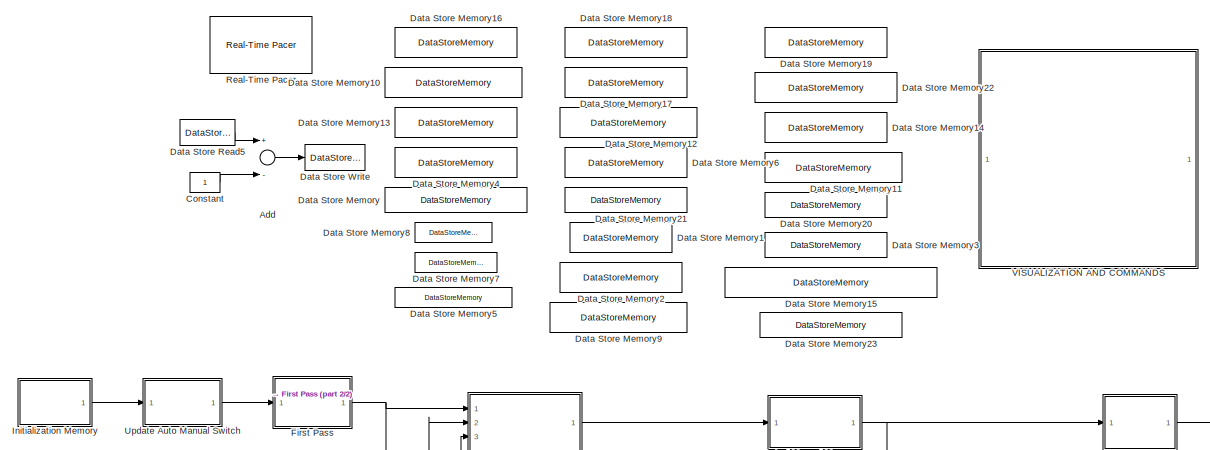
[diagram: root canvas - part 1/2, full width, top band]
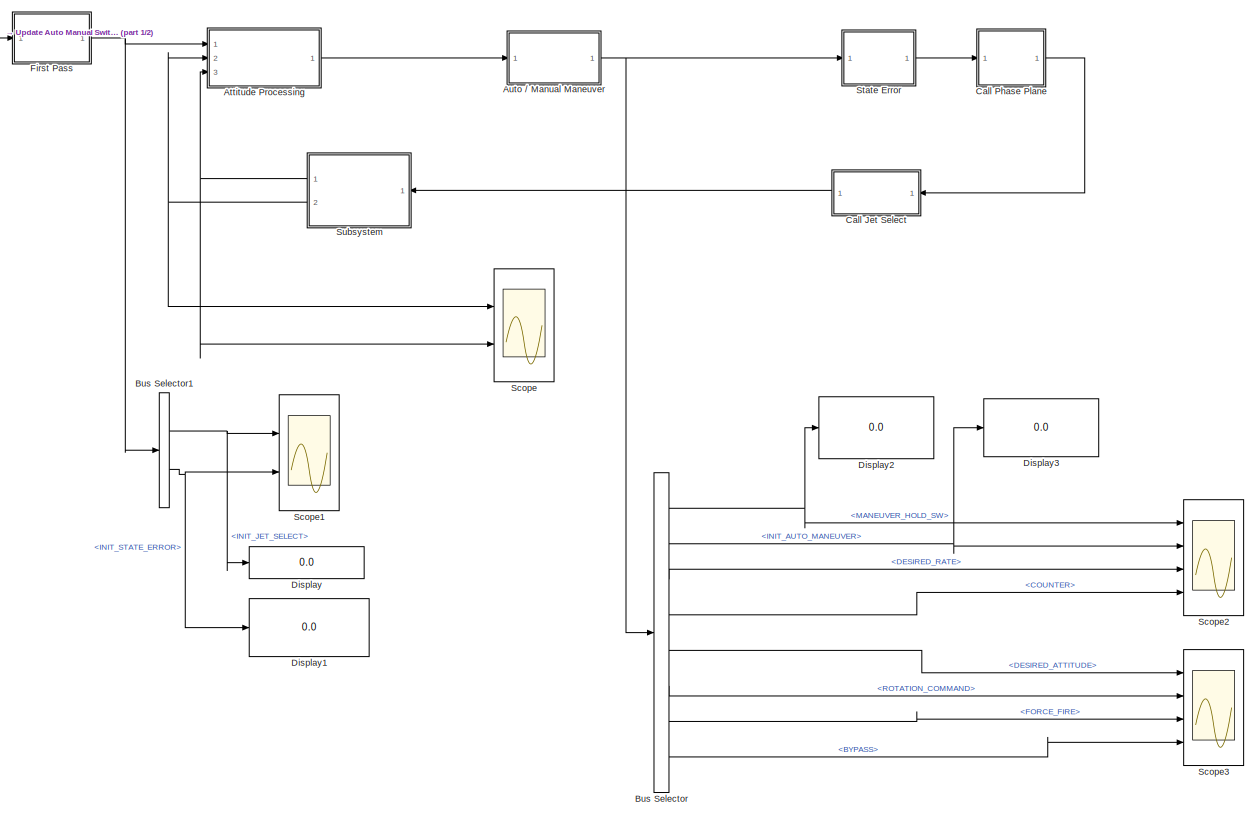
[diagram: root canvas - part 2/2, full width, middle band]
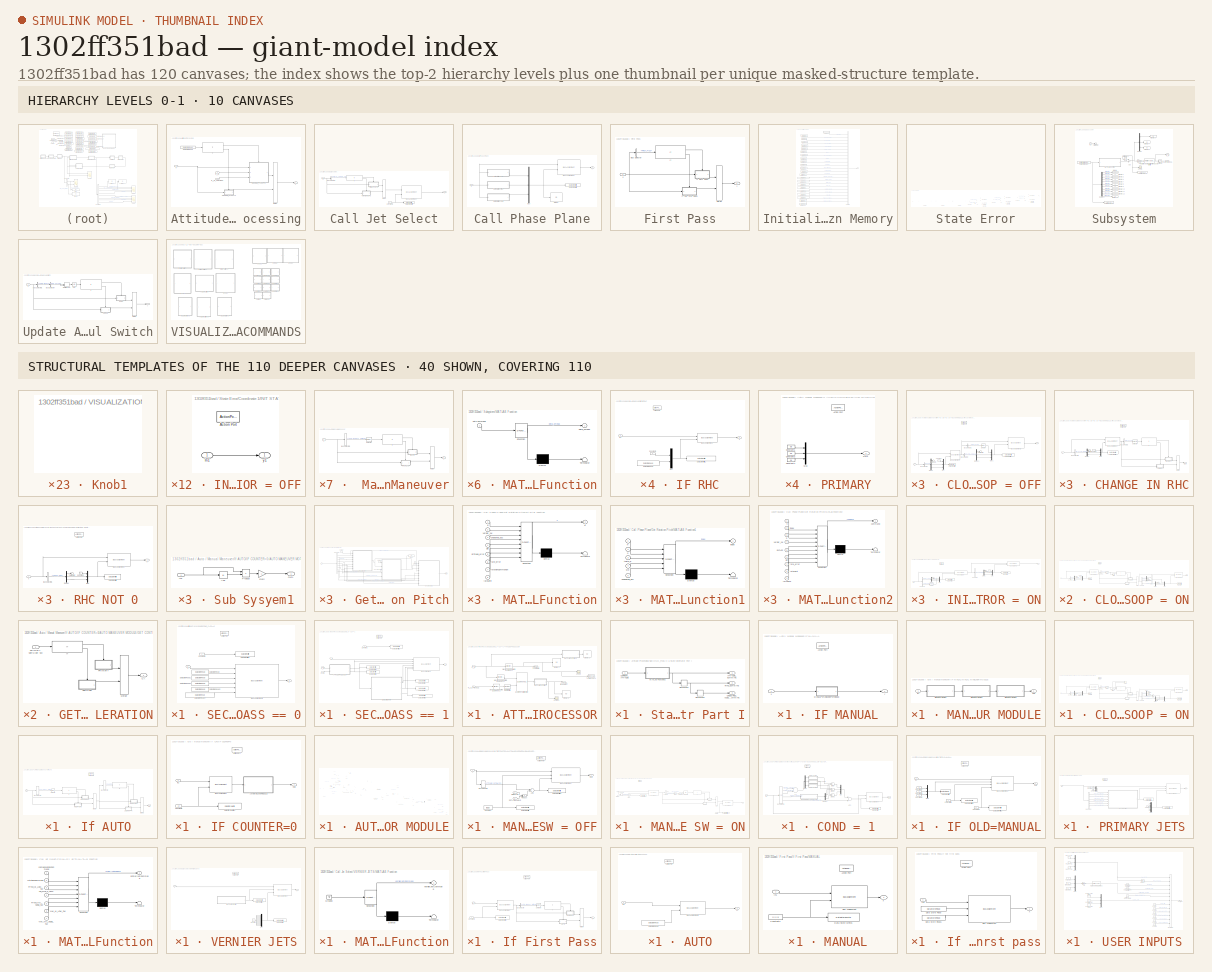
[diagram: thumbnail index - top-2 hierarchy levels (10 canvases) + 40 structural-template representatives of the remaining 110 canvases]
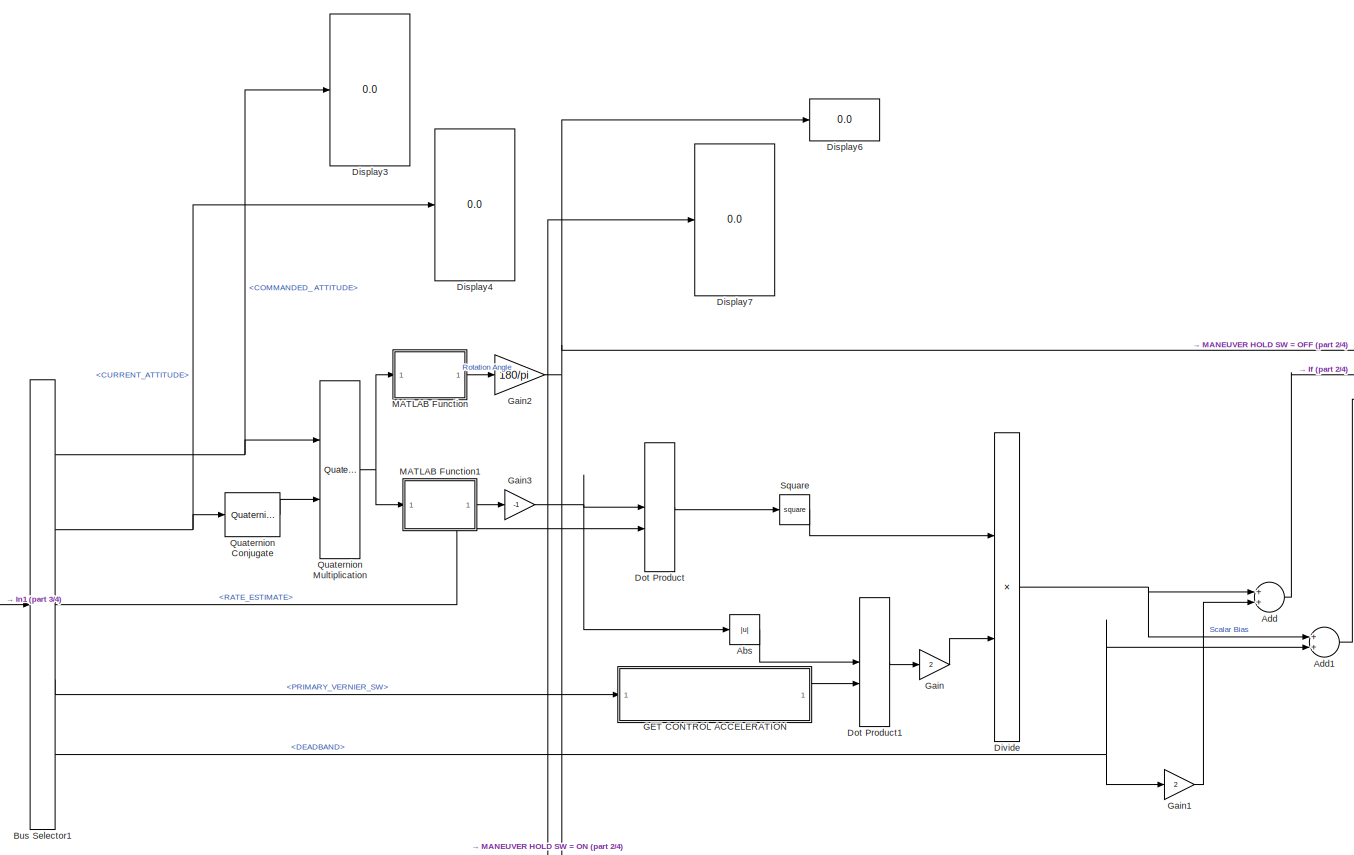
[diagram: Auto / Manual Maneuver/If AUTO/IF COUNTER=0/AUTO MANEUVER MODULE - part 1/4, top left region]
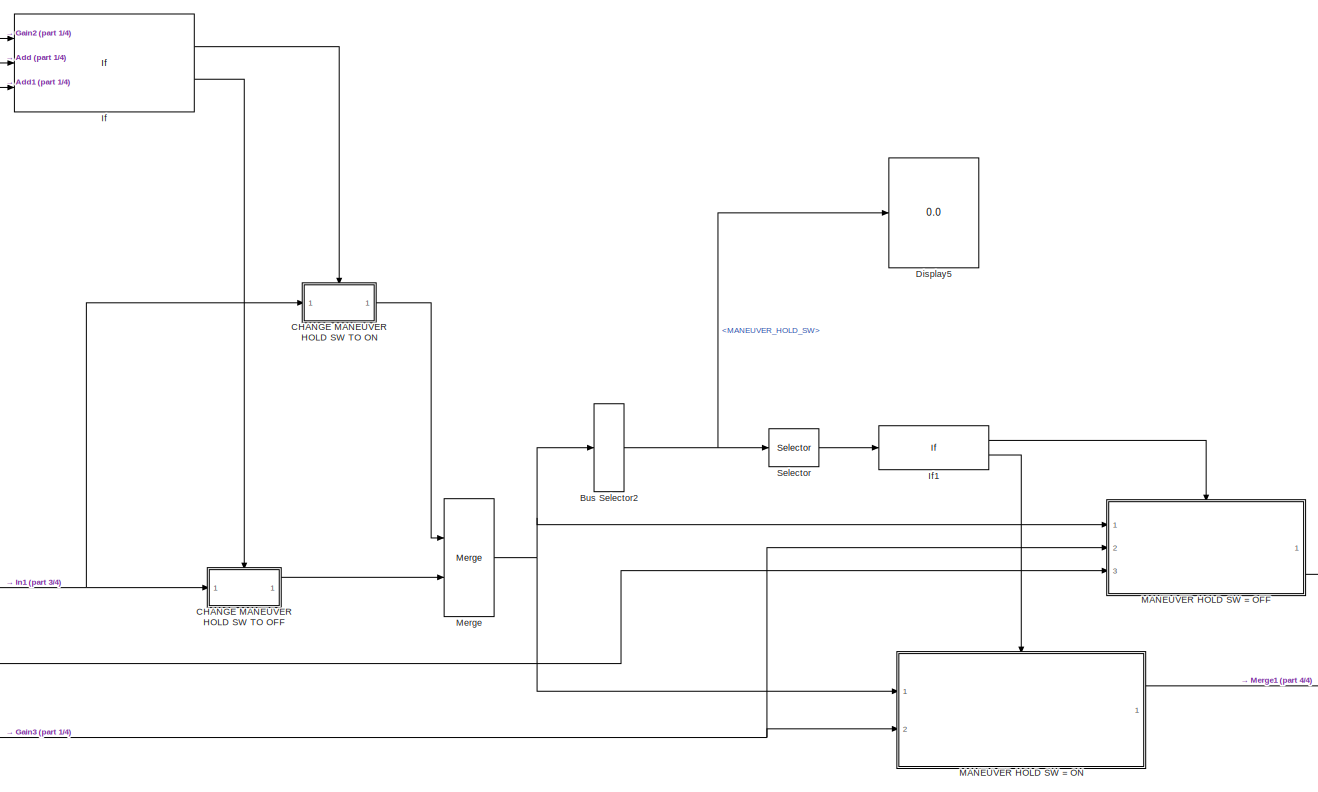
[diagram: Auto / Manual Maneuver/If AUTO/IF COUNTER=0/AUTO MANEUVER MODULE - part 2/4, central region]
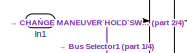
[diagram: Auto / Manual Maneuver/If AUTO/IF COUNTER=0/AUTO MANEUVER MODULE - part 3/4, middle left region]
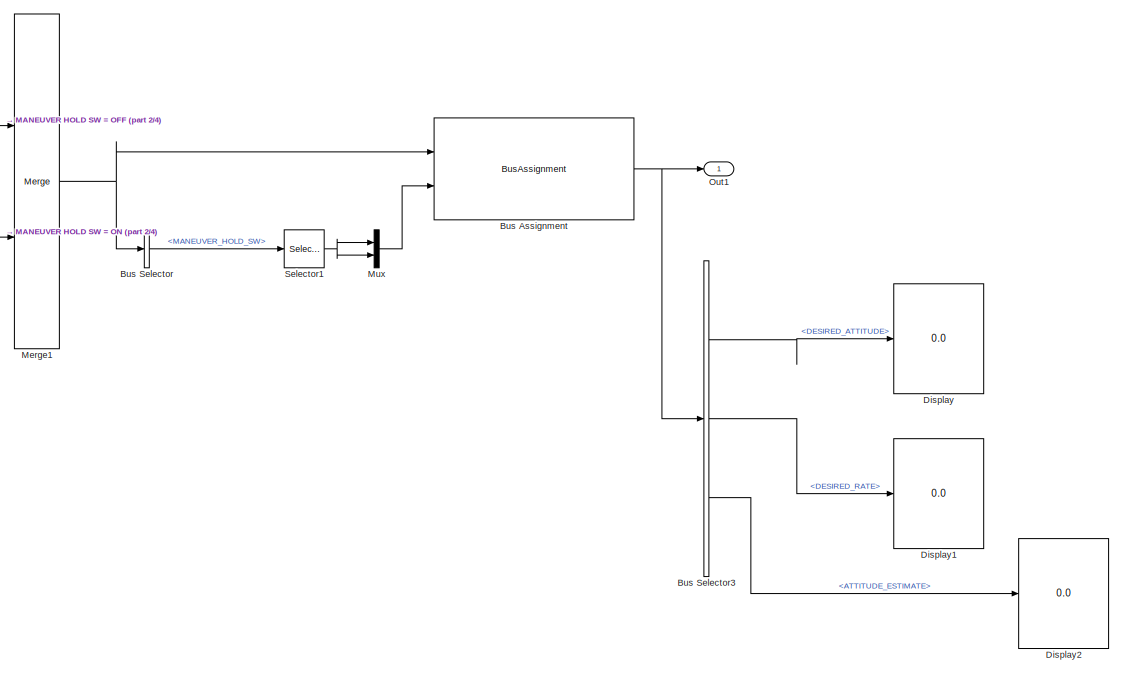
[diagram: Auto / Manual Maneuver/If AUTO/IF COUNTER=0/AUTO MANEUVER MODULE - part 4/4, bottom right region]
MODEL slx_1302ff351bad
KIND model
CONFIG AbsTol = auto
CONFIG EnableMultiTasking = off
CONFIG FixedStep = 0.08
CONFIG MaxStep = auto
CONFIG MinStep = auto
CONFIG RelTol = 1e-3
CONFIG SampleTimeConstraint = Unconstrained
CONFIG Solver = FixedStepAuto
CONFIG SolverName = FixedStepAuto
CONFIG StartTime = 0.0
CONFIG StopTime = 300
BLOCK [Sum] Add
  InputSameDT = off
  Inputs = +-
  OutDataTypeStr = Inherit: Inherit via internal rule
  Ports = [2, 1]
  SaturateOnIntegerOverflow = off
BLOCK [SubSystem] Attitude Processing
  Ports = [3, 1]
  Priority = 2
  RequestExecContextInheritance = off
  Variant = off
BLOCK [DataStoreRead] Attitude Processing/Data Store Read
  DataStoreName = SECOND_PASS
  Ports = [0, 1]
BLOCK [If] Attitude Processing/If
  IfExpression = u1 == 1
  Ports = [1, 2]
BLOCK [Merge] Attitude Processing/Merge
  Ports = [2, 1]
BLOCK [Inport] Attitude Processing/R_I_B
  IconDisplay = Port number
  Port = 3
BLOCK [Inport] Attitude Processing/R_I_B_PREVIOUS
  IconDisplay = Port number
  Port = 2
BLOCK [SubSystem] Attitude Processing/SECOND_PASS == 0
  Ports = [1, 1, 0, 0, 0, 0, 0, 1]
  RequestExecContextInheritance = off
  TreatAsAtomicUnit = on
  Variant = off
BLOCK [ActionPort] Attitude Processing/SECOND_PASS == 0/Action Port
  ActionType = else
BLOCK [BusAssignment] Attitude Processing/SECOND_PASS == 0/Bus Assignment1
  AssignedSignals = ATTITUDE_INCREMENT,CURRENT_ATTITUDE,ATTITUDE_ESTIMATE,RATE_ESTIMATE,UNDESIRED_ACCELERATION_ESTIMATE
  Ports = [6, 1]
BLOCK [Constant] Attitude Processing/SECOND_PASS == 0/Constant2
BLOCK [DataStoreRead] Attitude Processing/SECOND_PASS == 0/Data Store Read
  DataStoreName = ATTITUDE_INCREMENT
  Ports = [0, 1]
BLOCK [DataStoreRead] Attitude Processing/SECOND_PASS == 0/Data Store Read1
  DataStoreName = CURRENT_ATTITUDE
  Ports = [0, 1]
BLOCK [DataStoreRead] Attitude Processing/SECOND_PASS == 0/Data Store Read2
  DataStoreName = RATE_ESTIMATE
  Ports = [0, 1]
BLOCK [DataStoreRead] Attitude Processing/SECOND_PASS == 0/Data Store Read3
  DataStoreName = ATTITUDE_ESTIMATE
  Ports = [0, 1]
BLOCK [DataStoreRead] Attitude Processing/SECOND_PASS == 0/Data Store Read4
  DataStoreName = UNDESIRED_ACCELERATION_ESTIMATE
  Ports = [0, 1]
BLOCK [DataStoreWrite] Attitude Processing/SECOND_PASS == 0/Data Store Write1
  DataStoreName = SECOND_PASS
  Ports = [1]
BLOCK [Inport] Attitude Processing/SECOND_PASS == 0/x
  IconDisplay = Port number
BLOCK [Outport] Attitude Processing/SECOND_PASS == 0/y
  IconDisplay = Port number
BLOCK [SubSystem] Attitude Processing/SECOND_PASS == 1
  Ports = [3, 1, 0, 0, 0, 0, 0, 1]
  RequestExecContextInheritance = off
  TreatAsAtomicUnit = on
  Variant = off
BLOCK [SubSystem] Attitude Processing/SECOND_PASS == 1/ATTITUDE PROCESSOR
  Ports = [2, 2]
  RequestExecContextInheritance = off
  Variant = off
BLOCK [Outport] Attitude Processing/SECOND_PASS == 1/ATTITUDE PROCESSOR/ATTITUDE INCREMENT
  IconDisplay = Port number
  Port = 2
BLOCK [Outport] Attitude Processing/SECOND_PASS == 1/ATTITUDE PROCESSOR/CURRENT ATTITUDE
  IconDisplay = Port number
BLOCK [Reference] Attitude Processing/SECOND_PASS == 1/ATTITUDE PROCESSOR/Direction Cosine Matrix to Quaternions  REF=sharedtransform/Direction Cosine Matrix 
to Quaternions
  Ports = [1, 1]
  SourceBlock = sharedtransform/Direction Cosine Matrix \nto Quaternions
  SourceProductBaseCode = AE
  SourceProductName = Aerospace Blockset
  SourceType = DCM2Quaternion
BLOCK [Reference] Attitude Processing/SECOND_PASS == 1/ATTITUDE PROCESSOR/Direction Cosine Matrix to Quaternions1  REF=sharedtransform/Direction Cosine Matrix 
to Quaternions
  Ports = [1, 1]
  SourceBlock = sharedtransform/Direction Cosine Matrix \nto Quaternions
  SourceProductBaseCode = AE
  SourceProductName = Aerospace Blockset
  SourceType = DCM2Quaternion
BLOCK [Reference] Attitude Processing/SECOND_PASS == 1/ATTITUDE PROCESSOR/Direction Cosine Matrix to Quaternions2  REF=sharedtransform/Direction Cosine Matrix 
to Quaternions
  Ports = [1, 1]
  SourceBlock = sharedtransform/Direction Cosine Matrix \nto Quaternions
  SourceProductBaseCode = AE
  SourceProductName = Aerospace Blockset
  SourceType = DCM2Quaternion
BLOCK [Display] Attitude Processing/SECOND_PASS == 1/ATTITUDE PROCESSOR/Display1
  Decimation = 1
  Ports = [1]
BLOCK [Display] Attitude Processing/SECOND_PASS == 1/ATTITUDE PROCESSOR/Display2
  Decimation = 1
  Ports = [1]
BLOCK [Display] Attitude Processing/SECOND_PASS == 1/ATTITUDE PROCESSOR/Display3
  Decimation = 1
  Ports = [1]
BLOCK [SubSystem] Attitude Processing/SECOND_PASS == 1/ATTITUDE PROCESSOR/MATLAB Function2
  ErrorFcn = Stateflow.Translate.translate
  PermitHierarchicalResolution = ExplicitOnly
  Ports = [1, 1]
  RequestExecContextInheritance = off
  SFBlockType = MATLAB Function
  TreatAsAtomicUnit = on
  Variant = off
BLOCK [Demux] Attitude Processing/SECOND_PASS == 1/ATTITUDE PROCESSOR/MATLAB Function2/ Demux 
  Outputs = 1
  Ports = [1, 1]
BLOCK [S-Function] Attitude Processing/SECOND_PASS == 1/ATTITUDE PROCESSOR/MATLAB Function2/ SFunction 
  EnableBusSupport = on
  FunctionName = sf_sfun
  PortCounts = [1 2]
  Ports = [1, 2]
  SFcnIsStateOwnerBlock = off
  SFunctionDeploymentMode = off
  Tag = Stateflow S-Function spaceShuttleOriginal 7
BLOCK [Terminator] Attitude Processing/SECOND_PASS == 1/ATTITUDE PROCESSOR/MATLAB Function2/ Terminator 
BLOCK [Inport] Attitude Processing/SECOND_PASS == 1/ATTITUDE PROCESSOR/MATLAB Function2/u
  IconDisplay = Port number
BLOCK [Outport] Attitude Processing/SECOND_PASS == 1/ATTITUDE PROCESSOR/MATLAB Function2/x
  IconDisplay = Port number
BLOCK [SubSystem] Attitude Processing/SECOND_PASS == 1/ATTITUDE PROCESSOR/MATLAB Function3
  ErrorFcn = Stateflow.Translate.translate
  PermitHierarchicalResolution = ExplicitOnly
  Ports = [1, 1]
  RequestExecContextInheritance = off
  SFBlockType = MATLAB Function
  TreatAsAtomicUnit = on
  Variant = off
BLOCK [Demux] Attitude Processing/SECOND_PASS == 1/ATTITUDE PROCESSOR/MATLAB Function3/ Demux 
  Outputs = 1
  Ports = [1, 1]
BLOCK [S-Function] Attitude Processing/SECOND_PASS == 1/ATTITUDE PROCESSOR/MATLAB Function3/ SFunction 
  EnableBusSupport = on
  FunctionName = sf_sfun
  PortCounts = [1 2]
  Ports = [1, 2]
  SFcnIsStateOwnerBlock = off
  SFunctionDeploymentMode = off
  Tag = Stateflow S-Function spaceShuttleOriginal 8
BLOCK [Terminator] Attitude Processing/SECOND_PASS == 1/ATTITUDE PROCESSOR/MATLAB Function3/ Terminator 
BLOCK [Inport] Attitude Processing/SECOND_PASS == 1/ATTITUDE PROCESSOR/MATLAB Function3/u
  IconDisplay = Port number
BLOCK [Outport] Attitude Processing/SECOND_PASS == 1/ATTITUDE PROCESSOR/MATLAB Function3/x
  IconDisplay = Port number
BLOCK [Reference] Attitude Processing/SECOND_PASS == 1/ATTITUDE PROCESSOR/Quaternion Conjugate  REF=aerolibutil/Quaternion
Conjugate
  Ports = [1, 1]
  SourceBlock = aerolibutil/Quaternion\nConjugate
  SourceProductBaseCode = AE
  SourceProductName = Aerospace Blockset
  SourceType = Quaternion Conjugate
BLOCK [Reference] Attitude Processing/SECOND_PASS == 1/ATTITUDE PROCESSOR/Quaternion Multiplication  REF=aerolibutil/Quaternion
Multiplication
  Ports = [2, 1]
  SourceBlock = aerolibutil/Quaternion\nMultiplication
  SourceProductBaseCode = AE
  SourceProductName = Aerospace Blockset
  SourceType = Quaternion Multiplication
BLOCK [Inport] Attitude Processing/SECOND_PASS == 1/ATTITUDE PROCESSOR/R_I_B
  IconDisplay = Port number
BLOCK [Inport] Attitude Processing/SECOND_PASS == 1/ATTITUDE PROCESSOR/R_I_B_PREVIOUS
  IconDisplay = Port number
  Port = 2
BLOCK [Scope] Attitude Processing/SECOND_PASS == 1/ATTITUDE PROCESSOR/Scope
  NumInputPorts = 1
  Ports = [1]
  ScopeSpecificationString = Simulink.scopes.TimeScopeBlockCfg('CurrentConfiguration', extmgr.ConfigurationSet(extmgr.Configuration('Core','General UI',true),extmgr.Configuration('Core','Source UI',true),extmgr.Configuration('Sources','WiredSimulink',true,'DataLoggingVariableName','ScopeData1'),extmgr.Configuration('Visuals','Time Domain',true,'SerializedDisplays',{struct('MinYLimReal','-0.12545','MaxYLimReal','1.12399','YLab...<+1587ch>
BLOCK [Scope] Attitude Processing/SECOND_PASS == 1/ATTITUDE PROCESSOR/Scope1
  NumInputPorts = 1
  Ports = [1]
  ScopeSpecificationString = Simulink.scopes.TimeScopeBlockCfg('CurrentConfiguration', extmgr.ConfigurationSet(extmgr.Configuration('Core','General UI',true),extmgr.Configuration('Core','Source UI',true),extmgr.Configuration('Sources','WiredSimulink',true,'DataLoggingVariableName','ScopeData3'),extmgr.Configuration('Visuals','Time Domain',true,'SerializedDisplays',{struct('MinYLimReal','-0.00203','MaxYLimReal','0.00203','YLab...<+1473ch>
BLOCK [ToWorkspace] Attitude Processing/SECOND_PASS == 1/ATTITUDE PROCESSOR/To Workspace
  FixptAsFi = on
  MaxDataPoints = inf
  Ports = [1]
  SampleTime = -1
  Save2DSignal = 3-D array (concatenate along third dimension)
  SaveFormat = Timeseries
  VariableName = test1
BLOCK [ActionPort] Attitude Processing/SECOND_PASS == 1/Action Port
  ActionType = then
BLOCK [BusAssignment] Attitude Processing/SECOND_PASS == 1/Bus Assignment
  AssignedSignals = ATTITUDE_INCREMENT,CURRENT_ATTITUDE,ATTITUDE_ESTIMATE,RATE_ESTIMATE,UNDESIRED_ACCELERATION_ESTIMATE
  Ports = [6, 1]
BLOCK [Constant] Attitude Processing/SECOND_PASS == 1/Constant2
  Value = 0
BLOCK [DataStoreWrite] Attitude Processing/SECOND_PASS == 1/Data Store Write1
  DataStoreName = SECOND_PASS
  Ports = [1]
BLOCK [DataStoreWrite] Attitude Processing/SECOND_PASS == 1/Data Store Write2
  DataStoreName = CURRENT_ATTITUDE
  Ports = [1]
BLOCK [DataStoreWrite] Attitude Processing/SECOND_PASS == 1/Data Store Write3
  DataStoreName = ATTITUDE_INCREMENT
  Ports = [1]
BLOCK [DataStoreWrite] Attitude Processing/SECOND_PASS == 1/Data Store Write4
  DataStoreName = ATTITUDE_ESTIMATE
  Ports = [1]
BLOCK [DataStoreWrite] Attitude Processing/SECOND_PASS == 1/Data Store Write5
  DataStoreName = RATE_ESTIMATE
  Ports = [1]
BLOCK [DataStoreWrite] Attitude Processing/SECOND_PASS == 1/Data Store Write6
  DataStoreName = UNDESIRED_ACCELERATION_ESTIMATE
  Ports = [1]
BLOCK [Inport] Attitude Processing/SECOND_PASS == 1/R_I_B
  IconDisplay = Port number
  Port = 2
BLOCK [Inport] Attitude Processing/SECOND_PASS == 1/R_I_B1
  IconDisplay = Port number
  Port = 3
BLOCK [SubSystem] Attitude Processing/SECOND_PASS == 1/State Estimator Part I
  Ports = [1, 3]
  RequestExecContextInheritance = off
  Variant = off
BLOCK [Outport] Attitude Processing/SECOND_PASS == 1/State Estimator Part I/ATTITUDE_ESTIMATE
  IconDisplay = Port number
BLOCK [Inport] Attitude Processing/SECOND_PASS == 1/State Estimator Part I/CURRENT_ATTITUDE
  IconDisplay = Port number
BLOCK [Derivative] Attitude Processing/SECOND_PASS == 1/State Estimator Part I/Derivative1
BLOCK [Derivative] Attitude Processing/SECOND_PASS == 1/State Estimator Part I/Derivative2
BLOCK [SubSystem] Attitude Processing/SECOND_PASS == 1/State Estimator Part I/MATLAB Function2
  ErrorFcn = Stateflow.Translate.translate
  PermitHierarchicalResolution = ExplicitOnly
  Ports = [1, 1]
  RequestExecContextInheritance = off
  SFBlockType = MATLAB Function
  TreatAsAtomicUnit = on
  Variant = off
BLOCK [Demux] Attitude Processing/SECOND_PASS == 1/State Estimator Part I/MATLAB Function2/ Demux 
  Outputs = 1
  Ports = [1, 1]
BLOCK [S-Function] Attitude Processing/SECOND_PASS == 1/State Estimator Part I/MATLAB Function2/ SFunction 
  EnableBusSupport = on
  FunctionName = sf_sfun
  PortCounts = [1 2]
  Ports = [1, 2]
  SFcnIsStateOwnerBlock = off
  SFunctionDeploymentMode = off
  Tag = Stateflow S-Function spaceShuttleOriginal 17
BLOCK [Terminator] Attitude Processing/SECOND_PASS == 1/State Estimator Part I/MATLAB Function2/ Terminator 
BLOCK [Inport] Attitude Processing/SECOND_PASS == 1/State Estimator Part I/MATLAB Function2/u
  IconDisplay = Port number
BLOCK [Outport] Attitude Processing/SECOND_PASS == 1/State Estimator Part I/MATLAB Function2/x
  IconDisplay = Port number
BLOCK [Outport] Attitude Processing/SECOND_PASS == 1/State Estimator Part I/RATE_ESTIMATE
  IconDisplay = Port number
  Port = 2
BLOCK [Outport] Attitude Processing/SECOND_PASS == 1/State Estimator Part I/UNDESIRED_ACCELERATION_ESTIMATE
  IconDisplay = Port number
  Port = 3
BLOCK [Inport] Attitude Processing/SECOND_PASS == 1/x
  IconDisplay = Port number
BLOCK [Outport] Attitude Processing/SECOND_PASS == 1/y
  IconDisplay = Port number
BLOCK [Inport] Attitude Processing/x
  IconDisplay = Port number
BLOCK [Outport] Attitude Processing/y
  IconDisplay = Port number
BLOCK [SubSystem] Auto // Manual Maneuver
  Ports = [1, 1]
  Priority = 2
  RequestExecContextInheritance = off
  Variant = off
BLOCK [BusSelector] Auto // Manual Maneuver/Bus Selector1
  OutputAsBus = off
  OutputSignals = AUTO_MANUAL_SWITCH
  Ports = [1, 1]
BLOCK [SubSystem] Auto // Manual Maneuver/IF MANUAL
  Ports = [1, 1, 0, 0, 0, 0, 0, 1]
  RequestExecContextInheritance = off
  TreatAsAtomicUnit = on
  Variant = off
BLOCK [ActionPort] Auto // Manual Maneuver/IF MANUAL/Action Port
  ActionType = else
BLOCK [SubSystem] Auto // Manual Maneuver/IF MANUAL/MANUAL MANEUVER MODULE
  Ports = [1, 1]
  RequestExecContextInheritance = off
  Variant = off
BLOCK [SubSystem] Auto // Manual Maneuver/IF MANUAL/MANUAL MANEUVER MODULE/Affect Coordinate 1
  Ports = [1, 1]
  RequestExecContextInheritance = off
  Variant = off
BLOCK [BusSelector] Auto // Manual Maneuver/IF MANUAL/MANUAL MANEUVER MODULE/Affect Coordinate 1/Bus Selector
  OutputAsBus = off
  OutputSignals = USER_INPUTS.CLOSED_LOOP
  Ports = [1, 1]
BLOCK [SubSystem] Auto // Manual Maneuver/IF MANUAL/MANUAL MANEUVER MODULE/Affect Coordinate 1/CLOSED LOOP = OFF
  Ports = [1, 1, 0, 0, 0, 0, 0, 1]
  RequestExecContextInheritance = off
  TreatAsAtomicUnit = on
  Variant = off
BLOCK [ActionPort] Auto // Manual Maneuver/IF MANUAL/MANUAL MANEUVER MODULE/Affect Coordinate 1/CLOSED LOOP = OFF/Action Port
  ActionType = else
BLOCK [BusAssignment] Auto // Manual Maneuver/IF MANUAL/MANUAL MANEUVER MODULE/Affect Coordinate 1/CLOSED LOOP = OFF/Bus Assignment
  AssignedSignals = BYPASS
  Ports = [2, 1]
BLOCK [BusAssignment] Auto // Manual Maneuver/IF MANUAL/MANUAL MANEUVER MODULE/Affect Coordinate 1/CLOSED LOOP = OFF/Bus Assignment1
  AssignedSignals = ROTATION_COMMAND
  Ports = [2, 1]
BLOCK [BusSelector] Auto // Manual Maneuver/IF MANUAL/MANUAL MANEUVER MODULE/Affect Coordinate 1/CLOSED LOOP = OFF/Bus Selector
  OutputAsBus = off
  OutputSignals = BYPASS
  Ports = [1, 1]
BLOCK [BusSelector] Auto // Manual Maneuver/IF MANUAL/MANUAL MANEUVER MODULE/Affect Coordinate 1/CLOSED LOOP = OFF/Bus Selector1
  OutputAsBus = off
  OutputSignals = USER_INPUTS.RHC_STATE
  Ports = [1, 1]
BLOCK [BusSelector] Auto // Manual Maneuver/IF MANUAL/MANUAL MANEUVER MODULE/Affect Coordinate 1/CLOSED LOOP = OFF/Bus Selector2
  OutputAsBus = off
  OutputSignals = ROTATION_COMMAND
  Ports = [1, 1]
BLOCK [Constant] Auto // Manual Maneuver/IF MANUAL/MANUAL MANEUVER MODULE/Affect Coordinate 1/CLOSED LOOP = OFF/Constant
BLOCK [DataStoreWrite] Auto // Manual Maneuver/IF MANUAL/MANUAL MANEUVER MODULE/Affect Coordinate 1/CLOSED LOOP = OFF/Data Store Write
  DataStoreName = BYPASS
  Ports = [1]
BLOCK [DataStoreWrite] Auto // Manual Maneuver/IF MANUAL/MANUAL MANEUVER MODULE/Affect Coordinate 1/CLOSED LOOP = OFF/Data Store Write1
  DataStoreName = ROTATION_COMMAND
  Ports = [1]
BLOCK [Demux] Auto // Manual Maneuver/IF MANUAL/MANUAL MANEUVER MODULE/Affect Coordinate 1/CLOSED LOOP = OFF/Demux
  DisplayOption = bar
  Outputs = 3
  Ports = [1, 3]
BLOCK [Demux] Auto // Manual Maneuver/IF MANUAL/MANUAL MANEUVER MODULE/Affect Coordinate 1/CLOSED LOOP = OFF/Demux1
  DisplayOption = bar
  Outputs = 3
  Ports = [1, 3]
BLOCK [Mux] Auto // Manual Maneuver/IF MANUAL/MANUAL MANEUVER MODULE/Affect Coordinate 1/CLOSED LOOP = OFF/Mux
  DisplayOption = bar
  Inputs = 3
  Ports = [3, 1]
BLOCK [Mux] Auto // Manual Maneuver/IF MANUAL/MANUAL MANEUVER MODULE/Affect Coordinate 1/CLOSED LOOP = OFF/Mux1
  DisplayOption = bar
  Inputs = 3
  Ports = [3, 1]
BLOCK [Selector] Auto // Manual Maneuver/IF MANUAL/MANUAL MANEUVER MODULE/Affect Coordinate 1/CLOSED LOOP = OFF/Selector
  IndexOptions = Index vector (dialog)
  Indices = [1]
  InputPortWidth = 3
  OutputSizes = 1
  Ports = [1, 1]
BLOCK [Terminator] Auto // Manual Maneuver/IF MANUAL/MANUAL MANEUVER MODULE/Affect Coordinate 1/CLOSED LOOP = OFF/Terminator
BLOCK [Terminator] Auto // Manual Maneuver/IF MANUAL/MANUAL MANEUVER MODULE/Affect Coordinate 1/CLOSED LOOP = OFF/Terminator1
BLOCK [Inport] Auto // Manual Maneuver/IF MANUAL/MANUAL MANEUVER MODULE/Affect Coordinate 1/CLOSED LOOP = OFF/x
  IconDisplay = Port number
BLOCK [Outport] Auto // Manual Maneuver/IF MANUAL/MANUAL MANEUVER MODULE/Affect Coordinate 1/CLOSED LOOP = OFF/y
  IconDisplay = Port number
BLOCK [SubSystem] Auto // Manual Maneuver/IF MANUAL/MANUAL MANEUVER MODULE/Affect Coordinate 1/CLOSED LOOP = ON
  Ports = [1, 1, 0, 0, 0, 0, 0, 1]
  RequestExecContextInheritance = off
  TreatAsAtomicUnit = on
  Variant = off
BLOCK [ActionPort] Auto // Manual Maneuver/IF MANUAL/MANUAL MANEUVER MODULE/Affect Coordinate 1/CLOSED LOOP = ON/Action Port
  ActionType = then
BLOCK [BusAssignment] Auto // Manual Maneuver/IF MANUAL/MANUAL MANEUVER MODULE/Affect Coordinate 1/CLOSED LOOP = ON/Bus Assignment
  AssignedSignals = BYPASS
  Ports = [2, 1]
BLOCK [BusAssignment] Auto // Manual Maneuver/IF MANUAL/MANUAL MANEUVER MODULE/Affect Coordinate 1/CLOSED LOOP = ON/Bus Assignment2
  AssignedSignals = FORCE_FIRE
  Ports = [2, 1]
BLOCK [BusSelector] Auto // Manual Maneuver/IF MANUAL/MANUAL MANEUVER MODULE/Affect Coordinate 1/CLOSED LOOP = ON/Bus Selector1
  OutputAsBus = off
  OutputSignals = BYPASS
  Ports = [1, 1]
BLOCK [BusSelector] Auto // Manual Maneuver/IF MANUAL/MANUAL MANEUVER MODULE/Affect Coordinate 1/CLOSED LOOP = ON/Bus Selector2
  OutputAsBus = off
  OutputSignals = USER_INPUTS.RHC_STATE
  Ports = [1, 1]
BLOCK [BusSelector] Auto // Manual Maneuver/IF MANUAL/MANUAL MANEUVER MODULE/Affect Coordinate 1/CLOSED LOOP = ON/Bus Selector3
  OutputAsBus = off
  OutputSignals = USER_INPUTS.RHC_STATE,USER_INPUTS.MANEUVER_RATE,DESIRED_RATE
  Ports = [1, 3]
BLOCK [SubSystem] Auto // Manual Maneuver/IF MANUAL/MANUAL MANEUVER MODULE/Affect Coordinate 1/CLOSED LOOP = ON/CHANGE IN RHC
  Ports = [1, 1, 0, 0, 0, 0, 0, 1]
  RequestExecContextInheritance = off
  TreatAsAtomicUnit = on
  Variant = off
BLOCK [ActionPort] Auto // Manual Maneuver/IF MANUAL/MANUAL MANEUVER MODULE/Affect Coordinate 1/CLOSED LOOP = ON/CHANGE IN RHC/Action Port
  ActionType = then
BLOCK [BusAssignment] Auto // Manual Maneuver/IF MANUAL/MANUAL MANEUVER MODULE/Affect Coordinate 1/CLOSED LOOP = ON/CHANGE IN RHC/Bus Assignment
  AssignedSignals = BYPASS
  Ports = [2, 1]
BLOCK [BusSelector] Auto // Manual Maneuver/IF MANUAL/MANUAL MANEUVER MODULE/Affect Coordinate 1/CLOSED LOOP = ON/CHANGE IN RHC/Bus Selector1
  OutputAsBus = off
  OutputSignals = INIT_STATE_ERROR
  Ports = [1, 1]
BLOCK [BusSelector] Auto // Manual Maneuver/IF MANUAL/MANUAL MANEUVER MODULE/Affect Coordinate 1/CLOSED LOOP = ON/CHANGE IN RHC/Bus Selector2
  OutputAsBus = off
  OutputSignals = USER_INPUTS.RHC_STATE
  Ports = [1, 1]
BLOCK [Constant] Auto // Manual Maneuver/IF MANUAL/MANUAL MANEUVER MODULE/Affect Coordinate 1/CLOSED LOOP = ON/CHANGE IN RHC/Constant
BLOCK [DataStoreWrite] Auto // Manual Maneuver/IF MANUAL/MANUAL MANEUVER MODULE/Affect Coordinate 1/CLOSED LOOP = ON/CHANGE IN RHC/Data Store Write
  DataStoreName = INIT_STATE_ERROR
  Ports = [1]
BLOCK [Demux] Auto // Manual Maneuver/IF MANUAL/MANUAL MANEUVER MODULE/Affect Coordinate 1/CLOSED LOOP = ON/CHANGE IN RHC/Demux
  DisplayOption = bar
  Outputs = 3
  Ports = [1, 3]
BLOCK [If] Auto // Manual Maneuver/IF MANUAL/MANUAL MANEUVER MODULE/Affect Coordinate 1/CLOSED LOOP = ON/CHANGE IN RHC/If
  IfExpression = u1 ~= 0
  Ports = [1, 2]
BLOCK [Merge] Auto // Manual Maneuver/IF MANUAL/MANUAL MANEUVER MODULE/Affect Coordinate 1/CLOSED LOOP = ON/CHANGE IN RHC/Merge
  Ports = [2, 1]
BLOCK [Mux] Auto // Manual Maneuver/IF MANUAL/MANUAL MANEUVER MODULE/Affect Coordinate 1/CLOSED LOOP = ON/CHANGE IN RHC/Mux
  DisplayOption = bar
  Inputs = 3
  Ports = [3, 1]
BLOCK [Outport] Auto // Manual Maneuver/IF MANUAL/MANUAL MANEUVER MODULE/Affect Coordinate 1/CLOSED LOOP = ON/CHANGE IN RHC/Out1
  IconDisplay = Port number
BLOCK [SubSystem] Auto // Manual Maneuver/IF MANUAL/MANUAL MANEUVER MODULE/Affect Coordinate 1/CLOSED LOOP = ON/CHANGE IN RHC/RHC 0
  Ports = [1, 1, 0, 0, 0, 0, 0, 1]
  RequestExecContextInheritance = off
  TreatAsAtomicUnit = on
  Variant = off
BLOCK [ActionPort] Auto // Manual Maneuver/IF MANUAL/MANUAL MANEUVER MODULE/Affect Coordinate 1/CLOSED LOOP = ON/CHANGE IN RHC/RHC 0/Action Port
  ActionType = else
BLOCK [Inport] Auto // Manual Maneuver/IF MANUAL/MANUAL MANEUVER MODULE/Affect Coordinate 1/CLOSED LOOP = ON/CHANGE IN RHC/RHC 0/x
  IconDisplay = Port number
BLOCK [Outport] Auto // Manual Maneuver/IF MANUAL/MANUAL MANEUVER MODULE/Affect Coordinate 1/CLOSED LOOP = ON/CHANGE IN RHC/RHC 0/y
  IconDisplay = Port number
BLOCK [SubSystem] Auto // Manual Maneuver/IF MANUAL/MANUAL MANEUVER MODULE/Affect Coordinate 1/CLOSED LOOP = ON/CHANGE IN RHC/RHC NOT 0
  Ports = [1, 1, 0, 0, 0, 0, 0, 1]
  RequestExecContextInheritance = off
  TreatAsAtomicUnit = on
  Variant = off
BLOCK [ActionPort] Auto // Manual Maneuver/IF MANUAL/MANUAL MANEUVER MODULE/Affect Coordinate 1/CLOSED LOOP = ON/CHANGE IN RHC/RHC NOT 0/Action Port
  ActionType = then
BLOCK [BusAssignment] Auto // Manual Maneuver/IF MANUAL/MANUAL MANEUVER MODULE/Affect Coordinate 1/CLOSED LOOP = ON/CHANGE IN RHC/RHC NOT 0/Bus Assignment
  AssignedSignals = FORCE_FIRE
  Ports = [2, 1]
BLOCK [BusSelector] Auto // Manual Maneuver/IF MANUAL/MANUAL MANEUVER MODULE/Affect Coordinate 1/CLOSED LOOP = ON/CHANGE IN RHC/RHC NOT 0/Bus Selector1
  OutputAsBus = off
  OutputSignals = FORCE_FIRE
  Ports = [1, 1]
BLOCK [Constant] Auto // Manual Maneuver/IF MANUAL/MANUAL MANEUVER MODULE/Affect Coordinate 1/CLOSED LOOP = ON/CHANGE IN RHC/RHC NOT 0/Constant
BLOCK [DataStoreWrite] Auto // Manual Maneuver/IF MANUAL/MANUAL MANEUVER MODULE/Affect Coordinate 1/CLOSED LOOP = ON/CHANGE IN RHC/RHC NOT 0/Data Store Write
  DataStoreName = FORCE_FIRE
  Ports = [1]
BLOCK [Demux] Auto // Manual Maneuver/IF MANUAL/MANUAL MANEUVER MODULE/Affect Coordinate 1/CLOSED LOOP = ON/CHANGE IN RHC/RHC NOT 0/Demux
  DisplayOption = bar
  Outputs = 3
  Ports = [1, 3]
BLOCK [Mux] Auto // Manual Maneuver/IF MANUAL/MANUAL MANEUVER MODULE/Affect Coordinate 1/CLOSED LOOP = ON/CHANGE IN RHC/RHC NOT 0/Mux
  DisplayOption = bar
  Inputs = 3
  Ports = [3, 1]
BLOCK [Terminator] Auto // Manual Maneuver/IF MANUAL/MANUAL MANEUVER MODULE/Affect Coordinate 1/CLOSED LOOP = ON/CHANGE IN RHC/RHC NOT 0/Terminator
BLOCK [Inport] Auto // Manual Maneuver/IF MANUAL/MANUAL MANEUVER MODULE/Affect Coordinate 1/CLOSED LOOP = ON/CHANGE IN RHC/RHC NOT 0/x
  IconDisplay = Port number
BLOCK [Outport] Auto // Manual Maneuver/IF MANUAL/MANUAL MANEUVER MODULE/Affect Coordinate 1/CLOSED LOOP = ON/CHANGE IN RHC/RHC NOT 0/y
  IconDisplay = Port number
BLOCK [Selector] Auto // Manual Maneuver/IF MANUAL/MANUAL MANEUVER MODULE/Affect Coordinate 1/CLOSED LOOP = ON/CHANGE IN RHC/Selector
  IndexOptions = Index vector (dialog)
  Indices = [1]
  InputPortWidth = 3
  OutputSizes = 1
  Ports = [1, 1]
BLOCK [Terminator] Auto // Manual Maneuver/IF MANUAL/MANUAL MANEUVER MODULE/Affect Coordinate 1/CLOSED LOOP = ON/CHANGE IN RHC/Terminator
BLOCK [Inport] Auto // Manual Maneuver/IF MANUAL/MANUAL MANEUVER MODULE/Affect Coordinate 1/CLOSED LOOP = ON/CHANGE IN RHC/x
  IconDisplay = Port number
BLOCK [Constant] Auto // Manual Maneuver/IF MANUAL/MANUAL MANEUVER MODULE/Affect Coordinate 1/CLOSED LOOP = ON/Constant
  Value = 0
BLOCK [DataStoreWrite] Auto // Manual Maneuver/IF MANUAL/MANUAL MANEUVER MODULE/Affect Coordinate 1/CLOSED LOOP = ON/Data Store Write
  DataStoreName = BYPASS
  Ports = [1]
BLOCK [DataStoreWrite] Auto // Manual Maneuver/IF MANUAL/MANUAL MANEUVER MODULE/Affect Coordinate 1/CLOSED LOOP = ON/Data Store Write1
  DataStoreName = FORCE_FIRE
  Ports = [1]
BLOCK [Demux] Auto // Manual Maneuver/IF MANUAL/MANUAL MANEUVER MODULE/Affect Coordinate 1/CLOSED LOOP = ON/Demux
  DisplayOption = bar
  Outputs = 3
  Ports = [1, 3]
BLOCK [Demux] Auto // Manual Maneuver/IF MANUAL/MANUAL MANEUVER MODULE/Affect Coordinate 1/CLOSED LOOP = ON/Demux1
  DisplayOption = bar
  Outputs = 3
  Ports = [1, 3]
BLOCK [Demux] Auto // Manual Maneuver/IF MANUAL/MANUAL MANEUVER MODULE/Affect Coordinate 1/CLOSED LOOP = ON/Demux2
  DisplayOption = bar
  Outputs = 3
  Ports = [1, 3]
BLOCK [If] Auto // Manual Maneuver/IF MANUAL/MANUAL MANEUVER MODULE/Affect Coordinate 1/CLOSED LOOP = ON/If
  IfExpression = u1 ~= u2
  NumInputs = 2
  Ports = [2, 2]
BLOCK [Merge] Auto // Manual Maneuver/IF MANUAL/MANUAL MANEUVER MODULE/Affect Coordinate 1/CLOSED LOOP = ON/Merge
  Ports = [2, 1]
BLOCK [Mux] Auto // Manual Maneuver/IF MANUAL/MANUAL MANEUVER MODULE/Affect Coordinate 1/CLOSED LOOP = ON/Mux
  DisplayOption = bar
  Inputs = 3
  Ports = [3, 1]
BLOCK [Mux] Auto // Manual Maneuver/IF MANUAL/MANUAL MANEUVER MODULE/Affect Coordinate 1/CLOSED LOOP = ON/Mux1
  DisplayOption = bar
  Inputs = 3
  Ports = [3, 1]
BLOCK [Outport] Auto // Manual Maneuver/IF MANUAL/MANUAL MANEUVER MODULE/Affect Coordinate 1/CLOSED LOOP = ON/Out2
  IconDisplay = Port number
BLOCK [Product] Auto // Manual Maneuver/IF MANUAL/MANUAL MANEUVER MODULE/Affect Coordinate 1/CLOSED LOOP = ON/Product
  InputSameDT = off
  OutDataTypeStr = Inherit: Inherit via internal rule
  Ports = [2, 1]
  RndMeth = Floor
  SaturateOnIntegerOverflow = off
BLOCK [SubSystem] Auto // Manual Maneuver/IF MANUAL/MANUAL MANEUVER MODULE/Affect Coordinate 1/CLOSED LOOP = ON/SAME RHC
  Ports = [1, 1, 0, 0, 0, 0, 0, 1]
  RequestExecContextInheritance = off
  TreatAsAtomicUnit = on
  Variant = off
BLOCK [ActionPort] Auto // Manual Maneuver/IF MANUAL/MANUAL MANEUVER MODULE/Affect Coordinate 1/CLOSED LOOP = ON/SAME RHC/Action Port
  ActionType = else
BLOCK [Inport] Auto // Manual Maneuver/IF MANUAL/MANUAL MANEUVER MODULE/Affect Coordinate 1/CLOSED LOOP = ON/SAME RHC/x
  IconDisplay = Port number
BLOCK [Outport] Auto // Manual Maneuver/IF MANUAL/MANUAL MANEUVER MODULE/Affect Coordinate 1/CLOSED LOOP = ON/SAME RHC/y
  IconDisplay = Port number
BLOCK [Selector] Auto // Manual Maneuver/IF MANUAL/MANUAL MANEUVER MODULE/Affect Coordinate 1/CLOSED LOOP = ON/Selector
  IndexOptions = Index vector (dialog)
  Indices = [1]
  InputPortWidth = 3
  OutputSizes = 1
  Ports = [1, 1]
BLOCK [Terminator] Auto // Manual Maneuver/IF MANUAL/MANUAL MANEUVER MODULE/Affect Coordinate 1/CLOSED LOOP = ON/Terminator
BLOCK [Terminator] Auto // Manual Maneuver/IF MANUAL/MANUAL MANEUVER MODULE/Affect Coordinate 1/CLOSED LOOP = ON/Terminator1
BLOCK [Terminator] Auto // Manual Maneuver/IF MANUAL/MANUAL MANEUVER MODULE/Affect Coordinate 1/CLOSED LOOP = ON/Terminator2
BLOCK [Terminator] Auto // Manual Maneuver/IF MANUAL/MANUAL MANEUVER MODULE/Affect Coordinate 1/CLOSED LOOP = ON/Terminator3
BLOCK [UnitDelay] Auto // Manual Maneuver/IF MANUAL/MANUAL MANEUVER MODULE/Affect Coordinate 1/CLOSED LOOP = ON/Unit Delay
  InputProcessing = Elements as channels (sample based)
  SampleTime = -1
BLOCK [Inport] Auto // Manual Maneuver/IF MANUAL/MANUAL MANEUVER MODULE/Affect Coordinate 1/CLOSED LOOP = ON/x
  IconDisplay = Port number
BLOCK [If] Auto // Manual Maneuver/IF MANUAL/MANUAL MANEUVER MODULE/Affect Coordinate 1/If
  IfExpression = u1 == 1
  Ports = [1, 2]
BLOCK [Inport] Auto // Manual Maneuver/IF MANUAL/MANUAL MANEUVER MODULE/Affect Coordinate 1/In1
  IconDisplay = Port number
BLOCK [Merge] Auto // Manual Maneuver/IF MANUAL/MANUAL MANEUVER MODULE/Affect Coordinate 1/Merge
  Ports = [2, 1]
BLOCK [Outport] Auto // Manual Maneuver/IF MANUAL/MANUAL MANEUVER MODULE/Affect Coordinate 1/Out1
  IconDisplay = Port number
BLOCK [Selector] Auto // Manual Maneuver/IF MANUAL/MANUAL MANEUVER MODULE/Affect Coordinate 1/Selector
  IndexOptions = Index vector (dialog)
  Indices = [1]
  InputPortWidth = 3
  OutputSizes = 1
  Ports = [1, 1]
BLOCK [SubSystem] Auto // Manual Maneuver/IF MANUAL/MANUAL MANEUVER MODULE/Affect Coordinate 2
  Ports = [1, 1]
  RequestExecContextInheritance = off
  Variant = off
BLOCK [BusSelector] Auto // Manual Maneuver/IF MANUAL/MANUAL MANEUVER MODULE/Affect Coordinate 2/Bus Selector
  OutputAsBus = off
  OutputSignals = USER_INPUTS.CLOSED_LOOP
  Ports = [1, 1]
BLOCK [SubSystem] Auto // Manual Maneuver/IF MANUAL/MANUAL MANEUVER MODULE/Affect Coordinate 2/CLOSED LOOP = OFF
  Ports = [1, 1, 0, 0, 0, 0, 0, 1]
  RequestExecContextInheritance = off
  TreatAsAtomicUnit = on
  Variant = off
BLOCK [ActionPort] Auto // Manual Maneuver/IF MANUAL/MANUAL MANEUVER MODULE/Affect Coordinate 2/CLOSED LOOP = OFF/Action Port
  ActionType = else
BLOCK [BusAssignment] Auto // Manual Maneuver/IF MANUAL/MANUAL MANEUVER MODULE/Affect Coordinate 2/CLOSED LOOP = OFF/Bus Assignment
  AssignedSignals = BYPASS
  Ports = [2, 1]
BLOCK [BusAssignment] Auto // Manual Maneuver/IF MANUAL/MANUAL MANEUVER MODULE/Affect Coordinate 2/CLOSED LOOP = OFF/Bus Assignment1
  AssignedSignals = ROTATION_COMMAND
  Ports = [2, 1]
BLOCK [BusSelector] Auto // Manual Maneuver/IF MANUAL/MANUAL MANEUVER MODULE/Affect Coordinate 2/CLOSED LOOP = OFF/Bus Selector
  OutputAsBus = off
  OutputSignals = BYPASS
  Ports = [1, 1]
BLOCK [BusSelector] Auto // Manual Maneuver/IF MANUAL/MANUAL MANEUVER MODULE/Affect Coordinate 2/CLOSED LOOP = OFF/Bus Selector1
  OutputAsBus = off
  OutputSignals = USER_INPUTS.RHC_STATE
  Ports = [1, 1]
BLOCK [BusSelector] Auto // Manual Maneuver/IF MANUAL/MANUAL MANEUVER MODULE/Affect Coordinate 2/CLOSED LOOP = OFF/Bus Selector2
  OutputAsBus = off
  OutputSignals = ROTATION_COMMAND
  Ports = [1, 1]
BLOCK [Constant] Auto // Manual Maneuver/IF MANUAL/MANUAL MANEUVER MODULE/Affect Coordinate 2/CLOSED LOOP = OFF/Constant
BLOCK [DataStoreWrite] Auto // Manual Maneuver/IF MANUAL/MANUAL MANEUVER MODULE/Affect Coordinate 2/CLOSED LOOP = OFF/Data Store Write
  DataStoreName = BYPASS
  Ports = [1]
BLOCK [DataStoreWrite] Auto // Manual Maneuver/IF MANUAL/MANUAL MANEUVER MODULE/Affect Coordinate 2/CLOSED LOOP = OFF/Data Store Write1
  DataStoreName = ROTATION_COMMAND
  Ports = [1]
BLOCK [Demux] Auto // Manual Maneuver/IF MANUAL/MANUAL MANEUVER MODULE/Affect Coordinate 2/CLOSED LOOP = OFF/Demux
  DisplayOption = bar
  Outputs = 3
  Ports = [1, 3]
BLOCK [Demux] Auto // Manual Maneuver/IF MANUAL/MANUAL MANEUVER MODULE/Affect Coordinate 2/CLOSED LOOP = OFF/Demux1
  DisplayOption = bar
  Outputs = 3
  Ports = [1, 3]
BLOCK [Mux] Auto // Manual Maneuver/IF MANUAL/MANUAL MANEUVER MODULE/Affect Coordinate 2/CLOSED LOOP = OFF/Mux
  DisplayOption = bar
  Inputs = 3
  Ports = [3, 1]
BLOCK [Mux] Auto // Manual Maneuver/IF MANUAL/MANUAL MANEUVER MODULE/Affect Coordinate 2/CLOSED LOOP = OFF/Mux1
  DisplayOption = bar
  Inputs = 3
  Ports = [3, 1]
BLOCK [Selector] Auto // Manual Maneuver/IF MANUAL/MANUAL MANEUVER MODULE/Affect Coordinate 2/CLOSED LOOP = OFF/Selector
  IndexOptions = Index vector (dialog)
  Indices = [2]
  InputPortWidth = 3
  OutputSizes = 1
  Ports = [1, 1]
BLOCK [Terminator] Auto // Manual Maneuver/IF MANUAL/MANUAL MANEUVER MODULE/Affect Coordinate 2/CLOSED LOOP = OFF/Terminator
BLOCK [Terminator] Auto // Manual Maneuver/IF MANUAL/MANUAL MANEUVER MODULE/Affect Coordinate 2/CLOSED LOOP = OFF/Terminator1
BLOCK [Inport] Auto // Manual Maneuver/IF MANUAL/MANUAL MANEUVER MODULE/Affect Coordinate 2/CLOSED LOOP = OFF/x
  IconDisplay = Port number
BLOCK [Outport] Auto // Manual Maneuver/IF MANUAL/MANUAL MANEUVER MODULE/Affect Coordinate 2/CLOSED LOOP = OFF/y
  IconDisplay = Port number
BLOCK [SubSystem] Auto // Manual Maneuver/IF MANUAL/MANUAL MANEUVER MODULE/Affect Coordinate 2/CLOSED LOOP = ON
  Ports = [1, 1, 0, 0, 0, 0, 0, 1]
  RequestExecContextInheritance = off
  TreatAsAtomicUnit = on
  Variant = off
BLOCK [ActionPort] Auto // Manual Maneuver/IF MANUAL/MANUAL MANEUVER MODULE/Affect Coordinate 2/CLOSED LOOP = ON/Action Port
  ActionType = then
BLOCK [BusAssignment] Auto // Manual Maneuver/IF MANUAL/MANUAL MANEUVER MODULE/Affect Coordinate 2/CLOSED LOOP = ON/Bus Assignment
  AssignedSignals = BYPASS
  Ports = [2, 1]
BLOCK [BusAssignment] Auto // Manual Maneuver/IF MANUAL/MANUAL MANEUVER MODULE/Affect Coordinate 2/CLOSED LOOP = ON/Bus Assignment2
  AssignedSignals = FORCE_FIRE
  Ports = [2, 1]
BLOCK [BusSelector] Auto // Manual Maneuver/IF MANUAL/MANUAL MANEUVER MODULE/Affect Coordinate 2/CLOSED LOOP = ON/Bus Selector1
  OutputAsBus = off
  OutputSignals = BYPASS
  Ports = [1, 1]
BLOCK [BusSelector] Auto // Manual Maneuver/IF MANUAL/MANUAL MANEUVER MODULE/Affect Coordinate 2/CLOSED LOOP = ON/Bus Selector2
  OutputAsBus = off
  OutputSignals = USER_INPUTS.RHC_STATE
  Ports = [1, 1]
BLOCK [BusSelector] Auto // Manual Maneuver/IF MANUAL/MANUAL MANEUVER MODULE/Affect Coordinate 2/CLOSED LOOP = ON/Bus Selector3
  OutputAsBus = off
  OutputSignals = USER_INPUTS.RHC_STATE,USER_INPUTS.MANEUVER_RATE,DESIRED_RATE
  Ports = [1, 3]
BLOCK [SubSystem] Auto // Manual Maneuver/IF MANUAL/MANUAL MANEUVER MODULE/Affect Coordinate 2/CLOSED LOOP = ON/CHANGE IN RHC
  Ports = [1, 1, 0, 0, 0, 0, 0, 1]
  RequestExecContextInheritance = off
  TreatAsAtomicUnit = on
  Variant = off
BLOCK [ActionPort] Auto // Manual Maneuver/IF MANUAL/MANUAL MANEUVER MODULE/Affect Coordinate 2/CLOSED LOOP = ON/CHANGE IN RHC/Action Port
  ActionType = then
BLOCK [BusAssignment] Auto // Manual Maneuver/IF MANUAL/MANUAL MANEUVER MODULE/Affect Coordinate 2/CLOSED LOOP = ON/CHANGE IN RHC/Bus Assignment
  AssignedSignals = BYPASS
  Ports = [2, 1]
BLOCK [BusSelector] Auto // Manual Maneuver/IF MANUAL/MANUAL MANEUVER MODULE/Affect Coordinate 2/CLOSED LOOP = ON/CHANGE IN RHC/Bus Selector1
  OutputAsBus = off
  OutputSignals = INIT_STATE_ERROR
  Ports = [1, 1]
BLOCK [BusSelector] Auto // Manual Maneuver/IF MANUAL/MANUAL MANEUVER MODULE/Affect Coordinate 2/CLOSED LOOP = ON/CHANGE IN RHC/Bus Selector2
  OutputAsBus = off
  OutputSignals = USER_INPUTS.RHC_STATE
  Ports = [1, 1]
BLOCK [Constant] Auto // Manual Maneuver/IF MANUAL/MANUAL MANEUVER MODULE/Affect Coordinate 2/CLOSED LOOP = ON/CHANGE IN RHC/Constant
BLOCK [DataStoreWrite] Auto // Manual Maneuver/IF MANUAL/MANUAL MANEUVER MODULE/Affect Coordinate 2/CLOSED LOOP = ON/CHANGE IN RHC/Data Store Write
  DataStoreName = INIT_STATE_ERROR
  Ports = [1]
BLOCK [Demux] Auto // Manual Maneuver/IF MANUAL/MANUAL MANEUVER MODULE/Affect Coordinate 2/CLOSED LOOP = ON/CHANGE IN RHC/Demux
  DisplayOption = bar
  Outputs = 3
  Ports = [1, 3]
BLOCK [If] Auto // Manual Maneuver/IF MANUAL/MANUAL MANEUVER MODULE/Affect Coordinate 2/CLOSED LOOP = ON/CHANGE IN RHC/If
  IfExpression = u1 ~= 0
  Ports = [1, 2]
BLOCK [Merge] Auto // Manual Maneuver/IF MANUAL/MANUAL MANEUVER MODULE/Affect Coordinate 2/CLOSED LOOP = ON/CHANGE IN RHC/Merge
  Ports = [2, 1]
BLOCK [Mux] Auto // Manual Maneuver/IF MANUAL/MANUAL MANEUVER MODULE/Affect Coordinate 2/CLOSED LOOP = ON/CHANGE IN RHC/Mux
  DisplayOption = bar
  Inputs = 3
  Ports = [3, 1]
BLOCK [Outport] Auto // Manual Maneuver/IF MANUAL/MANUAL MANEUVER MODULE/Affect Coordinate 2/CLOSED LOOP = ON/CHANGE IN RHC/Out1
  IconDisplay = Port number
BLOCK [SubSystem] Auto // Manual Maneuver/IF MANUAL/MANUAL MANEUVER MODULE/Affect Coordinate 2/CLOSED LOOP = ON/CHANGE IN RHC/RHC 0
  Ports = [1, 1, 0, 0, 0, 0, 0, 1]
  RequestExecContextInheritance = off
  TreatAsAtomicUnit = on
  Variant = off
BLOCK [ActionPort] Auto // Manual Maneuver/IF MANUAL/MANUAL MANEUVER MODULE/Affect Coordinate 2/CLOSED LOOP = ON/CHANGE IN RHC/RHC 0/Action Port
  ActionType = else
BLOCK [Inport] Auto // Manual Maneuver/IF MANUAL/MANUAL MANEUVER MODULE/Affect Coordinate 2/CLOSED LOOP = ON/CHANGE IN RHC/RHC 0/x
  IconDisplay = Port number
BLOCK [Outport] Auto // Manual Maneuver/IF MANUAL/MANUAL MANEUVER MODULE/Affect Coordinate 2/CLOSED LOOP = ON/CHANGE IN RHC/RHC 0/y
  IconDisplay = Port number
BLOCK [SubSystem] Auto // Manual Maneuver/IF MANUAL/MANUAL MANEUVER MODULE/Affect Coordinate 2/CLOSED LOOP = ON/CHANGE IN RHC/RHC NOT 0
  Ports = [1, 1, 0, 0, 0, 0, 0, 1]
  RequestExecContextInheritance = off
  TreatAsAtomicUnit = on
  Variant = off
BLOCK [ActionPort] Auto // Manual Maneuver/IF MANUAL/MANUAL MANEUVER MODULE/Affect Coordinate 2/CLOSED LOOP = ON/CHANGE IN RHC/RHC NOT 0/Action Port
  ActionType = then
BLOCK [BusAssignment] Auto // Manual Maneuver/IF MANUAL/MANUAL MANEUVER MODULE/Affect Coordinate 2/CLOSED LOOP = ON/CHANGE IN RHC/RHC NOT 0/Bus Assignment
  AssignedSignals = FORCE_FIRE
  Ports = [2, 1]
BLOCK [BusSelector] Auto // Manual Maneuver/IF MANUAL/MANUAL MANEUVER MODULE/Affect Coordinate 2/CLOSED LOOP = ON/CHANGE IN RHC/RHC NOT 0/Bus Selector1
  OutputAsBus = off
  OutputSignals = FORCE_FIRE
  Ports = [1, 1]
BLOCK [Constant] Auto // Manual Maneuver/IF MANUAL/MANUAL MANEUVER MODULE/Affect Coordinate 2/CLOSED LOOP = ON/CHANGE IN RHC/RHC NOT 0/Constant
BLOCK [DataStoreWrite] Auto // Manual Maneuver/IF MANUAL/MANUAL MANEUVER MODULE/Affect Coordinate 2/CLOSED LOOP = ON/CHANGE IN RHC/RHC NOT 0/Data Store Write
  DataStoreName = FORCE_FIRE
  Ports = [1]
BLOCK [Demux] Auto // Manual Maneuver/IF MANUAL/MANUAL MANEUVER MODULE/Affect Coordinate 2/CLOSED LOOP = ON/CHANGE IN RHC/RHC NOT 0/Demux
  DisplayOption = bar
  Outputs = 3
  Ports = [1, 3]
BLOCK [Mux] Auto // Manual Maneuver/IF MANUAL/MANUAL MANEUVER MODULE/Affect Coordinate 2/CLOSED LOOP = ON/CHANGE IN RHC/RHC NOT 0/Mux
  DisplayOption = bar
  Inputs = 3
  Ports = [3, 1]
BLOCK [Terminator] Auto // Manual Maneuver/IF MANUAL/MANUAL MANEUVER MODULE/Affect Coordinate 2/CLOSED LOOP = ON/CHANGE IN RHC/RHC NOT 0/Terminator
BLOCK [Inport] Auto // Manual Maneuver/IF MANUAL/MANUAL MANEUVER MODULE/Affect Coordinate 2/CLOSED LOOP = ON/CHANGE IN RHC/RHC NOT 0/x
  IconDisplay = Port number
BLOCK [Outport] Auto // Manual Maneuver/IF MANUAL/MANUAL MANEUVER MODULE/Affect Coordinate 2/CLOSED LOOP = ON/CHANGE IN RHC/RHC NOT 0/y
  IconDisplay = Port number
BLOCK [Selector] Auto // Manual Maneuver/IF MANUAL/MANUAL MANEUVER MODULE/Affect Coordinate 2/CLOSED LOOP = ON/CHANGE IN RHC/Selector
  IndexOptions = Index vector (dialog)
  Indices = [2]
  InputPortWidth = 3
  OutputSizes = 1
  Ports = [1, 1]
BLOCK [Terminator] Auto // Manual Maneuver/IF MANUAL/MANUAL MANEUVER MODULE/Affect Coordinate 2/CLOSED LOOP = ON/CHANGE IN RHC/Terminator
BLOCK [Inport] Auto // Manual Maneuver/IF MANUAL/MANUAL MANEUVER MODULE/Affect Coordinate 2/CLOSED LOOP = ON/CHANGE IN RHC/x
  IconDisplay = Port number
BLOCK [Constant] Auto // Manual Maneuver/IF MANUAL/MANUAL MANEUVER MODULE/Affect Coordinate 2/CLOSED LOOP = ON/Constant
  Value = 0
BLOCK [DataStoreWrite] Auto // Manual Maneuver/IF MANUAL/MANUAL MANEUVER MODULE/Affect Coordinate 2/CLOSED LOOP = ON/Data Store Write
  DataStoreName = BYPASS
  Ports = [1]
BLOCK [DataStoreWrite] Auto // Manual Maneuver/IF MANUAL/MANUAL MANEUVER MODULE/Affect Coordinate 2/CLOSED LOOP = ON/Data Store Write1
  DataStoreName = FORCE_FIRE
  Ports = [1]
BLOCK [Demux] Auto // Manual Maneuver/IF MANUAL/MANUAL MANEUVER MODULE/Affect Coordinate 2/CLOSED LOOP = ON/Demux
  DisplayOption = bar
  Outputs = 3
  Ports = [1, 3]
BLOCK [Demux] Auto // Manual Maneuver/IF MANUAL/MANUAL MANEUVER MODULE/Affect Coordinate 2/CLOSED LOOP = ON/Demux1
  DisplayOption = bar
  Outputs = 3
  Ports = [1, 3]
BLOCK [Demux] Auto // Manual Maneuver/IF MANUAL/MANUAL MANEUVER MODULE/Affect Coordinate 2/CLOSED LOOP = ON/Demux2
  DisplayOption = bar
  Outputs = 3
  Ports = [1, 3]
BLOCK [If] Auto // Manual Maneuver/IF MANUAL/MANUAL MANEUVER MODULE/Affect Coordinate 2/CLOSED LOOP = ON/If
  IfExpression = u1 ~= u2
  NumInputs = 2
  Ports = [2, 2]
BLOCK [Merge] Auto // Manual Maneuver/IF MANUAL/MANUAL MANEUVER MODULE/Affect Coordinate 2/CLOSED LOOP = ON/Merge
  Ports = [2, 1]
BLOCK [Mux] Auto // Manual Maneuver/IF MANUAL/MANUAL MANEUVER MODULE/Affect Coordinate 2/CLOSED LOOP = ON/Mux
  DisplayOption = bar
  Inputs = 3
  Ports = [3, 1]
BLOCK [Mux] Auto // Manual Maneuver/IF MANUAL/MANUAL MANEUVER MODULE/Affect Coordinate 2/CLOSED LOOP = ON/Mux1
  DisplayOption = bar
  Inputs = 3
  Ports = [3, 1]
BLOCK [Outport] Auto // Manual Maneuver/IF MANUAL/MANUAL MANEUVER MODULE/Affect Coordinate 2/CLOSED LOOP = ON/Out1
  IconDisplay = Port number
BLOCK [Product] Auto // Manual Maneuver/IF MANUAL/MANUAL MANEUVER MODULE/Affect Coordinate 2/CLOSED LOOP = ON/Product
  InputSameDT = off
  OutDataTypeStr = Inherit: Inherit via internal rule
  Ports = [2, 1]
  RndMeth = Floor
  SaturateOnIntegerOverflow = off
BLOCK [SubSystem] Auto // Manual Maneuver/IF MANUAL/MANUAL MANEUVER MODULE/Affect Coordinate 2/CLOSED LOOP = ON/SAME RHC
  Ports = [1, 1, 0, 0, 0, 0, 0, 1]
  RequestExecContextInheritance = off
  TreatAsAtomicUnit = on
  Variant = off
BLOCK [ActionPort] Auto // Manual Maneuver/IF MANUAL/MANUAL MANEUVER MODULE/Affect Coordinate 2/CLOSED LOOP = ON/SAME RHC/Action Port
  ActionType = else
BLOCK [Inport] Auto // Manual Maneuver/IF MANUAL/MANUAL MANEUVER MODULE/Affect Coordinate 2/CLOSED LOOP = ON/SAME RHC/x
  IconDisplay = Port number
BLOCK [Outport] Auto // Manual Maneuver/IF MANUAL/MANUAL MANEUVER MODULE/Affect Coordinate 2/CLOSED LOOP = ON/SAME RHC/y
  IconDisplay = Port number
BLOCK [Selector] Auto // Manual Maneuver/IF MANUAL/MANUAL MANEUVER MODULE/Affect Coordinate 2/CLOSED LOOP = ON/Selector
  IndexOptions = Index vector (dialog)
  Indices = [2]
  InputPortWidth = 3
  OutputSizes = 1
  Ports = [1, 1]
BLOCK [Terminator] Auto // Manual Maneuver/IF MANUAL/MANUAL MANEUVER MODULE/Affect Coordinate 2/CLOSED LOOP = ON/Terminator
BLOCK [Terminator] Auto // Manual Maneuver/IF MANUAL/MANUAL MANEUVER MODULE/Affect Coordinate 2/CLOSED LOOP = ON/Terminator1
BLOCK [Terminator] Auto // Manual Maneuver/IF MANUAL/MANUAL MANEUVER MODULE/Affect Coordinate 2/CLOSED LOOP = ON/Terminator2
BLOCK [Terminator] Auto // Manual Maneuver/IF MANUAL/MANUAL MANEUVER MODULE/Affect Coordinate 2/CLOSED LOOP = ON/Terminator3
BLOCK [UnitDelay] Auto // Manual Maneuver/IF MANUAL/MANUAL MANEUVER MODULE/Affect Coordinate 2/CLOSED LOOP = ON/Unit Delay
  InputProcessing = Elements as channels (sample based)
  SampleTime = -1
BLOCK [Inport] Auto // Manual Maneuver/IF MANUAL/MANUAL MANEUVER MODULE/Affect Coordinate 2/CLOSED LOOP = ON/x
  IconDisplay = Port number
BLOCK [If] Auto // Manual Maneuver/IF MANUAL/MANUAL MANEUVER MODULE/Affect Coordinate 2/If
  IfExpression = u1 == 1
  Ports = [1, 2]
BLOCK [Inport] Auto // Manual Maneuver/IF MANUAL/MANUAL MANEUVER MODULE/Affect Coordinate 2/In1
  IconDisplay = Port number
BLOCK [Merge] Auto // Manual Maneuver/IF MANUAL/MANUAL MANEUVER MODULE/Affect Coordinate 2/Merge
  Ports = [2, 1]
BLOCK [Outport] Auto // Manual Maneuver/IF MANUAL/MANUAL MANEUVER MODULE/Affect Coordinate 2/Out1
  IconDisplay = Port number
BLOCK [Selector] Auto // Manual Maneuver/IF MANUAL/MANUAL MANEUVER MODULE/Affect Coordinate 2/Selector
  IndexOptions = Index vector (dialog)
  Indices = [2]
  InputPortWidth = 3
  OutputSizes = 1
  Ports = [1, 1]
BLOCK [SubSystem] Auto // Manual Maneuver/IF MANUAL/MANUAL MANEUVER MODULE/Affect Coordinate 3
  Ports = [1, 1]
  RequestExecContextInheritance = off
  Variant = off
BLOCK [BusSelector] Auto // Manual Maneuver/IF MANUAL/MANUAL MANEUVER MODULE/Affect Coordinate 3/Bus Selector
  OutputAsBus = off
  OutputSignals = USER_INPUTS.CLOSED_LOOP
  Ports = [1, 1]
BLOCK [SubSystem] Auto // Manual Maneuver/IF MANUAL/MANUAL MANEUVER MODULE/Affect Coordinate 3/CLOSED LOOP = OFF
  Ports = [1, 1, 0, 0, 0, 0, 0, 1]
  RequestExecContextInheritance = off
  TreatAsAtomicUnit = on
  Variant = off
BLOCK [ActionPort] Auto // Manual Maneuver/IF MANUAL/MANUAL MANEUVER MODULE/Affect Coordinate 3/CLOSED LOOP = OFF/Action Port
  ActionType = else
BLOCK [BusAssignment] Auto // Manual Maneuver/IF MANUAL/MANUAL MANEUVER MODULE/Affect Coordinate 3/CLOSED LOOP = OFF/Bus Assignment
  AssignedSignals = BYPASS
  Ports = [2, 1]
BLOCK [BusAssignment] Auto // Manual Maneuver/IF MANUAL/MANUAL MANEUVER MODULE/Affect Coordinate 3/CLOSED LOOP = OFF/Bus Assignment1
  AssignedSignals = ROTATION_COMMAND
  Ports = [2, 1]
BLOCK [BusSelector] Auto // Manual Maneuver/IF MANUAL/MANUAL MANEUVER MODULE/Affect Coordinate 3/CLOSED LOOP = OFF/Bus Selector
  OutputAsBus = off
  OutputSignals = BYPASS
  Ports = [1, 1]
BLOCK [BusSelector] Auto // Manual Maneuver/IF MANUAL/MANUAL MANEUVER MODULE/Affect Coordinate 3/CLOSED LOOP = OFF/Bus Selector1
  OutputAsBus = off
  OutputSignals = USER_INPUTS.RHC_STATE
  Ports = [1, 1]
BLOCK [BusSelector] Auto // Manual Maneuver/IF MANUAL/MANUAL MANEUVER MODULE/Affect Coordinate 3/CLOSED LOOP = OFF/Bus Selector2
  OutputAsBus = off
  OutputSignals = ROTATION_COMMAND
  Ports = [1, 1]
BLOCK [Constant] Auto // Manual Maneuver/IF MANUAL/MANUAL MANEUVER MODULE/Affect Coordinate 3/CLOSED LOOP = OFF/Constant
BLOCK [DataStoreWrite] Auto // Manual Maneuver/IF MANUAL/MANUAL MANEUVER MODULE/Affect Coordinate 3/CLOSED LOOP = OFF/Data Store Write
  DataStoreName = BYPASS
  Ports = [1]
BLOCK [DataStoreWrite] Auto // Manual Maneuver/IF MANUAL/MANUAL MANEUVER MODULE/Affect Coordinate 3/CLOSED LOOP = OFF/Data Store Write1
  DataStoreName = ROTATION_COMMAND
  Ports = [1]
BLOCK [Demux] Auto // Manual Maneuver/IF MANUAL/MANUAL MANEUVER MODULE/Affect Coordinate 3/CLOSED LOOP = OFF/Demux
  DisplayOption = bar
  Outputs = 3
  Ports = [1, 3]
BLOCK [Demux] Auto // Manual Maneuver/IF MANUAL/MANUAL MANEUVER MODULE/Affect Coordinate 3/CLOSED LOOP = OFF/Demux1
  DisplayOption = bar
  Outputs = 3
  Ports = [1, 3]
BLOCK [Mux] Auto // Manual Maneuver/IF MANUAL/MANUAL MANEUVER MODULE/Affect Coordinate 3/CLOSED LOOP = OFF/Mux
  DisplayOption = bar
  Inputs = 3
  Ports = [3, 1]
BLOCK [Mux] Auto // Manual Maneuver/IF MANUAL/MANUAL MANEUVER MODULE/Affect Coordinate 3/CLOSED LOOP = OFF/Mux1
  DisplayOption = bar
  Inputs = 3
  Ports = [3, 1]
BLOCK [Selector] Auto // Manual Maneuver/IF MANUAL/MANUAL MANEUVER MODULE/Affect Coordinate 3/CLOSED LOOP = OFF/Selector
  IndexOptions = Index vector (dialog)
  Indices = [3]
  InputPortWidth = 3
  OutputSizes = 1
  Ports = [1, 1]
BLOCK [Terminator] Auto // Manual Maneuver/IF MANUAL/MANUAL MANEUVER MODULE/Affect Coordinate 3/CLOSED LOOP = OFF/Terminator
BLOCK [Terminator] Auto // Manual Maneuver/IF MANUAL/MANUAL MANEUVER MODULE/Affect Coordinate 3/CLOSED LOOP = OFF/Terminator1
BLOCK [Inport] Auto // Manual Maneuver/IF MANUAL/MANUAL MANEUVER MODULE/Affect Coordinate 3/CLOSED LOOP = OFF/x
  IconDisplay = Port number
BLOCK [Outport] Auto // Manual Maneuver/IF MANUAL/MANUAL MANEUVER MODULE/Affect Coordinate 3/CLOSED LOOP = OFF/y
  IconDisplay = Port number
BLOCK [SubSystem] Auto // Manual Maneuver/IF MANUAL/MANUAL MANEUVER MODULE/Affect Coordinate 3/CLOSED LOOP = ON
  Ports = [1, 1, 0, 0, 0, 0, 0, 1]
  RequestExecContextInheritance = off
  TreatAsAtomicUnit = on
  Variant = off
BLOCK [ActionPort] Auto // Manual Maneuver/IF MANUAL/MANUAL MANEUVER MODULE/Affect Coordinate 3/CLOSED LOOP = ON/Action Port
  ActionType = then
BLOCK [BusAssignment] Auto // Manual Maneuver/IF MANUAL/MANUAL MANEUVER MODULE/Affect Coordinate 3/CLOSED LOOP = ON/Bus Assignment
  AssignedSignals = BYPASS
  Ports = [2, 1]
BLOCK [BusAssignment] Auto // Manual Maneuver/IF MANUAL/MANUAL MANEUVER MODULE/Affect Coordinate 3/CLOSED LOOP = ON/Bus Assignment2
  AssignedSignals = FORCE_FIRE
  Ports = [2, 1]
BLOCK [BusSelector] Auto // Manual Maneuver/IF MANUAL/MANUAL MANEUVER MODULE/Affect Coordinate 3/CLOSED LOOP = ON/Bus Selector1
  OutputAsBus = off
  OutputSignals = BYPASS
  Ports = [1, 1]
BLOCK [BusSelector] Auto // Manual Maneuver/IF MANUAL/MANUAL MANEUVER MODULE/Affect Coordinate 3/CLOSED LOOP = ON/Bus Selector2
  OutputAsBus = off
  OutputSignals = USER_INPUTS.RHC_STATE
  Ports = [1, 1]
BLOCK [BusSelector] Auto // Manual Maneuver/IF MANUAL/MANUAL MANEUVER MODULE/Affect Coordinate 3/CLOSED LOOP = ON/Bus Selector3
  OutputAsBus = off
  OutputSignals = USER_INPUTS.RHC_STATE,USER_INPUTS.MANEUVER_RATE,DESIRED_RATE
  Ports = [1, 3]
BLOCK [SubSystem] Auto // Manual Maneuver/IF MANUAL/MANUAL MANEUVER MODULE/Affect Coordinate 3/CLOSED LOOP = ON/CHANGE IN RHC
  Ports = [1, 1, 0, 0, 0, 0, 0, 1]
  RequestExecContextInheritance = off
  TreatAsAtomicUnit = on
  Variant = off
BLOCK [ActionPort] Auto // Manual Maneuver/IF MANUAL/MANUAL MANEUVER MODULE/Affect Coordinate 3/CLOSED LOOP = ON/CHANGE IN RHC/Action Port
  ActionType = then
BLOCK [BusAssignment] Auto // Manual Maneuver/IF MANUAL/MANUAL MANEUVER MODULE/Affect Coordinate 3/CLOSED LOOP = ON/CHANGE IN RHC/Bus Assignment
  AssignedSignals = BYPASS
  Ports = [2, 1]
BLOCK [BusSelector] Auto // Manual Maneuver/IF MANUAL/MANUAL MANEUVER MODULE/Affect Coordinate 3/CLOSED LOOP = ON/CHANGE IN RHC/Bus Selector1
  OutputAsBus = off
  OutputSignals = INIT_STATE_ERROR
  Ports = [1, 1]
BLOCK [BusSelector] Auto // Manual Maneuver/IF MANUAL/MANUAL MANEUVER MODULE/Affect Coordinate 3/CLOSED LOOP = ON/CHANGE IN RHC/Bus Selector2
  OutputAsBus = off
  OutputSignals = USER_INPUTS.RHC_STATE
  Ports = [1, 1]
BLOCK [Constant] Auto // Manual Maneuver/IF MANUAL/MANUAL MANEUVER MODULE/Affect Coordinate 3/CLOSED LOOP = ON/CHANGE IN RHC/Constant
BLOCK [DataStoreWrite] Auto // Manual Maneuver/IF MANUAL/MANUAL MANEUVER MODULE/Affect Coordinate 3/CLOSED LOOP = ON/CHANGE IN RHC/Data Store Write
  DataStoreName = INIT_STATE_ERROR
  Ports = [1]
BLOCK [Demux] Auto // Manual Maneuver/IF MANUAL/MANUAL MANEUVER MODULE/Affect Coordinate 3/CLOSED LOOP = ON/CHANGE IN RHC/Demux
  DisplayOption = bar
  Outputs = 3
  Ports = [1, 3]
BLOCK [If] Auto // Manual Maneuver/IF MANUAL/MANUAL MANEUVER MODULE/Affect Coordinate 3/CLOSED LOOP = ON/CHANGE IN RHC/If
  IfExpression = u1 ~= 0
  Ports = [1, 2]
BLOCK [Merge] Auto // Manual Maneuver/IF MANUAL/MANUAL MANEUVER MODULE/Affect Coordinate 3/CLOSED LOOP = ON/CHANGE IN RHC/Merge
  Ports = [2, 1]
BLOCK [Mux] Auto // Manual Maneuver/IF MANUAL/MANUAL MANEUVER MODULE/Affect Coordinate 3/CLOSED LOOP = ON/CHANGE IN RHC/Mux
  DisplayOption = bar
  Inputs = 3
  Ports = [3, 1]
BLOCK [Outport] Auto // Manual Maneuver/IF MANUAL/MANUAL MANEUVER MODULE/Affect Coordinate 3/CLOSED LOOP = ON/CHANGE IN RHC/Out1
  IconDisplay = Port number
BLOCK [SubSystem] Auto // Manual Maneuver/IF MANUAL/MANUAL MANEUVER MODULE/Affect Coordinate 3/CLOSED LOOP = ON/CHANGE IN RHC/RHC 0
  Ports = [1, 1, 0, 0, 0, 0, 0, 1]
  RequestExecContextInheritance = off
  TreatAsAtomicUnit = on
  Variant = off
BLOCK [ActionPort] Auto // Manual Maneuver/IF MANUAL/MANUAL MANEUVER MODULE/Affect Coordinate 3/CLOSED LOOP = ON/CHANGE IN RHC/RHC 0/Action Port
  ActionType = else
BLOCK [Inport] Auto // Manual Maneuver/IF MANUAL/MANUAL MANEUVER MODULE/Affect Coordinate 3/CLOSED LOOP = ON/CHANGE IN RHC/RHC 0/x
  IconDisplay = Port number
BLOCK [Outport] Auto // Manual Maneuver/IF MANUAL/MANUAL MANEUVER MODULE/Affect Coordinate 3/CLOSED LOOP = ON/CHANGE IN RHC/RHC 0/y
  IconDisplay = Port number
BLOCK [SubSystem] Auto // Manual Maneuver/IF MANUAL/MANUAL MANEUVER MODULE/Affect Coordinate 3/CLOSED LOOP = ON/CHANGE IN RHC/RHC NOT 0
  Ports = [1, 1, 0, 0, 0, 0, 0, 1]
  RequestExecContextInheritance = off
  TreatAsAtomicUnit = on
  Variant = off
BLOCK [ActionPort] Auto // Manual Maneuver/IF MANUAL/MANUAL MANEUVER MODULE/Affect Coordinate 3/CLOSED LOOP = ON/CHANGE IN RHC/RHC NOT 0/Action Port
  ActionType = then
BLOCK [BusAssignment] Auto // Manual Maneuver/IF MANUAL/MANUAL MANEUVER MODULE/Affect Coordinate 3/CLOSED LOOP = ON/CHANGE IN RHC/RHC NOT 0/Bus Assignment
  AssignedSignals = FORCE_FIRE
  Ports = [2, 1]
BLOCK [BusSelector] Auto // Manual Maneuver/IF MANUAL/MANUAL MANEUVER MODULE/Affect Coordinate 3/CLOSED LOOP = ON/CHANGE IN RHC/RHC NOT 0/Bus Selector1
  OutputAsBus = off
  OutputSignals = FORCE_FIRE
  Ports = [1, 1]
BLOCK [Constant] Auto // Manual Maneuver/IF MANUAL/MANUAL MANEUVER MODULE/Affect Coordinate 3/CLOSED LOOP = ON/CHANGE IN RHC/RHC NOT 0/Constant
BLOCK [DataStoreWrite] Auto // Manual Maneuver/IF MANUAL/MANUAL MANEUVER MODULE/Affect Coordinate 3/CLOSED LOOP = ON/CHANGE IN RHC/RHC NOT 0/Data Store Write
  DataStoreName = FORCE_FIRE
  Ports = [1]
BLOCK [Demux] Auto // Manual Maneuver/IF MANUAL/MANUAL MANEUVER MODULE/Affect Coordinate 3/CLOSED LOOP = ON/CHANGE IN RHC/RHC NOT 0/Demux
  DisplayOption = bar
  Outputs = 3
  Ports = [1, 3]
BLOCK [Mux] Auto // Manual Maneuver/IF MANUAL/MANUAL MANEUVER MODULE/Affect Coordinate 3/CLOSED LOOP = ON/CHANGE IN RHC/RHC NOT 0/Mux
  DisplayOption = bar
  Inputs = 3
  Ports = [3, 1]
BLOCK [Terminator] Auto // Manual Maneuver/IF MANUAL/MANUAL MANEUVER MODULE/Affect Coordinate 3/CLOSED LOOP = ON/CHANGE IN RHC/RHC NOT 0/Terminator
BLOCK [Inport] Auto // Manual Maneuver/IF MANUAL/MANUAL MANEUVER MODULE/Affect Coordinate 3/CLOSED LOOP = ON/CHANGE IN RHC/RHC NOT 0/x
  IconDisplay = Port number
BLOCK [Outport] Auto // Manual Maneuver/IF MANUAL/MANUAL MANEUVER MODULE/Affect Coordinate 3/CLOSED LOOP = ON/CHANGE IN RHC/RHC NOT 0/y
  IconDisplay = Port number
BLOCK [Selector] Auto // Manual Maneuver/IF MANUAL/MANUAL MANEUVER MODULE/Affect Coordinate 3/CLOSED LOOP = ON/CHANGE IN RHC/Selector
  IndexOptions = Index vector (dialog)
  Indices = [3]
  InputPortWidth = 3
  OutputSizes = 1
  Ports = [1, 1]
BLOCK [Terminator] Auto // Manual Maneuver/IF MANUAL/MANUAL MANEUVER MODULE/Affect Coordinate 3/CLOSED LOOP = ON/CHANGE IN RHC/Terminator
BLOCK [Inport] Auto // Manual Maneuver/IF MANUAL/MANUAL MANEUVER MODULE/Affect Coordinate 3/CLOSED LOOP = ON/CHANGE IN RHC/x
  IconDisplay = Port number
BLOCK [Constant] Auto // Manual Maneuver/IF MANUAL/MANUAL MANEUVER MODULE/Affect Coordinate 3/CLOSED LOOP = ON/Constant
  Value = 0
BLOCK [DataStoreWrite] Auto // Manual Maneuver/IF MANUAL/MANUAL MANEUVER MODULE/Affect Coordinate 3/CLOSED LOOP = ON/Data Store Write
  DataStoreName = BYPASS
  Ports = [1]
BLOCK [DataStoreWrite] Auto // Manual Maneuver/IF MANUAL/MANUAL MANEUVER MODULE/Affect Coordinate 3/CLOSED LOOP = ON/Data Store Write1
  DataStoreName = FORCE_FIRE
  Ports = [1]
BLOCK [Demux] Auto // Manual Maneuver/IF MANUAL/MANUAL MANEUVER MODULE/Affect Coordinate 3/CLOSED LOOP = ON/Demux
  DisplayOption = bar
  Outputs = 3
  Ports = [1, 3]
BLOCK [Demux] Auto // Manual Maneuver/IF MANUAL/MANUAL MANEUVER MODULE/Affect Coordinate 3/CLOSED LOOP = ON/Demux1
  DisplayOption = bar
  Outputs = 3
  Ports = [1, 3]
BLOCK [Demux] Auto // Manual Maneuver/IF MANUAL/MANUAL MANEUVER MODULE/Affect Coordinate 3/CLOSED LOOP = ON/Demux2
  DisplayOption = bar
  Outputs = 3
  Ports = [1, 3]
BLOCK [If] Auto // Manual Maneuver/IF MANUAL/MANUAL MANEUVER MODULE/Affect Coordinate 3/CLOSED LOOP = ON/If
  IfExpression = u1 ~= u2
  NumInputs = 2
  Ports = [2, 2]
BLOCK [Merge] Auto // Manual Maneuver/IF MANUAL/MANUAL MANEUVER MODULE/Affect Coordinate 3/CLOSED LOOP = ON/Merge
  Ports = [2, 1]
BLOCK [Mux] Auto // Manual Maneuver/IF MANUAL/MANUAL MANEUVER MODULE/Affect Coordinate 3/CLOSED LOOP = ON/Mux
  DisplayOption = bar
  Inputs = 3
  Ports = [3, 1]
BLOCK [Mux] Auto // Manual Maneuver/IF MANUAL/MANUAL MANEUVER MODULE/Affect Coordinate 3/CLOSED LOOP = ON/Mux1
  DisplayOption = bar
  Inputs = 3
  Ports = [3, 1]
BLOCK [Outport] Auto // Manual Maneuver/IF MANUAL/MANUAL MANEUVER MODULE/Affect Coordinate 3/CLOSED LOOP = ON/Out1
  IconDisplay = Port number
BLOCK [Product] Auto // Manual Maneuver/IF MANUAL/MANUAL MANEUVER MODULE/Affect Coordinate 3/CLOSED LOOP = ON/Product
  InputSameDT = off
  OutDataTypeStr = Inherit: Inherit via internal rule
  Ports = [2, 1]
  RndMeth = Floor
  SaturateOnIntegerOverflow = off
BLOCK [SubSystem] Auto // Manual Maneuver/IF MANUAL/MANUAL MANEUVER MODULE/Affect Coordinate 3/CLOSED LOOP = ON/SAME RHC
  Ports = [1, 1, 0, 0, 0, 0, 0, 1]
  RequestExecContextInheritance = off
  TreatAsAtomicUnit = on
  Variant = off
BLOCK [ActionPort] Auto // Manual Maneuver/IF MANUAL/MANUAL MANEUVER MODULE/Affect Coordinate 3/CLOSED LOOP = ON/SAME RHC/Action Port
  ActionType = else
BLOCK [Inport] Auto // Manual Maneuver/IF MANUAL/MANUAL MANEUVER MODULE/Affect Coordinate 3/CLOSED LOOP = ON/SAME RHC/x
  IconDisplay = Port number
BLOCK [Outport] Auto // Manual Maneuver/IF MANUAL/MANUAL MANEUVER MODULE/Affect Coordinate 3/CLOSED LOOP = ON/SAME RHC/y
  IconDisplay = Port number
BLOCK [Scope] Auto // Manual Maneuver/IF MANUAL/MANUAL MANEUVER MODULE/Affect Coordinate 3/CLOSED LOOP = ON/Scope2
  NumInputPorts = 2
  Ports = [2]
  ScopeSpecificationString = Simulink.scopes.TimeScopeBlockCfg('CurrentConfiguration', extmgr.ConfigurationSet(extmgr.Configuration('Core','General UI',true),extmgr.Configuration('Core','Source UI',true),extmgr.Configuration('Sources','WiredSimulink',true,'DataLoggingVariableName','ScopeData1'),extmgr.Configuration('Visuals','Time Domain',true,'SerializedDisplays',{struct('MinYLimReal','-1.25','MaxYLimReal','1.25','YLabelReal...<+1417ch>
BLOCK [Selector] Auto // Manual Maneuver/IF MANUAL/MANUAL MANEUVER MODULE/Affect Coordinate 3/CLOSED LOOP = ON/Selector
  IndexOptions = Index vector (dialog)
  Indices = [3]
  InputPortWidth = 3
  OutputSizes = 1
  Ports = [1, 1]
BLOCK [Terminator] Auto // Manual Maneuver/IF MANUAL/MANUAL MANEUVER MODULE/Affect Coordinate 3/CLOSED LOOP = ON/Terminator
BLOCK [Terminator] Auto // Manual Maneuver/IF MANUAL/MANUAL MANEUVER MODULE/Affect Coordinate 3/CLOSED LOOP = ON/Terminator1
BLOCK [Terminator] Auto // Manual Maneuver/IF MANUAL/MANUAL MANEUVER MODULE/Affect Coordinate 3/CLOSED LOOP = ON/Terminator2
BLOCK [Terminator] Auto // Manual Maneuver/IF MANUAL/MANUAL MANEUVER MODULE/Affect Coordinate 3/CLOSED LOOP = ON/Terminator3
BLOCK [UnitDelay] Auto // Manual Maneuver/IF MANUAL/MANUAL MANEUVER MODULE/Affect Coordinate 3/CLOSED LOOP = ON/Unit Delay
  InputProcessing = Elements as channels (sample based)
  SampleTime = -1
BLOCK [Inport] Auto // Manual Maneuver/IF MANUAL/MANUAL MANEUVER MODULE/Affect Coordinate 3/CLOSED LOOP = ON/x
  IconDisplay = Port number
BLOCK [If] Auto // Manual Maneuver/IF MANUAL/MANUAL MANEUVER MODULE/Affect Coordinate 3/If
  IfExpression = u1 == 1
  Ports = [1, 2]
BLOCK [Inport] Auto // Manual Maneuver/IF MANUAL/MANUAL MANEUVER MODULE/Affect Coordinate 3/In1
  IconDisplay = Port number
BLOCK [Merge] Auto // Manual Maneuver/IF MANUAL/MANUAL MANEUVER MODULE/Affect Coordinate 3/Merge
  Ports = [2, 1]
BLOCK [Outport] Auto // Manual Maneuver/IF MANUAL/MANUAL MANEUVER MODULE/Affect Coordinate 3/Out1
  IconDisplay = Port number
BLOCK [Selector] Auto // Manual Maneuver/IF MANUAL/MANUAL MANEUVER MODULE/Affect Coordinate 3/Selector
  IndexOptions = Index vector (dialog)
  Indices = [3]
  InputPortWidth = 3
  OutputSizes = 1
  Ports = [1, 1]
BLOCK [Inport] Auto // Manual Maneuver/IF MANUAL/MANUAL MANEUVER MODULE/In1
  IconDisplay = Port number
BLOCK [Outport] Auto // Manual Maneuver/IF MANUAL/MANUAL MANEUVER MODULE/Out1
  IconDisplay = Port number
BLOCK [Inport] Auto // Manual Maneuver/IF MANUAL/x
  IconDisplay = Port number
BLOCK [Outport] Auto // Manual Maneuver/IF MANUAL/y
  IconDisplay = Port number
BLOCK [If] Auto // Manual Maneuver/If
  IfExpression = u1 == 1
  Ports = [1, 2]
BLOCK [SubSystem] Auto // Manual Maneuver/If AUTO
  Ports = [1, 1, 0, 0, 0, 0, 0, 1]
  RequestExecContextInheritance = off
  TreatAsAtomicUnit = on
  Variant = off
BLOCK [ActionPort] Auto // Manual Maneuver/If AUTO/Action Port
  ActionType = then
BLOCK [BusSelector] Auto // Manual Maneuver/If AUTO/Bus Selector1
  OutputAsBus = off
  OutputSignals = AUTO_MANUAL_SWITCH
  Ports = [1, 1]
BLOCK [BusSelector] Auto // Manual Maneuver/If AUTO/Bus Selector2
  OutputAsBus = off
  OutputSignals = COUNTER
  Ports = [1, 1]
BLOCK [SubSystem] Auto // Manual Maneuver/If AUTO/COUNTER ~=0
  Ports = [1, 1, 0, 0, 0, 0, 0, 1]
  RequestExecContextInheritance = off
  TreatAsAtomicUnit = on
  Variant = off
BLOCK [ActionPort] Auto // Manual Maneuver/If AUTO/COUNTER ~=0/Action Port
  ActionType = else
BLOCK [Inport] Auto // Manual Maneuver/If AUTO/COUNTER ~=0/In1
  IconDisplay = Port number
BLOCK [Outport] Auto // Manual Maneuver/If AUTO/COUNTER ~=0/Out1
  IconDisplay = Port number
BLOCK [SubSystem] Auto // Manual Maneuver/If AUTO/IF COUNTER=0
  Ports = [1, 1, 0, 0, 0, 0, 0, 1]
  RequestExecContextInheritance = off
  TreatAsAtomicUnit = on
  Variant = off
BLOCK [SubSystem] Auto // Manual Maneuver/If AUTO/IF COUNTER=0/AUTO MANEUVER MODULE
  Ports = [1, 1]
  RequestExecContextInheritance = off
  Variant = off
BLOCK [Abs] Auto // Manual Maneuver/If AUTO/IF COUNTER=0/AUTO MANEUVER MODULE/Abs
  SaturateOnIntegerOverflow = off
BLOCK [Sum] Auto // Manual Maneuver/If AUTO/IF COUNTER=0/AUTO MANEUVER MODULE/Add
  InputSameDT = off
  OutDataTypeStr = Inherit: Inherit via internal rule
  Ports = [2, 1]
  SaturateOnIntegerOverflow = off
BLOCK [Sum] Auto // Manual Maneuver/If AUTO/IF COUNTER=0/AUTO MANEUVER MODULE/Add1
  InputSameDT = off
  OutDataTypeStr = Inherit: Inherit via internal rule
  Ports = [2, 1]
  SaturateOnIntegerOverflow = off
BLOCK [BusAssignment] Auto // Manual Maneuver/If AUTO/IF COUNTER=0/AUTO MANEUVER MODULE/Bus Assignment
  AssignedSignals = MANEUVER_HOLD_SW
  Ports = [2, 1]
BLOCK [BusSelector] Auto // Manual Maneuver/If AUTO/IF COUNTER=0/AUTO MANEUVER MODULE/Bus Selector
  OutputAsBus = off
  OutputSignals = MANEUVER_HOLD_SW
  Ports = [1, 1]
BLOCK [BusSelector] Auto // Manual Maneuver/If AUTO/IF COUNTER=0/AUTO MANEUVER MODULE/Bus Selector1
  OutputAsBus = off
  OutputSignals = USER_INPUTS.COMMANDED_ ATTITUDE,CURRENT_ATTITUDE,RATE_ESTIMATE,USER_INPUTS.PRIMARY_VERNIER_SW,USER_INPUTS.DEADBAND
  Ports = [1, 5]
BLOCK [BusSelector] Auto // Manual Maneuver/If AUTO/IF COUNTER=0/AUTO MANEUVER MODULE/Bus Selector2
  OutputAsBus = off
  OutputSignals = MANEUVER_HOLD_SW
  Ports = [1, 1]
BLOCK [BusSelector] Auto // Manual Maneuver/If AUTO/IF COUNTER=0/AUTO MANEUVER MODULE/Bus Selector3
  OutputAsBus = off
  OutputSignals = DESIRED_ATTITUDE,DESIRED_RATE,ATTITUDE_ESTIMATE
  Ports = [1, 3]
BLOCK [SubSystem] Auto // Manual Maneuver/If AUTO/IF COUNTER=0/AUTO MANEUVER MODULE/CHANGE MANEUVER HOLD SW TO OFF
  Ports = [1, 1, 0, 0, 0, 0, 0, 1]
  RequestExecContextInheritance = off
  TreatAsAtomicUnit = on
  Variant = off
BLOCK [ActionPort] Auto // Manual Maneuver/If AUTO/IF COUNTER=0/AUTO MANEUVER MODULE/CHANGE MANEUVER HOLD SW TO OFF/Action Port
  ActionType = elseif
BLOCK [BusAssignment] Auto // Manual Maneuver/If AUTO/IF COUNTER=0/AUTO MANEUVER MODULE/CHANGE MANEUVER HOLD SW TO OFF/Bus Assignment
  AssignedSignals = MANEUVER_HOLD_SW
  Ports = [2, 1]
BLOCK [Constant] Auto // Manual Maneuver/If AUTO/IF COUNTER=0/AUTO MANEUVER MODULE/CHANGE MANEUVER HOLD SW TO OFF/Constant
  Value = 0
BLOCK [DataStoreRead] Auto // Manual Maneuver/If AUTO/IF COUNTER=0/AUTO MANEUVER MODULE/CHANGE MANEUVER HOLD SW TO OFF/Data Store Read
  DataStoreElements = MANEUVER_HOLD_SW(1)
  DataStoreName = MANEUVER_HOLD_SW
  Ports = [0, 1]
BLOCK [DataStoreWrite] Auto // Manual Maneuver/If AUTO/IF COUNTER=0/AUTO MANEUVER MODULE/CHANGE MANEUVER HOLD SW TO OFF/Data Store Write
  DataStoreName = MANEUVER_HOLD_SW
  Ports = [1]
BLOCK [Mux] Auto // Manual Maneuver/If AUTO/IF COUNTER=0/AUTO MANEUVER MODULE/CHANGE MANEUVER HOLD SW TO OFF/Mux
  DisplayOption = bar
  Inputs = 2
  Ports = [2, 1]
BLOCK [Outport] Auto // Manual Maneuver/If AUTO/IF COUNTER=0/AUTO MANEUVER MODULE/CHANGE MANEUVER HOLD SW TO OFF/Out1
  IconDisplay = Port number
BLOCK [Inport] Auto // Manual Maneuver/If AUTO/IF COUNTER=0/AUTO MANEUVER MODULE/CHANGE MANEUVER HOLD SW TO OFF/x
  IconDisplay = Port number
BLOCK [SubSystem] Auto // Manual Maneuver/If AUTO/IF COUNTER=0/AUTO MANEUVER MODULE/CHANGE MANEUVER HOLD SW TO ON
  Ports = [1, 1, 0, 0, 0, 0, 0, 1]
  RequestExecContextInheritance = off
  TreatAsAtomicUnit = on
  Variant = off
BLOCK [ActionPort] Auto // Manual Maneuver/If AUTO/IF COUNTER=0/AUTO MANEUVER MODULE/CHANGE MANEUVER HOLD SW TO ON/Action Port
  ActionType = then
BLOCK [BusAssignment] Auto // Manual Maneuver/If AUTO/IF COUNTER=0/AUTO MANEUVER MODULE/CHANGE MANEUVER HOLD SW TO ON/Bus Assignment
  AssignedSignals = MANEUVER_HOLD_SW
  Ports = [2, 1]
BLOCK [Constant] Auto // Manual Maneuver/If AUTO/IF COUNTER=0/AUTO MANEUVER MODULE/CHANGE MANEUVER HOLD SW TO ON/Constant
BLOCK [DataStoreRead] Auto // Manual Maneuver/If AUTO/IF COUNTER=0/AUTO MANEUVER MODULE/CHANGE MANEUVER HOLD SW TO ON/Data Store Read
  DataStoreElements = MANEUVER_HOLD_SW(1)
  DataStoreName = MANEUVER_HOLD_SW
  Ports = [0, 1]
BLOCK [DataStoreWrite] Auto // Manual Maneuver/If AUTO/IF COUNTER=0/AUTO MANEUVER MODULE/CHANGE MANEUVER HOLD SW TO ON/Data Store Write
  DataStoreName = MANEUVER_HOLD_SW
  Ports = [1]
BLOCK [Mux] Auto // Manual Maneuver/If AUTO/IF COUNTER=0/AUTO MANEUVER MODULE/CHANGE MANEUVER HOLD SW TO ON/Mux
  DisplayOption = bar
  Inputs = 2
  Ports = [2, 1]
BLOCK [Outport] Auto // Manual Maneuver/If AUTO/IF COUNTER=0/AUTO MANEUVER MODULE/CHANGE MANEUVER HOLD SW TO ON/Out1
  IconDisplay = Port number
BLOCK [Inport] Auto // Manual Maneuver/If AUTO/IF COUNTER=0/AUTO MANEUVER MODULE/CHANGE MANEUVER HOLD SW TO ON/x
  IconDisplay = Port number
BLOCK [Display] Auto // Manual Maneuver/If AUTO/IF COUNTER=0/AUTO MANEUVER MODULE/Display
  Decimation = 1
  Ports = [1]
BLOCK [Display] Auto // Manual Maneuver/If AUTO/IF COUNTER=0/AUTO MANEUVER MODULE/Display1
  Decimation = 1
  Ports = [1]
BLOCK [Display] Auto // Manual Maneuver/If AUTO/IF COUNTER=0/AUTO MANEUVER MODULE/Display2
  Decimation = 1
  Ports = [1]
BLOCK [Display] Auto // Manual Maneuver/If AUTO/IF COUNTER=0/AUTO MANEUVER MODULE/Display3
  Decimation = 1
  Ports = [1]
BLOCK [Display] Auto // Manual Maneuver/If AUTO/IF COUNTER=0/AUTO MANEUVER MODULE/Display4
  Decimation = 1
  Ports = [1]
BLOCK [Display] Auto // Manual Maneuver/If AUTO/IF COUNTER=0/AUTO MANEUVER MODULE/Display5
  Decimation = 1
  Ports = [1]
BLOCK [Display] Auto // Manual Maneuver/If AUTO/IF COUNTER=0/AUTO MANEUVER MODULE/Display6
  Decimation = 1
  Ports = [1]
BLOCK [Display] Auto // Manual Maneuver/If AUTO/IF COUNTER=0/AUTO MANEUVER MODULE/Display7
  Decimation = 1
  Ports = [1]
BLOCK [Product] Auto // Manual Maneuver/If AUTO/IF COUNTER=0/AUTO MANEUVER MODULE/Divide
  InputSameDT = off
  Inputs = */
  OutDataTypeStr = Inherit: Inherit via internal rule
  Ports = [2, 1]
  RndMeth = Floor
  SaturateOnIntegerOverflow = off
BLOCK [DotProduct] Auto // Manual Maneuver/If AUTO/IF COUNTER=0/AUTO MANEUVER MODULE/Dot Product
  OutDataTypeStr = Inherit: Inherit via internal rule
BLOCK [DotProduct] Auto // Manual Maneuver/If AUTO/IF COUNTER=0/AUTO MANEUVER MODULE/Dot Product1
  OutDataTypeStr = Inherit: Inherit via internal rule
BLOCK [SubSystem] Auto // Manual Maneuver/If AUTO/IF COUNTER=0/AUTO MANEUVER MODULE/GET CONTROL ACCELERATION
  Ports = [1, 1]
  RequestExecContextInheritance = off
  Variant = off
BLOCK [Outport] Auto // Manual Maneuver/If AUTO/IF COUNTER=0/AUTO MANEUVER MODULE/GET CONTROL ACCELERATION/CA
  IconDisplay = Port number
BLOCK [If] Auto // Manual Maneuver/If AUTO/IF COUNTER=0/AUTO MANEUVER MODULE/GET CONTROL ACCELERATION/If
  IfExpression = u1 == 1
  Ports = [1, 2]
BLOCK [Merge] Auto // Manual Maneuver/If AUTO/IF COUNTER=0/AUTO MANEUVER MODULE/GET CONTROL ACCELERATION/Merge
  Ports = [2, 1]
BLOCK [SubSystem] Auto // Manual Maneuver/If AUTO/IF COUNTER=0/AUTO MANEUVER MODULE/GET CONTROL ACCELERATION/PRIMARY
  Ports = [0, 1, 0, 0, 0, 0, 0, 1]
  RequestExecContextInheritance = off
  TreatAsAtomicUnit = on
  Variant = off
BLOCK [Inport] Auto // Manual Maneuver/If AUTO/IF COUNTER=0/AUTO MANEUVER MODULE/GET CONTROL ACCELERATION/PRIMARY VERNIER SW
  IconDisplay = Port number
BLOCK [ActionPort] Auto // Manual Maneuver/If AUTO/IF COUNTER=0/AUTO MANEUVER MODULE/GET CONTROL ACCELERATION/PRIMARY/Action Port
  ActionType = then
BLOCK [Constant] Auto // Manual Maneuver/If AUTO/IF COUNTER=0/AUTO MANEUVER MODULE/GET CONTROL ACCELERATION/PRIMARY/Constant1
  Value = 0.8
BLOCK [Constant] Auto // Manual Maneuver/If AUTO/IF COUNTER=0/AUTO MANEUVER MODULE/GET CONTROL ACCELERATION/PRIMARY/Constant3
  Value = 0.9
BLOCK [Constant] Auto // Manual Maneuver/If AUTO/IF COUNTER=0/AUTO MANEUVER MODULE/GET CONTROL ACCELERATION/PRIMARY/Constant4
  Value = 0.6
BLOCK [Mux] Auto // Manual Maneuver/If AUTO/IF COUNTER=0/AUTO MANEUVER MODULE/GET CONTROL ACCELERATION/PRIMARY/Mux
  DisplayOption = bar
  Inputs = 3
  Ports = [3, 1]
BLOCK [Outport] Auto // Manual Maneuver/If AUTO/IF COUNTER=0/AUTO MANEUVER MODULE/GET CONTROL ACCELERATION/PRIMARY/Out1
  IconDisplay = Port number
BLOCK [SubSystem] Auto // Manual Maneuver/If AUTO/IF COUNTER=0/AUTO MANEUVER MODULE/GET CONTROL ACCELERATION/VERNIER
  Ports = [0, 1, 0, 0, 0, 0, 0, 1]
  RequestExecContextInheritance = off
  TreatAsAtomicUnit = on
  Variant = off
BLOCK [ActionPort] Auto // Manual Maneuver/If AUTO/IF COUNTER=0/AUTO MANEUVER MODULE/GET CONTROL ACCELERATION/VERNIER/Action Port
  ActionType = else
BLOCK [Constant] Auto // Manual Maneuver/If AUTO/IF COUNTER=0/AUTO MANEUVER MODULE/GET CONTROL ACCELERATION/VERNIER/Constant1
  Value = 0.019
BLOCK [Constant] Auto // Manual Maneuver/If AUTO/IF COUNTER=0/AUTO MANEUVER MODULE/GET CONTROL ACCELERATION/VERNIER/Constant3
  Value = 0.013
BLOCK [Constant] Auto // Manual Maneuver/If AUTO/IF COUNTER=0/AUTO MANEUVER MODULE/GET CONTROL ACCELERATION/VERNIER/Constant4
  Value = 0.014
BLOCK [Mux] Auto // Manual Maneuver/If AUTO/IF COUNTER=0/AUTO MANEUVER MODULE/GET CONTROL ACCELERATION/VERNIER/Mux
  DisplayOption = bar
  Inputs = 3
  Ports = [3, 1]
BLOCK [Outport] Auto // Manual Maneuver/If AUTO/IF COUNTER=0/AUTO MANEUVER MODULE/GET CONTROL ACCELERATION/VERNIER/Out2
  IconDisplay = Port number
BLOCK [Gain] Auto // Manual Maneuver/If AUTO/IF COUNTER=0/AUTO MANEUVER MODULE/Gain
  Gain = 2
  OutDataTypeStr = Inherit: Inherit via internal rule
  ParamDataTypeStr = Inherit: Inherit via internal rule
  SaturateOnIntegerOverflow = off
BLOCK [Gain] Auto // Manual Maneuver/If AUTO/IF COUNTER=0/AUTO MANEUVER MODULE/Gain1
  Gain = 2
  OutDataTypeStr = Inherit: Inherit via internal rule
  ParamDataTypeStr = Inherit: Inherit via internal rule
  SaturateOnIntegerOverflow = off
BLOCK [Gain] Auto // Manual Maneuver/If AUTO/IF COUNTER=0/AUTO MANEUVER MODULE/Gain2
  Gain = 180/pi
  OutDataTypeStr = Inherit: Inherit via internal rule
  ParamDataTypeStr = Inherit: Inherit via internal rule
  SaturateOnIntegerOverflow = off
BLOCK [Gain] Auto // Manual Maneuver/If AUTO/IF COUNTER=0/AUTO MANEUVER MODULE/Gain3
  Gain = -1
  OutDataTypeStr = Inherit: Inherit via internal rule
  ParamDataTypeStr = Inherit: Inherit via internal rule
  SaturateOnIntegerOverflow = off
BLOCK [If] Auto // Manual Maneuver/If AUTO/IF COUNTER=0/AUTO MANEUVER MODULE/If
  ElseIfExpressions = u1 < u3
  IfExpression = u1 > u2
  NumInputs = 3
  Ports = [3, 2]
  ShowElse = off
BLOCK [If] Auto // Manual Maneuver/If AUTO/IF COUNTER=0/AUTO MANEUVER MODULE/If1
  IfExpression = u1 == 0
  Ports = [1, 2]
BLOCK [Inport] Auto // Manual Maneuver/If AUTO/IF COUNTER=0/AUTO MANEUVER MODULE/In1
  IconDisplay = Port number
BLOCK [SubSystem] Auto // Manual Maneuver/If AUTO/IF COUNTER=0/AUTO MANEUVER MODULE/MANEUVER HOLD SW = OFF
  Ports = [3, 1, 0, 0, 0, 0, 0, 1]
  RequestExecContextInheritance = off
  TreatAsAtomicUnit = on
  Variant = off
BLOCK [ActionPort] Auto // Manual Maneuver/If AUTO/IF COUNTER=0/AUTO MANEUVER MODULE/MANEUVER HOLD SW = OFF/Action Port
  ActionType = then
BLOCK [Sum] Auto // Manual Maneuver/If AUTO/IF COUNTER=0/AUTO MANEUVER MODULE/MANEUVER HOLD SW = OFF/Add
  InputSameDT = off
  OutDataTypeStr = Inherit: Inherit via internal rule
  Ports = [2, 1]
  SaturateOnIntegerOverflow = off
BLOCK [BusAssignment] Auto // Manual Maneuver/If AUTO/IF COUNTER=0/AUTO MANEUVER MODULE/MANEUVER HOLD SW = OFF/Bus Assignment
  AssignedSignals = DESIRED_RATE,DESIRED_ATTITUDE
  Ports = [3, 1]
BLOCK [BusSelector] Auto // Manual Maneuver/If AUTO/IF COUNTER=0/AUTO MANEUVER MODULE/MANEUVER HOLD SW = OFF/Bus Selector2
  OutputAsBus = off
  OutputSignals = ATTITUDE_ESTIMATE
  Ports = [1, 1]
BLOCK [Constant] Auto // Manual Maneuver/If AUTO/IF COUNTER=0/AUTO MANEUVER MODULE/MANEUVER HOLD SW = OFF/Constant
  Value = [0;0;0]
BLOCK [DataStoreWrite] Auto // Manual Maneuver/If AUTO/IF COUNTER=0/AUTO MANEUVER MODULE/MANEUVER HOLD SW = OFF/Data Store Write
  DataStoreName = DESIRED_RATE
  Ports = [1]
BLOCK [DataStoreWrite] Auto // Manual Maneuver/If AUTO/IF COUNTER=0/AUTO MANEUVER MODULE/MANEUVER HOLD SW = OFF/Data Store Write1
  DataStoreName = DESIRED_ATTITUDE
  Ports = [1]
BLOCK [Inport] Auto // Manual Maneuver/If AUTO/IF COUNTER=0/AUTO MANEUVER MODULE/MANEUVER HOLD SW = OFF/EIGEN AXIS
  IconDisplay = Port number
  Port = 2
BLOCK [Outport] Auto // Manual Maneuver/If AUTO/IF COUNTER=0/AUTO MANEUVER MODULE/MANEUVER HOLD SW = OFF/Out1
  IconDisplay = Port number
BLOCK [Product] Auto // Manual Maneuver/If AUTO/IF COUNTER=0/AUTO MANEUVER MODULE/MANEUVER HOLD SW = OFF/Product
  InputSameDT = off
  OutDataTypeStr = Inherit: Inherit via internal rule
  Ports = [2, 1]
  RndMeth = Floor
  SaturateOnIntegerOverflow = off
BLOCK [Inport] Auto // Manual Maneuver/If AUTO/IF COUNTER=0/AUTO MANEUVER MODULE/MANEUVER HOLD SW = OFF/ROTATION ANGLE
  IconDisplay = Port number
  Port = 3
BLOCK [Inport] Auto // Manual Maneuver/If AUTO/IF COUNTER=0/AUTO MANEUVER MODULE/MANEUVER HOLD SW = OFF/x
  IconDisplay = Port number
BLOCK [SubSystem] Auto // Manual Maneuver/If AUTO/IF COUNTER=0/AUTO MANEUVER MODULE/MANEUVER HOLD SW = ON
  Ports = [2, 1, 0, 0, 0, 0, 0, 1]
  RequestExecContextInheritance = off
  TreatAsAtomicUnit = on
  Variant = off
BLOCK [ActionPort] Auto // Manual Maneuver/If AUTO/IF COUNTER=0/AUTO MANEUVER MODULE/MANEUVER HOLD SW = ON/Action Port
  ActionType = else
BLOCK [BusAssignment] Auto // Manual Maneuver/If AUTO/IF COUNTER=0/AUTO MANEUVER MODULE/MANEUVER HOLD SW = ON/Bus Assignment
  AssignedSignals = DESIRED_RATE
  Ports = [2, 1]
BLOCK [BusAssignment] Auto // Manual Maneuver/If AUTO/IF COUNTER=0/AUTO MANEUVER MODULE/MANEUVER HOLD SW = ON/Bus Assignment1
  AssignedSignals = INIT_AUTO_MANEUVER
  Ports = [2, 1]
BLOCK [BusSelector] Auto // Manual Maneuver/If AUTO/IF COUNTER=0/AUTO MANEUVER MODULE/MANEUVER HOLD SW = ON/Bus Selector1
  OutputAsBus = off
  OutputSignals = INIT_AUTO_MANEUVER,MANEUVER_HOLD_SW
  Ports = [1, 2]
BLOCK [BusSelector] Auto // Manual Maneuver/If AUTO/IF COUNTER=0/AUTO MANEUVER MODULE/MANEUVER HOLD SW = ON/Bus Selector2
  OutputAsBus = off
  OutputSignals = USER_INPUTS.MANEUVER_RATE
  Ports = [1, 1]
BLOCK [SubSystem] Auto // Manual Maneuver/If AUTO/IF COUNTER=0/AUTO MANEUVER MODULE/MANEUVER HOLD SW = ON/COND = 0
  Ports = [1, 1, 0, 0, 0, 0, 0, 1]
  RequestExecContextInheritance = off
  TreatAsAtomicUnit = on
  Variant = off
BLOCK [ActionPort] Auto // Manual Maneuver/If AUTO/IF COUNTER=0/AUTO MANEUVER MODULE/MANEUVER HOLD SW = ON/COND = 0/Action Port
  ActionType = else
BLOCK [Inport] Auto // Manual Maneuver/If AUTO/IF COUNTER=0/AUTO MANEUVER MODULE/MANEUVER HOLD SW = ON/COND = 0/In1
  IconDisplay = Port number
BLOCK [Outport] Auto // Manual Maneuver/If AUTO/IF COUNTER=0/AUTO MANEUVER MODULE/MANEUVER HOLD SW = ON/COND = 0/Out1
  IconDisplay = Port number
BLOCK [SubSystem] Auto // Manual Maneuver/If AUTO/IF COUNTER=0/AUTO MANEUVER MODULE/MANEUVER HOLD SW = ON/COND = 1
  Ports = [1, 1, 0, 0, 0, 0, 0, 1]
  RequestExecContextInheritance = off
  TreatAsAtomicUnit = on
  Variant = off
BLOCK [ActionPort] Auto // Manual Maneuver/If AUTO/IF COUNTER=0/AUTO MANEUVER MODULE/MANEUVER HOLD SW = ON/COND = 1/Action Port
  ActionType = then
BLOCK [Sum] Auto // Manual Maneuver/If AUTO/IF COUNTER=0/AUTO MANEUVER MODULE/MANEUVER HOLD SW = ON/COND = 1/Add
  InputSameDT = off
  Inputs = +-
  OutDataTypeStr = Inherit: Inherit via internal rule
  Ports = [2, 1]
  SaturateOnIntegerOverflow = off
BLOCK [Sum] Auto // Manual Maneuver/If AUTO/IF COUNTER=0/AUTO MANEUVER MODULE/MANEUVER HOLD SW = ON/COND = 1/Add1
  InputSameDT = off
  OutDataTypeStr = Inherit: Inherit via internal rule
  Ports = [2, 1]
  SaturateOnIntegerOverflow = off
BLOCK [BusAssignment] Auto // Manual Maneuver/If AUTO/IF COUNTER=0/AUTO MANEUVER MODULE/MANEUVER HOLD SW = ON/COND = 1/Bus Assignment
  AssignedSignals = DESIRED_ATTITUDE
  Ports = [2, 1]
BLOCK [BusSelector] Auto // Manual Maneuver/If AUTO/IF COUNTER=0/AUTO MANEUVER MODULE/MANEUVER HOLD SW = ON/COND = 1/Bus Selector1
  OutputAsBus = off
  OutputSignals = DESIRED_ATTITUDE,RATE_ESTIMATE,USER_INPUTS.PRIMARY_VERNIER_SW,ATTITUDE_ESTIMATE
  Ports = [1, 4]
BLOCK [DataStoreWrite] Auto // Manual Maneuver/If AUTO/IF COUNTER=0/AUTO MANEUVER MODULE/MANEUVER HOLD SW = ON/COND = 1/Data Store Write
  DataStoreName = DESIRED_ATTITUDE
  Ports = [1]
BLOCK [Demux] Auto // Manual Maneuver/If AUTO/IF COUNTER=0/AUTO MANEUVER MODULE/MANEUVER HOLD SW = ON/COND = 1/Demux
  DisplayOption = bar
  Outputs = 3
  Ports = [1, 3]
BLOCK [Demux] Auto // Manual Maneuver/If AUTO/IF COUNTER=0/AUTO MANEUVER MODULE/MANEUVER HOLD SW = ON/COND = 1/Demux1
  DisplayOption = bar
  Outputs = 3
  Ports = [1, 3]
BLOCK [Product] Auto // Manual Maneuver/If AUTO/IF COUNTER=0/AUTO MANEUVER MODULE/MANEUVER HOLD SW = ON/COND = 1/Divide
  InputSameDT = off
  Inputs = */
  OutDataTypeStr = Inherit: Inherit via internal rule
  Ports = [2, 1]
  RndMeth = Floor
  SaturateOnIntegerOverflow = off
BLOCK [Product] Auto // Manual Maneuver/If AUTO/IF COUNTER=0/AUTO MANEUVER MODULE/MANEUVER HOLD SW = ON/COND = 1/Divide1
  InputSameDT = off
  Inputs = */
  OutDataTypeStr = Inherit: Inherit via internal rule
  Ports = [2, 1]
  RndMeth = Floor
  SaturateOnIntegerOverflow = off
BLOCK [Product] Auto // Manual Maneuver/If AUTO/IF COUNTER=0/AUTO MANEUVER MODULE/MANEUVER HOLD SW = ON/COND = 1/Divide2
  InputSameDT = off
  Inputs = */
  OutDataTypeStr = Inherit: Inherit via internal rule
  Ports = [2, 1]
  RndMeth = Floor
  SaturateOnIntegerOverflow = off
BLOCK [SubSystem] Auto // Manual Maneuver/If AUTO/IF COUNTER=0/AUTO MANEUVER MODULE/MANEUVER HOLD SW = ON/COND = 1/GET CONTROL ACCELERATION
  Ports = [1, 1]
  RequestExecContextInheritance = off
  Variant = off
BLOCK [Outport] Auto // Manual Maneuver/If AUTO/IF COUNTER=0/AUTO MANEUVER MODULE/MANEUVER HOLD SW = ON/COND = 1/GET CONTROL ACCELERATION/CA
  IconDisplay = Port number
BLOCK [If] Auto // Manual Maneuver/If AUTO/IF COUNTER=0/AUTO MANEUVER MODULE/MANEUVER HOLD SW = ON/COND = 1/GET CONTROL ACCELERATION/If
  IfExpression = u1 == 1
  Ports = [1, 2]
BLOCK [Merge] Auto // Manual Maneuver/If AUTO/IF COUNTER=0/AUTO MANEUVER MODULE/MANEUVER HOLD SW = ON/COND = 1/GET CONTROL ACCELERATION/Merge
  Ports = [2, 1]
BLOCK [SubSystem] Auto // Manual Maneuver/If AUTO/IF COUNTER=0/AUTO MANEUVER MODULE/MANEUVER HOLD SW = ON/COND = 1/GET CONTROL ACCELERATION/PRIMARY
  Ports = [0, 1, 0, 0, 0, 0, 0, 1]
  RequestExecContextInheritance = off
  TreatAsAtomicUnit = on
  Variant = off
BLOCK [Inport] Auto // Manual Maneuver/If AUTO/IF COUNTER=0/AUTO MANEUVER MODULE/MANEUVER HOLD SW = ON/COND = 1/GET CONTROL ACCELERATION/PRIMARY VERNIER SW
  IconDisplay = Port number
BLOCK [ActionPort] Auto // Manual Maneuver/If AUTO/IF COUNTER=0/AUTO MANEUVER MODULE/MANEUVER HOLD SW = ON/COND = 1/GET CONTROL ACCELERATION/PRIMARY/Action Port
  ActionType = then
BLOCK [Constant] Auto // Manual Maneuver/If AUTO/IF COUNTER=0/AUTO MANEUVER MODULE/MANEUVER HOLD SW = ON/COND = 1/GET CONTROL ACCELERATION/PRIMARY/Constant1
  Value = 0.8
BLOCK [Constant] Auto // Manual Maneuver/If AUTO/IF COUNTER=0/AUTO MANEUVER MODULE/MANEUVER HOLD SW = ON/COND = 1/GET CONTROL ACCELERATION/PRIMARY/Constant3
  Value = 0.9
BLOCK [Constant] Auto // Manual Maneuver/If AUTO/IF COUNTER=0/AUTO MANEUVER MODULE/MANEUVER HOLD SW = ON/COND = 1/GET CONTROL ACCELERATION/PRIMARY/Constant4
  Value = 0.6
BLOCK [Mux] Auto // Manual Maneuver/If AUTO/IF COUNTER=0/AUTO MANEUVER MODULE/MANEUVER HOLD SW = ON/COND = 1/GET CONTROL ACCELERATION/PRIMARY/Mux
  DisplayOption = bar
  Inputs = 3
  Ports = [3, 1]
BLOCK [Outport] Auto // Manual Maneuver/If AUTO/IF COUNTER=0/AUTO MANEUVER MODULE/MANEUVER HOLD SW = ON/COND = 1/GET CONTROL ACCELERATION/PRIMARY/Out1
  IconDisplay = Port number
BLOCK [SubSystem] Auto // Manual Maneuver/If AUTO/IF COUNTER=0/AUTO MANEUVER MODULE/MANEUVER HOLD SW = ON/COND = 1/GET CONTROL ACCELERATION/VERNIER
  Ports = [0, 1, 0, 0, 0, 0, 0, 1]
  RequestExecContextInheritance = off
  TreatAsAtomicUnit = on
  Variant = off
BLOCK [ActionPort] Auto // Manual Maneuver/If AUTO/IF COUNTER=0/AUTO MANEUVER MODULE/MANEUVER HOLD SW = ON/COND = 1/GET CONTROL ACCELERATION/VERNIER/Action Port
  ActionType = else
BLOCK [Constant] Auto // Manual Maneuver/If AUTO/IF COUNTER=0/AUTO MANEUVER MODULE/MANEUVER HOLD SW = ON/COND = 1/GET CONTROL ACCELERATION/VERNIER/Constant1
  Value = 0.019
BLOCK [Constant] Auto // Manual Maneuver/If AUTO/IF COUNTER=0/AUTO MANEUVER MODULE/MANEUVER HOLD SW = ON/COND = 1/GET CONTROL ACCELERATION/VERNIER/Constant3
  Value = 0.013
BLOCK [Constant] Auto // Manual Maneuver/If AUTO/IF COUNTER=0/AUTO MANEUVER MODULE/MANEUVER HOLD SW = ON/COND = 1/GET CONTROL ACCELERATION/VERNIER/Constant4
  Value = 0.014
BLOCK [Mux] Auto // Manual Maneuver/If AUTO/IF COUNTER=0/AUTO MANEUVER MODULE/MANEUVER HOLD SW = ON/COND = 1/GET CONTROL ACCELERATION/VERNIER/Mux
  DisplayOption = bar
  Inputs = 3
  Ports = [3, 1]
BLOCK [Outport] Auto // Manual Maneuver/If AUTO/IF COUNTER=0/AUTO MANEUVER MODULE/MANEUVER HOLD SW = ON/COND = 1/GET CONTROL ACCELERATION/VERNIER/Out2
  IconDisplay = Port number
BLOCK [Inport] Auto // Manual Maneuver/If AUTO/IF COUNTER=0/AUTO MANEUVER MODULE/MANEUVER HOLD SW = ON/COND = 1/In1
  IconDisplay = Port number
BLOCK [Mux] Auto // Manual Maneuver/If AUTO/IF COUNTER=0/AUTO MANEUVER MODULE/MANEUVER HOLD SW = ON/COND = 1/Mux
  DisplayOption = bar
  Inputs = 3
  Ports = [3, 1]
BLOCK [Outport] Auto // Manual Maneuver/If AUTO/IF COUNTER=0/AUTO MANEUVER MODULE/MANEUVER HOLD SW = ON/COND = 1/Out1
  IconDisplay = Port number
BLOCK [SubSystem] Auto // Manual Maneuver/If AUTO/IF COUNTER=0/AUTO MANEUVER MODULE/MANEUVER HOLD SW = ON/COND = 1/Sub Sysyem1
  Ports = [1, 1]
  RequestExecContextInheritance = off
  Variant = off
BLOCK [Abs] Auto // Manual Maneuver/If AUTO/IF COUNTER=0/AUTO MANEUVER MODULE/MANEUVER HOLD SW = ON/COND = 1/Sub Sysyem1/Abs
  SaturateOnIntegerOverflow = off
BLOCK [Gain] Auto // Manual Maneuver/If AUTO/IF COUNTER=0/AUTO MANEUVER MODULE/MANEUVER HOLD SW = ON/COND = 1/Sub Sysyem1/Gain
  Gain = -1
  OutDataTypeStr = Inherit: Inherit via internal rule
  ParamDataTypeStr = Inherit: Inherit via internal rule
  SaturateOnIntegerOverflow = off
BLOCK [Inport] Auto // Manual Maneuver/If AUTO/IF COUNTER=0/AUTO MANEUVER MODULE/MANEUVER HOLD SW = ON/COND = 1/Sub Sysyem1/In1
  IconDisplay = Port number
BLOCK [Outport] Auto // Manual Maneuver/If AUTO/IF COUNTER=0/AUTO MANEUVER MODULE/MANEUVER HOLD SW = ON/COND = 1/Sub Sysyem1/Out1
  IconDisplay = Port number
BLOCK [Product] Auto // Manual Maneuver/If AUTO/IF COUNTER=0/AUTO MANEUVER MODULE/MANEUVER HOLD SW = ON/COND = 1/Sub Sysyem1/Product
  InputSameDT = off
  OutDataTypeStr = Inherit: Inherit via internal rule
  Ports = [2, 1]
  RndMeth = Floor
  SaturateOnIntegerOverflow = off
BLOCK [SubSystem] Auto // Manual Maneuver/If AUTO/IF COUNTER=0/AUTO MANEUVER MODULE/MANEUVER HOLD SW = ON/COND = 1/Sub Sysyem2
  Ports = [1, 1]
  RequestExecContextInheritance = off
  Variant = off
BLOCK [Abs] Auto // Manual Maneuver/If AUTO/IF COUNTER=0/AUTO MANEUVER MODULE/MANEUVER HOLD SW = ON/COND = 1/Sub Sysyem2/Abs
  SaturateOnIntegerOverflow = off
BLOCK [Gain] Auto // Manual Maneuver/If AUTO/IF COUNTER=0/AUTO MANEUVER MODULE/MANEUVER HOLD SW = ON/COND = 1/Sub Sysyem2/Gain
  Gain = -1
  OutDataTypeStr = Inherit: Inherit via internal rule
  ParamDataTypeStr = Inherit: Inherit via internal rule
  SaturateOnIntegerOverflow = off
BLOCK [Inport] Auto // Manual Maneuver/If AUTO/IF COUNTER=0/AUTO MANEUVER MODULE/MANEUVER HOLD SW = ON/COND = 1/Sub Sysyem2/In1
  IconDisplay = Port number
BLOCK [Outport] Auto // Manual Maneuver/If AUTO/IF COUNTER=0/AUTO MANEUVER MODULE/MANEUVER HOLD SW = ON/COND = 1/Sub Sysyem2/Out1
  IconDisplay = Port number
BLOCK [Product] Auto // Manual Maneuver/If AUTO/IF COUNTER=0/AUTO MANEUVER MODULE/MANEUVER HOLD SW = ON/COND = 1/Sub Sysyem2/Product
  InputSameDT = off
  OutDataTypeStr = Inherit: Inherit via internal rule
  Ports = [2, 1]
  RndMeth = Floor
  SaturateOnIntegerOverflow = off
BLOCK [SubSystem] Auto // Manual Maneuver/If AUTO/IF COUNTER=0/AUTO MANEUVER MODULE/MANEUVER HOLD SW = ON/COND = 1/Sub Sysyem3
  Ports = [1, 1]
  RequestExecContextInheritance = off
  Variant = off
BLOCK [Abs] Auto // Manual Maneuver/If AUTO/IF COUNTER=0/AUTO MANEUVER MODULE/MANEUVER HOLD SW = ON/COND = 1/Sub Sysyem3/Abs
  SaturateOnIntegerOverflow = off
BLOCK [Gain] Auto // Manual Maneuver/If AUTO/IF COUNTER=0/AUTO MANEUVER MODULE/MANEUVER HOLD SW = ON/COND = 1/Sub Sysyem3/Gain
  Gain = -1
  OutDataTypeStr = Inherit: Inherit via internal rule
  ParamDataTypeStr = Inherit: Inherit via internal rule
  SaturateOnIntegerOverflow = off
BLOCK [Inport] Auto // Manual Maneuver/If AUTO/IF COUNTER=0/AUTO MANEUVER MODULE/MANEUVER HOLD SW = ON/COND = 1/Sub Sysyem3/In1
  IconDisplay = Port number
BLOCK [Outport] Auto // Manual Maneuver/If AUTO/IF COUNTER=0/AUTO MANEUVER MODULE/MANEUVER HOLD SW = ON/COND = 1/Sub Sysyem3/Out1
  IconDisplay = Port number
BLOCK [Product] Auto // Manual Maneuver/If AUTO/IF COUNTER=0/AUTO MANEUVER MODULE/MANEUVER HOLD SW = ON/COND = 1/Sub Sysyem3/Product
  InputSameDT = off
  OutDataTypeStr = Inherit: Inherit via internal rule
  Ports = [2, 1]
  RndMeth = Floor
  SaturateOnIntegerOverflow = off
BLOCK [Constant] Auto // Manual Maneuver/If AUTO/IF COUNTER=0/AUTO MANEUVER MODULE/MANEUVER HOLD SW = ON/Constant
  Value = 0
BLOCK [DataStoreWrite] Auto // Manual Maneuver/If AUTO/IF COUNTER=0/AUTO MANEUVER MODULE/MANEUVER HOLD SW = ON/Data Store Write
  DataStoreName = DESIRED_RATE
  Ports = [1]
BLOCK [DataStoreWrite] Auto // Manual Maneuver/If AUTO/IF COUNTER=0/AUTO MANEUVER MODULE/MANEUVER HOLD SW = ON/Data Store Write1
  DataStoreName = INIT_AUTO_MANEUVER
  Ports = [1]
BLOCK [Inport] Auto // Manual Maneuver/If AUTO/IF COUNTER=0/AUTO MANEUVER MODULE/MANEUVER HOLD SW = ON/EIGEN AXIS
  IconDisplay = Port number
  Port = 2
BLOCK [If] Auto // Manual Maneuver/If AUTO/IF COUNTER=0/AUTO MANEUVER MODULE/MANEUVER HOLD SW = ON/If1
  IfExpression = u1 == 1
  Ports = [1, 2]
BLOCK [Logic] Auto // Manual Maneuver/If AUTO/IF COUNTER=0/AUTO MANEUVER MODULE/MANEUVER HOLD SW = ON/Logical Operator
  AllPortsSameDT = off
  Operator = OR
  OutDataTypeStr = boolean
  Ports = [2, 1]
BLOCK [Logic] Auto // Manual Maneuver/If AUTO/IF COUNTER=0/AUTO MANEUVER MODULE/MANEUVER HOLD SW = ON/Logical Operator1
  AllPortsSameDT = off
  Operator = NOT
  OutDataTypeStr = boolean
  Ports = [1, 1]
BLOCK [Merge] Auto // Manual Maneuver/If AUTO/IF COUNTER=0/AUTO MANEUVER MODULE/MANEUVER HOLD SW = ON/Merge
  Ports = [2, 1]
BLOCK [Product] Auto // Manual Maneuver/If AUTO/IF COUNTER=0/AUTO MANEUVER MODULE/MANEUVER HOLD SW = ON/Product
  InputSameDT = off
  OutDataTypeStr = Inherit: Inherit via internal rule
  Ports = [2, 1]
  RndMeth = Floor
  SaturateOnIntegerOverflow = off
BLOCK [Selector] Auto // Manual Maneuver/If AUTO/IF COUNTER=0/AUTO MANEUVER MODULE/MANEUVER HOLD SW = ON/Selector
  IndexOptions = Index vector (dialog)
  Indices = [2]
  InputPortWidth = 2
  OutputSizes = 1
  Ports = [1, 1]
BLOCK [Inport] Auto // Manual Maneuver/If AUTO/IF COUNTER=0/AUTO MANEUVER MODULE/MANEUVER HOLD SW = ON/x
  IconDisplay = Port number
BLOCK [Outport] Auto // Manual Maneuver/If AUTO/IF COUNTER=0/AUTO MANEUVER MODULE/MANEUVER HOLD SW = ON/y
  IconDisplay = Port number
BLOCK [SubSystem] Auto // Manual Maneuver/If AUTO/IF COUNTER=0/AUTO MANEUVER MODULE/MATLAB Function
  ErrorFcn = Stateflow.Translate.translate
  PermitHierarchicalResolution = ExplicitOnly
  Ports = [1, 1]
  RequestExecContextInheritance = off
  SFBlockType = MATLAB Function
  TreatAsAtomicUnit = on
  Variant = off
BLOCK [Demux] Auto // Manual Maneuver/If AUTO/IF COUNTER=0/AUTO MANEUVER MODULE/MATLAB Function/ Demux 
  Outputs = 1
  Ports = [1, 1]
BLOCK [S-Function] Auto // Manual Maneuver/If AUTO/IF COUNTER=0/AUTO MANEUVER MODULE/MATLAB Function/ SFunction 
  EnableBusSupport = on
  FunctionName = sf_sfun
  PortCounts = [1 2]
  Ports = [1, 2]
  SFcnIsStateOwnerBlock = off
  SFunctionDeploymentMode = off
  Tag = Stateflow S-Function spaceShuttleOriginal 2
BLOCK [Terminator] Auto // Manual Maneuver/If AUTO/IF COUNTER=0/AUTO MANEUVER MODULE/MATLAB Function/ Terminator 
BLOCK [Inport] Auto // Manual Maneuver/If AUTO/IF COUNTER=0/AUTO MANEUVER MODULE/MATLAB Function/q
  IconDisplay = Port number
BLOCK [Outport] Auto // Manual Maneuver/If AUTO/IF COUNTER=0/AUTO MANEUVER MODULE/MATLAB Function/theta
  IconDisplay = Port number
BLOCK [SubSystem] Auto // Manual Maneuver/If AUTO/IF COUNTER=0/AUTO MANEUVER MODULE/MATLAB Function1
  ErrorFcn = Stateflow.Translate.translate
  PermitHierarchicalResolution = ExplicitOnly
  Ports = [1, 1]
  RequestExecContextInheritance = off
  SFBlockType = MATLAB Function
  TreatAsAtomicUnit = on
  Variant = off
BLOCK [Demux] Auto // Manual Maneuver/If AUTO/IF COUNTER=0/AUTO MANEUVER MODULE/MATLAB Function1/ Demux 
  Outputs = 1
  Ports = [1, 1]
BLOCK [S-Function] Auto // Manual Maneuver/If AUTO/IF COUNTER=0/AUTO MANEUVER MODULE/MATLAB Function1/ SFunction 
  EnableBusSupport = on
  FunctionName = sf_sfun
  PortCounts = [1 2]
  Ports = [1, 2]
  SFcnIsStateOwnerBlock = off
  SFunctionDeploymentMode = off
  Tag = Stateflow S-Function spaceShuttleOriginal 1
BLOCK [Terminator] Auto // Manual Maneuver/If AUTO/IF COUNTER=0/AUTO MANEUVER MODULE/MATLAB Function1/ Terminator 
BLOCK [Outport] Auto // Manual Maneuver/If AUTO/IF COUNTER=0/AUTO MANEUVER MODULE/MATLAB Function1/U
  IconDisplay = Port number
BLOCK [Inport] Auto // Manual Maneuver/If AUTO/IF COUNTER=0/AUTO MANEUVER MODULE/MATLAB Function1/q
  IconDisplay = Port number
BLOCK [Merge] Auto // Manual Maneuver/If AUTO/IF COUNTER=0/AUTO MANEUVER MODULE/Merge
  Ports = [2, 1]
BLOCK [Merge] Auto // Manual Maneuver/If AUTO/IF COUNTER=0/AUTO MANEUVER MODULE/Merge1
  Ports = [2, 1]
BLOCK [Mux] Auto // Manual Maneuver/If AUTO/IF COUNTER=0/AUTO MANEUVER MODULE/Mux
  DisplayOption = bar
  Inputs = 2
  Ports = [2, 1]
BLOCK [Outport] Auto // Manual Maneuver/If AUTO/IF COUNTER=0/AUTO MANEUVER MODULE/Out1
  IconDisplay = Port number
BLOCK [Reference] Auto // Manual Maneuver/If AUTO/IF COUNTER=0/AUTO MANEUVER MODULE/Quaternion Conjugate  REF=aerolibutil/Quaternion
Conjugate
  Ports = [1, 1]
  SourceBlock = aerolibutil/Quaternion\nConjugate
  SourceProductBaseCode = AE
  SourceProductName = Aerospace Blockset
  SourceType = Quaternion Conjugate
BLOCK [Reference] Auto // Manual Maneuver/If AUTO/IF COUNTER=0/AUTO MANEUVER MODULE/Quaternion Multiplication  REF=aerolibutil/Quaternion
Multiplication
  Ports = [2, 1]
  SourceBlock = aerolibutil/Quaternion\nMultiplication
  SourceProductBaseCode = AE
  SourceProductName = Aerospace Blockset
  SourceType = Quaternion Multiplication
BLOCK [Selector] Auto // Manual Maneuver/If AUTO/IF COUNTER=0/AUTO MANEUVER MODULE/Selector
  IndexOptions = Index vector (dialog)
  Indices = [1]
  InputPortWidth = 2
  OutputSizes = 1
  Ports = [1, 1]
BLOCK [Selector] Auto // Manual Maneuver/If AUTO/IF COUNTER=0/AUTO MANEUVER MODULE/Selector1
  IndexOptions = Index vector (dialog)
  Indices = [1]
  InputPortWidth = 2
  OutputSizes = 1
  Ports = [1, 1]
BLOCK [Math] Auto // Manual Maneuver/If AUTO/IF COUNTER=0/AUTO MANEUVER MODULE/Square
  Operator = square
  Ports = [1, 1]
  RndMeth = Zero
BLOCK [ActionPort] Auto // Manual Maneuver/If AUTO/IF COUNTER=0/Action Port
  ActionType = then
BLOCK [BusAssignment] Auto // Manual Maneuver/If AUTO/IF COUNTER=0/Bus Assignment
  AssignedSignals = COUNTER
  Ports = [2, 1]
BLOCK [Constant] Auto // Manual Maneuver/If AUTO/IF COUNTER=0/Constant2
  Value = 12
BLOCK [DataStoreWrite] Auto // Manual Maneuver/If AUTO/IF COUNTER=0/Data Store Write1
  DataStoreName = COUNTER
  Ports = [1]
BLOCK [Inport] Auto // Manual Maneuver/If AUTO/IF COUNTER=0/In2
  IconDisplay = Port number
BLOCK [Outport] Auto // Manual Maneuver/If AUTO/IF COUNTER=0/Out1
  IconDisplay = Port number
BLOCK [SubSystem] Auto // Manual Maneuver/If AUTO/IF OLD=AUTO
  Ports = [1, 1, 0, 0, 0, 0, 0, 1]
  RequestExecContextInheritance = off
  TreatAsAtomicUnit = on
  Variant = off
BLOCK [ActionPort] Auto // Manual Maneuver/If AUTO/IF OLD=AUTO/Action Port
  ActionType = else
BLOCK [Inport] Auto // Manual Maneuver/If AUTO/IF OLD=AUTO/In1
  IconDisplay = Port number
BLOCK [Outport] Auto // Manual Maneuver/If AUTO/IF OLD=AUTO/Out1
  IconDisplay = Port number
BLOCK [SubSystem] Auto // Manual Maneuver/If AUTO/IF OLD=MANUAL
  Ports = [1, 1, 0, 0, 0, 0, 0, 1]
  RequestExecContextInheritance = off
  TreatAsAtomicUnit = on
  Variant = off
BLOCK [ActionPort] Auto // Manual Maneuver/If AUTO/IF OLD=MANUAL/Action Port
  ActionType = then
BLOCK [BusAssignment] Auto // Manual Maneuver/If AUTO/IF OLD=MANUAL/Bus Assignment
  AssignedSignals = BYPASS,INIT_AUTO_MANEUVER,COUNTER
  Ports = [4, 1]
BLOCK [Constant] Auto // Manual Maneuver/If AUTO/IF OLD=MANUAL/Constant1
  Value = 0
BLOCK [Constant] Auto // Manual Maneuver/If AUTO/IF OLD=MANUAL/Constant2
  Value = 0
BLOCK [Constant] Auto // Manual Maneuver/If AUTO/IF OLD=MANUAL/Constant3
  Value = 0
BLOCK [Constant] Auto // Manual Maneuver/If AUTO/IF OLD=MANUAL/Constant4
  Value = 0
BLOCK [Constant] Auto // Manual Maneuver/If AUTO/IF OLD=MANUAL/Constant5
BLOCK [DataStoreWrite] Auto // Manual Maneuver/If AUTO/IF OLD=MANUAL/Data Store Write
  DataStoreName = BYPASS
  Ports = [1]
BLOCK [DataStoreWrite] Auto // Manual Maneuver/If AUTO/IF OLD=MANUAL/Data Store Write1
  DataStoreName = COUNTER
  Ports = [1]
BLOCK [DataStoreWrite] Auto // Manual Maneuver/If AUTO/IF OLD=MANUAL/Data Store Write2
  DataStoreName = INIT_AUTO_MANEUVER
  Ports = [1]
BLOCK [Inport] Auto // Manual Maneuver/If AUTO/IF OLD=MANUAL/In1
  IconDisplay = Port number
BLOCK [Mux] Auto // Manual Maneuver/If AUTO/IF OLD=MANUAL/Mux
  DisplayOption = bar
  Inputs = 3
  Ports = [3, 1]
BLOCK [Outport] Auto // Manual Maneuver/If AUTO/IF OLD=MANUAL/Out1
  IconDisplay = Port number
BLOCK [If] Auto // Manual Maneuver/If AUTO/If
  IfExpression = u1 == 0
  Ports = [1, 2]
BLOCK [If] Auto // Manual Maneuver/If AUTO/If1
  IfExpression = u1 == 0
  Ports = [1, 2]
BLOCK [Merge] Auto // Manual Maneuver/If AUTO/Merge
  Ports = [2, 1]
BLOCK [Merge] Auto // Manual Maneuver/If AUTO/Merge1
  Ports = [2, 1]
BLOCK [Outport] Auto // Manual Maneuver/If AUTO/Out1
  IconDisplay = Port number
BLOCK [Selector] Auto // Manual Maneuver/If AUTO/Selector
  IndexOptions = Index vector (dialog)
  Indices = [2]
  InputPortWidth = 2
  OutputSizes = 1
  Ports = [1, 1]
BLOCK [Inport] Auto // Manual Maneuver/If AUTO/x
  IconDisplay = Port number
BLOCK [Merge] Auto // Manual Maneuver/Merge
  Ports = [2, 1]
BLOCK [Selector] Auto // Manual Maneuver/Selector
  IndexOptions = Index vector (dialog)
  Indices = [1]
  InputPortWidth = 2
  OutputSizes = 1
  Ports = [1, 1]
BLOCK [Inport] Auto // Manual Maneuver/x
  IconDisplay = Port number
BLOCK [Outport] Auto // Manual Maneuver/y
  IconDisplay = Port number
BLOCK [BusSelector] Bus Selector
  OutputAsBus = off
  OutputSignals = MANEUVER_HOLD_SW,INIT_AUTO_MANEUVER,DESIRED_RATE,COUNTER,DESIRED_ATTITUDE,ROTATION_COMMAND,FORCE_FIRE,BYPASS
  Ports = [1, 8]
BLOCK [BusSelector] Bus Selector1
  OutputAsBus = off
  OutputSignals = INIT_JET_SELECT,INIT_STATE_ERROR
  Ports = [1, 2]
BLOCK [SubSystem] Call Jet Select
  Ports = [1, 1]
  Priority = 2
  RequestExecContextInheritance = off
  Variant = off
BLOCK [BusAssignment] Call Jet Select/Bus Assignment
  AssignedSignals = INIT_JET_SELECT
  Ports = [2, 1]
BLOCK [BusSelector] Call Jet Select/Bus Selector1
  OutputAsBus = off
  OutputSignals = USER_INPUTS.PRIMARY_VERNIER_SW
  Ports = [1, 1]
BLOCK [Constant] Call Jet Select/Constant2
  Value = 0
BLOCK [DataStoreWrite] Call Jet Select/Data Store Write
  DataStoreName = INIT_JET_SELECT
  Ports = [1]
BLOCK [If] Call Jet Select/If
  IfExpression = u1 == 1
  Ports = [1, 2]
BLOCK [Merge] Call Jet Select/Merge
  Ports = [2, 1]
BLOCK [SubSystem] Call Jet Select/PRIMARY JETS
  Ports = [1, 1, 0, 0, 0, 0, 0, 1]
  RequestExecContextInheritance = off
  TreatAsAtomicUnit = on
  Variant = off
BLOCK [ActionPort] Call Jet Select/PRIMARY JETS/Action Port
  ActionType = then
BLOCK [BusAssignment] Call Jet Select/PRIMARY JETS/Bus Assignment
  AssignedSignals = PRIMARY_JET_COMMAND,VERNIER_JET_COMMAND
  Ports = [3, 1]
BLOCK [BusSelector] Call Jet Select/PRIMARY JETS/Bus Selector
  OutputAsBus = off
  OutputSignals = ROTATION_COMMAND,USER_INPUTS.PITCH_HI_LOW_SW,USER_INPUTS.NO_PLUS_Z_JETS,USER_INPUTS.PITCH_TAIL_NOSE_SW,USER_INPUTS.YAW_HI_LOW_SW,USER_INPUTS.YAW_TAIL_NOSE_SW
  Ports = [1, 6]
BLOCK [Constant] Call Jet Select/PRIMARY JETS/Constant
  Value = 0
BLOCK [Constant] Call Jet Select/PRIMARY JETS/Constant1
  Value = 0
BLOCK [Constant] Call Jet Select/PRIMARY JETS/Constant2
  Value = 0
BLOCK [Constant] Call Jet Select/PRIMARY JETS/Constant3
  Value = 0
BLOCK [DataStoreWrite] Call Jet Select/PRIMARY JETS/Data Store Write
  DataStoreName = PRIMARY_JET_COMMAND
  Ports = [1]
BLOCK [DataStoreWrite] Call Jet Select/PRIMARY JETS/Data Store Write1
  DataStoreName = VERNIER_JET_COMMAND
  Ports = [1]
BLOCK [Inport] Call Jet Select/PRIMARY JETS/In1
  IconDisplay = Port number
BLOCK [SubSystem] Call Jet Select/PRIMARY JETS/MATLAB Function
  ErrorFcn = Stateflow.Translate.translate
  PermitHierarchicalResolution = ExplicitOnly
  Ports = [7, 1]
  RequestExecContextInheritance = off
  SFBlockType = MATLAB Function
  TreatAsAtomicUnit = on
  Variant = off
BLOCK [Demux] Call Jet Select/PRIMARY JETS/MATLAB Function/ Demux 
  Outputs = 1
  Ports = [1, 1]
BLOCK [S-Function] Call Jet Select/PRIMARY JETS/MATLAB Function/ SFunction 
  EnableBusSupport = on
  FunctionName = sf_sfun
  PortCounts = [7 2]
  Ports = [7, 2]
  SFcnIsStateOwnerBlock = off
  SFunctionDeploymentMode = off
  Tag = Stateflow S-Function spaceShuttleOriginal 15
BLOCK [Terminator] Call Jet Select/PRIMARY JETS/MATLAB Function/ Terminator 
BLOCK [Inport] Call Jet Select/PRIMARY JETS/MATLAB Function/NO_PLUS_Z_JETS
  IconDisplay = Port number
  Port = 4
BLOCK [Inport] Call Jet Select/PRIMARY JETS/MATLAB Function/PITCH_HI_LOW_SW
  IconDisplay = Port number
  Port = 3
BLOCK [Inport] Call Jet Select/PRIMARY JETS/MATLAB Function/PITCH_TAIL_NOSE_SW
  IconDisplay = Port number
  Port = 5
BLOCK [Inport] Call Jet Select/PRIMARY JETS/MATLAB Function/YAW_HI_LOW_SW
  IconDisplay = Port number
  Port = 6
BLOCK [Inport] Call Jet Select/PRIMARY JETS/MATLAB Function/YAW_TAIL_NOSE_SW
  IconDisplay = Port number
  Port = 7
BLOCK [Inport] Call Jet Select/PRIMARY JETS/MATLAB Function/compensationCommand
  IconDisplay = Port number
BLOCK [Outport] Call Jet Select/PRIMARY JETS/MATLAB Function/primaryJetCommand
  IconDisplay = Port number
BLOCK [Inport] Call Jet Select/PRIMARY JETS/MATLAB Function/rotationCommand
  IconDisplay = Port number
  Port = 2
BLOCK [Mux] Call Jet Select/PRIMARY JETS/Mux
  DisplayOption = bar
  Inputs = 3
  Ports = [3, 1]
BLOCK [Mux] Call Jet Select/PRIMARY JETS/Mux1
  DisplayOption = bar
  Inputs = 6
  Ports = [6, 1]
BLOCK [Outport] Call Jet Select/PRIMARY JETS/y
  IconDisplay = Port number
BLOCK [SubSystem] Call Jet Select/VERNIER JETS
  Ports = [1, 1, 0, 0, 0, 0, 0, 1]
  RequestExecContextInheritance = off
  TreatAsAtomicUnit = on
  Variant = off
BLOCK [ActionPort] Call Jet Select/VERNIER JETS/Action Port
  ActionType = else
BLOCK [BusAssignment] Call Jet Select/VERNIER JETS/Bus Assignment
  AssignedSignals = VERNIER_JET_COMMAND,PRIMARY_JET_COMMAND
  Ports = [3, 1]
BLOCK [Constant] Call Jet Select/VERNIER JETS/Constant
  Value = 0
BLOCK [DataStoreWrite] Call Jet Select/VERNIER JETS/Data Store Write
  DataStoreName = PRIMARY_JET_COMMAND
  Ports = [1]
BLOCK [DataStoreWrite] Call Jet Select/VERNIER JETS/Data Store Write1
  DataStoreName = VERNIER_JET_COMMAND
  Ports = [1]
BLOCK [SubSystem] Call Jet Select/VERNIER JETS/MATLAB Function
  ErrorFcn = Stateflow.Translate.translate
  PermitHierarchicalResolution = ExplicitOnly
  Ports = [0, 1]
  RequestExecContextInheritance = off
  SFBlockType = MATLAB Function
  TreatAsAtomicUnit = on
  Variant = off
BLOCK [Demux] Call Jet Select/VERNIER JETS/MATLAB Function/ Demux 
  Outputs = 1
  Ports = [1, 1]
BLOCK [Ground] Call Jet Select/VERNIER JETS/MATLAB Function/ Ground 
BLOCK [S-Function] Call Jet Select/VERNIER JETS/MATLAB Function/ SFunction 
  EnableBusSupport = on
  FunctionName = sf_sfun
  PortCounts = [1 2]
  Ports = [1, 2]
  SFcnIsStateOwnerBlock = off
  SFunctionDeploymentMode = off
  Tag = Stateflow S-Function spaceShuttleOriginal 3
BLOCK [Terminator] Call Jet Select/VERNIER JETS/MATLAB Function/ Terminator 
BLOCK [Outport] Call Jet Select/VERNIER JETS/MATLAB Function/vernierJetCommand
  IconDisplay = Port number
BLOCK [Mux] Call Jet Select/VERNIER JETS/Mux
  DisplayOption = bar
  Inputs = 11
  Ports = [11, 1]
BLOCK [Inport] Call Jet Select/VERNIER JETS/x
  IconDisplay = Port number
BLOCK [Outport] Call Jet Select/VERNIER JETS/y
  IconDisplay = Port number
BLOCK [Inport] Call Jet Select/x
  IconDisplay = Port number
BLOCK [Outport] Call Jet Select/y
  IconDisplay = Port number
BLOCK [SubSystem] Call Phase Plane
  Ports = [1, 1]
  Priority = 2
  RequestExecContextInheritance = off
  Variant = off
BLOCK [BusAssignment] Call Phase Plane/Bus Assignment
  AssignedSignals = ROTATION_COMMAND
  Ports = [2, 1]
BLOCK [DataStoreWrite] Call Phase Plane/Data Store Write
  DataStoreName = ROTATION_COMMAND
  Ports = [1]
BLOCK [Display] Call Phase Plane/Display
  Decimation = 1
  Ports = [1]
BLOCK [SubSystem] Call Phase Plane/Get Rotation Pitch
  Ports = [1, 1]
  RequestExecContextInheritance = off
  Variant = off
BLOCK [BusSelector] Call Phase Plane/Get Rotation Pitch/Bus Selector
  OutputAsBus = off
  OutputSignals = USER_INPUTS.PRIMARY_VERNIER_SW,UNDESIRED_ACCELERATION_ESTIMATE,USER_INPUTS.DEADBAND,ATTITUDE_ERROR,RATE_ERROR,ROTATION_COMMAND,USER_INPUTS.RATE_LIMIT,BYPASS,FORCE_FIRE
  Ports = [1, 9]
BLOCK [Constant] Call Phase Plane/Get Rotation Pitch/Constant
  Value = 2
BLOCK [Constant] Call Phase Plane/Get Rotation Pitch/Constant1
  Value = 2
BLOCK [Constant] Call Phase Plane/Get Rotation Pitch/Constant2
  Value = 2
BLOCK [Display] Call Phase Plane/Get Rotation Pitch/Display1
  Decimation = 1
  Ports = [1]
BLOCK [Inport] Call Phase Plane/Get Rotation Pitch/In1
  IconDisplay = Port number
BLOCK [SubSystem] Call Phase Plane/Get Rotation Pitch/MATLAB Function
  ErrorFcn = Stateflow.Translate.translate
  PermitHierarchicalResolution = ExplicitOnly
  Ports = [8, 1]
  RequestExecContextInheritance = off
  SFBlockType = MATLAB Function
  TreatAsAtomicUnit = on
  Variant = off
BLOCK [Demux] Call Phase Plane/Get Rotation Pitch/MATLAB Function/ Demux 
  Outputs = 1
  Ports = [1, 1]
BLOCK [S-Function] Call Phase Plane/Get Rotation Pitch/MATLAB Function/ SFunction 
  EnableBusSupport = on
  FunctionName = sf_sfun
  PortCounts = [8 2]
  Ports = [8, 2]
  SFcnIsStateOwnerBlock = off
  SFunctionDeploymentMode = off
  Tag = Stateflow S-Function spaceShuttleOriginal 4
BLOCK [Terminator] Call Phase Plane/Get Rotation Pitch/MATLAB Function/ Terminator 
BLOCK [Inport] Call Phase Plane/Get Rotation Pitch/MATLAB Function/DB
  IconDisplay = Port number
  Port = 4
BLOCK [Outport] Call Phase Plane/Get Rotation Pitch/MATLAB Function/S
  IconDisplay = Port number
BLOCK [Inport] Call Phase Plane/Get Rotation Pitch/MATLAB Function/attitude_error
  IconDisplay = Port number
  Port = 5
BLOCK [Inport] Call Phase Plane/Get Rotation Pitch/MATLAB Function/n
  IconDisplay = Port number
BLOCK [Inport] Call Phase Plane/Get Rotation Pitch/MATLAB Function/rateLimit
  IconDisplay = Port number
  Port = 8
BLOCK [Inport] Call Phase Plane/Get Rotation Pitch/MATLAB Function/rate_error
  IconDisplay = Port number
  Port = 6
BLOCK [Inport] Call Phase Plane/Get Rotation Pitch/MATLAB Function/rotationCommandn
  IconDisplay = Port number
  Port = 7
BLOCK [Inport] Call Phase Plane/Get Rotation Pitch/MATLAB Function/undesired_acc
  IconDisplay = Port number
  Port = 3
BLOCK [Inport] Call Phase Plane/Get Rotation Pitch/MATLAB Function/vernier_sw
  IconDisplay = Port number
  Port = 2
BLOCK [SubSystem] Call Phase Plane/Get Rotation Pitch/MATLAB Function1
  ErrorFcn = Stateflow.Translate.translate
  PermitHierarchicalResolution = ExplicitOnly
  Ports = [5, 1]
  RequestExecContextInheritance = off
  SFBlockType = MATLAB Function
  TreatAsAtomicUnit = on
  Variant = off
BLOCK [Demux] Call Phase Plane/Get Rotation Pitch/MATLAB Function1/ Demux 
  Outputs = 1
  Ports = [1, 1]
BLOCK [S-Function] Call Phase Plane/Get Rotation Pitch/MATLAB Function1/ SFunction 
  EnableBusSupport = on
  FunctionName = sf_sfun
  PortCounts = [5 2]
  Ports = [5, 2]
  SFcnIsStateOwnerBlock = off
  SFunctionDeploymentMode = off
  Tag = Stateflow S-Function spaceShuttleOriginal 6
BLOCK [Terminator] Call Phase Plane/Get Rotation Pitch/MATLAB Function1/ Terminator 
BLOCK [Inport] Call Phase Plane/Get Rotation Pitch/MATLAB Function1/S
  IconDisplay = Port number
  Port = 2
BLOCK [Outport] Call Phase Plane/Get Rotation Pitch/MATLAB Function1/index
  IconDisplay = Port number
BLOCK [Inport] Call Phase Plane/Get Rotation Pitch/MATLAB Function1/n
  IconDisplay = Port number
BLOCK [Inport] Call Phase Plane/Get Rotation Pitch/MATLAB Function1/theta_e
  IconDisplay = Port number
  Port = 3
BLOCK [Inport] Call Phase Plane/Get Rotation Pitch/MATLAB Function1/undesired_acc
  IconDisplay = Port number
  Port = 5
BLOCK [Inport] Call Phase Plane/Get Rotation Pitch/MATLAB Function1/we
  IconDisplay = Port number
  Port = 4
BLOCK [SubSystem] Call Phase Plane/Get Rotation Pitch/MATLAB Function2
  ErrorFcn = Stateflow.Translate.translate
  PermitHierarchicalResolution = ExplicitOnly
  Ports = [9, 1]
  RequestExecContextInheritance = off
  SFBlockType = MATLAB Function
  TreatAsAtomicUnit = on
  Variant = off
BLOCK [Demux] Call Phase Plane/Get Rotation Pitch/MATLAB Function2/ Demux 
  Outputs = 1
  Ports = [1, 1]
BLOCK [S-Function] Call Phase Plane/Get Rotation Pitch/MATLAB Function2/ SFunction 
  EnableBusSupport = on
  FunctionName = sf_sfun
  PortCounts = [9 2]
  Ports = [9, 2]
  SFcnIsStateOwnerBlock = off
  SFunctionDeploymentMode = off
  Tag = Stateflow S-Function spaceShuttleOriginal 11
BLOCK [Terminator] Call Phase Plane/Get Rotation Pitch/MATLAB Function2/ Terminator 
BLOCK [Inport] Call Phase Plane/Get Rotation Pitch/MATLAB Function2/BYPASS
  IconDisplay = Port number
  Port = 5
BLOCK [Inport] Call Phase Plane/Get Rotation Pitch/MATLAB Function2/RC
  IconDisplay = Port number
  Port = 6
BLOCK [Inport] Call Phase Plane/Get Rotation Pitch/MATLAB Function2/S
  IconDisplay = Port number
  Port = 3
BLOCK [Outport] Call Phase Plane/Get Rotation Pitch/MATLAB Function2/command
  IconDisplay = Port number
BLOCK [Inport] Call Phase Plane/Get Rotation Pitch/MATLAB Function2/forceFire
  IconDisplay = Port number
  Port = 9
BLOCK [Inport] Call Phase Plane/Get Rotation Pitch/MATLAB Function2/index
  IconDisplay = Port number
  Port = 2
BLOCK [Inport] Call Phase Plane/Get Rotation Pitch/MATLAB Function2/n
  IconDisplay = Port number
BLOCK [Inport] Call Phase Plane/Get Rotation Pitch/MATLAB Function2/rateLimit
  IconDisplay = Port number
  Port = 8
BLOCK [Inport] Call Phase Plane/Get Rotation Pitch/MATLAB Function2/rate_error
  IconDisplay = Port number
  Port = 7
BLOCK [Inport] Call Phase Plane/Get Rotation Pitch/MATLAB Function2/vernier_sw
  IconDisplay = Port number
  Port = 4
BLOCK [Outport] Call Phase Plane/Get Rotation Pitch/Out1
  IconDisplay = Port number
BLOCK [SubSystem] Call Phase Plane/Get Rotation Roll
  Ports = [1, 1]
  RequestExecContextInheritance = off
  Variant = off
BLOCK [BusSelector] Call Phase Plane/Get Rotation Roll/Bus Selector
  OutputAsBus = off
  OutputSignals = USER_INPUTS.PRIMARY_VERNIER_SW,UNDESIRED_ACCELERATION_ESTIMATE,USER_INPUTS.DEADBAND,ATTITUDE_ERROR,RATE_ERROR,ROTATION_COMMAND,USER_INPUTS.RATE_LIMIT,BYPASS,FORCE_FIRE
  Ports = [1, 9]
BLOCK [Constant] Call Phase Plane/Get Rotation Roll/Constant
BLOCK [Constant] Call Phase Plane/Get Rotation Roll/Constant1
BLOCK [Constant] Call Phase Plane/Get Rotation Roll/Constant2
BLOCK [Display] Call Phase Plane/Get Rotation Roll/Display1
  Decimation = 1
  Ports = [1]
BLOCK [Inport] Call Phase Plane/Get Rotation Roll/In1
  IconDisplay = Port number
BLOCK [SubSystem] Call Phase Plane/Get Rotation Roll/MATLAB Function
  ErrorFcn = Stateflow.Translate.translate
  PermitHierarchicalResolution = ExplicitOnly
  Ports = [8, 1]
  RequestExecContextInheritance = off
  SFBlockType = MATLAB Function
  TreatAsAtomicUnit = on
  Variant = off
BLOCK [Demux] Call Phase Plane/Get Rotation Roll/MATLAB Function/ Demux 
  Outputs = 1
  Ports = [1, 1]
BLOCK [S-Function] Call Phase Plane/Get Rotation Roll/MATLAB Function/ SFunction 
  EnableBusSupport = on
  FunctionName = sf_sfun
  PortCounts = [8 2]
  Ports = [8, 2]
  SFcnIsStateOwnerBlock = off
  SFunctionDeploymentMode = off
  Tag = Stateflow S-Function spaceShuttleOriginal 12
BLOCK [Terminator] Call Phase Plane/Get Rotation Roll/MATLAB Function/ Terminator 
BLOCK [Inport] Call Phase Plane/Get Rotation Roll/MATLAB Function/DB
  IconDisplay = Port number
  Port = 4
BLOCK [Outport] Call Phase Plane/Get Rotation Roll/MATLAB Function/S
  IconDisplay = Port number
BLOCK [Inport] Call Phase Plane/Get Rotation Roll/MATLAB Function/attitude_error
  IconDisplay = Port number
  Port = 5
BLOCK [Inport] Call Phase Plane/Get Rotation Roll/MATLAB Function/n
  IconDisplay = Port number
BLOCK [Inport] Call Phase Plane/Get Rotation Roll/MATLAB Function/rateLimit
  IconDisplay = Port number
  Port = 8
BLOCK [Inport] Call Phase Plane/Get Rotation Roll/MATLAB Function/rate_error
  IconDisplay = Port number
  Port = 6
BLOCK [Inport] Call Phase Plane/Get Rotation Roll/MATLAB Function/rotationCommandn
  IconDisplay = Port number
  Port = 7
BLOCK [Inport] Call Phase Plane/Get Rotation Roll/MATLAB Function/undesired_acc
  IconDisplay = Port number
  Port = 3
BLOCK [Inport] Call Phase Plane/Get Rotation Roll/MATLAB Function/vernier_sw
  IconDisplay = Port number
  Port = 2
BLOCK [SubSystem] Call Phase Plane/Get Rotation Roll/MATLAB Function1
  ErrorFcn = Stateflow.Translate.translate
  PermitHierarchicalResolution = ExplicitOnly
  Ports = [5, 1]
  RequestExecContextInheritance = off
  SFBlockType = MATLAB Function
  TreatAsAtomicUnit = on
  Variant = off
BLOCK [Demux] Call Phase Plane/Get Rotation Roll/MATLAB Function1/ Demux 
  Outputs = 1
  Ports = [1, 1]
BLOCK [S-Function] Call Phase Plane/Get Rotation Roll/MATLAB Function1/ SFunction 
  EnableBusSupport = on
  FunctionName = sf_sfun
  PortCounts = [5 2]
  Ports = [5, 2]
  SFcnIsStateOwnerBlock = off
  SFunctionDeploymentMode = off
  Tag = Stateflow S-Function spaceShuttleOriginal 13
BLOCK [Terminator] Call Phase Plane/Get Rotation Roll/MATLAB Function1/ Terminator 
BLOCK [Inport] Call Phase Plane/Get Rotation Roll/MATLAB Function1/S
  IconDisplay = Port number
  Port = 2
BLOCK [Outport] Call Phase Plane/Get Rotation Roll/MATLAB Function1/index
  IconDisplay = Port number
BLOCK [Inport] Call Phase Plane/Get Rotation Roll/MATLAB Function1/n
  IconDisplay = Port number
BLOCK [Inport] Call Phase Plane/Get Rotation Roll/MATLAB Function1/theta_e
  IconDisplay = Port number
  Port = 3
BLOCK [Inport] Call Phase Plane/Get Rotation Roll/MATLAB Function1/undesired_acc
  IconDisplay = Port number
  Port = 5
BLOCK [Inport] Call Phase Plane/Get Rotation Roll/MATLAB Function1/we
  IconDisplay = Port number
  Port = 4
BLOCK [SubSystem] Call Phase Plane/Get Rotation Roll/MATLAB Function2
  ErrorFcn = Stateflow.Translate.translate
  PermitHierarchicalResolution = ExplicitOnly
  Ports = [9, 1]
  RequestExecContextInheritance = off
  SFBlockType = MATLAB Function
  TreatAsAtomicUnit = on
  Variant = off
BLOCK [Demux] Call Phase Plane/Get Rotation Roll/MATLAB Function2/ Demux 
  Outputs = 1
  Ports = [1, 1]
BLOCK [S-Function] Call Phase Plane/Get Rotation Roll/MATLAB Function2/ SFunction 
  EnableBusSupport = on
  FunctionName = sf_sfun
  PortCounts = [9 2]
  Ports = [9, 2]
  SFcnIsStateOwnerBlock = off
  SFunctionDeploymentMode = off
  Tag = Stateflow S-Function spaceShuttleOriginal 14
BLOCK [Terminator] Call Phase Plane/Get Rotation Roll/MATLAB Function2/ Terminator 
BLOCK [Inport] Call Phase Plane/Get Rotation Roll/MATLAB Function2/BYPASS
  IconDisplay = Port number
  Port = 5
BLOCK [Inport] Call Phase Plane/Get Rotation Roll/MATLAB Function2/RC
  IconDisplay = Port number
  Port = 6
BLOCK [Inport] Call Phase Plane/Get Rotation Roll/MATLAB Function2/S
  IconDisplay = Port number
  Port = 3
BLOCK [Outport] Call Phase Plane/Get Rotation Roll/MATLAB Function2/command
  IconDisplay = Port number
BLOCK [Inport] Call Phase Plane/Get Rotation Roll/MATLAB Function2/forceFire
  IconDisplay = Port number
  Port = 9
BLOCK [Inport] Call Phase Plane/Get Rotation Roll/MATLAB Function2/index
  IconDisplay = Port number
  Port = 2
BLOCK [Inport] Call Phase Plane/Get Rotation Roll/MATLAB Function2/n
  IconDisplay = Port number
BLOCK [Inport] Call Phase Plane/Get Rotation Roll/MATLAB Function2/rateLimit
  IconDisplay = Port number
  Port = 8
BLOCK [Inport] Call Phase Plane/Get Rotation Roll/MATLAB Function2/rate_error
  IconDisplay = Port number
  Port = 7
BLOCK [Inport] Call Phase Plane/Get Rotation Roll/MATLAB Function2/vernier_sw
  IconDisplay = Port number
  Port = 4
BLOCK [Outport] Call Phase Plane/Get Rotation Roll/Out1
  IconDisplay = Port number
BLOCK [SubSystem] Call Phase Plane/Get Rotation Yaw
  Ports = [1, 1]
  RequestExecContextInheritance = off
  Variant = off
BLOCK [BusSelector] Call Phase Plane/Get Rotation Yaw/Bus Selector
  OutputAsBus = off
  OutputSignals = USER_INPUTS.PRIMARY_VERNIER_SW,UNDESIRED_ACCELERATION_ESTIMATE,USER_INPUTS.DEADBAND,ATTITUDE_ERROR,RATE_ERROR,ROTATION_COMMAND,USER_INPUTS.RATE_LIMIT,BYPASS,FORCE_FIRE
  Ports = [1, 9]
BLOCK [Constant] Call Phase Plane/Get Rotation Yaw/Constant
  Value = 3
BLOCK [Constant] Call Phase Plane/Get Rotation Yaw/Constant1
  Value = 3
BLOCK [Constant] Call Phase Plane/Get Rotation Yaw/Constant2
  Value = 3
BLOCK [Display] Call Phase Plane/Get Rotation Yaw/Display1
  Decimation = 1
  Ports = [1]
BLOCK [Inport] Call Phase Plane/Get Rotation Yaw/In1
  IconDisplay = Port number
BLOCK [SubSystem] Call Phase Plane/Get Rotation Yaw/MATLAB Function
  ErrorFcn = Stateflow.Translate.translate
  PermitHierarchicalResolution = ExplicitOnly
  Ports = [8, 1]
  RequestExecContextInheritance = off
  SFBlockType = MATLAB Function
  TreatAsAtomicUnit = on
  Variant = off
BLOCK [Demux] Call Phase Plane/Get Rotation Yaw/MATLAB Function/ Demux 
  Outputs = 1
  Ports = [1, 1]
BLOCK [S-Function] Call Phase Plane/Get Rotation Yaw/MATLAB Function/ SFunction 
  EnableBusSupport = on
  FunctionName = sf_sfun
  PortCounts = [8 2]
  Ports = [8, 2]
  SFcnIsStateOwnerBlock = off
  SFunctionDeploymentMode = off
  Tag = Stateflow S-Function spaceShuttleOriginal 5
BLOCK [Terminator] Call Phase Plane/Get Rotation Yaw/MATLAB Function/ Terminator 
BLOCK [Inport] Call Phase Plane/Get Rotation Yaw/MATLAB Function/DB
  IconDisplay = Port number
  Port = 4
BLOCK [Outport] Call Phase Plane/Get Rotation Yaw/MATLAB Function/S
  IconDisplay = Port number
BLOCK [Inport] Call Phase Plane/Get Rotation Yaw/MATLAB Function/attitude_error
  IconDisplay = Port number
  Port = 5
BLOCK [Inport] Call Phase Plane/Get Rotation Yaw/MATLAB Function/n
  IconDisplay = Port number
BLOCK [Inport] Call Phase Plane/Get Rotation Yaw/MATLAB Function/rateLimit
  IconDisplay = Port number
  Port = 8
BLOCK [Inport] Call Phase Plane/Get Rotation Yaw/MATLAB Function/rate_error
  IconDisplay = Port number
  Port = 6
BLOCK [Inport] Call Phase Plane/Get Rotation Yaw/MATLAB Function/rotationCommandn
  IconDisplay = Port number
  Port = 7
BLOCK [Inport] Call Phase Plane/Get Rotation Yaw/MATLAB Function/undesired_acc
  IconDisplay = Port number
  Port = 3
BLOCK [Inport] Call Phase Plane/Get Rotation Yaw/MATLAB Function/vernier_sw
  IconDisplay = Port number
  Port = 2
BLOCK [SubSystem] Call Phase Plane/Get Rotation Yaw/MATLAB Function1
  ErrorFcn = Stateflow.Translate.translate
  PermitHierarchicalResolution = ExplicitOnly
  Ports = [5, 1]
  RequestExecContextInheritance = off
  SFBlockType = MATLAB Function
  TreatAsAtomicUnit = on
  Variant = off
BLOCK [Demux] Call Phase Plane/Get Rotation Yaw/MATLAB Function1/ Demux 
  Outputs = 1
  Ports = [1, 1]
BLOCK [S-Function] Call Phase Plane/Get Rotation Yaw/MATLAB Function1/ SFunction 
  EnableBusSupport = on
  FunctionName = sf_sfun
  PortCounts = [5 2]
  Ports = [5, 2]
  SFcnIsStateOwnerBlock = off
  SFunctionDeploymentMode = off
  Tag = Stateflow S-Function spaceShuttleOriginal 9
BLOCK [Terminator] Call Phase Plane/Get Rotation Yaw/MATLAB Function1/ Terminator 
BLOCK [Inport] Call Phase Plane/Get Rotation Yaw/MATLAB Function1/S
  IconDisplay = Port number
  Port = 2
BLOCK [Outport] Call Phase Plane/Get Rotation Yaw/MATLAB Function1/index
  IconDisplay = Port number
BLOCK [Inport] Call Phase Plane/Get Rotation Yaw/MATLAB Function1/n
  IconDisplay = Port number
BLOCK [Inport] Call Phase Plane/Get Rotation Yaw/MATLAB Function1/theta_e
  IconDisplay = Port number
  Port = 3
BLOCK [Inport] Call Phase Plane/Get Rotation Yaw/MATLAB Function1/undesired_acc
  IconDisplay = Port number
  Port = 5
BLOCK [Inport] Call Phase Plane/Get Rotation Yaw/MATLAB Function1/we
  IconDisplay = Port number
  Port = 4
BLOCK [SubSystem] Call Phase Plane/Get Rotation Yaw/MATLAB Function2
  ErrorFcn = Stateflow.Translate.translate
  PermitHierarchicalResolution = ExplicitOnly
  Ports = [9, 1]
  RequestExecContextInheritance = off
  SFBlockType = MATLAB Function
  TreatAsAtomicUnit = on
  Variant = off
BLOCK [Demux] Call Phase Plane/Get Rotation Yaw/MATLAB Function2/ Demux 
  Outputs = 1
  Ports = [1, 1]
BLOCK [S-Function] Call Phase Plane/Get Rotation Yaw/MATLAB Function2/ SFunction 
  EnableBusSupport = on
  FunctionName = sf_sfun
  PortCounts = [9 2]
  Ports = [9, 2]
  SFcnIsStateOwnerBlock = off
  SFunctionDeploymentMode = off
  Tag = Stateflow S-Function spaceShuttleOriginal 10
BLOCK [Terminator] Call Phase Plane/Get Rotation Yaw/MATLAB Function2/ Terminator 
BLOCK [Inport] Call Phase Plane/Get Rotation Yaw/MATLAB Function2/BYPASS
  IconDisplay = Port number
  Port = 5
BLOCK [Inport] Call Phase Plane/Get Rotation Yaw/MATLAB Function2/RC
  IconDisplay = Port number
  Port = 6
BLOCK [Inport] Call Phase Plane/Get Rotation Yaw/MATLAB Function2/S
  IconDisplay = Port number
  Port = 3
BLOCK [Outport] Call Phase Plane/Get Rotation Yaw/MATLAB Function2/command
  IconDisplay = Port number
BLOCK [Inport] Call Phase Plane/Get Rotation Yaw/MATLAB Function2/forceFire
  IconDisplay = Port number
  Port = 9
BLOCK [Inport] Call Phase Plane/Get Rotation Yaw/MATLAB Function2/index
  IconDisplay = Port number
  Port = 2
BLOCK [Inport] Call Phase Plane/Get Rotation Yaw/MATLAB Function2/n
  IconDisplay = Port number
BLOCK [Inport] Call Phase Plane/Get Rotation Yaw/MATLAB Function2/rateLimit
  IconDisplay = Port number
  Port = 8
BLOCK [Inport] Call Phase Plane/Get Rotation Yaw/MATLAB Function2/rate_error
  IconDisplay = Port number
  Port = 7
BLOCK [Inport] Call Phase Plane/Get Rotation Yaw/MATLAB Function2/vernier_sw
  IconDisplay = Port number
  Port = 4
BLOCK [Outport] Call Phase Plane/Get Rotation Yaw/Out1
  IconDisplay = Port number
BLOCK [Mux] Call Phase Plane/Mux
  DisplayOption = bar
  Inputs = 3
  Ports = [3, 1]
BLOCK [Inport] Call Phase Plane/x
  IconDisplay = Port number
BLOCK [Outport] Call Phase Plane/y
  IconDisplay = Port number
BLOCK [Constant] Constant
  SampleTime = -1
BLOCK [DataStoreMemory] Data Store Memory
  DataStoreName = AUTO_MANUAL_SWITCH
  InitialValue = [0;0]
  ReadBeforeWriteMsg = warning
  ShowAdditionalParam = off
  WriteAfterReadMsg = warning
  WriteAfterWriteMsg = warning
BLOCK [DataStoreMemory] Data Store Memory1
  DataStoreName = INIT_JET_SELECT
  ReadBeforeWriteMsg = warning
  ShowAdditionalParam = off
  WriteAfterReadMsg = warning
  WriteAfterWriteMsg = warning
BLOCK [DataStoreMemory] Data Store Memory10
  DataStoreName = ATTITUDE_ERROR
  Dimensions = 3
  InitialValue = [0;0;0]
  ReadBeforeWriteMsg = warning
  ShowAdditionalParam = off
  WriteAfterReadMsg = warning
  WriteAfterWriteMsg = warning
BLOCK [DataStoreMemory] Data Store Memory11
  DataStoreName = RATE_ERROR
  Dimensions = 3
  InitialValue = [0;0;0]
  ReadBeforeWriteMsg = warning
  ShowAdditionalParam = off
  WriteAfterReadMsg = warning
  WriteAfterWriteMsg = warning
BLOCK [DataStoreMemory] Data Store Memory12
  DataStoreName = DELTA_OMEGA_RCS
  Dimensions = 3
  InitialValue = [0;0;0]
  ReadBeforeWriteMsg = warning
  ShowAdditionalParam = off
  WriteAfterReadMsg = warning
  WriteAfterWriteMsg = warning
BLOCK [DataStoreMemory] Data Store Memory13
  DataStoreName = ATTITUDE_ESTIMATE
  Dimensions = 3
  InitialValue = [0;0;0]
  ReadBeforeWriteMsg = warning
  ShowAdditionalParam = off
  WriteAfterReadMsg = warning
  WriteAfterWriteMsg = warning
BLOCK [DataStoreMemory] Data Store Memory14
  DataStoreName = RATE_ESTIMATE
  Dimensions = 3
  InitialValue = [0;0;0]
  ReadBeforeWriteMsg = warning
  ShowAdditionalParam = off
  WriteAfterReadMsg = warning
  WriteAfterWriteMsg = warning
BLOCK [DataStoreMemory] Data Store Memory15
  DataStoreName = UNDESIRED_ACCELERATION_ESTIMATE
  Dimensions = 3
  InitialValue = [0;0;0]
  ReadBeforeWriteMsg = warning
  ShowAdditionalParam = off
  WriteAfterReadMsg = warning
  WriteAfterWriteMsg = warning
BLOCK [DataStoreMemory] Data Store Memory16
  DataStoreName = ACCUMULATION_EST
  Dimensions = 3
  InitialValue = [0;0;0]
  ReadBeforeWriteMsg = warning
  ShowAdditionalParam = off
  WriteAfterReadMsg = warning
  WriteAfterWriteMsg = warning
BLOCK [DataStoreMemory] Data Store Memory17
  DataStoreName = DESIRED_ATTITUDE
  Dimensions = 3
  InitialValue = [0;0;0]
  ReadBeforeWriteMsg = warning
  ShowAdditionalParam = off
  WriteAfterReadMsg = warning
  WriteAfterWriteMsg = warning
BLOCK [DataStoreMemory] Data Store Memory18
  DataStoreName = DESIRED_RATE
  Dimensions = 3
  InitialValue = [0;0;0]
  ReadBeforeWriteMsg = warning
  ShowAdditionalParam = off
  WriteAfterReadMsg = warning
  WriteAfterWriteMsg = warning
BLOCK [DataStoreMemory] Data Store Memory19
  DataStoreName = MANEUVER_HOLD_SW
  Dimensions = 2
  InitialValue = [0;0]
  ReadBeforeWriteMsg = warning
  ShowAdditionalParam = off
  WriteAfterReadMsg = warning
  WriteAfterWriteMsg = warning
BLOCK [DataStoreMemory] Data Store Memory2
  DataStoreName = INIT_STATE_ERROR
  Dimensions = 3
  InitialValue = [0;0;0]
  ReadBeforeWriteMsg = warning
  ShowAdditionalParam = off
  WriteAfterReadMsg = warning
  WriteAfterWriteMsg = warning
BLOCK [DataStoreMemory] Data Store Memory20
  DataStoreName = ROTATION_COMMAND
  Dimensions = 3
  InitialValue = [0;0;0]
  ReadBeforeWriteMsg = warning
  ShowAdditionalParam = off
  WriteAfterReadMsg = warning
  WriteAfterWriteMsg = warning
BLOCK [DataStoreMemory] Data Store Memory21
  DataStoreName = FORCE_FIRE
  Dimensions = 3
  InitialValue = [0;0;0]
  ReadBeforeWriteMsg = warning
  ShowAdditionalParam = off
  WriteAfterReadMsg = warning
  WriteAfterWriteMsg = warning
BLOCK [DataStoreMemory] Data Store Memory22
  DataStoreName = PRIMARY_JET_COMMAND
  Dimensions = 11
  InitialValue = [0;0;0;0;0;0;0;0;0;0;0]
  ReadBeforeWriteMsg = warning
  ShowAdditionalParam = off
  WriteAfterReadMsg = warning
  WriteAfterWriteMsg = warning
BLOCK [DataStoreMemory] Data Store Memory23
  DataStoreName = VERNIER_JET_COMMAND
  Dimensions = 6
  InitialValue = [0;0;0;0;0;0]
  ReadBeforeWriteMsg = warning
  ShowAdditionalParam = off
  WriteAfterReadMsg = warning
  WriteAfterWriteMsg = warning
BLOCK [DataStoreMemory] Data Store Memory3
  DataStoreName = SECOND_PASS
  ReadBeforeWriteMsg = warning
  ShowAdditionalParam = off
  WriteAfterReadMsg = warning
  WriteAfterWriteMsg = warning
BLOCK [DataStoreMemory] Data Store Memory4
  DataStoreName = ATTITUDE_INCREMENT
  Dimensions = 3
  InitialValue = [0;0;0]
  ReadBeforeWriteMsg = warning
  ShowAdditionalParam = off
  WriteAfterReadMsg = warning
  WriteAfterWriteMsg = warning
BLOCK [DataStoreMemory] Data Store Memory5
  DataStoreName = CURRENT_ATTITUDE
  Dimensions = 4
  InitialValue = [0;0;0;0]
  ReadBeforeWriteMsg = warning
  ShowAdditionalParam = off
  WriteAfterReadMsg = warning
  WriteAfterWriteMsg = warning
BLOCK [DataStoreMemory] Data Store Memory6
  DataStoreName = FIRST_PASS
  Dimensions = 1
  InitialValue = 1
  ReadBeforeWriteMsg = warning
  ShowAdditionalParam = off
  WriteAfterReadMsg = warning
  WriteAfterWriteMsg = warning
BLOCK [DataStoreMemory] Data Store Memory7
  DataStoreName = COUNTER
  Dimensions = 1
  ReadBeforeWriteMsg = warning
  ShowAdditionalParam = off
  WriteAfterReadMsg = warning
  WriteAfterWriteMsg = warning
BLOCK [DataStoreMemory] Data Store Memory8
  DataStoreName = BYPASS
  Dimensions = 3
  InitialValue = [1;1;1]
  ReadBeforeWriteMsg = warning
  ShowAdditionalParam = off
  WriteAfterReadMsg = warning
  WriteAfterWriteMsg = warning
BLOCK [DataStoreMemory] Data Store Memory9
  DataStoreName = INIT_AUTO_MANEUVER
  Dimensions = 1
  InitialValue = [0]
  ReadBeforeWriteMsg = warning
  ShowAdditionalParam = off
  WriteAfterReadMsg = warning
  WriteAfterWriteMsg = warning
BLOCK [DataStoreRead] Data Store Read5
  DataStoreName = COUNTER
  Ports = [0, 1]
BLOCK [DataStoreWrite] Data Store Write
  DataStoreName = COUNTER
  Ports = [1]
BLOCK [Display] Display
  Decimation = 1
  Ports = [1]
BLOCK [Display] Display1
  Decimation = 1
  Ports = [1]
BLOCK [Display] Display2
  Decimation = 1
  Ports = [1]
BLOCK [Display] Display3
  Decimation = 1
  Ports = [1]
BLOCK [SubSystem] First Pass
  Ports = [1, 1]
  Priority = 2
  RequestExecContextInheritance = off
  Variant = off
BLOCK [BusSelector] First Pass/Bus Selector
  OutputAsBus = off
  OutputSignals = FIRST_PASS
  Ports = [1, 1]
BLOCK [If] First Pass/If
  IfExpression = u1 == 1
  Ports = [1, 2]
BLOCK [SubSystem] First Pass/If First Pass
  Ports = [1, 1, 0, 0, 0, 0, 0, 1]
  RequestExecContextInheritance = off
  TreatAsAtomicUnit = on
  Variant = off
BLOCK [SubSystem] First Pass/If First Pass/AUTO
  Ports = [1, 1, 0, 0, 0, 0, 0, 1]
  RequestExecContextInheritance = off
  TreatAsAtomicUnit = on
  Variant = off
BLOCK [ActionPort] First Pass/If First Pass/AUTO/Action Port
  ActionType = else
BLOCK [BusAssignment] First Pass/If First Pass/AUTO/Bus Assignment1
  AssignedSignals = INIT_STATE_ERROR
  Ports = [2, 1]
BLOCK [DataStoreRead] First Pass/If First Pass/AUTO/Data Store Read
  DataStoreName = INIT_STATE_ERROR
  Ports = [0, 1]
BLOCK [Inport] First Pass/If First Pass/AUTO/In2
  IconDisplay = Port number
BLOCK [Outport] First Pass/If First Pass/AUTO/x1
  IconDisplay = Port number
BLOCK [ActionPort] First Pass/If First Pass/Action Port
  ActionType = then
BLOCK [BusAssignment] First Pass/If First Pass/Bus Assignment
  AssignedSignals = INIT_JET_SELECT
  Ports = [2, 1]
BLOCK [BusSelector] First Pass/If First Pass/Bus Selector
  OutputAsBus = off
  OutputSignals = AUTO_MANUAL_SWITCH
  Ports = [1, 1]
BLOCK [Constant] First Pass/If First Pass/Constant2
BLOCK [DataStoreWrite] First Pass/If First Pass/Data Store Write1
  DataStoreName = INIT_JET_SELECT
  Ports = [1]
BLOCK [If] First Pass/If First Pass/If
  IfExpression = u1 == 0
  Ports = [1, 2]
BLOCK [Inport] First Pass/If First Pass/In1
  IconDisplay = Port number
BLOCK [SubSystem] First Pass/If First Pass/MANUAL
  Ports = [1, 1, 0, 0, 0, 0, 0, 1]
  RequestExecContextInheritance = off
  TreatAsAtomicUnit = on
  Variant = off
BLOCK [ActionPort] First Pass/If First Pass/MANUAL/Action Port
  ActionType = then
BLOCK [BusAssignment] First Pass/If First Pass/MANUAL/Bus Assignment
  AssignedSignals = INIT_STATE_ERROR
  Ports = [2, 1]
BLOCK [Constant] First Pass/If First Pass/MANUAL/Constant2
  Value = [1;1;1]
BLOCK [DataStoreWrite] First Pass/If First Pass/MANUAL/Data Store Write1
  DataStoreName = INIT_STATE_ERROR
  Ports = [1]
BLOCK [Inport] First Pass/If First Pass/MANUAL/In1
  IconDisplay = Port number
BLOCK [Outport] First Pass/If First Pass/MANUAL/x
  IconDisplay = Port number
BLOCK [Merge] First Pass/If First Pass/Merge
  Ports = [2, 1]
BLOCK [Selector] First Pass/If First Pass/Selector
  IndexOptions = Index vector (dialog)
  Indices = [1]
  InputPortWidth = 2
  OutputSizes = 1
  Ports = [1, 1]
BLOCK [Outport] First Pass/If First Pass/x
  IconDisplay = Port number
BLOCK [SubSystem] First Pass/If not first pass
  Ports = [1, 1, 0, 0, 0, 0, 0, 1]
  RequestExecContextInheritance = off
  TreatAsAtomicUnit = on
  Variant = off
BLOCK [ActionPort] First Pass/If not first pass/Action Port
  ActionType = else
BLOCK [BusAssignment] First Pass/If not first pass/Bus Assignment
  AssignedSignals = INIT_JET_SELECT,INIT_STATE_ERROR
  Ports = [3, 1]
BLOCK [DataStoreRead] First Pass/If not first pass/Data Store Read
  DataStoreName = INIT_JET_SELECT
  Ports = [0, 1]
BLOCK [DataStoreRead] First Pass/If not first pass/Data Store Read1
  DataStoreName = INIT_STATE_ERROR
  Ports = [0, 1]
BLOCK [Inport] First Pass/If not first pass/In1
  IconDisplay = Port number
BLOCK [Outport] First Pass/If not first pass/x
  IconDisplay = Port number
BLOCK [Merge] First Pass/Merge
  Ports = [2, 1]
BLOCK [Inport] First Pass/x
  IconDisplay = Port number
BLOCK [Outport] First Pass/y
  IconDisplay = Port number
BLOCK [SubSystem] Initialization Memory
  Ports = [0, 1]
  RequestExecContextInheritance = off
  Variant = off
BLOCK [BusCreator] Initialization Memory/Bus Creator
  DisplayOption = bar
  InheritFromInputs = on
  Inputs = 23
  Ports = [23, 1]
BLOCK [DataStoreRead] Initialization Memory/Data Store Read
  DataStoreName = AUTO_MANUAL_SWITCH
  Ports = [0, 1]
BLOCK [DataStoreRead] Initialization Memory/Data Store Read1
  DataStoreName = INIT_JET_SELECT
  Ports = [0, 1]
BLOCK [DataStoreRead] Initialization Memory/Data Store Read10
  DataStoreName = RATE_ERROR
  Ports = [0, 1]
BLOCK [DataStoreRead] Initialization Memory/Data Store Read11
  DataStoreName = DELTA_OMEGA_RCS
  Ports = [0, 1]
BLOCK [DataStoreRead] Initialization Memory/Data Store Read12
  DataStoreName = RATE_ESTIMATE
  Ports = [0, 1]
BLOCK [DataStoreRead] Initialization Memory/Data Store Read13
  DataStoreName = ATTITUDE_ESTIMATE
  Ports = [0, 1]
BLOCK [DataStoreRead] Initialization Memory/Data Store Read14
  DataStoreName = UNDESIRED_ACCELERATION_ESTIMATE
  Ports = [0, 1]
BLOCK [DataStoreRead] Initialization Memory/Data Store Read15
  DataStoreName = DESIRED_ATTITUDE
  Ports = [0, 1]
BLOCK [DataStoreRead] Initialization Memory/Data Store Read16
  DataStoreName = DESIRED_RATE
  Ports = [0, 1]
BLOCK [DataStoreRead] Initialization Memory/Data Store Read17
  DataStoreName = FIRST_PASS
  Ports = [0, 1]
BLOCK [DataStoreRead] Initialization Memory/Data Store Read18
  DataStoreName = MANEUVER_HOLD_SW
  Ports = [0, 1]
BLOCK [DataStoreRead] Initialization Memory/Data Store Read19
  DataStoreName = ROTATION_COMMAND
  Ports = [0, 1]
BLOCK [DataStoreRead] Initialization Memory/Data Store Read2
  DataStoreName = INIT_STATE_ERROR
  Ports = [0, 1]
BLOCK [DataStoreRead] Initialization Memory/Data Store Read20
  DataStoreName = FORCE_FIRE
  Ports = [0, 1]
BLOCK [DataStoreRead] Initialization Memory/Data Store Read21
  DataStoreName = VERNIER_JET_COMMAND
  Ports = [0, 1]
BLOCK [DataStoreRead] Initialization Memory/Data Store Read3
  DataStoreName = ATTITUDE_INCREMENT
  Ports = [0, 1]
BLOCK [DataStoreRead] Initialization Memory/Data Store Read4
  DataStoreName = CURRENT_ATTITUDE
  Ports = [0, 1]
BLOCK [DataStoreRead] Initialization Memory/Data Store Read5
  DataStoreName = PRIMARY_JET_COMMAND
  Ports = [0, 1]
BLOCK [DataStoreRead] Initialization Memory/Data Store Read6
  DataStoreName = BYPASS
  Ports = [0, 1]
BLOCK [DataStoreRead] Initialization Memory/Data Store Read7
  DataStoreName = INIT_AUTO_MANEUVER
  Ports = [0, 1]
BLOCK [DataStoreRead] Initialization Memory/Data Store Read8
  DataStoreName = COUNTER
  Ports = [0, 1]
BLOCK [DataStoreRead] Initialization Memory/Data Store Read9
  DataStoreName = ATTITUDE_ERROR
  Ports = [0, 1]
BLOCK [SubSystem] Initialization Memory/USER INPUTS
  Ports = [0, 1]
  Priority = 1
  RequestExecContextInheritance = off
  Variant = off
BLOCK [BusCreator] Initialization Memory/USER INPUTS/Bus Creator1
  DisplayOption = bar
  InheritFromInputs = on
  Inputs = 13
  Ports = [13, 1]
BLOCK [Constant] Initialization Memory/USER INPUTS/CLOSED_LOOP SW Pitch
BLOCK [Constant] Initialization Memory/USER INPUTS/CLOSED_LOOP SW Roll
BLOCK [Constant] Initialization Memory/USER INPUTS/CLOSED_LOOP SW Yaw
BLOCK [Constant] Initialization Memory/USER INPUTS/Constant
  Value = 2
BLOCK [Constant] Initialization Memory/USER INPUTS/Constant1
  Value = 0
BLOCK [Constant] Initialization Memory/USER INPUTS/Constant2
  Value = 0
BLOCK [Constant] Initialization Memory/USER INPUTS/Constant3
  Value = 0
BLOCK [Constant] Initialization Memory/USER INPUTS/Constant4
  Value = 0
BLOCK [Constant] Initialization Memory/USER INPUTS/Constant5
  Value = 0
BLOCK [Constant] Initialization Memory/USER INPUTS/DEADBAND VALUE
  Value = 0.4860653877258
BLOCK [Gain] Initialization Memory/USER INPUTS/Gain
  Gain = pi/180
  OutDataTypeStr = Inherit: Inherit via internal rule
  ParamDataTypeStr = Inherit: Inherit via internal rule
  SaturateOnIntegerOverflow = off
BLOCK [Constant] Initialization Memory/USER INPUTS/MANEUVER RATE VALUE
  Value = 0.7549198786418
BLOCK [Mux] Initialization Memory/USER INPUTS/Mux2
  DisplayOption = bar
  Inputs = 3
  Ports = [3, 1]
BLOCK [Mux] Initialization Memory/USER INPUTS/Mux3
  DisplayOption = bar
  Inputs = 3
  Ports = [3, 1]
BLOCK [Mux] Initialization Memory/USER INPUTS/Mux4
  DisplayOption = bar
  Inputs = 3
  Ports = [3, 1]
BLOCK [Constant] Initialization Memory/USER INPUTS/PRIMARY_VERNIER_SW Value
BLOCK [Constant] Initialization Memory/USER INPUTS/Pitch Command
  Value = 0
BLOCK [Constant] Initialization Memory/USER INPUTS/RHC_STATE 1
  Value = 0
BLOCK [Constant] Initialization Memory/USER INPUTS/RHC_STATE 2
  Value = 0
BLOCK [Constant] Initialization Memory/USER INPUTS/RHC_STATE 3
  Value = 0
BLOCK [Constant] Initialization Memory/USER INPUTS/Roll Command
  Value = 0
BLOCK [Reference] Initialization Memory/USER INPUTS/Rotation Angles to Quaternions  REF=sharedtransform/Rotation Angles to Quaternions
  AttributesFormatString = Rotation Order: %<rotationOrder>
  Ports = [1, 1]
  SourceBlock = sharedtransform/Rotation Angles to Quaternions
  SourceProductBaseCode = AE
  SourceProductName = Aerospace Blockset
  SourceType = Ang2Quat
BLOCK [UnitDelay] Initialization Memory/USER INPUTS/Unit Delay2
  InputProcessing = Elements as channels (sample based)
  SampleTime = -1
BLOCK [Constant] Initialization Memory/USER INPUTS/Yaw Command
  Value = 0
BLOCK [Outport] Initialization Memory/USER INPUTS/user_input
  IconDisplay = Port number
BLOCK [Outport] Initialization Memory/y
  IconDisplay = Port number
BLOCK [Reference] Real-Time Pacer  REF=realtime_pacer_lib/Real-Time Pacer
  Commented = on
  Ports = []
  SourceBlock = realtime_pacer_lib/Real-Time Pacer
  SourceType = RealTime_Pacer
BLOCK [Scope] Scope
  NumInputPorts = 2
  Ports = [2]
  ScopeSpecificationString = Simulink.scopes.TimeScopeBlockCfg('CurrentConfiguration', extmgr.ConfigurationSet(extmgr.Configuration('Core','General UI',true),extmgr.Configuration('Core','Source UI',true),extmgr.Configuration('Sources','WiredSimulink',true,'DataLoggingVariableName','ScopeData1'),extmgr.Configuration('Visuals','Time Domain',true,'SerializedDisplays',{struct('MinYLimReal','-0.7017','MaxYLimReal','1.18908','YLabe...<+2272ch>
BLOCK [Scope] Scope1
  NumInputPorts = 2
  Ports = [2]
  ScopeSpecificationString = Simulink.scopes.TimeScopeBlockCfg('CurrentConfiguration', extmgr.ConfigurationSet(extmgr.Configuration('Core','General UI',true),extmgr.Configuration('Core','Source UI',true),extmgr.Configuration('Sources','WiredSimulink',true,'DataLoggingVariableName','ScopeData2'),extmgr.Configuration('Visuals','Time Domain',true,'SerializedDisplays',{struct('MinYLimReal','0.9','MaxYLimReal','1.1','YLabelReal','...<+2056ch>
BLOCK [Scope] Scope2
  NumInputPorts = 4
  Ports = [4]
  ScopeSpecificationString = Simulink.scopes.TimeScopeBlockCfg('CurrentConfiguration', extmgr.ConfigurationSet(extmgr.Configuration('Core','General UI',true),extmgr.Configuration('Core','Source UI',true),extmgr.Configuration('Sources','WiredSimulink',true,'DataLoggingVariableName','ScopeData1'),extmgr.Configuration('Visuals','Time Domain',true,'SerializedDisplays',{struct('MinYLimReal','-0.125','MaxYLimReal','1.125','YLabelRe...<+3528ch>
BLOCK [Scope] Scope3
  NumInputPorts = 4
  Ports = [4]
  ScopeSpecificationString = Simulink.scopes.TimeScopeBlockCfg('CurrentConfiguration', extmgr.ConfigurationSet(extmgr.Configuration('Core','General UI',true),extmgr.Configuration('Core','Source UI',true),extmgr.Configuration('Sources','WiredSimulink',true,'DataLoggingVariableName','ScopeData4'),extmgr.Configuration('Visuals','Time Domain',true,'SerializedDisplays',{struct('MinYLimReal','-115.5877','MaxYLimReal','17.20191','YL...<+3592ch>
BLOCK [SubSystem] State Error
  Ports = [1, 1]
  Priority = 2
  RequestExecContextInheritance = off
  Variant = off
BLOCK [Sum] State Error/Add
  InputSameDT = off
  OutDataTypeStr = Inherit: Inherit via internal rule
  Ports = [2, 1]
  SaturateOnIntegerOverflow = off
BLOCK [Sum] State Error/Add1
  InputSameDT = off
  Inputs = +-
  OutDataTypeStr = Inherit: Inherit via internal rule
  Ports = [2, 1]
  SaturateOnIntegerOverflow = off
BLOCK [Sum] State Error/Add2
  InputSameDT = off
  Inputs = +-
  OutDataTypeStr = Inherit: Inherit via internal rule
  Ports = [2, 1]
  SaturateOnIntegerOverflow = off
BLOCK [BusAssignment] State Error/Bus Assignment1
  AssignedSignals = DESIRED_ATTITUDE
  Ports = [2, 1]
BLOCK [BusAssignment] State Error/Bus Assignment2
  AssignedSignals = ATTITUDE_ERROR
  Ports = [2, 1]
BLOCK [BusAssignment] State Error/Bus Assignment3
  AssignedSignals = RATE_ERROR
  Ports = [2, 1]
BLOCK [BusSelector] State Error/Bus Selector1
  OutputAsBus = off
  OutputSignals = DESIRED_ATTITUDE,DESIRED_RATE
  Ports = [1, 2]
BLOCK [BusSelector] State Error/Bus Selector2
  OutputAsBus = off
  OutputSignals = ATTITUDE_ESTIMATE,DESIRED_ATTITUDE
  Ports = [1, 2]
BLOCK [BusSelector] State Error/Bus Selector3
  OutputAsBus = off
  OutputSignals = RATE_ESTIMATE,DESIRED_RATE
  Ports = [1, 2]
BLOCK [SubSystem] State Error/Coordinate 1
  Ports = [1, 1]
  RequestExecContextInheritance = off
  Variant = off
BLOCK [BusSelector] State Error/Coordinate 1/Bus Selector
  OutputAsBus = off
  OutputSignals = INIT_STATE_ERROR
  Ports = [1, 1]
BLOCK [SubSystem] State Error/Coordinate 1/INIT STATE ERROR = OFF
  Ports = [1, 1, 0, 0, 0, 0, 0, 1]
  RequestExecContextInheritance = off
  TreatAsAtomicUnit = on
  Variant = off
BLOCK [ActionPort] State Error/Coordinate 1/INIT STATE ERROR = OFF/Action Port
  ActionType = else
BLOCK [Inport] State Error/Coordinate 1/INIT STATE ERROR = OFF/In1
  IconDisplay = Port number
BLOCK [Outport] State Error/Coordinate 1/INIT STATE ERROR = OFF/y1
  IconDisplay = Port number
BLOCK [SubSystem] State Error/Coordinate 1/INIT STATE ERROR = ON
  Ports = [1, 1, 0, 0, 0, 0, 0, 1]
  RequestExecContextInheritance = off
  TreatAsAtomicUnit = on
  Variant = off
BLOCK [ActionPort] State Error/Coordinate 1/INIT STATE ERROR = ON/Action Port
  ActionType = then
BLOCK [BusAssignment] State Error/Coordinate 1/INIT STATE ERROR = ON/Bus Assignment
  AssignedSignals = DESIRED_ATTITUDE
  Ports = [2, 1]
BLOCK [BusAssignment] State Error/Coordinate 1/INIT STATE ERROR = ON/Bus Assignment1
  AssignedSignals = INIT_STATE_ERROR
  Ports = [2, 1]
BLOCK [BusSelector] State Error/Coordinate 1/INIT STATE ERROR = ON/Bus Selector
  OutputAsBus = off
  OutputSignals = DESIRED_ATTITUDE,ATTITUDE_ESTIMATE
  Ports = [1, 2]
BLOCK [BusSelector] State Error/Coordinate 1/INIT STATE ERROR = ON/Bus Selector1
  OutputAsBus = off
  OutputSignals = INIT_STATE_ERROR
  Ports = [1, 1]
BLOCK [Constant] State Error/Coordinate 1/INIT STATE ERROR = ON/Constant
  Value = 0
BLOCK [DataStoreWrite] State Error/Coordinate 1/INIT STATE ERROR = ON/Data Store Write1
  DataStoreName = INIT_STATE_ERROR
  Ports = [1]
BLOCK [DataStoreWrite] State Error/Coordinate 1/INIT STATE ERROR = ON/Data Store Write3
  DataStoreName = DESIRED_ATTITUDE
  Ports = [1]
BLOCK [Demux] State Error/Coordinate 1/INIT STATE ERROR = ON/Demux
  DisplayOption = bar
  Outputs = 3
  Ports = [1, 3]
BLOCK [Demux] State Error/Coordinate 1/INIT STATE ERROR = ON/Demux1
  DisplayOption = bar
  Outputs = 3
  Ports = [1, 3]
BLOCK [Inport] State Error/Coordinate 1/INIT STATE ERROR = ON/In1
  IconDisplay = Port number
BLOCK [Mux] State Error/Coordinate 1/INIT STATE ERROR = ON/Mux
  DisplayOption = bar
  Inputs = 3
  Ports = [3, 1]
BLOCK [Mux] State Error/Coordinate 1/INIT STATE ERROR = ON/Mux1
  DisplayOption = bar
  Inputs = 3
  Ports = [3, 1]
BLOCK [Selector] State Error/Coordinate 1/INIT STATE ERROR = ON/Selector
  IndexOptions = Index vector (dialog)
  Indices = [1]
  InputPortWidth = 3
  OutputSizes = 1
  Ports = [1, 1]
BLOCK [Terminator] State Error/Coordinate 1/INIT STATE ERROR = ON/Terminator
BLOCK [Terminator] State Error/Coordinate 1/INIT STATE ERROR = ON/Terminator1
BLOCK [Outport] State Error/Coordinate 1/INIT STATE ERROR = ON/y
  IconDisplay = Port number
BLOCK [If] State Error/Coordinate 1/If
  IfExpression = u1 == 1
  Ports = [1, 2]
BLOCK [Inport] State Error/Coordinate 1/In1
  IconDisplay = Port number
BLOCK [Merge] State Error/Coordinate 1/Merge
  Ports = [2, 1]
BLOCK [Selector] State Error/Coordinate 1/Selector
  IndexOptions = Index vector (dialog)
  Indices = [1]
  InputPortWidth = 3
  OutputSizes = 1
  Ports = [1, 1]
BLOCK [Outport] State Error/Coordinate 1/y
  IconDisplay = Port number
BLOCK [SubSystem] State Error/Coordinate 2
  Ports = [1, 1]
  RequestExecContextInheritance = off
  Variant = off
BLOCK [BusSelector] State Error/Coordinate 2/Bus Selector
  OutputAsBus = off
  OutputSignals = INIT_STATE_ERROR
  Ports = [1, 1]
BLOCK [SubSystem] State Error/Coordinate 2/INIT STATE ERROR = OFF
  Ports = [1, 1, 0, 0, 0, 0, 0, 1]
  RequestExecContextInheritance = off
  TreatAsAtomicUnit = on
  Variant = off
BLOCK [ActionPort] State Error/Coordinate 2/INIT STATE ERROR = OFF/Action Port
  ActionType = else
BLOCK [Inport] State Error/Coordinate 2/INIT STATE ERROR = OFF/In1
  IconDisplay = Port number
BLOCK [Outport] State Error/Coordinate 2/INIT STATE ERROR = OFF/y1
  IconDisplay = Port number
BLOCK [SubSystem] State Error/Coordinate 2/INIT STATE ERROR = ON
  Ports = [1, 1, 0, 0, 0, 0, 0, 1]
  RequestExecContextInheritance = off
  TreatAsAtomicUnit = on
  Variant = off
BLOCK [ActionPort] State Error/Coordinate 2/INIT STATE ERROR = ON/Action Port
  ActionType = then
BLOCK [BusAssignment] State Error/Coordinate 2/INIT STATE ERROR = ON/Bus Assignment
  AssignedSignals = DESIRED_ATTITUDE
  Ports = [2, 1]
BLOCK [BusAssignment] State Error/Coordinate 2/INIT STATE ERROR = ON/Bus Assignment1
  AssignedSignals = INIT_STATE_ERROR
  Ports = [2, 1]
BLOCK [BusSelector] State Error/Coordinate 2/INIT STATE ERROR = ON/Bus Selector
  OutputAsBus = off
  OutputSignals = DESIRED_ATTITUDE,ATTITUDE_ESTIMATE
  Ports = [1, 2]
BLOCK [BusSelector] State Error/Coordinate 2/INIT STATE ERROR = ON/Bus Selector1
  OutputAsBus = off
  OutputSignals = INIT_STATE_ERROR
  Ports = [1, 1]
BLOCK [Constant] State Error/Coordinate 2/INIT STATE ERROR = ON/Constant
  Value = 0
BLOCK [DataStoreWrite] State Error/Coordinate 2/INIT STATE ERROR = ON/Data Store Write1
  DataStoreName = INIT_STATE_ERROR
  Ports = [1]
BLOCK [DataStoreWrite] State Error/Coordinate 2/INIT STATE ERROR = ON/Data Store Write3
  DataStoreName = DESIRED_ATTITUDE
  Ports = [1]
BLOCK [Demux] State Error/Coordinate 2/INIT STATE ERROR = ON/Demux
  DisplayOption = bar
  Outputs = 3
  Ports = [1, 3]
BLOCK [Demux] State Error/Coordinate 2/INIT STATE ERROR = ON/Demux1
  DisplayOption = bar
  Outputs = 3
  Ports = [1, 3]
BLOCK [Inport] State Error/Coordinate 2/INIT STATE ERROR = ON/In1
  IconDisplay = Port number
BLOCK [Mux] State Error/Coordinate 2/INIT STATE ERROR = ON/Mux
  DisplayOption = bar
  Inputs = 3
  Ports = [3, 1]
BLOCK [Mux] State Error/Coordinate 2/INIT STATE ERROR = ON/Mux1
  DisplayOption = bar
  Inputs = 3
  Ports = [3, 1]
BLOCK [Selector] State Error/Coordinate 2/INIT STATE ERROR = ON/Selector
  IndexOptions = Index vector (dialog)
  Indices = [2]
  InputPortWidth = 3
  OutputSizes = 1
  Ports = [1, 1]
BLOCK [Terminator] State Error/Coordinate 2/INIT STATE ERROR = ON/Terminator
BLOCK [Terminator] State Error/Coordinate 2/INIT STATE ERROR = ON/Terminator1
BLOCK [Outport] State Error/Coordinate 2/INIT STATE ERROR = ON/y
  IconDisplay = Port number
BLOCK [If] State Error/Coordinate 2/If
  IfExpression = u1 == 1
  Ports = [1, 2]
BLOCK [Inport] State Error/Coordinate 2/In1
  IconDisplay = Port number
BLOCK [Merge] State Error/Coordinate 2/Merge
  Ports = [2, 1]
BLOCK [Selector] State Error/Coordinate 2/Selector
  IndexOptions = Index vector (dialog)
  Indices = [2]
  InputPortWidth = 3
  OutputSizes = 1
  Ports = [1, 1]
BLOCK [Outport] State Error/Coordinate 2/y
  IconDisplay = Port number
BLOCK [SubSystem] State Error/Coordinate 3
  Ports = [1, 1]
  RequestExecContextInheritance = off
  Variant = off
BLOCK [BusSelector] State Error/Coordinate 3/Bus Selector
  OutputAsBus = off
  OutputSignals = INIT_STATE_ERROR
  Ports = [1, 1]
BLOCK [SubSystem] State Error/Coordinate 3/INIT STATE ERROR = OFF
  Ports = [1, 1, 0, 0, 0, 0, 0, 1]
  RequestExecContextInheritance = off
  TreatAsAtomicUnit = on
  Variant = off
BLOCK [ActionPort] State Error/Coordinate 3/INIT STATE ERROR = OFF/Action Port
  ActionType = else
BLOCK [Inport] State Error/Coordinate 3/INIT STATE ERROR = OFF/In1
  IconDisplay = Port number
BLOCK [Outport] State Error/Coordinate 3/INIT STATE ERROR = OFF/y1
  IconDisplay = Port number
BLOCK [SubSystem] State Error/Coordinate 3/INIT STATE ERROR = ON
  Ports = [1, 1, 0, 0, 0, 0, 0, 1]
  RequestExecContextInheritance = off
  TreatAsAtomicUnit = on
  Variant = off
BLOCK [ActionPort] State Error/Coordinate 3/INIT STATE ERROR = ON/Action Port
  ActionType = then
BLOCK [BusAssignment] State Error/Coordinate 3/INIT STATE ERROR = ON/Bus Assignment
  AssignedSignals = DESIRED_ATTITUDE
  Ports = [2, 1]
BLOCK [BusAssignment] State Error/Coordinate 3/INIT STATE ERROR = ON/Bus Assignment1
  AssignedSignals = INIT_STATE_ERROR
  Ports = [2, 1]
BLOCK [BusSelector] State Error/Coordinate 3/INIT STATE ERROR = ON/Bus Selector
  OutputAsBus = off
  OutputSignals = DESIRED_ATTITUDE,ATTITUDE_ESTIMATE
  Ports = [1, 2]
BLOCK [BusSelector] State Error/Coordinate 3/INIT STATE ERROR = ON/Bus Selector1
  OutputAsBus = off
  OutputSignals = INIT_STATE_ERROR
  Ports = [1, 1]
BLOCK [Constant] State Error/Coordinate 3/INIT STATE ERROR = ON/Constant
  Value = 0
BLOCK [DataStoreWrite] State Error/Coordinate 3/INIT STATE ERROR = ON/Data Store Write1
  DataStoreName = INIT_STATE_ERROR
  Ports = [1]
BLOCK [DataStoreWrite] State Error/Coordinate 3/INIT STATE ERROR = ON/Data Store Write3
  DataStoreName = DESIRED_ATTITUDE
  Ports = [1]
BLOCK [Demux] State Error/Coordinate 3/INIT STATE ERROR = ON/Demux
  DisplayOption = bar
  Outputs = 3
  Ports = [1, 3]
BLOCK [Demux] State Error/Coordinate 3/INIT STATE ERROR = ON/Demux1
  DisplayOption = bar
  Outputs = 3
  Ports = [1, 3]
BLOCK [Inport] State Error/Coordinate 3/INIT STATE ERROR = ON/In1
  IconDisplay = Port number
BLOCK [Mux] State Error/Coordinate 3/INIT STATE ERROR = ON/Mux
  DisplayOption = bar
  Inputs = 3
  Ports = [3, 1]
BLOCK [Mux] State Error/Coordinate 3/INIT STATE ERROR = ON/Mux1
  DisplayOption = bar
  Inputs = 3
  Ports = [3, 1]
BLOCK [Selector] State Error/Coordinate 3/INIT STATE ERROR = ON/Selector
  IndexOptions = Index vector (dialog)
  Indices = [3]
  InputPortWidth = 3
  OutputSizes = 1
  Ports = [1, 1]
BLOCK [Terminator] State Error/Coordinate 3/INIT STATE ERROR = ON/Terminator
BLOCK [Terminator] State Error/Coordinate 3/INIT STATE ERROR = ON/Terminator1
BLOCK [Outport] State Error/Coordinate 3/INIT STATE ERROR = ON/y
  IconDisplay = Port number
BLOCK [If] State Error/Coordinate 3/If
  IfExpression = u1 == 1
  Ports = [1, 2]
BLOCK [Inport] State Error/Coordinate 3/In2
  IconDisplay = Port number
BLOCK [Merge] State Error/Coordinate 3/Merge
  Ports = [2, 1]
BLOCK [Selector] State Error/Coordinate 3/Selector
  IndexOptions = Index vector (dialog)
  Indices = [3]
  InputPortWidth = 3
  OutputSizes = 1
  Ports = [1, 1]
BLOCK [Outport] State Error/Coordinate 3/y1
  IconDisplay = Port number
BLOCK [DataStoreWrite] State Error/Data Store Write1
  DataStoreName = DESIRED_ATTITUDE
  Ports = [1]
BLOCK [DataStoreWrite] State Error/Data Store Write2
  DataStoreName = ATTITUDE_ERROR
  Ports = [1]
BLOCK [DataStoreWrite] State Error/Data Store Write3
  DataStoreName = RATE_ERROR
  Ports = [1]
BLOCK [Gain] State Error/Gain
  Gain = 0.08
  OutDataTypeStr = Inherit: Inherit via internal rule
  ParamDataTypeStr = Inherit: Inherit via internal rule
  SaturateOnIntegerOverflow = off
BLOCK [Inport] State Error/x
  IconDisplay = Port number
BLOCK [Outport] State Error/y
  IconDisplay = Port number
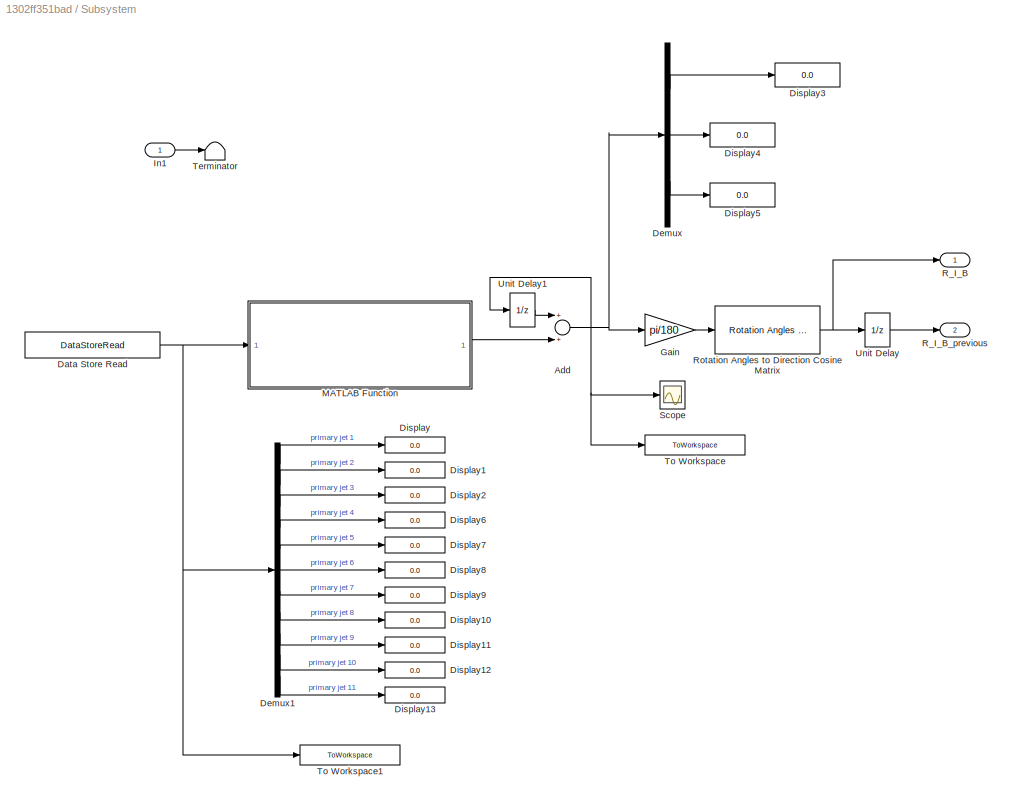
BLOCK [SubSystem] Subsystem
  Ports = [1, 2]
  RequestExecContextInheritance = off
  Variant = off
BLOCK [Sum] Subsystem/Add
  InputSameDT = off
  OutDataTypeStr = Inherit: Inherit via internal rule
  Ports = [2, 1]
  SaturateOnIntegerOverflow = off
BLOCK [DataStoreRead] Subsystem/Data Store Read
  DataStoreName = PRIMARY_JET_COMMAND
  Ports = [0, 1]
BLOCK [Demux] Subsystem/Demux
  DisplayOption = bar
  Outputs = 3
  Ports = [1, 3]
BLOCK [Demux] Subsystem/Demux1
  DisplayOption = bar
  Outputs = 11
  Ports = [1, 11]
BLOCK [Display] Subsystem/Display
  Decimation = 1
  Ports = [1]
BLOCK [Display] Subsystem/Display1
  Decimation = 1
  Ports = [1]
BLOCK [Display] Subsystem/Display10
  Decimation = 1
  Ports = [1]
BLOCK [Display] Subsystem/Display11
  Decimation = 1
  Ports = [1]
BLOCK [Display] Subsystem/Display12
  Decimation = 1
  Ports = [1]
BLOCK [Display] Subsystem/Display13
  Decimation = 1
  Ports = [1]
BLOCK [Display] Subsystem/Display2
  Decimation = 1
  Ports = [1]
BLOCK [Display] Subsystem/Display3
  Decimation = 1
  Ports = [1]
BLOCK [Display] Subsystem/Display4
  Decimation = 1
  Ports = [1]
BLOCK [Display] Subsystem/Display5
  Decimation = 1
  Ports = [1]
BLOCK [Display] Subsystem/Display6
  Decimation = 1
  Ports = [1]
BLOCK [Display] Subsystem/Display7
  Decimation = 1
  Ports = [1]
BLOCK [Display] Subsystem/Display8
  Decimation = 1
  Ports = [1]
BLOCK [Display] Subsystem/Display9
  Decimation = 1
  Ports = [1]
BLOCK [Gain] Subsystem/Gain
  Gain = pi/180
  OutDataTypeStr = Inherit: Inherit via internal rule
  ParamDataTypeStr = Inherit: Inherit via internal rule
  SaturateOnIntegerOverflow = off
BLOCK [Inport] Subsystem/In1
  IconDisplay = Port number
BLOCK [SubSystem] Subsystem/MATLAB Function
  ErrorFcn = Stateflow.Translate.translate
  PermitHierarchicalResolution = ExplicitOnly
  Ports = [1, 1]
  RequestExecContextInheritance = off
  SFBlockType = MATLAB Function
  TreatAsAtomicUnit = on
  Variant = off
BLOCK [Demux] Subsystem/MATLAB Function/ Demux 
  Outputs = 1
  Ports = [1, 1]
BLOCK [S-Function] Subsystem/MATLAB Function/ SFunction 
  EnableBusSupport = on
  FunctionName = sf_sfun
  PortCounts = [1 2]
  Ports = [1, 2]
  SFcnIsStateOwnerBlock = off
  SFunctionDeploymentMode = off
  Tag = Stateflow S-Function spaceShuttleOriginal 16
BLOCK [Terminator] Subsystem/MATLAB Function/ Terminator 
BLOCK [Inport] Subsystem/MATLAB Function/JetCommand
  IconDisplay = Port number
BLOCK [Outport] Subsystem/MATLAB Function/delta_omega
  IconDisplay = Port number
BLOCK [Outport] Subsystem/R_I_B
  IconDisplay = Port number
BLOCK [Outport] Subsystem/R_I_B_previous
  IconDisplay = Port number
  Port = 2
BLOCK [Reference] Subsystem/Rotation Angles to Direction Cosine Matrix  REF=sharedtransform/Rotation Angles to
Direction Cosine Matrix
  AttributesFormatString = Rotation Order: %<rotationOrder>
  Ports = [1, 1]
  SourceBlock = sharedtransform/Rotation Angles to\nDirection Cosine Matrix
  SourceProductBaseCode = AE
  SourceProductName = Aerospace Blockset
  SourceType = Ang2DCM
BLOCK [Scope] Subsystem/Scope
  NumInputPorts = 1
  Ports = [1]
  ScopeSpecificationString = Simulink.scopes.TimeScopeBlockCfg('CurrentConfiguration', extmgr.ConfigurationSet(extmgr.Configuration('Core','General UI',true),extmgr.Configuration('Core','Source UI',true),extmgr.Configuration('Sources','WiredSimulink',true,'DataLoggingVariableName','ScopeData1'),extmgr.Configuration('Visuals','Time Domain',true,'SerializedDisplays',{struct('MinYLimReal','-11.21832','MaxYLimReal','57.65796','YL...<+1461ch>
BLOCK [Terminator] Subsystem/Terminator
BLOCK [ToWorkspace] Subsystem/To Workspace
  FixptAsFi = on
  MaxDataPoints = inf
  Ports = [1]
  SampleTime = -1
  Save2DSignal = 3-D array (concatenate along third dimension)
  SaveFormat = Timeseries
  VariableName = attitude_shuttle
BLOCK [ToWorkspace] Subsystem/To Workspace1
  FixptAsFi = on
  MaxDataPoints = inf
  Ports = [1]
  SampleTime = -1
  Save2DSignal = 3-D array (concatenate along third dimension)
  SaveFormat = Timeseries
  VariableName = jet_command
BLOCK [UnitDelay] Subsystem/Unit Delay
  InitialCondition = eye(3)
  InputProcessing = Elements as channels (sample based)
  SampleTime = -1
BLOCK [UnitDelay] Subsystem/Unit Delay1
  InitialCondition = [50;50;50]
  InputProcessing = Elements as channels (sample based)
  SampleTime = -1
BLOCK [SubSystem] Update Auto Manual Switch
  Ports = [1, 1]
  Priority = 2
  RequestExecContextInheritance = off
  Variant = off
BLOCK [BusSelector] Update Auto Manual Switch/Bus Selector
  OutputAsBus = off
  OutputSignals = RHC_STATE
  Ports = [1, 1]
BLOCK [BusSelector] Update Auto Manual Switch/Bus Selector1
  OutputAsBus = off
  OutputSignals = USER_INPUTS
  Ports = [1, 1]
BLOCK [DotProduct] Update Auto Manual Switch/Dot Product
  OutDataTypeStr = Inherit: Inherit via internal rule
BLOCK [SubSystem] Update Auto Manual Switch/IF RHC
  Ports = [1, 1, 0, 0, 0, 0, 0, 1]
  RequestExecContextInheritance = off
  TreatAsAtomicUnit = on
  Variant = off
BLOCK [ActionPort] Update Auto Manual Switch/IF RHC/Action Port
  ActionType = then
BLOCK [BusAssignment] Update Auto Manual Switch/IF RHC/Bus Assignment
  AssignedSignals = AUTO_MANUAL_SWITCH
  Ports = [2, 1]
BLOCK [Constant] Update Auto Manual Switch/IF RHC/Constant1
  Value = 0
BLOCK [DataStoreRead] Update Auto Manual Switch/IF RHC/Data Store Read
  DataStoreElements = AUTO_MANUAL_SWITCH(1)
  DataStoreName = AUTO_MANUAL_SWITCH
  Ports = [0, 1]
BLOCK [DataStoreWrite] Update Auto Manual Switch/IF RHC/Data Store Write1
  DataStoreName = AUTO_MANUAL_SWITCH
  Ports = [1]
BLOCK [Inport] Update Auto Manual Switch/IF RHC/In1
  IconDisplay = Port number
BLOCK [Mux] Update Auto Manual Switch/IF RHC/Mux
  DisplayOption = bar
  Inputs = 2
  Ports = [2, 1]
BLOCK [Outport] Update Auto Manual Switch/IF RHC/x
  IconDisplay = Port number
BLOCK [If] Update Auto Manual Switch/If
  IfExpression = u1 ~= 0
  Ports = [1, 2]
BLOCK [Merge] Update Auto Manual Switch/Merge
  Ports = [2, 1]
BLOCK [SubSystem] Update Auto Manual Switch/NO RHC
  Ports = [1, 1, 0, 0, 0, 0, 0, 1]
  RequestExecContextInheritance = off
  TreatAsAtomicUnit = on
  Variant = off
BLOCK [ActionPort] Update Auto Manual Switch/NO RHC/Action Port
  ActionType = else
BLOCK [BusAssignment] Update Auto Manual Switch/NO RHC/Bus Assignment
  AssignedSignals = AUTO_MANUAL_SWITCH
  Ports = [2, 1]
BLOCK [Constant] Update Auto Manual Switch/NO RHC/Constant1
BLOCK [DataStoreRead] Update Auto Manual Switch/NO RHC/Data Store Read
  DataStoreElements = AUTO_MANUAL_SWITCH(1)
  DataStoreName = AUTO_MANUAL_SWITCH
  Ports = [0, 1]
BLOCK [DataStoreWrite] Update Auto Manual Switch/NO RHC/Data Store Write1
  DataStoreName = AUTO_MANUAL_SWITCH
  Ports = [1]
BLOCK [Inport] Update Auto Manual Switch/NO RHC/In1
  IconDisplay = Port number
BLOCK [Mux] Update Auto Manual Switch/NO RHC/Mux
  DisplayOption = bar
  Inputs = 2
  Ports = [2, 1]
BLOCK [Outport] Update Auto Manual Switch/NO RHC/x1
  IconDisplay = Port number
BLOCK [Sqrt] Update Auto Manual Switch/Sqrt
BLOCK [Inport] Update Auto Manual Switch/x
  IconDisplay = Port number
BLOCK [Outport] Update Auto Manual Switch/y
  IconDisplay = Port number
BLOCK [SubSystem] VISUALIZATION AND COMMANDS
  Ports = []
  RequestExecContextInheritance = off
  Variant = off
BLOCK [SubSystem] VISUALIZATION AND COMMANDS/Knob1
  DialogController = hmiCreateDDGDialog
  IsWebBlock = on
  MaskHideContents = on
  Ports = []
  RequestExecContextInheritance = off
  Variant = off
BLOCK [SubSystem] VISUALIZATION AND COMMANDS/Knob2
  DialogController = hmiCreateDDGDialog
  IsWebBlock = on
  MaskHideContents = on
  Ports = []
  RequestExecContextInheritance = off
  Variant = off
BLOCK [SubSystem] VISUALIZATION AND COMMANDS/Knob3
  DialogController = hmiCreateDDGDialog
  IsWebBlock = on
  MaskHideContents = on
  Ports = []
  RequestExecContextInheritance = off
  Variant = off
BLOCK [SubSystem] VISUALIZATION AND COMMANDS/Knob4
  DialogController = hmiCreateDDGDialog
  IsWebBlock = on
  MaskHideContents = on
  Ports = []
  RequestExecContextInheritance = off
  Variant = off
BLOCK [SubSystem] VISUALIZATION AND COMMANDS/Knob5
  DialogController = hmiCreateDDGDialog
  IsWebBlock = on
  MaskHideContents = on
  Ports = []
  RequestExecContextInheritance = off
  Variant = off
BLOCK [SubSystem] VISUALIZATION AND COMMANDS/Lamp
  DialogController = hmiCreateDDGDialog
  IsWebBlock = on
  MaskHideContents = on
  Ports = []
  RequestExecContextInheritance = off
  Variant = off
BLOCK [SubSystem] VISUALIZATION AND COMMANDS/Lamp1
  DialogController = hmiCreateDDGDialog
  IsWebBlock = on
  MaskHideContents = on
  Ports = []
  RequestExecContextInheritance = off
  Variant = off
BLOCK [SubSystem] VISUALIZATION AND COMMANDS/Lamp10
  DialogController = hmiCreateDDGDialog
  IsWebBlock = on
  MaskHideContents = on
  Ports = []
  RequestExecContextInheritance = off
  Variant = off
BLOCK [SubSystem] VISUALIZATION AND COMMANDS/Lamp2
  DialogController = hmiCreateDDGDialog
  IsWebBlock = on
  MaskHideContents = on
  Ports = []
  RequestExecContextInheritance = off
  Variant = off
BLOCK [SubSystem] VISUALIZATION AND COMMANDS/Lamp3
  DialogController = hmiCreateDDGDialog
  IsWebBlock = on
  MaskHideContents = on
  Ports = []
  RequestExecContextInheritance = off
  Variant = off
BLOCK [SubSystem] VISUALIZATION AND COMMANDS/Lamp4
  DialogController = hmiCreateDDGDialog
  IsWebBlock = on
  MaskHideContents = on
  Ports = []
  RequestExecContextInheritance = off
  Variant = off
BLOCK [SubSystem] VISUALIZATION AND COMMANDS/Lamp5
  DialogController = hmiCreateDDGDialog
  IsWebBlock = on
  MaskHideContents = on
  Ports = []
  RequestExecContextInheritance = off
  Variant = off
BLOCK [SubSystem] VISUALIZATION AND COMMANDS/Lamp6
  DialogController = hmiCreateDDGDialog
  IsWebBlock = on
  MaskHideContents = on
  Ports = []
  RequestExecContextInheritance = off
  Variant = off
BLOCK [SubSystem] VISUALIZATION AND COMMANDS/Lamp7
  DialogController = hmiCreateDDGDialog
  IsWebBlock = on
  MaskHideContents = on
  Ports = []
  RequestExecContextInheritance = off
  Variant = off
BLOCK [SubSystem] VISUALIZATION AND COMMANDS/Lamp8
  DialogController = hmiCreateDDGDialog
  IsWebBlock = on
  MaskHideContents = on
  Ports = []
  RequestExecContextInheritance = off
  Variant = off
BLOCK [SubSystem] VISUALIZATION AND COMMANDS/Lamp9
  DialogController = hmiCreateDDGDialog
  IsWebBlock = on
  MaskHideContents = on
  Ports = []
  RequestExecContextInheritance = off
  Variant = off
BLOCK [SubSystem] VISUALIZATION AND COMMANDS/Rotary Switch
  DialogController = hmiCreateDDGDialog
  IsWebBlock = on
  MaskHideContents = on
  Ports = []
  RequestExecContextInheritance = off
  Variant = off
BLOCK [SubSystem] VISUALIZATION AND COMMANDS/Rotary Switch1
  DialogController = hmiCreateDDGDialog
  IsWebBlock = on
  MaskHideContents = on
  Ports = []
  RequestExecContextInheritance = off
  Variant = off
BLOCK [SubSystem] VISUALIZATION AND COMMANDS/Rotary Switch2
  DialogController = hmiCreateDDGDialog
  IsWebBlock = on
  MaskHideContents = on
  Ports = []
  RequestExecContextInheritance = off
  Variant = off
BLOCK [SubSystem] VISUALIZATION AND COMMANDS/Toggle Switch
  DialogController = hmiCreateDDGDialog
  IsWebBlock = on
  MaskHideContents = on
  Ports = []
  RequestExecContextInheritance = off
  Variant = off
BLOCK [SubSystem] VISUALIZATION AND COMMANDS/Toggle Switch1
  DialogController = hmiCreateDDGDialog
  IsWebBlock = on
  MaskHideContents = on
  Ports = []
  RequestExecContextInheritance = off
  Variant = off
BLOCK [SubSystem] VISUALIZATION AND COMMANDS/Toggle Switch2
  DialogController = hmiCreateDDGDialog
  IsWebBlock = on
  MaskHideContents = on
  Ports = []
  RequestExecContextInheritance = off
  Variant = off
BLOCK [SubSystem] VISUALIZATION AND COMMANDS/Toggle Switch3
  DialogController = hmiCreateDDGDialog
  IsWebBlock = on
  MaskHideContents = on
  Ports = []
  RequestExecContextInheritance = off
  Variant = off
LINE Add:1 -> Data Store Write:1
LINE Attitude Processing/Data Store Read:1 -> Attitude Processing/If:1
LINE Attitude Processing/If:1 -> Attitude Processing/SECOND_PASS == 1:ifaction
LINE Attitude Processing/If:2 -> Attitude Processing/SECOND_PASS == 0:ifaction
LINE Attitude Processing/Merge:1 -> Attitude Processing/y:1
LINE Attitude Processing/R_I_B:1 -> Attitude Processing/SECOND_PASS == 1:2
LINE Attitude Processing/R_I_B_PREVIOUS:1 -> Attitude Processing/SECOND_PASS == 1:3
LINE Attitude Processing/SECOND_PASS == 0/Bus Assignment1:1 -> Attitude Processing/SECOND_PASS == 0/y:1
LINE Attitude Processing/SECOND_PASS == 0/Constant2:1 -> Attitude Processing/SECOND_PASS == 0/Data Store Write1:1
LINE Attitude Processing/SECOND_PASS == 0/Data Store Read1:1 -> Attitude Processing/SECOND_PASS == 0/Bus Assignment1:3
LINE Attitude Processing/SECOND_PASS == 0/Data Store Read2:1 -> Attitude Processing/SECOND_PASS == 0/Bus Assignment1:5
LINE Attitude Processing/SECOND_PASS == 0/Data Store Read3:1 -> Attitude Processing/SECOND_PASS == 0/Bus Assignment1:4
LINE Attitude Processing/SECOND_PASS == 0/Data Store Read4:1 -> Attitude Processing/SECOND_PASS == 0/Bus Assignment1:6
LINE Attitude Processing/SECOND_PASS == 0/Data Store Read:1 -> Attitude Processing/SECOND_PASS == 0/Bus Assignment1:2
LINE Attitude Processing/SECOND_PASS == 0/x:1 -> Attitude Processing/SECOND_PASS == 0/Bus Assignment1:1
LINE Attitude Processing/SECOND_PASS == 0:1 -> Attitude Processing/Merge:2
LINE Attitude Processing/SECOND_PASS == 1/ATTITUDE PROCESSOR/Direction Cosine Matrix to Quaternions1:1 -> Attitude Processing/SECOND_PASS == 1/ATTITUDE PROCESSOR/Quaternion Multiplication:1
LINE Attitude Processing/SECOND_PASS == 1/ATTITUDE PROCESSOR/Direction Cosine Matrix to Quaternions2:1 -> Attitude Processing/SECOND_PASS == 1/ATTITUDE PROCESSOR/Quaternion Conjugate:1
NET Attitude Processing/SECOND_PASS == 1/ATTITUDE PROCESSOR/Direction Cosine Matrix to Quaternions:1 -> Attitude Processing/SECOND_PASS == 1/ATTITUDE PROCESSOR/CURRENT ATTITUDE:1, Attitude Processing/SECOND_PASS == 1/ATTITUDE PROCESSOR/Display1:1, Attitude Processing/SECOND_PASS == 1/ATTITUDE PROCESSOR/Scope:1, Attitude Processing/SECOND_PASS == 1/ATTITUDE PROCESSOR/To Workspace:1
NET Attitude Processing/SECOND_PASS == 1/ATTITUDE PROCESSOR/MATLAB Function2:1 -> Attitude Processing/SECOND_PASS == 1/ATTITUDE PROCESSOR/ATTITUDE INCREMENT:1, Attitude Processing/SECOND_PASS == 1/ATTITUDE PROCESSOR/Display3:1, Attitude Processing/SECOND_PASS == 1/ATTITUDE PROCESSOR/Scope1:1
LINE Attitude Processing/SECOND_PASS == 1/ATTITUDE PROCESSOR/MATLAB Function3:1 -> Attitude Processing/SECOND_PASS == 1/ATTITUDE PROCESSOR/Display2:1
LINE Attitude Processing/SECOND_PASS == 1/ATTITUDE PROCESSOR/Quaternion Conjugate:1 -> Attitude Processing/SECOND_PASS == 1/ATTITUDE PROCESSOR/Quaternion Multiplication:2
LINE Attitude Processing/SECOND_PASS == 1/ATTITUDE PROCESSOR/Quaternion Multiplication:1 -> Attitude Processing/SECOND_PASS == 1/ATTITUDE PROCESSOR/MATLAB Function2:1
NET Attitude Processing/SECOND_PASS == 1/ATTITUDE PROCESSOR/R_I_B:1 -> Attitude Processing/SECOND_PASS == 1/ATTITUDE PROCESSOR/Direction Cosine Matrix to Quaternions1:1, Attitude Processing/SECOND_PASS == 1/ATTITUDE PROCESSOR/Direction Cosine Matrix to Quaternions:1, Attitude Processing/SECOND_PASS == 1/ATTITUDE PROCESSOR/MATLAB Function3:1
LINE Attitude Processing/SECOND_PASS == 1/ATTITUDE PROCESSOR/R_I_B_PREVIOUS:1 -> Attitude Processing/SECOND_PASS == 1/ATTITUDE PROCESSOR/Direction Cosine Matrix to Quaternions2:1
NET Attitude Processing/SECOND_PASS == 1/ATTITUDE PROCESSOR:1 -> Attitude Processing/SECOND_PASS == 1/Bus Assignment:3, Attitude Processing/SECOND_PASS == 1/Data Store Write2:1, Attitude Processing/SECOND_PASS == 1/State Estimator Part I:1
NET Attitude Processing/SECOND_PASS == 1/ATTITUDE PROCESSOR:2 -> Attitude Processing/SECOND_PASS == 1/Bus Assignment:2, Attitude Processing/SECOND_PASS == 1/Data Store Write3:1
LINE Attitude Processing/SECOND_PASS == 1/Bus Assignment:1 -> Attitude Processing/SECOND_PASS == 1/y:1
LINE Attitude Processing/SECOND_PASS == 1/Constant2:1 -> Attitude Processing/SECOND_PASS == 1/Data Store Write1:1
LINE Attitude Processing/SECOND_PASS == 1/R_I_B1:1 -> Attitude Processing/SECOND_PASS == 1/ATTITUDE PROCESSOR:2
LINE Attitude Processing/SECOND_PASS == 1/R_I_B:1 -> Attitude Processing/SECOND_PASS == 1/ATTITUDE PROCESSOR:1
LINE Attitude Processing/SECOND_PASS == 1/State Estimator Part I/CURRENT_ATTITUDE:1 -> Attitude Processing/SECOND_PASS == 1/State Estimator Part I/MATLAB Function2:1
NET Attitude Processing/SECOND_PASS == 1/State Estimator Part I/Derivative1:1 -> Attitude Processing/SECOND_PASS == 1/State Estimator Part I/Derivative2:1, Attitude Processing/SECOND_PASS == 1/State Estimator Part I/RATE_ESTIMATE:1
LINE Attitude Processing/SECOND_PASS == 1/State Estimator Part I/Derivative2:1 -> Attitude Processing/SECOND_PASS == 1/State Estimator Part I/UNDESIRED_ACCELERATION_ESTIMATE:1
NET Attitude Processing/SECOND_PASS == 1/State Estimator Part I/MATLAB Function2:1 -> Attitude Processing/SECOND_PASS == 1/State Estimator Part I/ATTITUDE_ESTIMATE:1, Attitude Processing/SECOND_PASS == 1/State Estimator Part I/Derivative1:1
NET Attitude Processing/SECOND_PASS == 1/State Estimator Part I:1 -> Attitude Processing/SECOND_PASS == 1/Bus Assignment:4, Attitude Processing/SECOND_PASS == 1/Data Store Write4:1
NET Attitude Processing/SECOND_PASS == 1/State Estimator Part I:2 -> Attitude Processing/SECOND_PASS == 1/Bus Assignment:5, Attitude Processing/SECOND_PASS == 1/Data Store Write5:1
NET Attitude Processing/SECOND_PASS == 1/State Estimator Part I:3 -> Attitude Processing/SECOND_PASS == 1/Bus Assignment:6, Attitude Processing/SECOND_PASS == 1/Data Store Write6:1
LINE Attitude Processing/SECOND_PASS == 1/x:1 -> Attitude Processing/SECOND_PASS == 1/Bus Assignment:1
LINE Attitude Processing/SECOND_PASS == 1:1 -> Attitude Processing/Merge:1
NET Attitude Processing/x:1 -> Attitude Processing/SECOND_PASS == 0:1, Attitude Processing/SECOND_PASS == 1:1
LINE Attitude Processing:1 -> Auto // Manual Maneuver:1
LINE Auto // Manual Maneuver/Bus Selector1:1 -> Auto // Manual Maneuver/Selector:1
LINE Auto // Manual Maneuver/IF MANUAL/MANUAL MANEUVER MODULE/Affect Coordinate 1/Bus Selector:1 -> Auto // Manual Maneuver/IF MANUAL/MANUAL MANEUVER MODULE/Affect Coordinate 1/Selector:1
LINE Auto // Manual Maneuver/IF MANUAL/MANUAL MANEUVER MODULE/Affect Coordinate 1/CLOSED LOOP = OFF/Bus Assignment1:1 -> Auto // Manual Maneuver/IF MANUAL/MANUAL MANEUVER MODULE/Affect Coordinate 1/CLOSED LOOP = OFF/y:1
NET Auto // Manual Maneuver/IF MANUAL/MANUAL MANEUVER MODULE/Affect Coordinate 1/CLOSED LOOP = OFF/Bus Assignment:1 -> Auto // Manual Maneuver/IF MANUAL/MANUAL MANEUVER MODULE/Affect Coordinate 1/CLOSED LOOP = OFF/Bus Assignment1:1, Auto // Manual Maneuver/IF MANUAL/MANUAL MANEUVER MODULE/Affect Coordinate 1/CLOSED LOOP = OFF/Bus Selector1:1, Auto // Manual Maneuver/IF MANUAL/MANUAL MANEUVER MODULE/Affect Coordinate 1/CLOSED LOOP = OFF/Bus Selector2:1
LINE Auto // Manual Maneuver/IF MANUAL/MANUAL MANEUVER MODULE/Affect Coordinate 1/CLOSED LOOP = OFF/Bus Selector1:1 -> Auto // Manual Maneuver/IF MANUAL/MANUAL MANEUVER MODULE/Affect Coordinate 1/CLOSED LOOP = OFF/Selector:1
LINE Auto // Manual Maneuver/IF MANUAL/MANUAL MANEUVER MODULE/Affect Coordinate 1/CLOSED LOOP = OFF/Bus Selector2:1 -> Auto // Manual Maneuver/IF MANUAL/MANUAL MANEUVER MODULE/Affect Coordinate 1/CLOSED LOOP = OFF/Demux1:1
LINE Auto // Manual Maneuver/IF MANUAL/MANUAL MANEUVER MODULE/Affect Coordinate 1/CLOSED LOOP = OFF/Bus Selector:1 -> Auto // Manual Maneuver/IF MANUAL/MANUAL MANEUVER MODULE/Affect Coordinate 1/CLOSED LOOP = OFF/Demux:1
LINE Auto // Manual Maneuver/IF MANUAL/MANUAL MANEUVER MODULE/Affect Coordinate 1/CLOSED LOOP = OFF/Constant:1 -> Auto // Manual Maneuver/IF MANUAL/MANUAL MANEUVER MODULE/Affect Coordinate 1/CLOSED LOOP = OFF/Mux:1
LINE Auto // Manual Maneuver/IF MANUAL/MANUAL MANEUVER MODULE/Affect Coordinate 1/CLOSED LOOP = OFF/Demux1:1 -> Auto // Manual Maneuver/IF MANUAL/MANUAL MANEUVER MODULE/Affect Coordinate 1/CLOSED LOOP = OFF/Terminator1:1
LINE Auto // Manual Maneuver/IF MANUAL/MANUAL MANEUVER MODULE/Affect Coordinate 1/CLOSED LOOP = OFF/Demux1:2 -> Auto // Manual Maneuver/IF MANUAL/MANUAL MANEUVER MODULE/Affect Coordinate 1/CLOSED LOOP = OFF/Mux1:2
LINE Auto // Manual Maneuver/IF MANUAL/MANUAL MANEUVER MODULE/Affect Coordinate 1/CLOSED LOOP = OFF/Demux1:3 -> Auto // Manual Maneuver/IF MANUAL/MANUAL MANEUVER MODULE/Affect Coordinate 1/CLOSED LOOP = OFF/Mux1:3
LINE Auto // Manual Maneuver/IF MANUAL/MANUAL MANEUVER MODULE/Affect Coordinate 1/CLOSED LOOP = OFF/Demux:1 -> Auto // Manual Maneuver/IF MANUAL/MANUAL MANEUVER MODULE/Affect Coordinate 1/CLOSED LOOP = OFF/Terminator:1
LINE Auto // Manual Maneuver/IF MANUAL/MANUAL MANEUVER MODULE/Affect Coordinate 1/CLOSED LOOP = OFF/Demux:2 -> Auto // Manual Maneuver/IF MANUAL/MANUAL MANEUVER MODULE/Affect Coordinate 1/CLOSED LOOP = OFF/Mux:2
LINE Auto // Manual Maneuver/IF MANUAL/MANUAL MANEUVER MODULE/Affect Coordinate 1/CLOSED LOOP = OFF/Demux:3 -> Auto // Manual Maneuver/IF MANUAL/MANUAL MANEUVER MODULE/Affect Coordinate 1/CLOSED LOOP = OFF/Mux:3
NET Auto // Manual Maneuver/IF MANUAL/MANUAL MANEUVER MODULE/Affect Coordinate 1/CLOSED LOOP = OFF/Mux1:1 -> Auto // Manual Maneuver/IF MANUAL/MANUAL MANEUVER MODULE/Affect Coordinate 1/CLOSED LOOP = OFF/Bus Assignment1:2, Auto // Manual Maneuver/IF MANUAL/MANUAL MANEUVER MODULE/Affect Coordinate 1/CLOSED LOOP = OFF/Data Store Write1:1
NET Auto // Manual Maneuver/IF MANUAL/MANUAL MANEUVER MODULE/Affect Coordinate 1/CLOSED LOOP = OFF/Mux:1 -> Auto // Manual Maneuver/IF MANUAL/MANUAL MANEUVER MODULE/Affect Coordinate 1/CLOSED LOOP = OFF/Bus Assignment:2, Auto // Manual Maneuver/IF MANUAL/MANUAL MANEUVER MODULE/Affect Coordinate 1/CLOSED LOOP = OFF/Data Store Write:1
LINE Auto // Manual Maneuver/IF MANUAL/MANUAL MANEUVER MODULE/Affect Coordinate 1/CLOSED LOOP = OFF/Selector:1 -> Auto // Manual Maneuver/IF MANUAL/MANUAL MANEUVER MODULE/Affect Coordinate 1/CLOSED LOOP = OFF/Mux1:1
NET Auto // Manual Maneuver/IF MANUAL/MANUAL MANEUVER MODULE/Affect Coordinate 1/CLOSED LOOP = OFF/x:1 -> Auto // Manual Maneuver/IF MANUAL/MANUAL MANEUVER MODULE/Affect Coordinate 1/CLOSED LOOP = OFF/Bus Assignment:1, Auto // Manual Maneuver/IF MANUAL/MANUAL MANEUVER MODULE/Affect Coordinate 1/CLOSED LOOP = OFF/Bus Selector:1
LINE Auto // Manual Maneuver/IF MANUAL/MANUAL MANEUVER MODULE/Affect Coordinate 1/CLOSED LOOP = OFF:1 -> Auto // Manual Maneuver/IF MANUAL/MANUAL MANEUVER MODULE/Affect Coordinate 1/Merge:2
LINE Auto // Manual Maneuver/IF MANUAL/MANUAL MANEUVER MODULE/Affect Coordinate 1/CLOSED LOOP = ON/Bus Assignment2:1 -> Auto // Manual Maneuver/IF MANUAL/MANUAL MANEUVER MODULE/Affect Coordinate 1/CLOSED LOOP = ON/Out2:1
NET Auto // Manual Maneuver/IF MANUAL/MANUAL MANEUVER MODULE/Affect Coordinate 1/CLOSED LOOP = ON/Bus Assignment:1 -> Auto // Manual Maneuver/IF MANUAL/MANUAL MANEUVER MODULE/Affect Coordinate 1/CLOSED LOOP = ON/Bus Selector2:1, Auto // Manual Maneuver/IF MANUAL/MANUAL MANEUVER MODULE/Affect Coordinate 1/CLOSED LOOP = ON/CHANGE IN RHC:1, Auto // Manual Maneuver/IF MANUAL/MANUAL MANEUVER MODULE/Affect Coordinate 1/CLOSED LOOP = ON/SAME RHC:1
LINE Auto // Manual Maneuver/IF MANUAL/MANUAL MANEUVER MODULE/Affect Coordinate 1/CLOSED LOOP = ON/Bus Selector1:1 -> Auto // Manual Maneuver/IF MANUAL/MANUAL MANEUVER MODULE/Affect Coordinate 1/CLOSED LOOP = ON/Demux:1
LINE Auto // Manual Maneuver/IF MANUAL/MANUAL MANEUVER MODULE/Affect Coordinate 1/CLOSED LOOP = ON/Bus Selector2:1 -> Auto // Manual Maneuver/IF MANUAL/MANUAL MANEUVER MODULE/Affect Coordinate 1/CLOSED LOOP = ON/Selector:1
LINE Auto // Manual Maneuver/IF MANUAL/MANUAL MANEUVER MODULE/Affect Coordinate 1/CLOSED LOOP = ON/Bus Selector3:1 -> Auto // Manual Maneuver/IF MANUAL/MANUAL MANEUVER MODULE/Affect Coordinate 1/CLOSED LOOP = ON/Demux1:1
LINE Auto // Manual Maneuver/IF MANUAL/MANUAL MANEUVER MODULE/Affect Coordinate 1/CLOSED LOOP = ON/Bus Selector3:2 -> Auto // Manual Maneuver/IF MANUAL/MANUAL MANEUVER MODULE/Affect Coordinate 1/CLOSED LOOP = ON/Product:2
LINE Auto // Manual Maneuver/IF MANUAL/MANUAL MANEUVER MODULE/Affect Coordinate 1/CLOSED LOOP = ON/Bus Selector3:3 -> Auto // Manual Maneuver/IF MANUAL/MANUAL MANEUVER MODULE/Affect Coordinate 1/CLOSED LOOP = ON/Demux2:1
NET Auto // Manual Maneuver/IF MANUAL/MANUAL MANEUVER MODULE/Affect Coordinate 1/CLOSED LOOP = ON/CHANGE IN RHC/Bus Assignment:1 -> Auto // Manual Maneuver/IF MANUAL/MANUAL MANEUVER MODULE/Affect Coordinate 1/CLOSED LOOP = ON/CHANGE IN RHC/Bus Selector2:1, Auto // Manual Maneuver/IF MANUAL/MANUAL MANEUVER MODULE/Affect Coordinate 1/CLOSED LOOP = ON/CHANGE IN RHC/RHC 0:1, Auto // Manual Maneuver/IF MANUAL/MANUAL MANEUVER MODULE/Affect Coordinate 1/CLOSED LOOP = ON/CHANGE IN RHC/RHC NOT 0:1
LINE Auto // Manual Maneuver/IF MANUAL/MANUAL MANEUVER MODULE/Affect Coordinate 1/CLOSED LOOP = ON/CHANGE IN RHC/Bus Selector1:1 -> Auto // Manual Maneuver/IF MANUAL/MANUAL MANEUVER MODULE/Affect Coordinate 1/CLOSED LOOP = ON/CHANGE IN RHC/Demux:1
LINE Auto // Manual Maneuver/IF MANUAL/MANUAL MANEUVER MODULE/Affect Coordinate 1/CLOSED LOOP = ON/CHANGE IN RHC/Bus Selector2:1 -> Auto // Manual Maneuver/IF MANUAL/MANUAL MANEUVER MODULE/Affect Coordinate 1/CLOSED LOOP = ON/CHANGE IN RHC/Selector:1
LINE Auto // Manual Maneuver/IF MANUAL/MANUAL MANEUVER MODULE/Affect Coordinate 1/CLOSED LOOP = ON/CHANGE IN RHC/Constant:1 -> Auto // Manual Maneuver/IF MANUAL/MANUAL MANEUVER MODULE/Affect Coordinate 1/CLOSED LOOP = ON/CHANGE IN RHC/Mux:1
LINE Auto // Manual Maneuver/IF MANUAL/MANUAL MANEUVER MODULE/Affect Coordinate 1/CLOSED LOOP = ON/CHANGE IN RHC/Demux:1 -> Auto // Manual Maneuver/IF MANUAL/MANUAL MANEUVER MODULE/Affect Coordinate 1/CLOSED LOOP = ON/CHANGE IN RHC/Terminator:1
LINE Auto // Manual Maneuver/IF MANUAL/MANUAL MANEUVER MODULE/Affect Coordinate 1/CLOSED LOOP = ON/CHANGE IN RHC/Demux:2 -> Auto // Manual Maneuver/IF MANUAL/MANUAL MANEUVER MODULE/Affect Coordinate 1/CLOSED LOOP = ON/CHANGE IN RHC/Mux:2
LINE Auto // Manual Maneuver/IF MANUAL/MANUAL MANEUVER MODULE/Affect Coordinate 1/CLOSED LOOP = ON/CHANGE IN RHC/Demux:3 -> Auto // Manual Maneuver/IF MANUAL/MANUAL MANEUVER MODULE/Affect Coordinate 1/CLOSED LOOP = ON/CHANGE IN RHC/Mux:3
LINE Auto // Manual Maneuver/IF MANUAL/MANUAL MANEUVER MODULE/Affect Coordinate 1/CLOSED LOOP = ON/CHANGE IN RHC/If:1 -> Auto // Manual Maneuver/IF MANUAL/MANUAL MANEUVER MODULE/Affect Coordinate 1/CLOSED LOOP = ON/CHANGE IN RHC/RHC NOT 0:ifaction
LINE Auto // Manual Maneuver/IF MANUAL/MANUAL MANEUVER MODULE/Affect Coordinate 1/CLOSED LOOP = ON/CHANGE IN RHC/If:2 -> Auto // Manual Maneuver/IF MANUAL/MANUAL MANEUVER MODULE/Affect Coordinate 1/CLOSED LOOP = ON/CHANGE IN RHC/RHC 0:ifaction
LINE Auto // Manual Maneuver/IF MANUAL/MANUAL MANEUVER MODULE/Affect Coordinate 1/CLOSED LOOP = ON/CHANGE IN RHC/Merge:1 -> Auto // Manual Maneuver/IF MANUAL/MANUAL MANEUVER MODULE/Affect Coordinate 1/CLOSED LOOP = ON/CHANGE IN RHC/Out1:1
NET Auto // Manual Maneuver/IF MANUAL/MANUAL MANEUVER MODULE/Affect Coordinate 1/CLOSED LOOP = ON/CHANGE IN RHC/Mux:1 -> Auto // Manual Maneuver/IF MANUAL/MANUAL MANEUVER MODULE/Affect Coordinate 1/CLOSED LOOP = ON/CHANGE IN RHC/Bus Assignment:2, Auto // Manual Maneuver/IF MANUAL/MANUAL MANEUVER MODULE/Affect Coordinate 1/CLOSED LOOP = ON/CHANGE IN RHC/Data Store Write:1
LINE Auto // Manual Maneuver/IF MANUAL/MANUAL MANEUVER MODULE/Affect Coordinate 1/CLOSED LOOP = ON/CHANGE IN RHC/RHC 0/x:1 -> Auto // Manual Maneuver/IF MANUAL/MANUAL MANEUVER MODULE/Affect Coordinate 1/CLOSED LOOP = ON/CHANGE IN RHC/RHC 0/y:1
LINE Auto // Manual Maneuver/IF MANUAL/MANUAL MANEUVER MODULE/Affect Coordinate 1/CLOSED LOOP = ON/CHANGE IN RHC/RHC 0:1 -> Auto // Manual Maneuver/IF MANUAL/MANUAL MANEUVER MODULE/Affect Coordinate 1/CLOSED LOOP = ON/CHANGE IN RHC/Merge:2
LINE Auto // Manual Maneuver/IF MANUAL/MANUAL MANEUVER MODULE/Affect Coordinate 1/CLOSED LOOP = ON/CHANGE IN RHC/RHC NOT 0/Bus Assignment:1 -> Auto // Manual Maneuver/IF MANUAL/MANUAL MANEUVER MODULE/Affect Coordinate 1/CLOSED LOOP = ON/CHANGE IN RHC/RHC NOT 0/y:1
LINE Auto // Manual Maneuver/IF MANUAL/MANUAL MANEUVER MODULE/Affect Coordinate 1/CLOSED LOOP = ON/CHANGE IN RHC/RHC NOT 0/Bus Selector1:1 -> Auto // Manual Maneuver/IF MANUAL/MANUAL MANEUVER MODULE/Affect Coordinate 1/CLOSED LOOP = ON/CHANGE IN RHC/RHC NOT 0/Demux:1
LINE Auto // Manual Maneuver/IF MANUAL/MANUAL MANEUVER MODULE/Affect Coordinate 1/CLOSED LOOP = ON/CHANGE IN RHC/RHC NOT 0/Constant:1 -> Auto // Manual Maneuver/IF MANUAL/MANUAL MANEUVER MODULE/Affect Coordinate 1/CLOSED LOOP = ON/CHANGE IN RHC/RHC NOT 0/Mux:1
LINE Auto // Manual Maneuver/IF MANUAL/MANUAL MANEUVER MODULE/Affect Coordinate 1/CLOSED LOOP = ON/CHANGE IN RHC/RHC NOT 0/Demux:1 -> Auto // Manual Maneuver/IF MANUAL/MANUAL MANEUVER MODULE/Affect Coordinate 1/CLOSED LOOP = ON/CHANGE IN RHC/RHC NOT 0/Terminator:1
LINE Auto // Manual Maneuver/IF MANUAL/MANUAL MANEUVER MODULE/Affect Coordinate 1/CLOSED LOOP = ON/CHANGE IN RHC/RHC NOT 0/Demux:2 -> Auto // Manual Maneuver/IF MANUAL/MANUAL MANEUVER MODULE/Affect Coordinate 1/CLOSED LOOP = ON/CHANGE IN RHC/RHC NOT 0/Mux:2
LINE Auto // Manual Maneuver/IF MANUAL/MANUAL MANEUVER MODULE/Affect Coordinate 1/CLOSED LOOP = ON/CHANGE IN RHC/RHC NOT 0/Demux:3 -> Auto // Manual Maneuver/IF MANUAL/MANUAL MANEUVER MODULE/Affect Coordinate 1/CLOSED LOOP = ON/CHANGE IN RHC/RHC NOT 0/Mux:3
NET Auto // Manual Maneuver/IF MANUAL/MANUAL MANEUVER MODULE/Affect Coordinate 1/CLOSED LOOP = ON/CHANGE IN RHC/RHC NOT 0/Mux:1 -> Auto // Manual Maneuver/IF MANUAL/MANUAL MANEUVER MODULE/Affect Coordinate 1/CLOSED LOOP = ON/CHANGE IN RHC/RHC NOT 0/Bus Assignment:2, Auto // Manual Maneuver/IF MANUAL/MANUAL MANEUVER MODULE/Affect Coordinate 1/CLOSED LOOP = ON/CHANGE IN RHC/RHC NOT 0/Data Store Write:1
NET Auto // Manual Maneuver/IF MANUAL/MANUAL MANEUVER MODULE/Affect Coordinate 1/CLOSED LOOP = ON/CHANGE IN RHC/RHC NOT 0/x:1 -> Auto // Manual Maneuver/IF MANUAL/MANUAL MANEUVER MODULE/Affect Coordinate 1/CLOSED LOOP = ON/CHANGE IN RHC/RHC NOT 0/Bus Assignment:1, Auto // Manual Maneuver/IF MANUAL/MANUAL MANEUVER MODULE/Affect Coordinate 1/CLOSED LOOP = ON/CHANGE IN RHC/RHC NOT 0/Bus Selector1:1
LINE Auto // Manual Maneuver/IF MANUAL/MANUAL MANEUVER MODULE/Affect Coordinate 1/CLOSED LOOP = ON/CHANGE IN RHC/RHC NOT 0:1 -> Auto // Manual Maneuver/IF MANUAL/MANUAL MANEUVER MODULE/Affect Coordinate 1/CLOSED LOOP = ON/CHANGE IN RHC/Merge:1
LINE Auto // Manual Maneuver/IF MANUAL/MANUAL MANEUVER MODULE/Affect Coordinate 1/CLOSED LOOP = ON/CHANGE IN RHC/Selector:1 -> Auto // Manual Maneuver/IF MANUAL/MANUAL MANEUVER MODULE/Affect Coordinate 1/CLOSED LOOP = ON/CHANGE IN RHC/If:1
NET Auto // Manual Maneuver/IF MANUAL/MANUAL MANEUVER MODULE/Affect Coordinate 1/CLOSED LOOP = ON/CHANGE IN RHC/x:1 -> Auto // Manual Maneuver/IF MANUAL/MANUAL MANEUVER MODULE/Affect Coordinate 1/CLOSED LOOP = ON/CHANGE IN RHC/Bus Assignment:1, Auto // Manual Maneuver/IF MANUAL/MANUAL MANEUVER MODULE/Affect Coordinate 1/CLOSED LOOP = ON/CHANGE IN RHC/Bus Selector1:1
LINE Auto // Manual Maneuver/IF MANUAL/MANUAL MANEUVER MODULE/Affect Coordinate 1/CLOSED LOOP = ON/CHANGE IN RHC:1 -> Auto // Manual Maneuver/IF MANUAL/MANUAL MANEUVER MODULE/Affect Coordinate 1/CLOSED LOOP = ON/Merge:1
LINE Auto // Manual Maneuver/IF MANUAL/MANUAL MANEUVER MODULE/Affect Coordinate 1/CLOSED LOOP = ON/Constant:1 -> Auto // Manual Maneuver/IF MANUAL/MANUAL MANEUVER MODULE/Affect Coordinate 1/CLOSED LOOP = ON/Mux:1
LINE Auto // Manual Maneuver/IF MANUAL/MANUAL MANEUVER MODULE/Affect Coordinate 1/CLOSED LOOP = ON/Demux1:1 -> Auto // Manual Maneuver/IF MANUAL/MANUAL MANEUVER MODULE/Affect Coordinate 1/CLOSED LOOP = ON/Product:1
LINE Auto // Manual Maneuver/IF MANUAL/MANUAL MANEUVER MODULE/Affect Coordinate 1/CLOSED LOOP = ON/Demux1:2 -> Auto // Manual Maneuver/IF MANUAL/MANUAL MANEUVER MODULE/Affect Coordinate 1/CLOSED LOOP = ON/Terminator1:1
LINE Auto // Manual Maneuver/IF MANUAL/MANUAL MANEUVER MODULE/Affect Coordinate 1/CLOSED LOOP = ON/Demux1:3 -> Auto // Manual Maneuver/IF MANUAL/MANUAL MANEUVER MODULE/Affect Coordinate 1/CLOSED LOOP = ON/Terminator2:1
LINE Auto // Manual Maneuver/IF MANUAL/MANUAL MANEUVER MODULE/Affect Coordinate 1/CLOSED LOOP = ON/Demux2:1 -> Auto // Manual Maneuver/IF MANUAL/MANUAL MANEUVER MODULE/Affect Coordinate 1/CLOSED LOOP = ON/Terminator3:1
LINE Auto // Manual Maneuver/IF MANUAL/MANUAL MANEUVER MODULE/Affect Coordinate 1/CLOSED LOOP = ON/Demux2:2 -> Auto // Manual Maneuver/IF MANUAL/MANUAL MANEUVER MODULE/Affect Coordinate 1/CLOSED LOOP = ON/Mux1:2
LINE Auto // Manual Maneuver/IF MANUAL/MANUAL MANEUVER MODULE/Affect Coordinate 1/CLOSED LOOP = ON/Demux2:3 -> Auto // Manual Maneuver/IF MANUAL/MANUAL MANEUVER MODULE/Affect Coordinate 1/CLOSED LOOP = ON/Mux1:3
LINE Auto // Manual Maneuver/IF MANUAL/MANUAL MANEUVER MODULE/Affect Coordinate 1/CLOSED LOOP = ON/Demux:1 -> Auto // Manual Maneuver/IF MANUAL/MANUAL MANEUVER MODULE/Affect Coordinate 1/CLOSED LOOP = ON/Terminator:1
LINE Auto // Manual Maneuver/IF MANUAL/MANUAL MANEUVER MODULE/Affect Coordinate 1/CLOSED LOOP = ON/Demux:2 -> Auto // Manual Maneuver/IF MANUAL/MANUAL MANEUVER MODULE/Affect Coordinate 1/CLOSED LOOP = ON/Mux:2
LINE Auto // Manual Maneuver/IF MANUAL/MANUAL MANEUVER MODULE/Affect Coordinate 1/CLOSED LOOP = ON/Demux:3 -> Auto // Manual Maneuver/IF MANUAL/MANUAL MANEUVER MODULE/Affect Coordinate 1/CLOSED LOOP = ON/Mux:3
LINE Auto // Manual Maneuver/IF MANUAL/MANUAL MANEUVER MODULE/Affect Coordinate 1/CLOSED LOOP = ON/If:1 -> Auto // Manual Maneuver/IF MANUAL/MANUAL MANEUVER MODULE/Affect Coordinate 1/CLOSED LOOP = ON/CHANGE IN RHC:ifaction
LINE Auto // Manual Maneuver/IF MANUAL/MANUAL MANEUVER MODULE/Affect Coordinate 1/CLOSED LOOP = ON/If:2 -> Auto // Manual Maneuver/IF MANUAL/MANUAL MANEUVER MODULE/Affect Coordinate 1/CLOSED LOOP = ON/SAME RHC:ifaction
NET Auto // Manual Maneuver/IF MANUAL/MANUAL MANEUVER MODULE/Affect Coordinate 1/CLOSED LOOP = ON/Merge:1 -> Auto // Manual Maneuver/IF MANUAL/MANUAL MANEUVER MODULE/Affect Coordinate 1/CLOSED LOOP = ON/Bus Assignment2:1, Auto // Manual Maneuver/IF MANUAL/MANUAL MANEUVER MODULE/Affect Coordinate 1/CLOSED LOOP = ON/Bus Selector3:1
NET Auto // Manual Maneuver/IF MANUAL/MANUAL MANEUVER MODULE/Affect Coordinate 1/CLOSED LOOP = ON/Mux1:1 -> Auto // Manual Maneuver/IF MANUAL/MANUAL MANEUVER MODULE/Affect Coordinate 1/CLOSED LOOP = ON/Bus Assignment2:2, Auto // Manual Maneuver/IF MANUAL/MANUAL MANEUVER MODULE/Affect Coordinate 1/CLOSED LOOP = ON/Data Store Write1:1
NET Auto // Manual Maneuver/IF MANUAL/MANUAL MANEUVER MODULE/Affect Coordinate 1/CLOSED LOOP = ON/Mux:1 -> Auto // Manual Maneuver/IF MANUAL/MANUAL MANEUVER MODULE/Affect Coordinate 1/CLOSED LOOP = ON/Bus Assignment:2, Auto // Manual Maneuver/IF MANUAL/MANUAL MANEUVER MODULE/Affect Coordinate 1/CLOSED LOOP = ON/Data Store Write:1
LINE Auto // Manual Maneuver/IF MANUAL/MANUAL MANEUVER MODULE/Affect Coordinate 1/CLOSED LOOP = ON/Product:1 -> Auto // Manual Maneuver/IF MANUAL/MANUAL MANEUVER MODULE/Affect Coordinate 1/CLOSED LOOP = ON/Mux1:1
LINE Auto // Manual Maneuver/IF MANUAL/MANUAL MANEUVER MODULE/Affect Coordinate 1/CLOSED LOOP = ON/SAME RHC/x:1 -> Auto // Manual Maneuver/IF MANUAL/MANUAL MANEUVER MODULE/Affect Coordinate 1/CLOSED LOOP = ON/SAME RHC/y:1
LINE Auto // Manual Maneuver/IF MANUAL/MANUAL MANEUVER MODULE/Affect Coordinate 1/CLOSED LOOP = ON/SAME RHC:1 -> Auto // Manual Maneuver/IF MANUAL/MANUAL MANEUVER MODULE/Affect Coordinate 1/CLOSED LOOP = ON/Merge:2
NET Auto // Manual Maneuver/IF MANUAL/MANUAL MANEUVER MODULE/Affect Coordinate 1/CLOSED LOOP = ON/Selector:1 -> Auto // Manual Maneuver/IF MANUAL/MANUAL MANEUVER MODULE/Affect Coordinate 1/CLOSED LOOP = ON/If:1, Auto // Manual Maneuver/IF MANUAL/MANUAL MANEUVER MODULE/Affect Coordinate 1/CLOSED LOOP = ON/Unit Delay:1
LINE Auto // Manual Maneuver/IF MANUAL/MANUAL MANEUVER MODULE/Affect Coordinate 1/CLOSED LOOP = ON/Unit Delay:1 -> Auto // Manual Maneuver/IF MANUAL/MANUAL MANEUVER MODULE/Affect Coordinate 1/CLOSED LOOP = ON/If:2
NET Auto // Manual Maneuver/IF MANUAL/MANUAL MANEUVER MODULE/Affect Coordinate 1/CLOSED LOOP = ON/x:1 -> Auto // Manual Maneuver/IF MANUAL/MANUAL MANEUVER MODULE/Affect Coordinate 1/CLOSED LOOP = ON/Bus Assignment:1, Auto // Manual Maneuver/IF MANUAL/MANUAL MANEUVER MODULE/Affect Coordinate 1/CLOSED LOOP = ON/Bus Selector1:1
LINE Auto // Manual Maneuver/IF MANUAL/MANUAL MANEUVER MODULE/Affect Coordinate 1/CLOSED LOOP = ON:1 -> Auto // Manual Maneuver/IF MANUAL/MANUAL MANEUVER MODULE/Affect Coordinate 1/Merge:1
LINE Auto // Manual Maneuver/IF MANUAL/MANUAL MANEUVER MODULE/Affect Coordinate 1/If:1 -> Auto // Manual Maneuver/IF MANUAL/MANUAL MANEUVER MODULE/Affect Coordinate 1/CLOSED LOOP = ON:ifaction
LINE Auto // Manual Maneuver/IF MANUAL/MANUAL MANEUVER MODULE/Affect Coordinate 1/If:2 -> Auto // Manual Maneuver/IF MANUAL/MANUAL MANEUVER MODULE/Affect Coordinate 1/CLOSED LOOP = OFF:ifaction
NET Auto // Manual Maneuver/IF MANUAL/MANUAL MANEUVER MODULE/Affect Coordinate 1/In1:1 -> Auto // Manual Maneuver/IF MANUAL/MANUAL MANEUVER MODULE/Affect Coordinate 1/Bus Selector:1, Auto // Manual Maneuver/IF MANUAL/MANUAL MANEUVER MODULE/Affect Coordinate 1/CLOSED LOOP = OFF:1, Auto // Manual Maneuver/IF MANUAL/MANUAL MANEUVER MODULE/Affect Coordinate 1/CLOSED LOOP = ON:1
LINE Auto // Manual Maneuver/IF MANUAL/MANUAL MANEUVER MODULE/Affect Coordinate 1/Merge:1 -> Auto // Manual Maneuver/IF MANUAL/MANUAL MANEUVER MODULE/Affect Coordinate 1/Out1:1
LINE Auto // Manual Maneuver/IF MANUAL/MANUAL MANEUVER MODULE/Affect Coordinate 1/Selector:1 -> Auto // Manual Maneuver/IF MANUAL/MANUAL MANEUVER MODULE/Affect Coordinate 1/If:1
LINE Auto // Manual Maneuver/IF MANUAL/MANUAL MANEUVER MODULE/Affect Coordinate 1:1 -> Auto // Manual Maneuver/IF MANUAL/MANUAL MANEUVER MODULE/Affect Coordinate 2:1
LINE Auto // Manual Maneuver/IF MANUAL/MANUAL MANEUVER MODULE/Affect Coordinate 2/Bus Selector:1 -> Auto // Manual Maneuver/IF MANUAL/MANUAL MANEUVER MODULE/Affect Coordinate 2/Selector:1
LINE Auto // Manual Maneuver/IF MANUAL/MANUAL MANEUVER MODULE/Affect Coordinate 2/CLOSED LOOP = OFF/Bus Assignment1:1 -> Auto // Manual Maneuver/IF MANUAL/MANUAL MANEUVER MODULE/Affect Coordinate 2/CLOSED LOOP = OFF/y:1
NET Auto // Manual Maneuver/IF MANUAL/MANUAL MANEUVER MODULE/Affect Coordinate 2/CLOSED LOOP = OFF/Bus Assignment:1 -> Auto // Manual Maneuver/IF MANUAL/MANUAL MANEUVER MODULE/Affect Coordinate 2/CLOSED LOOP = OFF/Bus Assignment1:1, Auto // Manual Maneuver/IF MANUAL/MANUAL MANEUVER MODULE/Affect Coordinate 2/CLOSED LOOP = OFF/Bus Selector1:1, Auto // Manual Maneuver/IF MANUAL/MANUAL MANEUVER MODULE/Affect Coordinate 2/CLOSED LOOP = OFF/Bus Selector2:1
LINE Auto // Manual Maneuver/IF MANUAL/MANUAL MANEUVER MODULE/Affect Coordinate 2/CLOSED LOOP = OFF/Bus Selector1:1 -> Auto // Manual Maneuver/IF MANUAL/MANUAL MANEUVER MODULE/Affect Coordinate 2/CLOSED LOOP = OFF/Selector:1
LINE Auto // Manual Maneuver/IF MANUAL/MANUAL MANEUVER MODULE/Affect Coordinate 2/CLOSED LOOP = OFF/Bus Selector2:1 -> Auto // Manual Maneuver/IF MANUAL/MANUAL MANEUVER MODULE/Affect Coordinate 2/CLOSED LOOP = OFF/Demux1:1
LINE Auto // Manual Maneuver/IF MANUAL/MANUAL MANEUVER MODULE/Affect Coordinate 2/CLOSED LOOP = OFF/Bus Selector:1 -> Auto // Manual Maneuver/IF MANUAL/MANUAL MANEUVER MODULE/Affect Coordinate 2/CLOSED LOOP = OFF/Demux:1
LINE Auto // Manual Maneuver/IF MANUAL/MANUAL MANEUVER MODULE/Affect Coordinate 2/CLOSED LOOP = OFF/Constant:1 -> Auto // Manual Maneuver/IF MANUAL/MANUAL MANEUVER MODULE/Affect Coordinate 2/CLOSED LOOP = OFF/Mux:2
LINE Auto // Manual Maneuver/IF MANUAL/MANUAL MANEUVER MODULE/Affect Coordinate 2/CLOSED LOOP = OFF/Demux1:1 -> Auto // Manual Maneuver/IF MANUAL/MANUAL MANEUVER MODULE/Affect Coordinate 2/CLOSED LOOP = OFF/Mux1:1
LINE Auto // Manual Maneuver/IF MANUAL/MANUAL MANEUVER MODULE/Affect Coordinate 2/CLOSED LOOP = OFF/Demux1:2 -> Auto // Manual Maneuver/IF MANUAL/MANUAL MANEUVER MODULE/Affect Coordinate 2/CLOSED LOOP = OFF/Terminator1:1
LINE Auto // Manual Maneuver/IF MANUAL/MANUAL MANEUVER MODULE/Affect Coordinate 2/CLOSED LOOP = OFF/Demux1:3 -> Auto // Manual Maneuver/IF MANUAL/MANUAL MANEUVER MODULE/Affect Coordinate 2/CLOSED LOOP = OFF/Mux1:3
LINE Auto // Manual Maneuver/IF MANUAL/MANUAL MANEUVER MODULE/Affect Coordinate 2/CLOSED LOOP = OFF/Demux:1 -> Auto // Manual Maneuver/IF MANUAL/MANUAL MANEUVER MODULE/Affect Coordinate 2/CLOSED LOOP = OFF/Mux:1
LINE Auto // Manual Maneuver/IF MANUAL/MANUAL MANEUVER MODULE/Affect Coordinate 2/CLOSED LOOP = OFF/Demux:2 -> Auto // Manual Maneuver/IF MANUAL/MANUAL MANEUVER MODULE/Affect Coordinate 2/CLOSED LOOP = OFF/Terminator:1
LINE Auto // Manual Maneuver/IF MANUAL/MANUAL MANEUVER MODULE/Affect Coordinate 2/CLOSED LOOP = OFF/Demux:3 -> Auto // Manual Maneuver/IF MANUAL/MANUAL MANEUVER MODULE/Affect Coordinate 2/CLOSED LOOP = OFF/Mux:3
NET Auto // Manual Maneuver/IF MANUAL/MANUAL MANEUVER MODULE/Affect Coordinate 2/CLOSED LOOP = OFF/Mux1:1 -> Auto // Manual Maneuver/IF MANUAL/MANUAL MANEUVER MODULE/Affect Coordinate 2/CLOSED LOOP = OFF/Bus Assignment1:2, Auto // Manual Maneuver/IF MANUAL/MANUAL MANEUVER MODULE/Affect Coordinate 2/CLOSED LOOP = OFF/Data Store Write1:1
NET Auto // Manual Maneuver/IF MANUAL/MANUAL MANEUVER MODULE/Affect Coordinate 2/CLOSED LOOP = OFF/Mux:1 -> Auto // Manual Maneuver/IF MANUAL/MANUAL MANEUVER MODULE/Affect Coordinate 2/CLOSED LOOP = OFF/Bus Assignment:2, Auto // Manual Maneuver/IF MANUAL/MANUAL MANEUVER MODULE/Affect Coordinate 2/CLOSED LOOP = OFF/Data Store Write:1
LINE Auto // Manual Maneuver/IF MANUAL/MANUAL MANEUVER MODULE/Affect Coordinate 2/CLOSED LOOP = OFF/Selector:1 -> Auto // Manual Maneuver/IF MANUAL/MANUAL MANEUVER MODULE/Affect Coordinate 2/CLOSED LOOP = OFF/Mux1:2
NET Auto // Manual Maneuver/IF MANUAL/MANUAL MANEUVER MODULE/Affect Coordinate 2/CLOSED LOOP = OFF/x:1 -> Auto // Manual Maneuver/IF MANUAL/MANUAL MANEUVER MODULE/Affect Coordinate 2/CLOSED LOOP = OFF/Bus Assignment:1, Auto // Manual Maneuver/IF MANUAL/MANUAL MANEUVER MODULE/Affect Coordinate 2/CLOSED LOOP = OFF/Bus Selector:1
LINE Auto // Manual Maneuver/IF MANUAL/MANUAL MANEUVER MODULE/Affect Coordinate 2/CLOSED LOOP = OFF:1 -> Auto // Manual Maneuver/IF MANUAL/MANUAL MANEUVER MODULE/Affect Coordinate 2/Merge:2
LINE Auto // Manual Maneuver/IF MANUAL/MANUAL MANEUVER MODULE/Affect Coordinate 2/CLOSED LOOP = ON/Bus Assignment2:1 -> Auto // Manual Maneuver/IF MANUAL/MANUAL MANEUVER MODULE/Affect Coordinate 2/CLOSED LOOP = ON/Out1:1
NET Auto // Manual Maneuver/IF MANUAL/MANUAL MANEUVER MODULE/Affect Coordinate 2/CLOSED LOOP = ON/Bus Assignment:1 -> Auto // Manual Maneuver/IF MANUAL/MANUAL MANEUVER MODULE/Affect Coordinate 2/CLOSED LOOP = ON/Bus Selector2:1, Auto // Manual Maneuver/IF MANUAL/MANUAL MANEUVER MODULE/Affect Coordinate 2/CLOSED LOOP = ON/CHANGE IN RHC:1, Auto // Manual Maneuver/IF MANUAL/MANUAL MANEUVER MODULE/Affect Coordinate 2/CLOSED LOOP = ON/SAME RHC:1
LINE Auto // Manual Maneuver/IF MANUAL/MANUAL MANEUVER MODULE/Affect Coordinate 2/CLOSED LOOP = ON/Bus Selector1:1 -> Auto // Manual Maneuver/IF MANUAL/MANUAL MANEUVER MODULE/Affect Coordinate 2/CLOSED LOOP = ON/Demux:1
LINE Auto // Manual Maneuver/IF MANUAL/MANUAL MANEUVER MODULE/Affect Coordinate 2/CLOSED LOOP = ON/Bus Selector2:1 -> Auto // Manual Maneuver/IF MANUAL/MANUAL MANEUVER MODULE/Affect Coordinate 2/CLOSED LOOP = ON/Selector:1
LINE Auto // Manual Maneuver/IF MANUAL/MANUAL MANEUVER MODULE/Affect Coordinate 2/CLOSED LOOP = ON/Bus Selector3:1 -> Auto // Manual Maneuver/IF MANUAL/MANUAL MANEUVER MODULE/Affect Coordinate 2/CLOSED LOOP = ON/Demux1:1
LINE Auto // Manual Maneuver/IF MANUAL/MANUAL MANEUVER MODULE/Affect Coordinate 2/CLOSED LOOP = ON/Bus Selector3:2 -> Auto // Manual Maneuver/IF MANUAL/MANUAL MANEUVER MODULE/Affect Coordinate 2/CLOSED LOOP = ON/Product:2
LINE Auto // Manual Maneuver/IF MANUAL/MANUAL MANEUVER MODULE/Affect Coordinate 2/CLOSED LOOP = ON/Bus Selector3:3 -> Auto // Manual Maneuver/IF MANUAL/MANUAL MANEUVER MODULE/Affect Coordinate 2/CLOSED LOOP = ON/Demux2:1
NET Auto // Manual Maneuver/IF MANUAL/MANUAL MANEUVER MODULE/Affect Coordinate 2/CLOSED LOOP = ON/CHANGE IN RHC/Bus Assignment:1 -> Auto // Manual Maneuver/IF MANUAL/MANUAL MANEUVER MODULE/Affect Coordinate 2/CLOSED LOOP = ON/CHANGE IN RHC/Bus Selector2:1, Auto // Manual Maneuver/IF MANUAL/MANUAL MANEUVER MODULE/Affect Coordinate 2/CLOSED LOOP = ON/CHANGE IN RHC/RHC 0:1, Auto // Manual Maneuver/IF MANUAL/MANUAL MANEUVER MODULE/Affect Coordinate 2/CLOSED LOOP = ON/CHANGE IN RHC/RHC NOT 0:1
LINE Auto // Manual Maneuver/IF MANUAL/MANUAL MANEUVER MODULE/Affect Coordinate 2/CLOSED LOOP = ON/CHANGE IN RHC/Bus Selector1:1 -> Auto // Manual Maneuver/IF MANUAL/MANUAL MANEUVER MODULE/Affect Coordinate 2/CLOSED LOOP = ON/CHANGE IN RHC/Demux:1
LINE Auto // Manual Maneuver/IF MANUAL/MANUAL MANEUVER MODULE/Affect Coordinate 2/CLOSED LOOP = ON/CHANGE IN RHC/Bus Selector2:1 -> Auto // Manual Maneuver/IF MANUAL/MANUAL MANEUVER MODULE/Affect Coordinate 2/CLOSED LOOP = ON/CHANGE IN RHC/Selector:1
LINE Auto // Manual Maneuver/IF MANUAL/MANUAL MANEUVER MODULE/Affect Coordinate 2/CLOSED LOOP = ON/CHANGE IN RHC/Constant:1 -> Auto // Manual Maneuver/IF MANUAL/MANUAL MANEUVER MODULE/Affect Coordinate 2/CLOSED LOOP = ON/CHANGE IN RHC/Mux:2
LINE Auto // Manual Maneuver/IF MANUAL/MANUAL MANEUVER MODULE/Affect Coordinate 2/CLOSED LOOP = ON/CHANGE IN RHC/Demux:1 -> Auto // Manual Maneuver/IF MANUAL/MANUAL MANEUVER MODULE/Affect Coordinate 2/CLOSED LOOP = ON/CHANGE IN RHC/Mux:1
LINE Auto // Manual Maneuver/IF MANUAL/MANUAL MANEUVER MODULE/Affect Coordinate 2/CLOSED LOOP = ON/CHANGE IN RHC/Demux:2 -> Auto // Manual Maneuver/IF MANUAL/MANUAL MANEUVER MODULE/Affect Coordinate 2/CLOSED LOOP = ON/CHANGE IN RHC/Terminator:1
LINE Auto // Manual Maneuver/IF MANUAL/MANUAL MANEUVER MODULE/Affect Coordinate 2/CLOSED LOOP = ON/CHANGE IN RHC/Demux:3 -> Auto // Manual Maneuver/IF MANUAL/MANUAL MANEUVER MODULE/Affect Coordinate 2/CLOSED LOOP = ON/CHANGE IN RHC/Mux:3
LINE Auto // Manual Maneuver/IF MANUAL/MANUAL MANEUVER MODULE/Affect Coordinate 2/CLOSED LOOP = ON/CHANGE IN RHC/If:1 -> Auto // Manual Maneuver/IF MANUAL/MANUAL MANEUVER MODULE/Affect Coordinate 2/CLOSED LOOP = ON/CHANGE IN RHC/RHC NOT 0:ifaction
LINE Auto // Manual Maneuver/IF MANUAL/MANUAL MANEUVER MODULE/Affect Coordinate 2/CLOSED LOOP = ON/CHANGE IN RHC/If:2 -> Auto // Manual Maneuver/IF MANUAL/MANUAL MANEUVER MODULE/Affect Coordinate 2/CLOSED LOOP = ON/CHANGE IN RHC/RHC 0:ifaction
LINE Auto // Manual Maneuver/IF MANUAL/MANUAL MANEUVER MODULE/Affect Coordinate 2/CLOSED LOOP = ON/CHANGE IN RHC/Merge:1 -> Auto // Manual Maneuver/IF MANUAL/MANUAL MANEUVER MODULE/Affect Coordinate 2/CLOSED LOOP = ON/CHANGE IN RHC/Out1:1
NET Auto // Manual Maneuver/IF MANUAL/MANUAL MANEUVER MODULE/Affect Coordinate 2/CLOSED LOOP = ON/CHANGE IN RHC/Mux:1 -> Auto // Manual Maneuver/IF MANUAL/MANUAL MANEUVER MODULE/Affect Coordinate 2/CLOSED LOOP = ON/CHANGE IN RHC/Bus Assignment:2, Auto // Manual Maneuver/IF MANUAL/MANUAL MANEUVER MODULE/Affect Coordinate 2/CLOSED LOOP = ON/CHANGE IN RHC/Data Store Write:1
LINE Auto // Manual Maneuver/IF MANUAL/MANUAL MANEUVER MODULE/Affect Coordinate 2/CLOSED LOOP = ON/CHANGE IN RHC/RHC 0/x:1 -> Auto // Manual Maneuver/IF MANUAL/MANUAL MANEUVER MODULE/Affect Coordinate 2/CLOSED LOOP = ON/CHANGE IN RHC/RHC 0/y:1
LINE Auto // Manual Maneuver/IF MANUAL/MANUAL MANEUVER MODULE/Affect Coordinate 2/CLOSED LOOP = ON/CHANGE IN RHC/RHC 0:1 -> Auto // Manual Maneuver/IF MANUAL/MANUAL MANEUVER MODULE/Affect Coordinate 2/CLOSED LOOP = ON/CHANGE IN RHC/Merge:2
LINE Auto // Manual Maneuver/IF MANUAL/MANUAL MANEUVER MODULE/Affect Coordinate 2/CLOSED LOOP = ON/CHANGE IN RHC/RHC NOT 0/Bus Assignment:1 -> Auto // Manual Maneuver/IF MANUAL/MANUAL MANEUVER MODULE/Affect Coordinate 2/CLOSED LOOP = ON/CHANGE IN RHC/RHC NOT 0/y:1
LINE Auto // Manual Maneuver/IF MANUAL/MANUAL MANEUVER MODULE/Affect Coordinate 2/CLOSED LOOP = ON/CHANGE IN RHC/RHC NOT 0/Bus Selector1:1 -> Auto // Manual Maneuver/IF MANUAL/MANUAL MANEUVER MODULE/Affect Coordinate 2/CLOSED LOOP = ON/CHANGE IN RHC/RHC NOT 0/Demux:1
LINE Auto // Manual Maneuver/IF MANUAL/MANUAL MANEUVER MODULE/Affect Coordinate 2/CLOSED LOOP = ON/CHANGE IN RHC/RHC NOT 0/Constant:1 -> Auto // Manual Maneuver/IF MANUAL/MANUAL MANEUVER MODULE/Affect Coordinate 2/CLOSED LOOP = ON/CHANGE IN RHC/RHC NOT 0/Mux:2
LINE Auto // Manual Maneuver/IF MANUAL/MANUAL MANEUVER MODULE/Affect Coordinate 2/CLOSED LOOP = ON/CHANGE IN RHC/RHC NOT 0/Demux:1 -> Auto // Manual Maneuver/IF MANUAL/MANUAL MANEUVER MODULE/Affect Coordinate 2/CLOSED LOOP = ON/CHANGE IN RHC/RHC NOT 0/Mux:1
LINE Auto // Manual Maneuver/IF MANUAL/MANUAL MANEUVER MODULE/Affect Coordinate 2/CLOSED LOOP = ON/CHANGE IN RHC/RHC NOT 0/Demux:2 -> Auto // Manual Maneuver/IF MANUAL/MANUAL MANEUVER MODULE/Affect Coordinate 2/CLOSED LOOP = ON/CHANGE IN RHC/RHC NOT 0/Terminator:1
LINE Auto // Manual Maneuver/IF MANUAL/MANUAL MANEUVER MODULE/Affect Coordinate 2/CLOSED LOOP = ON/CHANGE IN RHC/RHC NOT 0/Demux:3 -> Auto // Manual Maneuver/IF MANUAL/MANUAL MANEUVER MODULE/Affect Coordinate 2/CLOSED LOOP = ON/CHANGE IN RHC/RHC NOT 0/Mux:3
NET Auto // Manual Maneuver/IF MANUAL/MANUAL MANEUVER MODULE/Affect Coordinate 2/CLOSED LOOP = ON/CHANGE IN RHC/RHC NOT 0/Mux:1 -> Auto // Manual Maneuver/IF MANUAL/MANUAL MANEUVER MODULE/Affect Coordinate 2/CLOSED LOOP = ON/CHANGE IN RHC/RHC NOT 0/Bus Assignment:2, Auto // Manual Maneuver/IF MANUAL/MANUAL MANEUVER MODULE/Affect Coordinate 2/CLOSED LOOP = ON/CHANGE IN RHC/RHC NOT 0/Data Store Write:1
NET Auto // Manual Maneuver/IF MANUAL/MANUAL MANEUVER MODULE/Affect Coordinate 2/CLOSED LOOP = ON/CHANGE IN RHC/RHC NOT 0/x:1 -> Auto // Manual Maneuver/IF MANUAL/MANUAL MANEUVER MODULE/Affect Coordinate 2/CLOSED LOOP = ON/CHANGE IN RHC/RHC NOT 0/Bus Assignment:1, Auto // Manual Maneuver/IF MANUAL/MANUAL MANEUVER MODULE/Affect Coordinate 2/CLOSED LOOP = ON/CHANGE IN RHC/RHC NOT 0/Bus Selector1:1
LINE Auto // Manual Maneuver/IF MANUAL/MANUAL MANEUVER MODULE/Affect Coordinate 2/CLOSED LOOP = ON/CHANGE IN RHC/RHC NOT 0:1 -> Auto // Manual Maneuver/IF MANUAL/MANUAL MANEUVER MODULE/Affect Coordinate 2/CLOSED LOOP = ON/CHANGE IN RHC/Merge:1
LINE Auto // Manual Maneuver/IF MANUAL/MANUAL MANEUVER MODULE/Affect Coordinate 2/CLOSED LOOP = ON/CHANGE IN RHC/Selector:1 -> Auto // Manual Maneuver/IF MANUAL/MANUAL MANEUVER MODULE/Affect Coordinate 2/CLOSED LOOP = ON/CHANGE IN RHC/If:1
NET Auto // Manual Maneuver/IF MANUAL/MANUAL MANEUVER MODULE/Affect Coordinate 2/CLOSED LOOP = ON/CHANGE IN RHC/x:1 -> Auto // Manual Maneuver/IF MANUAL/MANUAL MANEUVER MODULE/Affect Coordinate 2/CLOSED LOOP = ON/CHANGE IN RHC/Bus Assignment:1, Auto // Manual Maneuver/IF MANUAL/MANUAL MANEUVER MODULE/Affect Coordinate 2/CLOSED LOOP = ON/CHANGE IN RHC/Bus Selector1:1
LINE Auto // Manual Maneuver/IF MANUAL/MANUAL MANEUVER MODULE/Affect Coordinate 2/CLOSED LOOP = ON/CHANGE IN RHC:1 -> Auto // Manual Maneuver/IF MANUAL/MANUAL MANEUVER MODULE/Affect Coordinate 2/CLOSED LOOP = ON/Merge:1
LINE Auto // Manual Maneuver/IF MANUAL/MANUAL MANEUVER MODULE/Affect Coordinate 2/CLOSED LOOP = ON/Constant:1 -> Auto // Manual Maneuver/IF MANUAL/MANUAL MANEUVER MODULE/Affect Coordinate 2/CLOSED LOOP = ON/Mux:2
LINE Auto // Manual Maneuver/IF MANUAL/MANUAL MANEUVER MODULE/Affect Coordinate 2/CLOSED LOOP = ON/Demux1:1 -> Auto // Manual Maneuver/IF MANUAL/MANUAL MANEUVER MODULE/Affect Coordinate 2/CLOSED LOOP = ON/Terminator2:1
LINE Auto // Manual Maneuver/IF MANUAL/MANUAL MANEUVER MODULE/Affect Coordinate 2/CLOSED LOOP = ON/Demux1:2 -> Auto // Manual Maneuver/IF MANUAL/MANUAL MANEUVER MODULE/Affect Coordinate 2/CLOSED LOOP = ON/Product:1
LINE Auto // Manual Maneuver/IF MANUAL/MANUAL MANEUVER MODULE/Affect Coordinate 2/CLOSED LOOP = ON/Demux1:3 -> Auto // Manual Maneuver/IF MANUAL/MANUAL MANEUVER MODULE/Affect Coordinate 2/CLOSED LOOP = ON/Terminator3:1
LINE Auto // Manual Maneuver/IF MANUAL/MANUAL MANEUVER MODULE/Affect Coordinate 2/CLOSED LOOP = ON/Demux2:1 -> Auto // Manual Maneuver/IF MANUAL/MANUAL MANEUVER MODULE/Affect Coordinate 2/CLOSED LOOP = ON/Mux1:1
LINE Auto // Manual Maneuver/IF MANUAL/MANUAL MANEUVER MODULE/Affect Coordinate 2/CLOSED LOOP = ON/Demux2:2 -> Auto // Manual Maneuver/IF MANUAL/MANUAL MANEUVER MODULE/Affect Coordinate 2/CLOSED LOOP = ON/Terminator1:1
LINE Auto // Manual Maneuver/IF MANUAL/MANUAL MANEUVER MODULE/Affect Coordinate 2/CLOSED LOOP = ON/Demux2:3 -> Auto // Manual Maneuver/IF MANUAL/MANUAL MANEUVER MODULE/Affect Coordinate 2/CLOSED LOOP = ON/Mux1:3
LINE Auto // Manual Maneuver/IF MANUAL/MANUAL MANEUVER MODULE/Affect Coordinate 2/CLOSED LOOP = ON/Demux:1 -> Auto // Manual Maneuver/IF MANUAL/MANUAL MANEUVER MODULE/Affect Coordinate 2/CLOSED LOOP = ON/Mux:1
LINE Auto // Manual Maneuver/IF MANUAL/MANUAL MANEUVER MODULE/Affect Coordinate 2/CLOSED LOOP = ON/Demux:2 -> Auto // Manual Maneuver/IF MANUAL/MANUAL MANEUVER MODULE/Affect Coordinate 2/CLOSED LOOP = ON/Terminator:1
LINE Auto // Manual Maneuver/IF MANUAL/MANUAL MANEUVER MODULE/Affect Coordinate 2/CLOSED LOOP = ON/Demux:3 -> Auto // Manual Maneuver/IF MANUAL/MANUAL MANEUVER MODULE/Affect Coordinate 2/CLOSED LOOP = ON/Mux:3
LINE Auto // Manual Maneuver/IF MANUAL/MANUAL MANEUVER MODULE/Affect Coordinate 2/CLOSED LOOP = ON/If:1 -> Auto // Manual Maneuver/IF MANUAL/MANUAL MANEUVER MODULE/Affect Coordinate 2/CLOSED LOOP = ON/CHANGE IN RHC:ifaction
LINE Auto // Manual Maneuver/IF MANUAL/MANUAL MANEUVER MODULE/Affect Coordinate 2/CLOSED LOOP = ON/If:2 -> Auto // Manual Maneuver/IF MANUAL/MANUAL MANEUVER MODULE/Affect Coordinate 2/CLOSED LOOP = ON/SAME RHC:ifaction
NET Auto // Manual Maneuver/IF MANUAL/MANUAL MANEUVER MODULE/Affect Coordinate 2/CLOSED LOOP = ON/Merge:1 -> Auto // Manual Maneuver/IF MANUAL/MANUAL MANEUVER MODULE/Affect Coordinate 2/CLOSED LOOP = ON/Bus Assignment2:1, Auto // Manual Maneuver/IF MANUAL/MANUAL MANEUVER MODULE/Affect Coordinate 2/CLOSED LOOP = ON/Bus Selector3:1
NET Auto // Manual Maneuver/IF MANUAL/MANUAL MANEUVER MODULE/Affect Coordinate 2/CLOSED LOOP = ON/Mux1:1 -> Auto // Manual Maneuver/IF MANUAL/MANUAL MANEUVER MODULE/Affect Coordinate 2/CLOSED LOOP = ON/Bus Assignment2:2, Auto // Manual Maneuver/IF MANUAL/MANUAL MANEUVER MODULE/Affect Coordinate 2/CLOSED LOOP = ON/Data Store Write1:1
NET Auto // Manual Maneuver/IF MANUAL/MANUAL MANEUVER MODULE/Affect Coordinate 2/CLOSED LOOP = ON/Mux:1 -> Auto // Manual Maneuver/IF MANUAL/MANUAL MANEUVER MODULE/Affect Coordinate 2/CLOSED LOOP = ON/Bus Assignment:2, Auto // Manual Maneuver/IF MANUAL/MANUAL MANEUVER MODULE/Affect Coordinate 2/CLOSED LOOP = ON/Data Store Write:1
LINE Auto // Manual Maneuver/IF MANUAL/MANUAL MANEUVER MODULE/Affect Coordinate 2/CLOSED LOOP = ON/Product:1 -> Auto // Manual Maneuver/IF MANUAL/MANUAL MANEUVER MODULE/Affect Coordinate 2/CLOSED LOOP = ON/Mux1:2
LINE Auto // Manual Maneuver/IF MANUAL/MANUAL MANEUVER MODULE/Affect Coordinate 2/CLOSED LOOP = ON/SAME RHC/x:1 -> Auto // Manual Maneuver/IF MANUAL/MANUAL MANEUVER MODULE/Affect Coordinate 2/CLOSED LOOP = ON/SAME RHC/y:1
LINE Auto // Manual Maneuver/IF MANUAL/MANUAL MANEUVER MODULE/Affect Coordinate 2/CLOSED LOOP = ON/SAME RHC:1 -> Auto // Manual Maneuver/IF MANUAL/MANUAL MANEUVER MODULE/Affect Coordinate 2/CLOSED LOOP = ON/Merge:2
NET Auto // Manual Maneuver/IF MANUAL/MANUAL MANEUVER MODULE/Affect Coordinate 2/CLOSED LOOP = ON/Selector:1 -> Auto // Manual Maneuver/IF MANUAL/MANUAL MANEUVER MODULE/Affect Coordinate 2/CLOSED LOOP = ON/If:1, Auto // Manual Maneuver/IF MANUAL/MANUAL MANEUVER MODULE/Affect Coordinate 2/CLOSED LOOP = ON/Unit Delay:1
LINE Auto // Manual Maneuver/IF MANUAL/MANUAL MANEUVER MODULE/Affect Coordinate 2/CLOSED LOOP = ON/Unit Delay:1 -> Auto // Manual Maneuver/IF MANUAL/MANUAL MANEUVER MODULE/Affect Coordinate 2/CLOSED LOOP = ON/If:2
NET Auto // Manual Maneuver/IF MANUAL/MANUAL MANEUVER MODULE/Affect Coordinate 2/CLOSED LOOP = ON/x:1 -> Auto // Manual Maneuver/IF MANUAL/MANUAL MANEUVER MODULE/Affect Coordinate 2/CLOSED LOOP = ON/Bus Assignment:1, Auto // Manual Maneuver/IF MANUAL/MANUAL MANEUVER MODULE/Affect Coordinate 2/CLOSED LOOP = ON/Bus Selector1:1
LINE Auto // Manual Maneuver/IF MANUAL/MANUAL MANEUVER MODULE/Affect Coordinate 2/CLOSED LOOP = ON:1 -> Auto // Manual Maneuver/IF MANUAL/MANUAL MANEUVER MODULE/Affect Coordinate 2/Merge:1
LINE Auto // Manual Maneuver/IF MANUAL/MANUAL MANEUVER MODULE/Affect Coordinate 2/If:1 -> Auto // Manual Maneuver/IF MANUAL/MANUAL MANEUVER MODULE/Affect Coordinate 2/CLOSED LOOP = ON:ifaction
LINE Auto // Manual Maneuver/IF MANUAL/MANUAL MANEUVER MODULE/Affect Coordinate 2/If:2 -> Auto // Manual Maneuver/IF MANUAL/MANUAL MANEUVER MODULE/Affect Coordinate 2/CLOSED LOOP = OFF:ifaction
NET Auto // Manual Maneuver/IF MANUAL/MANUAL MANEUVER MODULE/Affect Coordinate 2/In1:1 -> Auto // Manual Maneuver/IF MANUAL/MANUAL MANEUVER MODULE/Affect Coordinate 2/Bus Selector:1, Auto // Manual Maneuver/IF MANUAL/MANUAL MANEUVER MODULE/Affect Coordinate 2/CLOSED LOOP = OFF:1, Auto // Manual Maneuver/IF MANUAL/MANUAL MANEUVER MODULE/Affect Coordinate 2/CLOSED LOOP = ON:1
LINE Auto // Manual Maneuver/IF MANUAL/MANUAL MANEUVER MODULE/Affect Coordinate 2/Merge:1 -> Auto // Manual Maneuver/IF MANUAL/MANUAL MANEUVER MODULE/Affect Coordinate 2/Out1:1
LINE Auto // Manual Maneuver/IF MANUAL/MANUAL MANEUVER MODULE/Affect Coordinate 2/Selector:1 -> Auto // Manual Maneuver/IF MANUAL/MANUAL MANEUVER MODULE/Affect Coordinate 2/If:1
LINE Auto // Manual Maneuver/IF MANUAL/MANUAL MANEUVER MODULE/Affect Coordinate 2:1 -> Auto // Manual Maneuver/IF MANUAL/MANUAL MANEUVER MODULE/Affect Coordinate 3:1
LINE Auto // Manual Maneuver/IF MANUAL/MANUAL MANEUVER MODULE/Affect Coordinate 3/Bus Selector:1 -> Auto // Manual Maneuver/IF MANUAL/MANUAL MANEUVER MODULE/Affect Coordinate 3/Selector:1
LINE Auto // Manual Maneuver/IF MANUAL/MANUAL MANEUVER MODULE/Affect Coordinate 3/CLOSED LOOP = OFF/Bus Assignment1:1 -> Auto // Manual Maneuver/IF MANUAL/MANUAL MANEUVER MODULE/Affect Coordinate 3/CLOSED LOOP = OFF/y:1
NET Auto // Manual Maneuver/IF MANUAL/MANUAL MANEUVER MODULE/Affect Coordinate 3/CLOSED LOOP = OFF/Bus Assignment:1 -> Auto // Manual Maneuver/IF MANUAL/MANUAL MANEUVER MODULE/Affect Coordinate 3/CLOSED LOOP = OFF/Bus Assignment1:1, Auto // Manual Maneuver/IF MANUAL/MANUAL MANEUVER MODULE/Affect Coordinate 3/CLOSED LOOP = OFF/Bus Selector1:1, Auto // Manual Maneuver/IF MANUAL/MANUAL MANEUVER MODULE/Affect Coordinate 3/CLOSED LOOP = OFF/Bus Selector2:1
LINE Auto // Manual Maneuver/IF MANUAL/MANUAL MANEUVER MODULE/Affect Coordinate 3/CLOSED LOOP = OFF/Bus Selector1:1 -> Auto // Manual Maneuver/IF MANUAL/MANUAL MANEUVER MODULE/Affect Coordinate 3/CLOSED LOOP = OFF/Selector:1
LINE Auto // Manual Maneuver/IF MANUAL/MANUAL MANEUVER MODULE/Affect Coordinate 3/CLOSED LOOP = OFF/Bus Selector2:1 -> Auto // Manual Maneuver/IF MANUAL/MANUAL MANEUVER MODULE/Affect Coordinate 3/CLOSED LOOP = OFF/Demux1:1
LINE Auto // Manual Maneuver/IF MANUAL/MANUAL MANEUVER MODULE/Affect Coordinate 3/CLOSED LOOP = OFF/Bus Selector:1 -> Auto // Manual Maneuver/IF MANUAL/MANUAL MANEUVER MODULE/Affect Coordinate 3/CLOSED LOOP = OFF/Demux:1
LINE Auto // Manual Maneuver/IF MANUAL/MANUAL MANEUVER MODULE/Affect Coordinate 3/CLOSED LOOP = OFF/Constant:1 -> Auto // Manual Maneuver/IF MANUAL/MANUAL MANEUVER MODULE/Affect Coordinate 3/CLOSED LOOP = OFF/Mux:3
LINE Auto // Manual Maneuver/IF MANUAL/MANUAL MANEUVER MODULE/Affect Coordinate 3/CLOSED LOOP = OFF/Demux1:1 -> Auto // Manual Maneuver/IF MANUAL/MANUAL MANEUVER MODULE/Affect Coordinate 3/CLOSED LOOP = OFF/Mux1:1
LINE Auto // Manual Maneuver/IF MANUAL/MANUAL MANEUVER MODULE/Affect Coordinate 3/CLOSED LOOP = OFF/Demux1:2 -> Auto // Manual Maneuver/IF MANUAL/MANUAL MANEUVER MODULE/Affect Coordinate 3/CLOSED LOOP = OFF/Mux1:2
LINE Auto // Manual Maneuver/IF MANUAL/MANUAL MANEUVER MODULE/Affect Coordinate 3/CLOSED LOOP = OFF/Demux1:3 -> Auto // Manual Maneuver/IF MANUAL/MANUAL MANEUVER MODULE/Affect Coordinate 3/CLOSED LOOP = OFF/Terminator1:1
LINE Auto // Manual Maneuver/IF MANUAL/MANUAL MANEUVER MODULE/Affect Coordinate 3/CLOSED LOOP = OFF/Demux:1 -> Auto // Manual Maneuver/IF MANUAL/MANUAL MANEUVER MODULE/Affect Coordinate 3/CLOSED LOOP = OFF/Mux:1
LINE Auto // Manual Maneuver/IF MANUAL/MANUAL MANEUVER MODULE/Affect Coordinate 3/CLOSED LOOP = OFF/Demux:2 -> Auto // Manual Maneuver/IF MANUAL/MANUAL MANEUVER MODULE/Affect Coordinate 3/CLOSED LOOP = OFF/Mux:2
LINE Auto // Manual Maneuver/IF MANUAL/MANUAL MANEUVER MODULE/Affect Coordinate 3/CLOSED LOOP = OFF/Demux:3 -> Auto // Manual Maneuver/IF MANUAL/MANUAL MANEUVER MODULE/Affect Coordinate 3/CLOSED LOOP = OFF/Terminator:1
NET Auto // Manual Maneuver/IF MANUAL/MANUAL MANEUVER MODULE/Affect Coordinate 3/CLOSED LOOP = OFF/Mux1:1 -> Auto // Manual Maneuver/IF MANUAL/MANUAL MANEUVER MODULE/Affect Coordinate 3/CLOSED LOOP = OFF/Bus Assignment1:2, Auto // Manual Maneuver/IF MANUAL/MANUAL MANEUVER MODULE/Affect Coordinate 3/CLOSED LOOP = OFF/Data Store Write1:1
NET Auto // Manual Maneuver/IF MANUAL/MANUAL MANEUVER MODULE/Affect Coordinate 3/CLOSED LOOP = OFF/Mux:1 -> Auto // Manual Maneuver/IF MANUAL/MANUAL MANEUVER MODULE/Affect Coordinate 3/CLOSED LOOP = OFF/Bus Assignment:2, Auto // Manual Maneuver/IF MANUAL/MANUAL MANEUVER MODULE/Affect Coordinate 3/CLOSED LOOP = OFF/Data Store Write:1
LINE Auto // Manual Maneuver/IF MANUAL/MANUAL MANEUVER MODULE/Affect Coordinate 3/CLOSED LOOP = OFF/Selector:1 -> Auto // Manual Maneuver/IF MANUAL/MANUAL MANEUVER MODULE/Affect Coordinate 3/CLOSED LOOP = OFF/Mux1:3
NET Auto // Manual Maneuver/IF MANUAL/MANUAL MANEUVER MODULE/Affect Coordinate 3/CLOSED LOOP = OFF/x:1 -> Auto // Manual Maneuver/IF MANUAL/MANUAL MANEUVER MODULE/Affect Coordinate 3/CLOSED LOOP = OFF/Bus Assignment:1, Auto // Manual Maneuver/IF MANUAL/MANUAL MANEUVER MODULE/Affect Coordinate 3/CLOSED LOOP = OFF/Bus Selector:1
LINE Auto // Manual Maneuver/IF MANUAL/MANUAL MANEUVER MODULE/Affect Coordinate 3/CLOSED LOOP = OFF:1 -> Auto // Manual Maneuver/IF MANUAL/MANUAL MANEUVER MODULE/Affect Coordinate 3/Merge:2
LINE Auto // Manual Maneuver/IF MANUAL/MANUAL MANEUVER MODULE/Affect Coordinate 3/CLOSED LOOP = ON/Bus Assignment2:1 -> Auto // Manual Maneuver/IF MANUAL/MANUAL MANEUVER MODULE/Affect Coordinate 3/CLOSED LOOP = ON/Out1:1
NET Auto // Manual Maneuver/IF MANUAL/MANUAL MANEUVER MODULE/Affect Coordinate 3/CLOSED LOOP = ON/Bus Assignment:1 -> Auto // Manual Maneuver/IF MANUAL/MANUAL MANEUVER MODULE/Affect Coordinate 3/CLOSED LOOP = ON/Bus Selector2:1, Auto // Manual Maneuver/IF MANUAL/MANUAL MANEUVER MODULE/Affect Coordinate 3/CLOSED LOOP = ON/CHANGE IN RHC:1, Auto // Manual Maneuver/IF MANUAL/MANUAL MANEUVER MODULE/Affect Coordinate 3/CLOSED LOOP = ON/SAME RHC:1
LINE Auto // Manual Maneuver/IF MANUAL/MANUAL MANEUVER MODULE/Affect Coordinate 3/CLOSED LOOP = ON/Bus Selector1:1 -> Auto // Manual Maneuver/IF MANUAL/MANUAL MANEUVER MODULE/Affect Coordinate 3/CLOSED LOOP = ON/Demux:1
LINE Auto // Manual Maneuver/IF MANUAL/MANUAL MANEUVER MODULE/Affect Coordinate 3/CLOSED LOOP = ON/Bus Selector2:1 -> Auto // Manual Maneuver/IF MANUAL/MANUAL MANEUVER MODULE/Affect Coordinate 3/CLOSED LOOP = ON/Selector:1
LINE Auto // Manual Maneuver/IF MANUAL/MANUAL MANEUVER MODULE/Affect Coordinate 3/CLOSED LOOP = ON/Bus Selector3:1 -> Auto // Manual Maneuver/IF MANUAL/MANUAL MANEUVER MODULE/Affect Coordinate 3/CLOSED LOOP = ON/Demux1:1
LINE Auto // Manual Maneuver/IF MANUAL/MANUAL MANEUVER MODULE/Affect Coordinate 3/CLOSED LOOP = ON/Bus Selector3:2 -> Auto // Manual Maneuver/IF MANUAL/MANUAL MANEUVER MODULE/Affect Coordinate 3/CLOSED LOOP = ON/Product:2
LINE Auto // Manual Maneuver/IF MANUAL/MANUAL MANEUVER MODULE/Affect Coordinate 3/CLOSED LOOP = ON/Bus Selector3:3 -> Auto // Manual Maneuver/IF MANUAL/MANUAL MANEUVER MODULE/Affect Coordinate 3/CLOSED LOOP = ON/Demux2:1
NET Auto // Manual Maneuver/IF MANUAL/MANUAL MANEUVER MODULE/Affect Coordinate 3/CLOSED LOOP = ON/CHANGE IN RHC/Bus Assignment:1 -> Auto // Manual Maneuver/IF MANUAL/MANUAL MANEUVER MODULE/Affect Coordinate 3/CLOSED LOOP = ON/CHANGE IN RHC/Bus Selector2:1, Auto // Manual Maneuver/IF MANUAL/MANUAL MANEUVER MODULE/Affect Coordinate 3/CLOSED LOOP = ON/CHANGE IN RHC/RHC 0:1, Auto // Manual Maneuver/IF MANUAL/MANUAL MANEUVER MODULE/Affect Coordinate 3/CLOSED LOOP = ON/CHANGE IN RHC/RHC NOT 0:1
LINE Auto // Manual Maneuver/IF MANUAL/MANUAL MANEUVER MODULE/Affect Coordinate 3/CLOSED LOOP = ON/CHANGE IN RHC/Bus Selector1:1 -> Auto // Manual Maneuver/IF MANUAL/MANUAL MANEUVER MODULE/Affect Coordinate 3/CLOSED LOOP = ON/CHANGE IN RHC/Demux:1
LINE Auto // Manual Maneuver/IF MANUAL/MANUAL MANEUVER MODULE/Affect Coordinate 3/CLOSED LOOP = ON/CHANGE IN RHC/Bus Selector2:1 -> Auto // Manual Maneuver/IF MANUAL/MANUAL MANEUVER MODULE/Affect Coordinate 3/CLOSED LOOP = ON/CHANGE IN RHC/Selector:1
LINE Auto // Manual Maneuver/IF MANUAL/MANUAL MANEUVER MODULE/Affect Coordinate 3/CLOSED LOOP = ON/CHANGE IN RHC/Constant:1 -> Auto // Manual Maneuver/IF MANUAL/MANUAL MANEUVER MODULE/Affect Coordinate 3/CLOSED LOOP = ON/CHANGE IN RHC/Mux:3
LINE Auto // Manual Maneuver/IF MANUAL/MANUAL MANEUVER MODULE/Affect Coordinate 3/CLOSED LOOP = ON/CHANGE IN RHC/Demux:1 -> Auto // Manual Maneuver/IF MANUAL/MANUAL MANEUVER MODULE/Affect Coordinate 3/CLOSED LOOP = ON/CHANGE IN RHC/Mux:1
LINE Auto // Manual Maneuver/IF MANUAL/MANUAL MANEUVER MODULE/Affect Coordinate 3/CLOSED LOOP = ON/CHANGE IN RHC/Demux:2 -> Auto // Manual Maneuver/IF MANUAL/MANUAL MANEUVER MODULE/Affect Coordinate 3/CLOSED LOOP = ON/CHANGE IN RHC/Mux:2
LINE Auto // Manual Maneuver/IF MANUAL/MANUAL MANEUVER MODULE/Affect Coordinate 3/CLOSED LOOP = ON/CHANGE IN RHC/Demux:3 -> Auto // Manual Maneuver/IF MANUAL/MANUAL MANEUVER MODULE/Affect Coordinate 3/CLOSED LOOP = ON/CHANGE IN RHC/Terminator:1
LINE Auto // Manual Maneuver/IF MANUAL/MANUAL MANEUVER MODULE/Affect Coordinate 3/CLOSED LOOP = ON/CHANGE IN RHC/If:1 -> Auto // Manual Maneuver/IF MANUAL/MANUAL MANEUVER MODULE/Affect Coordinate 3/CLOSED LOOP = ON/CHANGE IN RHC/RHC NOT 0:ifaction
LINE Auto // Manual Maneuver/IF MANUAL/MANUAL MANEUVER MODULE/Affect Coordinate 3/CLOSED LOOP = ON/CHANGE IN RHC/If:2 -> Auto // Manual Maneuver/IF MANUAL/MANUAL MANEUVER MODULE/Affect Coordinate 3/CLOSED LOOP = ON/CHANGE IN RHC/RHC 0:ifaction
LINE Auto // Manual Maneuver/IF MANUAL/MANUAL MANEUVER MODULE/Affect Coordinate 3/CLOSED LOOP = ON/CHANGE IN RHC/Merge:1 -> Auto // Manual Maneuver/IF MANUAL/MANUAL MANEUVER MODULE/Affect Coordinate 3/CLOSED LOOP = ON/CHANGE IN RHC/Out1:1
NET Auto // Manual Maneuver/IF MANUAL/MANUAL MANEUVER MODULE/Affect Coordinate 3/CLOSED LOOP = ON/CHANGE IN RHC/Mux:1 -> Auto // Manual Maneuver/IF MANUAL/MANUAL MANEUVER MODULE/Affect Coordinate 3/CLOSED LOOP = ON/CHANGE IN RHC/Bus Assignment:2, Auto // Manual Maneuver/IF MANUAL/MANUAL MANEUVER MODULE/Affect Coordinate 3/CLOSED LOOP = ON/CHANGE IN RHC/Data Store Write:1
LINE Auto // Manual Maneuver/IF MANUAL/MANUAL MANEUVER MODULE/Affect Coordinate 3/CLOSED LOOP = ON/CHANGE IN RHC/RHC 0/x:1 -> Auto // Manual Maneuver/IF MANUAL/MANUAL MANEUVER MODULE/Affect Coordinate 3/CLOSED LOOP = ON/CHANGE IN RHC/RHC 0/y:1
LINE Auto // Manual Maneuver/IF MANUAL/MANUAL MANEUVER MODULE/Affect Coordinate 3/CLOSED LOOP = ON/CHANGE IN RHC/RHC 0:1 -> Auto // Manual Maneuver/IF MANUAL/MANUAL MANEUVER MODULE/Affect Coordinate 3/CLOSED LOOP = ON/CHANGE IN RHC/Merge:2
LINE Auto // Manual Maneuver/IF MANUAL/MANUAL MANEUVER MODULE/Affect Coordinate 3/CLOSED LOOP = ON/CHANGE IN RHC/RHC NOT 0/Bus Assignment:1 -> Auto // Manual Maneuver/IF MANUAL/MANUAL MANEUVER MODULE/Affect Coordinate 3/CLOSED LOOP = ON/CHANGE IN RHC/RHC NOT 0/y:1
LINE Auto // Manual Maneuver/IF MANUAL/MANUAL MANEUVER MODULE/Affect Coordinate 3/CLOSED LOOP = ON/CHANGE IN RHC/RHC NOT 0/Bus Selector1:1 -> Auto // Manual Maneuver/IF MANUAL/MANUAL MANEUVER MODULE/Affect Coordinate 3/CLOSED LOOP = ON/CHANGE IN RHC/RHC NOT 0/Demux:1
LINE Auto // Manual Maneuver/IF MANUAL/MANUAL MANEUVER MODULE/Affect Coordinate 3/CLOSED LOOP = ON/CHANGE IN RHC/RHC NOT 0/Constant:1 -> Auto // Manual Maneuver/IF MANUAL/MANUAL MANEUVER MODULE/Affect Coordinate 3/CLOSED LOOP = ON/CHANGE IN RHC/RHC NOT 0/Mux:3
LINE Auto // Manual Maneuver/IF MANUAL/MANUAL MANEUVER MODULE/Affect Coordinate 3/CLOSED LOOP = ON/CHANGE IN RHC/RHC NOT 0/Demux:1 -> Auto // Manual Maneuver/IF MANUAL/MANUAL MANEUVER MODULE/Affect Coordinate 3/CLOSED LOOP = ON/CHANGE IN RHC/RHC NOT 0/Mux:1
LINE Auto // Manual Maneuver/IF MANUAL/MANUAL MANEUVER MODULE/Affect Coordinate 3/CLOSED LOOP = ON/CHANGE IN RHC/RHC NOT 0/Demux:2 -> Auto // Manual Maneuver/IF MANUAL/MANUAL MANEUVER MODULE/Affect Coordinate 3/CLOSED LOOP = ON/CHANGE IN RHC/RHC NOT 0/Mux:2
LINE Auto // Manual Maneuver/IF MANUAL/MANUAL MANEUVER MODULE/Affect Coordinate 3/CLOSED LOOP = ON/CHANGE IN RHC/RHC NOT 0/Demux:3 -> Auto // Manual Maneuver/IF MANUAL/MANUAL MANEUVER MODULE/Affect Coordinate 3/CLOSED LOOP = ON/CHANGE IN RHC/RHC NOT 0/Terminator:1
NET Auto // Manual Maneuver/IF MANUAL/MANUAL MANEUVER MODULE/Affect Coordinate 3/CLOSED LOOP = ON/CHANGE IN RHC/RHC NOT 0/Mux:1 -> Auto // Manual Maneuver/IF MANUAL/MANUAL MANEUVER MODULE/Affect Coordinate 3/CLOSED LOOP = ON/CHANGE IN RHC/RHC NOT 0/Bus Assignment:2, Auto // Manual Maneuver/IF MANUAL/MANUAL MANEUVER MODULE/Affect Coordinate 3/CLOSED LOOP = ON/CHANGE IN RHC/RHC NOT 0/Data Store Write:1
NET Auto // Manual Maneuver/IF MANUAL/MANUAL MANEUVER MODULE/Affect Coordinate 3/CLOSED LOOP = ON/CHANGE IN RHC/RHC NOT 0/x:1 -> Auto // Manual Maneuver/IF MANUAL/MANUAL MANEUVER MODULE/Affect Coordinate 3/CLOSED LOOP = ON/CHANGE IN RHC/RHC NOT 0/Bus Assignment:1, Auto // Manual Maneuver/IF MANUAL/MANUAL MANEUVER MODULE/Affect Coordinate 3/CLOSED LOOP = ON/CHANGE IN RHC/RHC NOT 0/Bus Selector1:1
LINE Auto // Manual Maneuver/IF MANUAL/MANUAL MANEUVER MODULE/Affect Coordinate 3/CLOSED LOOP = ON/CHANGE IN RHC/RHC NOT 0:1 -> Auto // Manual Maneuver/IF MANUAL/MANUAL MANEUVER MODULE/Affect Coordinate 3/CLOSED LOOP = ON/CHANGE IN RHC/Merge:1
LINE Auto // Manual Maneuver/IF MANUAL/MANUAL MANEUVER MODULE/Affect Coordinate 3/CLOSED LOOP = ON/CHANGE IN RHC/Selector:1 -> Auto // Manual Maneuver/IF MANUAL/MANUAL MANEUVER MODULE/Affect Coordinate 3/CLOSED LOOP = ON/CHANGE IN RHC/If:1
NET Auto // Manual Maneuver/IF MANUAL/MANUAL MANEUVER MODULE/Affect Coordinate 3/CLOSED LOOP = ON/CHANGE IN RHC/x:1 -> Auto // Manual Maneuver/IF MANUAL/MANUAL MANEUVER MODULE/Affect Coordinate 3/CLOSED LOOP = ON/CHANGE IN RHC/Bus Assignment:1, Auto // Manual Maneuver/IF MANUAL/MANUAL MANEUVER MODULE/Affect Coordinate 3/CLOSED LOOP = ON/CHANGE IN RHC/Bus Selector1:1
LINE Auto // Manual Maneuver/IF MANUAL/MANUAL MANEUVER MODULE/Affect Coordinate 3/CLOSED LOOP = ON/CHANGE IN RHC:1 -> Auto // Manual Maneuver/IF MANUAL/MANUAL MANEUVER MODULE/Affect Coordinate 3/CLOSED LOOP = ON/Merge:1
LINE Auto // Manual Maneuver/IF MANUAL/MANUAL MANEUVER MODULE/Affect Coordinate 3/CLOSED LOOP = ON/Constant:1 -> Auto // Manual Maneuver/IF MANUAL/MANUAL MANEUVER MODULE/Affect Coordinate 3/CLOSED LOOP = ON/Mux:3
LINE Auto // Manual Maneuver/IF MANUAL/MANUAL MANEUVER MODULE/Affect Coordinate 3/CLOSED LOOP = ON/Demux1:1 -> Auto // Manual Maneuver/IF MANUAL/MANUAL MANEUVER MODULE/Affect Coordinate 3/CLOSED LOOP = ON/Terminator2:1
LINE Auto // Manual Maneuver/IF MANUAL/MANUAL MANEUVER MODULE/Affect Coordinate 3/CLOSED LOOP = ON/Demux1:2 -> Auto // Manual Maneuver/IF MANUAL/MANUAL MANEUVER MODULE/Affect Coordinate 3/CLOSED LOOP = ON/Terminator1:1
LINE Auto // Manual Maneuver/IF MANUAL/MANUAL MANEUVER MODULE/Affect Coordinate 3/CLOSED LOOP = ON/Demux1:3 -> Auto // Manual Maneuver/IF MANUAL/MANUAL MANEUVER MODULE/Affect Coordinate 3/CLOSED LOOP = ON/Product:1
LINE Auto // Manual Maneuver/IF MANUAL/MANUAL MANEUVER MODULE/Affect Coordinate 3/CLOSED LOOP = ON/Demux2:1 -> Auto // Manual Maneuver/IF MANUAL/MANUAL MANEUVER MODULE/Affect Coordinate 3/CLOSED LOOP = ON/Mux1:1
LINE Auto // Manual Maneuver/IF MANUAL/MANUAL MANEUVER MODULE/Affect Coordinate 3/CLOSED LOOP = ON/Demux2:2 -> Auto // Manual Maneuver/IF MANUAL/MANUAL MANEUVER MODULE/Affect Coordinate 3/CLOSED LOOP = ON/Mux1:2
LINE Auto // Manual Maneuver/IF MANUAL/MANUAL MANEUVER MODULE/Affect Coordinate 3/CLOSED LOOP = ON/Demux2:3 -> Auto // Manual Maneuver/IF MANUAL/MANUAL MANEUVER MODULE/Affect Coordinate 3/CLOSED LOOP = ON/Terminator3:1
LINE Auto // Manual Maneuver/IF MANUAL/MANUAL MANEUVER MODULE/Affect Coordinate 3/CLOSED LOOP = ON/Demux:1 -> Auto // Manual Maneuver/IF MANUAL/MANUAL MANEUVER MODULE/Affect Coordinate 3/CLOSED LOOP = ON/Mux:1
LINE Auto // Manual Maneuver/IF MANUAL/MANUAL MANEUVER MODULE/Affect Coordinate 3/CLOSED LOOP = ON/Demux:2 -> Auto // Manual Maneuver/IF MANUAL/MANUAL MANEUVER MODULE/Affect Coordinate 3/CLOSED LOOP = ON/Mux:2
LINE Auto // Manual Maneuver/IF MANUAL/MANUAL MANEUVER MODULE/Affect Coordinate 3/CLOSED LOOP = ON/Demux:3 -> Auto // Manual Maneuver/IF MANUAL/MANUAL MANEUVER MODULE/Affect Coordinate 3/CLOSED LOOP = ON/Terminator:1
LINE Auto // Manual Maneuver/IF MANUAL/MANUAL MANEUVER MODULE/Affect Coordinate 3/CLOSED LOOP = ON/If:1 -> Auto // Manual Maneuver/IF MANUAL/MANUAL MANEUVER MODULE/Affect Coordinate 3/CLOSED LOOP = ON/CHANGE IN RHC:ifaction
LINE Auto // Manual Maneuver/IF MANUAL/MANUAL MANEUVER MODULE/Affect Coordinate 3/CLOSED LOOP = ON/If:2 -> Auto // Manual Maneuver/IF MANUAL/MANUAL MANEUVER MODULE/Affect Coordinate 3/CLOSED LOOP = ON/SAME RHC:ifaction
NET Auto // Manual Maneuver/IF MANUAL/MANUAL MANEUVER MODULE/Affect Coordinate 3/CLOSED LOOP = ON/Merge:1 -> Auto // Manual Maneuver/IF MANUAL/MANUAL MANEUVER MODULE/Affect Coordinate 3/CLOSED LOOP = ON/Bus Assignment2:1, Auto // Manual Maneuver/IF MANUAL/MANUAL MANEUVER MODULE/Affect Coordinate 3/CLOSED LOOP = ON/Bus Selector3:1
NET Auto // Manual Maneuver/IF MANUAL/MANUAL MANEUVER MODULE/Affect Coordinate 3/CLOSED LOOP = ON/Mux1:1 -> Auto // Manual Maneuver/IF MANUAL/MANUAL MANEUVER MODULE/Affect Coordinate 3/CLOSED LOOP = ON/Bus Assignment2:2, Auto // Manual Maneuver/IF MANUAL/MANUAL MANEUVER MODULE/Affect Coordinate 3/CLOSED LOOP = ON/Data Store Write1:1
NET Auto // Manual Maneuver/IF MANUAL/MANUAL MANEUVER MODULE/Affect Coordinate 3/CLOSED LOOP = ON/Mux:1 -> Auto // Manual Maneuver/IF MANUAL/MANUAL MANEUVER MODULE/Affect Coordinate 3/CLOSED LOOP = ON/Bus Assignment:2, Auto // Manual Maneuver/IF MANUAL/MANUAL MANEUVER MODULE/Affect Coordinate 3/CLOSED LOOP = ON/Data Store Write:1
LINE Auto // Manual Maneuver/IF MANUAL/MANUAL MANEUVER MODULE/Affect Coordinate 3/CLOSED LOOP = ON/Product:1 -> Auto // Manual Maneuver/IF MANUAL/MANUAL MANEUVER MODULE/Affect Coordinate 3/CLOSED LOOP = ON/Mux1:3
LINE Auto // Manual Maneuver/IF MANUAL/MANUAL MANEUVER MODULE/Affect Coordinate 3/CLOSED LOOP = ON/SAME RHC/x:1 -> Auto // Manual Maneuver/IF MANUAL/MANUAL MANEUVER MODULE/Affect Coordinate 3/CLOSED LOOP = ON/SAME RHC/y:1
LINE Auto // Manual Maneuver/IF MANUAL/MANUAL MANEUVER MODULE/Affect Coordinate 3/CLOSED LOOP = ON/SAME RHC:1 -> Auto // Manual Maneuver/IF MANUAL/MANUAL MANEUVER MODULE/Affect Coordinate 3/CLOSED LOOP = ON/Merge:2
NET Auto // Manual Maneuver/IF MANUAL/MANUAL MANEUVER MODULE/Affect Coordinate 3/CLOSED LOOP = ON/Selector:1 -> Auto // Manual Maneuver/IF MANUAL/MANUAL MANEUVER MODULE/Affect Coordinate 3/CLOSED LOOP = ON/If:1, Auto // Manual Maneuver/IF MANUAL/MANUAL MANEUVER MODULE/Affect Coordinate 3/CLOSED LOOP = ON/Scope2:1, Auto // Manual Maneuver/IF MANUAL/MANUAL MANEUVER MODULE/Affect Coordinate 3/CLOSED LOOP = ON/Unit Delay:1
NET Auto // Manual Maneuver/IF MANUAL/MANUAL MANEUVER MODULE/Affect Coordinate 3/CLOSED LOOP = ON/Unit Delay:1 -> Auto // Manual Maneuver/IF MANUAL/MANUAL MANEUVER MODULE/Affect Coordinate 3/CLOSED LOOP = ON/If:2, Auto // Manual Maneuver/IF MANUAL/MANUAL MANEUVER MODULE/Affect Coordinate 3/CLOSED LOOP = ON/Scope2:2
NET Auto // Manual Maneuver/IF MANUAL/MANUAL MANEUVER MODULE/Affect Coordinate 3/CLOSED LOOP = ON/x:1 -> Auto // Manual Maneuver/IF MANUAL/MANUAL MANEUVER MODULE/Affect Coordinate 3/CLOSED LOOP = ON/Bus Assignment:1, Auto // Manual Maneuver/IF MANUAL/MANUAL MANEUVER MODULE/Affect Coordinate 3/CLOSED LOOP = ON/Bus Selector1:1
LINE Auto // Manual Maneuver/IF MANUAL/MANUAL MANEUVER MODULE/Affect Coordinate 3/CLOSED LOOP = ON:1 -> Auto // Manual Maneuver/IF MANUAL/MANUAL MANEUVER MODULE/Affect Coordinate 3/Merge:1
LINE Auto // Manual Maneuver/IF MANUAL/MANUAL MANEUVER MODULE/Affect Coordinate 3/If:1 -> Auto // Manual Maneuver/IF MANUAL/MANUAL MANEUVER MODULE/Affect Coordinate 3/CLOSED LOOP = ON:ifaction
LINE Auto // Manual Maneuver/IF MANUAL/MANUAL MANEUVER MODULE/Affect Coordinate 3/If:2 -> Auto // Manual Maneuver/IF MANUAL/MANUAL MANEUVER MODULE/Affect Coordinate 3/CLOSED LOOP = OFF:ifaction
NET Auto // Manual Maneuver/IF MANUAL/MANUAL MANEUVER MODULE/Affect Coordinate 3/In1:1 -> Auto // Manual Maneuver/IF MANUAL/MANUAL MANEUVER MODULE/Affect Coordinate 3/Bus Selector:1, Auto // Manual Maneuver/IF MANUAL/MANUAL MANEUVER MODULE/Affect Coordinate 3/CLOSED LOOP = OFF:1, Auto // Manual Maneuver/IF MANUAL/MANUAL MANEUVER MODULE/Affect Coordinate 3/CLOSED LOOP = ON:1
LINE Auto // Manual Maneuver/IF MANUAL/MANUAL MANEUVER MODULE/Affect Coordinate 3/Merge:1 -> Auto // Manual Maneuver/IF MANUAL/MANUAL MANEUVER MODULE/Affect Coordinate 3/Out1:1
LINE Auto // Manual Maneuver/IF MANUAL/MANUAL MANEUVER MODULE/Affect Coordinate 3/Selector:1 -> Auto // Manual Maneuver/IF MANUAL/MANUAL MANEUVER MODULE/Affect Coordinate 3/If:1
LINE Auto // Manual Maneuver/IF MANUAL/MANUAL MANEUVER MODULE/Affect Coordinate 3:1 -> Auto // Manual Maneuver/IF MANUAL/MANUAL MANEUVER MODULE/Out1:1
LINE Auto // Manual Maneuver/IF MANUAL/MANUAL MANEUVER MODULE/In1:1 -> Auto // Manual Maneuver/IF MANUAL/MANUAL MANEUVER MODULE/Affect Coordinate 1:1
LINE Auto // Manual Maneuver/IF MANUAL/MANUAL MANEUVER MODULE:1 -> Auto // Manual Maneuver/IF MANUAL/y:1
LINE Auto // Manual Maneuver/IF MANUAL/x:1 -> Auto // Manual Maneuver/IF MANUAL/MANUAL MANEUVER MODULE:1
LINE Auto // Manual Maneuver/IF MANUAL:1 -> Auto // Manual Maneuver/Merge:2
LINE Auto // Manual Maneuver/If AUTO/Bus Selector1:1 -> Auto // Manual Maneuver/If AUTO/Selector:1
LINE Auto // Manual Maneuver/If AUTO/Bus Selector2:1 -> Auto // Manual Maneuver/If AUTO/If1:1
LINE Auto // Manual Maneuver/If AUTO/COUNTER ~=0/In1:1 -> Auto // Manual Maneuver/If AUTO/COUNTER ~=0/Out1:1
LINE Auto // Manual Maneuver/If AUTO/COUNTER ~=0:1 -> Auto // Manual Maneuver/If AUTO/Merge1:2
LINE Auto // Manual Maneuver/If AUTO/IF COUNTER=0/AUTO MANEUVER MODULE/Abs:1 -> Auto // Manual Maneuver/If AUTO/IF COUNTER=0/AUTO MANEUVER MODULE/Dot Product1:1
LINE Auto // Manual Maneuver/If AUTO/IF COUNTER=0/AUTO MANEUVER MODULE/Add1:1 -> Auto // Manual Maneuver/If AUTO/IF COUNTER=0/AUTO MANEUVER MODULE/If:3
LINE Auto // Manual Maneuver/If AUTO/IF COUNTER=0/AUTO MANEUVER MODULE/Add:1 -> Auto // Manual Maneuver/If AUTO/IF COUNTER=0/AUTO MANEUVER MODULE/If:2
NET Auto // Manual Maneuver/If AUTO/IF COUNTER=0/AUTO MANEUVER MODULE/Bus Assignment:1 -> Auto // Manual Maneuver/If AUTO/IF COUNTER=0/AUTO MANEUVER MODULE/Bus Selector3:1, Auto // Manual Maneuver/If AUTO/IF COUNTER=0/AUTO MANEUVER MODULE/Out1:1
NET Auto // Manual Maneuver/If AUTO/IF COUNTER=0/AUTO MANEUVER MODULE/Bus Selector1:1 -> Auto // Manual Maneuver/If AUTO/IF COUNTER=0/AUTO MANEUVER MODULE/Display3:1, Auto // Manual Maneuver/If AUTO/IF COUNTER=0/AUTO MANEUVER MODULE/Quaternion Multiplication:1
NET Auto // Manual Maneuver/If AUTO/IF COUNTER=0/AUTO MANEUVER MODULE/Bus Selector1:2 -> Auto // Manual Maneuver/If AUTO/IF COUNTER=0/AUTO MANEUVER MODULE/Display4:1, Auto // Manual Maneuver/If AUTO/IF COUNTER=0/AUTO MANEUVER MODULE/Quaternion Conjugate:1
LINE Auto // Manual Maneuver/If AUTO/IF COUNTER=0/AUTO MANEUVER MODULE/Bus Selector1:3 -> Auto // Manual Maneuver/If AUTO/IF COUNTER=0/AUTO MANEUVER MODULE/Dot Product:2
LINE Auto // Manual Maneuver/If AUTO/IF COUNTER=0/AUTO MANEUVER MODULE/Bus Selector1:4 -> Auto // Manual Maneuver/If AUTO/IF COUNTER=0/AUTO MANEUVER MODULE/GET CONTROL ACCELERATION:1
NET Auto // Manual Maneuver/If AUTO/IF COUNTER=0/AUTO MANEUVER MODULE/Bus Selector1:5 -> Auto // Manual Maneuver/If AUTO/IF COUNTER=0/AUTO MANEUVER MODULE/Add1:2, Auto // Manual Maneuver/If AUTO/IF COUNTER=0/AUTO MANEUVER MODULE/Gain1:1
NET Auto // Manual Maneuver/If AUTO/IF COUNTER=0/AUTO MANEUVER MODULE/Bus Selector2:1 -> Auto // Manual Maneuver/If AUTO/IF COUNTER=0/AUTO MANEUVER MODULE/Display5:1, Auto // Manual Maneuver/If AUTO/IF COUNTER=0/AUTO MANEUVER MODULE/Selector:1
LINE Auto // Manual Maneuver/If AUTO/IF COUNTER=0/AUTO MANEUVER MODULE/Bus Selector3:1 -> Auto // Manual Maneuver/If AUTO/IF COUNTER=0/AUTO MANEUVER MODULE/Display:1
LINE Auto // Manual Maneuver/If AUTO/IF COUNTER=0/AUTO MANEUVER MODULE/Bus Selector3:2 -> Auto // Manual Maneuver/If AUTO/IF COUNTER=0/AUTO MANEUVER MODULE/Display1:1
LINE Auto // Manual Maneuver/If AUTO/IF COUNTER=0/AUTO MANEUVER MODULE/Bus Selector3:3 -> Auto // Manual Maneuver/If AUTO/IF COUNTER=0/AUTO MANEUVER MODULE/Display2:1
LINE Auto // Manual Maneuver/If AUTO/IF COUNTER=0/AUTO MANEUVER MODULE/Bus Selector:1 -> Auto // Manual Maneuver/If AUTO/IF COUNTER=0/AUTO MANEUVER MODULE/Selector1:1
LINE Auto // Manual Maneuver/If AUTO/IF COUNTER=0/AUTO MANEUVER MODULE/CHANGE MANEUVER HOLD SW TO OFF/Bus Assignment:1 -> Auto // Manual Maneuver/If AUTO/IF COUNTER=0/AUTO MANEUVER MODULE/CHANGE MANEUVER HOLD SW TO OFF/Out1:1
LINE Auto // Manual Maneuver/If AUTO/IF COUNTER=0/AUTO MANEUVER MODULE/CHANGE MANEUVER HOLD SW TO OFF/Constant:1 -> Auto // Manual Maneuver/If AUTO/IF COUNTER=0/AUTO MANEUVER MODULE/CHANGE MANEUVER HOLD SW TO OFF/Mux:1
LINE Auto // Manual Maneuver/If AUTO/IF COUNTER=0/AUTO MANEUVER MODULE/CHANGE MANEUVER HOLD SW TO OFF/Data Store Read:1 -> Auto // Manual Maneuver/If AUTO/IF COUNTER=0/AUTO MANEUVER MODULE/CHANGE MANEUVER HOLD SW TO OFF/Mux:2
NET Auto // Manual Maneuver/If AUTO/IF COUNTER=0/AUTO MANEUVER MODULE/CHANGE MANEUVER HOLD SW TO OFF/Mux:1 -> Auto // Manual Maneuver/If AUTO/IF COUNTER=0/AUTO MANEUVER MODULE/CHANGE MANEUVER HOLD SW TO OFF/Bus Assignment:2, Auto // Manual Maneuver/If AUTO/IF COUNTER=0/AUTO MANEUVER MODULE/CHANGE MANEUVER HOLD SW TO OFF/Data Store Write:1
LINE Auto // Manual Maneuver/If AUTO/IF COUNTER=0/AUTO MANEUVER MODULE/CHANGE MANEUVER HOLD SW TO OFF/x:1 -> Auto // Manual Maneuver/If AUTO/IF COUNTER=0/AUTO MANEUVER MODULE/CHANGE MANEUVER HOLD SW TO OFF/Bus Assignment:1
LINE Auto // Manual Maneuver/If AUTO/IF COUNTER=0/AUTO MANEUVER MODULE/CHANGE MANEUVER HOLD SW TO OFF:1 -> Auto // Manual Maneuver/If AUTO/IF COUNTER=0/AUTO MANEUVER MODULE/Merge:2
LINE Auto // Manual Maneuver/If AUTO/IF COUNTER=0/AUTO MANEUVER MODULE/CHANGE MANEUVER HOLD SW TO ON/Bus Assignment:1 -> Auto // Manual Maneuver/If AUTO/IF COUNTER=0/AUTO MANEUVER MODULE/CHANGE MANEUVER HOLD SW TO ON/Out1:1
LINE Auto // Manual Maneuver/If AUTO/IF COUNTER=0/AUTO MANEUVER MODULE/CHANGE MANEUVER HOLD SW TO ON/Constant:1 -> Auto // Manual Maneuver/If AUTO/IF COUNTER=0/AUTO MANEUVER MODULE/CHANGE MANEUVER HOLD SW TO ON/Mux:1
LINE Auto // Manual Maneuver/If AUTO/IF COUNTER=0/AUTO MANEUVER MODULE/CHANGE MANEUVER HOLD SW TO ON/Data Store Read:1 -> Auto // Manual Maneuver/If AUTO/IF COUNTER=0/AUTO MANEUVER MODULE/CHANGE MANEUVER HOLD SW TO ON/Mux:2
NET Auto // Manual Maneuver/If AUTO/IF COUNTER=0/AUTO MANEUVER MODULE/CHANGE MANEUVER HOLD SW TO ON/Mux:1 -> Auto // Manual Maneuver/If AUTO/IF COUNTER=0/AUTO MANEUVER MODULE/CHANGE MANEUVER HOLD SW TO ON/Bus Assignment:2, Auto // Manual Maneuver/If AUTO/IF COUNTER=0/AUTO MANEUVER MODULE/CHANGE MANEUVER HOLD SW TO ON/Data Store Write:1
LINE Auto // Manual Maneuver/If AUTO/IF COUNTER=0/AUTO MANEUVER MODULE/CHANGE MANEUVER HOLD SW TO ON/x:1 -> Auto // Manual Maneuver/If AUTO/IF COUNTER=0/AUTO MANEUVER MODULE/CHANGE MANEUVER HOLD SW TO ON/Bus Assignment:1
LINE Auto // Manual Maneuver/If AUTO/IF COUNTER=0/AUTO MANEUVER MODULE/CHANGE MANEUVER HOLD SW TO ON:1 -> Auto // Manual Maneuver/If AUTO/IF COUNTER=0/AUTO MANEUVER MODULE/Merge:1
NET Auto // Manual Maneuver/If AUTO/IF COUNTER=0/AUTO MANEUVER MODULE/Divide:1 -> Auto // Manual Maneuver/If AUTO/IF COUNTER=0/AUTO MANEUVER MODULE/Add1:1, Auto // Manual Maneuver/If AUTO/IF COUNTER=0/AUTO MANEUVER MODULE/Add:1
LINE Auto // Manual Maneuver/If AUTO/IF COUNTER=0/AUTO MANEUVER MODULE/Dot Product1:1 -> Auto // Manual Maneuver/If AUTO/IF COUNTER=0/AUTO MANEUVER MODULE/Gain:1
LINE Auto // Manual Maneuver/If AUTO/IF COUNTER=0/AUTO MANEUVER MODULE/Dot Product:1 -> Auto // Manual Maneuver/If AUTO/IF COUNTER=0/AUTO MANEUVER MODULE/Square:1
LINE Auto // Manual Maneuver/If AUTO/IF COUNTER=0/AUTO MANEUVER MODULE/GET CONTROL ACCELERATION/If:1 -> Auto // Manual Maneuver/If AUTO/IF COUNTER=0/AUTO MANEUVER MODULE/GET CONTROL ACCELERATION/PRIMARY:ifaction
LINE Auto // Manual Maneuver/If AUTO/IF COUNTER=0/AUTO MANEUVER MODULE/GET CONTROL ACCELERATION/If:2 -> Auto // Manual Maneuver/If AUTO/IF COUNTER=0/AUTO MANEUVER MODULE/GET CONTROL ACCELERATION/VERNIER:ifaction
LINE Auto // Manual Maneuver/If AUTO/IF COUNTER=0/AUTO MANEUVER MODULE/GET CONTROL ACCELERATION/Merge:1 -> Auto // Manual Maneuver/If AUTO/IF COUNTER=0/AUTO MANEUVER MODULE/GET CONTROL ACCELERATION/CA:1
LINE Auto // Manual Maneuver/If AUTO/IF COUNTER=0/AUTO MANEUVER MODULE/GET CONTROL ACCELERATION/PRIMARY VERNIER SW:1 -> Auto // Manual Maneuver/If AUTO/IF COUNTER=0/AUTO MANEUVER MODULE/GET CONTROL ACCELERATION/If:1
LINE Auto // Manual Maneuver/If AUTO/IF COUNTER=0/AUTO MANEUVER MODULE/GET CONTROL ACCELERATION/PRIMARY/Constant1:1 -> Auto // Manual Maneuver/If AUTO/IF COUNTER=0/AUTO MANEUVER MODULE/GET CONTROL ACCELERATION/PRIMARY/Mux:1
LINE Auto // Manual Maneuver/If AUTO/IF COUNTER=0/AUTO MANEUVER MODULE/GET CONTROL ACCELERATION/PRIMARY/Constant3:1 -> Auto // Manual Maneuver/If AUTO/IF COUNTER=0/AUTO MANEUVER MODULE/GET CONTROL ACCELERATION/PRIMARY/Mux:2
LINE Auto // Manual Maneuver/If AUTO/IF COUNTER=0/AUTO MANEUVER MODULE/GET CONTROL ACCELERATION/PRIMARY/Constant4:1 -> Auto // Manual Maneuver/If AUTO/IF COUNTER=0/AUTO MANEUVER MODULE/GET CONTROL ACCELERATION/PRIMARY/Mux:3
LINE Auto // Manual Maneuver/If AUTO/IF COUNTER=0/AUTO MANEUVER MODULE/GET CONTROL ACCELERATION/PRIMARY/Mux:1 -> Auto // Manual Maneuver/If AUTO/IF COUNTER=0/AUTO MANEUVER MODULE/GET CONTROL ACCELERATION/PRIMARY/Out1:1
LINE Auto // Manual Maneuver/If AUTO/IF COUNTER=0/AUTO MANEUVER MODULE/GET CONTROL ACCELERATION/PRIMARY:1 -> Auto // Manual Maneuver/If AUTO/IF COUNTER=0/AUTO MANEUVER MODULE/GET CONTROL ACCELERATION/Merge:1
LINE Auto // Manual Maneuver/If AUTO/IF COUNTER=0/AUTO MANEUVER MODULE/GET CONTROL ACCELERATION/VERNIER/Constant1:1 -> Auto // Manual Maneuver/If AUTO/IF COUNTER=0/AUTO MANEUVER MODULE/GET CONTROL ACCELERATION/VERNIER/Mux:1
LINE Auto // Manual Maneuver/If AUTO/IF COUNTER=0/AUTO MANEUVER MODULE/GET CONTROL ACCELERATION/VERNIER/Constant3:1 -> Auto // Manual Maneuver/If AUTO/IF COUNTER=0/AUTO MANEUVER MODULE/GET CONTROL ACCELERATION/VERNIER/Mux:2
LINE Auto // Manual Maneuver/If AUTO/IF COUNTER=0/AUTO MANEUVER MODULE/GET CONTROL ACCELERATION/VERNIER/Constant4:1 -> Auto // Manual Maneuver/If AUTO/IF COUNTER=0/AUTO MANEUVER MODULE/GET CONTROL ACCELERATION/VERNIER/Mux:3
LINE Auto // Manual Maneuver/If AUTO/IF COUNTER=0/AUTO MANEUVER MODULE/GET CONTROL ACCELERATION/VERNIER/Mux:1 -> Auto // Manual Maneuver/If AUTO/IF COUNTER=0/AUTO MANEUVER MODULE/GET CONTROL ACCELERATION/VERNIER/Out2:1
LINE Auto // Manual Maneuver/If AUTO/IF COUNTER=0/AUTO MANEUVER MODULE/GET CONTROL ACCELERATION/VERNIER:1 -> Auto // Manual Maneuver/If AUTO/IF COUNTER=0/AUTO MANEUVER MODULE/GET CONTROL ACCELERATION/Merge:2
LINE Auto // Manual Maneuver/If AUTO/IF COUNTER=0/AUTO MANEUVER MODULE/GET CONTROL ACCELERATION:1 -> Auto // Manual Maneuver/If AUTO/IF COUNTER=0/AUTO MANEUVER MODULE/Dot Product1:2
LINE Auto // Manual Maneuver/If AUTO/IF COUNTER=0/AUTO MANEUVER MODULE/Gain1:1 -> Auto // Manual Maneuver/If AUTO/IF COUNTER=0/AUTO MANEUVER MODULE/Add:2
NET Auto // Manual Maneuver/If AUTO/IF COUNTER=0/AUTO MANEUVER MODULE/Gain2:1 -> Auto // Manual Maneuver/If AUTO/IF COUNTER=0/AUTO MANEUVER MODULE/Display6:1, Auto // Manual Maneuver/If AUTO/IF COUNTER=0/AUTO MANEUVER MODULE/If:1, Auto // Manual Maneuver/If AUTO/IF COUNTER=0/AUTO MANEUVER MODULE/MANEUVER HOLD SW = OFF:3
NET Auto // Manual Maneuver/If AUTO/IF COUNTER=0/AUTO MANEUVER MODULE/Gain3:1 -> Auto // Manual Maneuver/If AUTO/IF COUNTER=0/AUTO MANEUVER MODULE/Abs:1, Auto // Manual Maneuver/If AUTO/IF COUNTER=0/AUTO MANEUVER MODULE/Display7:1, Auto // Manual Maneuver/If AUTO/IF COUNTER=0/AUTO MANEUVER MODULE/Dot Product:1, Auto // Manual Maneuver/If AUTO/IF COUNTER=0/AUTO MANEUVER MODULE/MANEUVER HOLD SW = OFF:2, Auto // Manual Maneuver/If AUTO/IF COUNTER=0/AUTO MANEUVER MODULE/MANEUVER HOLD SW = ON:2
LINE Auto // Manual Maneuver/If AUTO/IF COUNTER=0/AUTO MANEUVER MODULE/Gain:1 -> Auto // Manual Maneuver/If AUTO/IF COUNTER=0/AUTO MANEUVER MODULE/Divide:2
LINE Auto // Manual Maneuver/If AUTO/IF COUNTER=0/AUTO MANEUVER MODULE/If1:1 -> Auto // Manual Maneuver/If AUTO/IF COUNTER=0/AUTO MANEUVER MODULE/MANEUVER HOLD SW = OFF:ifaction
LINE Auto // Manual Maneuver/If AUTO/IF COUNTER=0/AUTO MANEUVER MODULE/If1:2 -> Auto // Manual Maneuver/If AUTO/IF COUNTER=0/AUTO MANEUVER MODULE/MANEUVER HOLD SW = ON:ifaction
LINE Auto // Manual Maneuver/If AUTO/IF COUNTER=0/AUTO MANEUVER MODULE/If:1 -> Auto // Manual Maneuver/If AUTO/IF COUNTER=0/AUTO MANEUVER MODULE/CHANGE MANEUVER HOLD SW TO ON:ifaction
LINE Auto // Manual Maneuver/If AUTO/IF COUNTER=0/AUTO MANEUVER MODULE/If:2 -> Auto // Manual Maneuver/If AUTO/IF COUNTER=0/AUTO MANEUVER MODULE/CHANGE MANEUVER HOLD SW TO OFF:ifaction
NET Auto // Manual Maneuver/If AUTO/IF COUNTER=0/AUTO MANEUVER MODULE/In1:1 -> Auto // Manual Maneuver/If AUTO/IF COUNTER=0/AUTO MANEUVER MODULE/Bus Selector1:1, Auto // Manual Maneuver/If AUTO/IF COUNTER=0/AUTO MANEUVER MODULE/CHANGE MANEUVER HOLD SW TO OFF:1, Auto // Manual Maneuver/If AUTO/IF COUNTER=0/AUTO MANEUVER MODULE/CHANGE MANEUVER HOLD SW TO ON:1
NET Auto // Manual Maneuver/If AUTO/IF COUNTER=0/AUTO MANEUVER MODULE/MANEUVER HOLD SW = OFF/Add:1 -> Auto // Manual Maneuver/If AUTO/IF COUNTER=0/AUTO MANEUVER MODULE/MANEUVER HOLD SW = OFF/Bus Assignment:3, Auto // Manual Maneuver/If AUTO/IF COUNTER=0/AUTO MANEUVER MODULE/MANEUVER HOLD SW = OFF/Data Store Write1:1
LINE Auto // Manual Maneuver/If AUTO/IF COUNTER=0/AUTO MANEUVER MODULE/MANEUVER HOLD SW = OFF/Bus Assignment:1 -> Auto // Manual Maneuver/If AUTO/IF COUNTER=0/AUTO MANEUVER MODULE/MANEUVER HOLD SW = OFF/Out1:1
LINE Auto // Manual Maneuver/If AUTO/IF COUNTER=0/AUTO MANEUVER MODULE/MANEUVER HOLD SW = OFF/Bus Selector2:1 -> Auto // Manual Maneuver/If AUTO/IF COUNTER=0/AUTO MANEUVER MODULE/MANEUVER HOLD SW = OFF/Add:1
NET Auto // Manual Maneuver/If AUTO/IF COUNTER=0/AUTO MANEUVER MODULE/MANEUVER HOLD SW = OFF/Constant:1 -> Auto // Manual Maneuver/If AUTO/IF COUNTER=0/AUTO MANEUVER MODULE/MANEUVER HOLD SW = OFF/Bus Assignment:2, Auto // Manual Maneuver/If AUTO/IF COUNTER=0/AUTO MANEUVER MODULE/MANEUVER HOLD SW = OFF/Data Store Write:1
LINE Auto // Manual Maneuver/If AUTO/IF COUNTER=0/AUTO MANEUVER MODULE/MANEUVER HOLD SW = OFF/EIGEN AXIS:1 -> Auto // Manual Maneuver/If AUTO/IF COUNTER=0/AUTO MANEUVER MODULE/MANEUVER HOLD SW = OFF/Product:1
LINE Auto // Manual Maneuver/If AUTO/IF COUNTER=0/AUTO MANEUVER MODULE/MANEUVER HOLD SW = OFF/Product:1 -> Auto // Manual Maneuver/If AUTO/IF COUNTER=0/AUTO MANEUVER MODULE/MANEUVER HOLD SW = OFF/Add:2
LINE Auto // Manual Maneuver/If AUTO/IF COUNTER=0/AUTO MANEUVER MODULE/MANEUVER HOLD SW = OFF/ROTATION ANGLE:1 -> Auto // Manual Maneuver/If AUTO/IF COUNTER=0/AUTO MANEUVER MODULE/MANEUVER HOLD SW = OFF/Product:2
NET Auto // Manual Maneuver/If AUTO/IF COUNTER=0/AUTO MANEUVER MODULE/MANEUVER HOLD SW = OFF/x:1 -> Auto // Manual Maneuver/If AUTO/IF COUNTER=0/AUTO MANEUVER MODULE/MANEUVER HOLD SW = OFF/Bus Assignment:1, Auto // Manual Maneuver/If AUTO/IF COUNTER=0/AUTO MANEUVER MODULE/MANEUVER HOLD SW = OFF/Bus Selector2:1
LINE Auto // Manual Maneuver/If AUTO/IF COUNTER=0/AUTO MANEUVER MODULE/MANEUVER HOLD SW = OFF:1 -> Auto // Manual Maneuver/If AUTO/IF COUNTER=0/AUTO MANEUVER MODULE/Merge1:1
LINE Auto // Manual Maneuver/If AUTO/IF COUNTER=0/AUTO MANEUVER MODULE/MANEUVER HOLD SW = ON/Bus Assignment1:1 -> Auto // Manual Maneuver/If AUTO/IF COUNTER=0/AUTO MANEUVER MODULE/MANEUVER HOLD SW = ON/y:1
NET Auto // Manual Maneuver/If AUTO/IF COUNTER=0/AUTO MANEUVER MODULE/MANEUVER HOLD SW = ON/Bus Assignment:1 -> Auto // Manual Maneuver/If AUTO/IF COUNTER=0/AUTO MANEUVER MODULE/MANEUVER HOLD SW = ON/Bus Selector1:1, Auto // Manual Maneuver/If AUTO/IF COUNTER=0/AUTO MANEUVER MODULE/MANEUVER HOLD SW = ON/COND = 0:1, Auto // Manual Maneuver/If AUTO/IF COUNTER=0/AUTO MANEUVER MODULE/MANEUVER HOLD SW = ON/COND = 1:1
LINE Auto // Manual Maneuver/If AUTO/IF COUNTER=0/AUTO MANEUVER MODULE/MANEUVER HOLD SW = ON/Bus Selector1:1 -> Auto // Manual Maneuver/If AUTO/IF COUNTER=0/AUTO MANEUVER MODULE/MANEUVER HOLD SW = ON/Logical Operator:1
LINE Auto // Manual Maneuver/If AUTO/IF COUNTER=0/AUTO MANEUVER MODULE/MANEUVER HOLD SW = ON/Bus Selector1:2 -> Auto // Manual Maneuver/If AUTO/IF COUNTER=0/AUTO MANEUVER MODULE/MANEUVER HOLD SW = ON/Selector:1
LINE Auto // Manual Maneuver/If AUTO/IF COUNTER=0/AUTO MANEUVER MODULE/MANEUVER HOLD SW = ON/Bus Selector2:1 -> Auto // Manual Maneuver/If AUTO/IF COUNTER=0/AUTO MANEUVER MODULE/MANEUVER HOLD SW = ON/Product:1
LINE Auto // Manual Maneuver/If AUTO/IF COUNTER=0/AUTO MANEUVER MODULE/MANEUVER HOLD SW = ON/COND = 0/In1:1 -> Auto // Manual Maneuver/If AUTO/IF COUNTER=0/AUTO MANEUVER MODULE/MANEUVER HOLD SW = ON/COND = 0/Out1:1
LINE Auto // Manual Maneuver/If AUTO/IF COUNTER=0/AUTO MANEUVER MODULE/MANEUVER HOLD SW = ON/COND = 0:1 -> Auto // Manual Maneuver/If AUTO/IF COUNTER=0/AUTO MANEUVER MODULE/MANEUVER HOLD SW = ON/Merge:2
NET Auto // Manual Maneuver/If AUTO/IF COUNTER=0/AUTO MANEUVER MODULE/MANEUVER HOLD SW = ON/COND = 1/Add1:1 -> Auto // Manual Maneuver/If AUTO/IF COUNTER=0/AUTO MANEUVER MODULE/MANEUVER HOLD SW = ON/COND = 1/Bus Assignment:2, Auto // Manual Maneuver/If AUTO/IF COUNTER=0/AUTO MANEUVER MODULE/MANEUVER HOLD SW = ON/COND = 1/Data Store Write:1
LINE Auto // Manual Maneuver/If AUTO/IF COUNTER=0/AUTO MANEUVER MODULE/MANEUVER HOLD SW = ON/COND = 1/Add:1 -> Auto // Manual Maneuver/If AUTO/IF COUNTER=0/AUTO MANEUVER MODULE/MANEUVER HOLD SW = ON/COND = 1/Demux:1
LINE Auto // Manual Maneuver/If AUTO/IF COUNTER=0/AUTO MANEUVER MODULE/MANEUVER HOLD SW = ON/COND = 1/Bus Assignment:1 -> Auto // Manual Maneuver/If AUTO/IF COUNTER=0/AUTO MANEUVER MODULE/MANEUVER HOLD SW = ON/COND = 1/Out1:1
LINE Auto // Manual Maneuver/If AUTO/IF COUNTER=0/AUTO MANEUVER MODULE/MANEUVER HOLD SW = ON/COND = 1/Bus Selector1:1 -> Auto // Manual Maneuver/If AUTO/IF COUNTER=0/AUTO MANEUVER MODULE/MANEUVER HOLD SW = ON/COND = 1/Add:1
LINE Auto // Manual Maneuver/If AUTO/IF COUNTER=0/AUTO MANEUVER MODULE/MANEUVER HOLD SW = ON/COND = 1/Bus Selector1:2 -> Auto // Manual Maneuver/If AUTO/IF COUNTER=0/AUTO MANEUVER MODULE/MANEUVER HOLD SW = ON/COND = 1/Add:2
LINE Auto // Manual Maneuver/If AUTO/IF COUNTER=0/AUTO MANEUVER MODULE/MANEUVER HOLD SW = ON/COND = 1/Bus Selector1:3 -> Auto // Manual Maneuver/If AUTO/IF COUNTER=0/AUTO MANEUVER MODULE/MANEUVER HOLD SW = ON/COND = 1/GET CONTROL ACCELERATION:1
LINE Auto // Manual Maneuver/If AUTO/IF COUNTER=0/AUTO MANEUVER MODULE/MANEUVER HOLD SW = ON/COND = 1/Bus Selector1:4 -> Auto // Manual Maneuver/If AUTO/IF COUNTER=0/AUTO MANEUVER MODULE/MANEUVER HOLD SW = ON/COND = 1/Add1:2
LINE Auto // Manual Maneuver/If AUTO/IF COUNTER=0/AUTO MANEUVER MODULE/MANEUVER HOLD SW = ON/COND = 1/Demux1:1 -> Auto // Manual Maneuver/If AUTO/IF COUNTER=0/AUTO MANEUVER MODULE/MANEUVER HOLD SW = ON/COND = 1/Divide:2
LINE Auto // Manual Maneuver/If AUTO/IF COUNTER=0/AUTO MANEUVER MODULE/MANEUVER HOLD SW = ON/COND = 1/Demux1:2 -> Auto // Manual Maneuver/If AUTO/IF COUNTER=0/AUTO MANEUVER MODULE/MANEUVER HOLD SW = ON/COND = 1/Divide1:2
LINE Auto // Manual Maneuver/If AUTO/IF COUNTER=0/AUTO MANEUVER MODULE/MANEUVER HOLD SW = ON/COND = 1/Demux1:3 -> Auto // Manual Maneuver/If AUTO/IF COUNTER=0/AUTO MANEUVER MODULE/MANEUVER HOLD SW = ON/COND = 1/Divide2:2
LINE Auto // Manual Maneuver/If AUTO/IF COUNTER=0/AUTO MANEUVER MODULE/MANEUVER HOLD SW = ON/COND = 1/Demux:1 -> Auto // Manual Maneuver/If AUTO/IF COUNTER=0/AUTO MANEUVER MODULE/MANEUVER HOLD SW = ON/COND = 1/Sub Sysyem1:1
LINE Auto // Manual Maneuver/If AUTO/IF COUNTER=0/AUTO MANEUVER MODULE/MANEUVER HOLD SW = ON/COND = 1/Demux:2 -> Auto // Manual Maneuver/If AUTO/IF COUNTER=0/AUTO MANEUVER MODULE/MANEUVER HOLD SW = ON/COND = 1/Sub Sysyem2:1
LINE Auto // Manual Maneuver/If AUTO/IF COUNTER=0/AUTO MANEUVER MODULE/MANEUVER HOLD SW = ON/COND = 1/Demux:3 -> Auto // Manual Maneuver/If AUTO/IF COUNTER=0/AUTO MANEUVER MODULE/MANEUVER HOLD SW = ON/COND = 1/Sub Sysyem3:1
LINE Auto // Manual Maneuver/If AUTO/IF COUNTER=0/AUTO MANEUVER MODULE/MANEUVER HOLD SW = ON/COND = 1/Divide1:1 -> Auto // Manual Maneuver/If AUTO/IF COUNTER=0/AUTO MANEUVER MODULE/MANEUVER HOLD SW = ON/COND = 1/Mux:2
LINE Auto // Manual Maneuver/If AUTO/IF COUNTER=0/AUTO MANEUVER MODULE/MANEUVER HOLD SW = ON/COND = 1/Divide2:1 -> Auto // Manual Maneuver/If AUTO/IF COUNTER=0/AUTO MANEUVER MODULE/MANEUVER HOLD SW = ON/COND = 1/Mux:3
LINE Auto // Manual Maneuver/If AUTO/IF COUNTER=0/AUTO MANEUVER MODULE/MANEUVER HOLD SW = ON/COND = 1/Divide:1 -> Auto // Manual Maneuver/If AUTO/IF COUNTER=0/AUTO MANEUVER MODULE/MANEUVER HOLD SW = ON/COND = 1/Mux:1
LINE Auto // Manual Maneuver/If AUTO/IF COUNTER=0/AUTO MANEUVER MODULE/MANEUVER HOLD SW = ON/COND = 1/GET CONTROL ACCELERATION/If:1 -> Auto // Manual Maneuver/If AUTO/IF COUNTER=0/AUTO MANEUVER MODULE/MANEUVER HOLD SW = ON/COND = 1/GET CONTROL ACCELERATION/PRIMARY:ifaction
LINE Auto // Manual Maneuver/If AUTO/IF COUNTER=0/AUTO MANEUVER MODULE/MANEUVER HOLD SW = ON/COND = 1/GET CONTROL ACCELERATION/If:2 -> Auto // Manual Maneuver/If AUTO/IF COUNTER=0/AUTO MANEUVER MODULE/MANEUVER HOLD SW = ON/COND = 1/GET CONTROL ACCELERATION/VERNIER:ifaction
LINE Auto // Manual Maneuver/If AUTO/IF COUNTER=0/AUTO MANEUVER MODULE/MANEUVER HOLD SW = ON/COND = 1/GET CONTROL ACCELERATION/Merge:1 -> Auto // Manual Maneuver/If AUTO/IF COUNTER=0/AUTO MANEUVER MODULE/MANEUVER HOLD SW = ON/COND = 1/GET CONTROL ACCELERATION/CA:1
LINE Auto // Manual Maneuver/If AUTO/IF COUNTER=0/AUTO MANEUVER MODULE/MANEUVER HOLD SW = ON/COND = 1/GET CONTROL ACCELERATION/PRIMARY VERNIER SW:1 -> Auto // Manual Maneuver/If AUTO/IF COUNTER=0/AUTO MANEUVER MODULE/MANEUVER HOLD SW = ON/COND = 1/GET CONTROL ACCELERATION/If:1
LINE Auto // Manual Maneuver/If AUTO/IF COUNTER=0/AUTO MANEUVER MODULE/MANEUVER HOLD SW = ON/COND = 1/GET CONTROL ACCELERATION/PRIMARY/Constant1:1 -> Auto // Manual Maneuver/If AUTO/IF COUNTER=0/AUTO MANEUVER MODULE/MANEUVER HOLD SW = ON/COND = 1/GET CONTROL ACCELERATION/PRIMARY/Mux:1
LINE Auto // Manual Maneuver/If AUTO/IF COUNTER=0/AUTO MANEUVER MODULE/MANEUVER HOLD SW = ON/COND = 1/GET CONTROL ACCELERATION/PRIMARY/Constant3:1 -> Auto // Manual Maneuver/If AUTO/IF COUNTER=0/AUTO MANEUVER MODULE/MANEUVER HOLD SW = ON/COND = 1/GET CONTROL ACCELERATION/PRIMARY/Mux:2
LINE Auto // Manual Maneuver/If AUTO/IF COUNTER=0/AUTO MANEUVER MODULE/MANEUVER HOLD SW = ON/COND = 1/GET CONTROL ACCELERATION/PRIMARY/Constant4:1 -> Auto // Manual Maneuver/If AUTO/IF COUNTER=0/AUTO MANEUVER MODULE/MANEUVER HOLD SW = ON/COND = 1/GET CONTROL ACCELERATION/PRIMARY/Mux:3
LINE Auto // Manual Maneuver/If AUTO/IF COUNTER=0/AUTO MANEUVER MODULE/MANEUVER HOLD SW = ON/COND = 1/GET CONTROL ACCELERATION/PRIMARY/Mux:1 -> Auto // Manual Maneuver/If AUTO/IF COUNTER=0/AUTO MANEUVER MODULE/MANEUVER HOLD SW = ON/COND = 1/GET CONTROL ACCELERATION/PRIMARY/Out1:1
LINE Auto // Manual Maneuver/If AUTO/IF COUNTER=0/AUTO MANEUVER MODULE/MANEUVER HOLD SW = ON/COND = 1/GET CONTROL ACCELERATION/PRIMARY:1 -> Auto // Manual Maneuver/If AUTO/IF COUNTER=0/AUTO MANEUVER MODULE/MANEUVER HOLD SW = ON/COND = 1/GET CONTROL ACCELERATION/Merge:1
LINE Auto // Manual Maneuver/If AUTO/IF COUNTER=0/AUTO MANEUVER MODULE/MANEUVER HOLD SW = ON/COND = 1/GET CONTROL ACCELERATION/VERNIER/Constant1:1 -> Auto // Manual Maneuver/If AUTO/IF COUNTER=0/AUTO MANEUVER MODULE/MANEUVER HOLD SW = ON/COND = 1/GET CONTROL ACCELERATION/VERNIER/Mux:1
LINE Auto // Manual Maneuver/If AUTO/IF COUNTER=0/AUTO MANEUVER MODULE/MANEUVER HOLD SW = ON/COND = 1/GET CONTROL ACCELERATION/VERNIER/Constant3:1 -> Auto // Manual Maneuver/If AUTO/IF COUNTER=0/AUTO MANEUVER MODULE/MANEUVER HOLD SW = ON/COND = 1/GET CONTROL ACCELERATION/VERNIER/Mux:2
LINE Auto // Manual Maneuver/If AUTO/IF COUNTER=0/AUTO MANEUVER MODULE/MANEUVER HOLD SW = ON/COND = 1/GET CONTROL ACCELERATION/VERNIER/Constant4:1 -> Auto // Manual Maneuver/If AUTO/IF COUNTER=0/AUTO MANEUVER MODULE/MANEUVER HOLD SW = ON/COND = 1/GET CONTROL ACCELERATION/VERNIER/Mux:3
LINE Auto // Manual Maneuver/If AUTO/IF COUNTER=0/AUTO MANEUVER MODULE/MANEUVER HOLD SW = ON/COND = 1/GET CONTROL ACCELERATION/VERNIER/Mux:1 -> Auto // Manual Maneuver/If AUTO/IF COUNTER=0/AUTO MANEUVER MODULE/MANEUVER HOLD SW = ON/COND = 1/GET CONTROL ACCELERATION/VERNIER/Out2:1
LINE Auto // Manual Maneuver/If AUTO/IF COUNTER=0/AUTO MANEUVER MODULE/MANEUVER HOLD SW = ON/COND = 1/GET CONTROL ACCELERATION/VERNIER:1 -> Auto // Manual Maneuver/If AUTO/IF COUNTER=0/AUTO MANEUVER MODULE/MANEUVER HOLD SW = ON/COND = 1/GET CONTROL ACCELERATION/Merge:2
LINE Auto // Manual Maneuver/If AUTO/IF COUNTER=0/AUTO MANEUVER MODULE/MANEUVER HOLD SW = ON/COND = 1/GET CONTROL ACCELERATION:1 -> Auto // Manual Maneuver/If AUTO/IF COUNTER=0/AUTO MANEUVER MODULE/MANEUVER HOLD SW = ON/COND = 1/Demux1:1
NET Auto // Manual Maneuver/If AUTO/IF COUNTER=0/AUTO MANEUVER MODULE/MANEUVER HOLD SW = ON/COND = 1/In1:1 -> Auto // Manual Maneuver/If AUTO/IF COUNTER=0/AUTO MANEUVER MODULE/MANEUVER HOLD SW = ON/COND = 1/Bus Assignment:1, Auto // Manual Maneuver/If AUTO/IF COUNTER=0/AUTO MANEUVER MODULE/MANEUVER HOLD SW = ON/COND = 1/Bus Selector1:1
LINE Auto // Manual Maneuver/If AUTO/IF COUNTER=0/AUTO MANEUVER MODULE/MANEUVER HOLD SW = ON/COND = 1/Mux:1 -> Auto // Manual Maneuver/If AUTO/IF COUNTER=0/AUTO MANEUVER MODULE/MANEUVER HOLD SW = ON/COND = 1/Add1:1
LINE Auto // Manual Maneuver/If AUTO/IF COUNTER=0/AUTO MANEUVER MODULE/MANEUVER HOLD SW = ON/COND = 1/Sub Sysyem1/Abs:1 -> Auto // Manual Maneuver/If AUTO/IF COUNTER=0/AUTO MANEUVER MODULE/MANEUVER HOLD SW = ON/COND = 1/Sub Sysyem1/Product:2
LINE Auto // Manual Maneuver/If AUTO/IF COUNTER=0/AUTO MANEUVER MODULE/MANEUVER HOLD SW = ON/COND = 1/Sub Sysyem1/Gain:1 -> Auto // Manual Maneuver/If AUTO/IF COUNTER=0/AUTO MANEUVER MODULE/MANEUVER HOLD SW = ON/COND = 1/Sub Sysyem1/Out1:1
NET Auto // Manual Maneuver/If AUTO/IF COUNTER=0/AUTO MANEUVER MODULE/MANEUVER HOLD SW = ON/COND = 1/Sub Sysyem1/In1:1 -> Auto // Manual Maneuver/If AUTO/IF COUNTER=0/AUTO MANEUVER MODULE/MANEUVER HOLD SW = ON/COND = 1/Sub Sysyem1/Abs:1, Auto // Manual Maneuver/If AUTO/IF COUNTER=0/AUTO MANEUVER MODULE/MANEUVER HOLD SW = ON/COND = 1/Sub Sysyem1/Product:1
LINE Auto // Manual Maneuver/If AUTO/IF COUNTER=0/AUTO MANEUVER MODULE/MANEUVER HOLD SW = ON/COND = 1/Sub Sysyem1/Product:1 -> Auto // Manual Maneuver/If AUTO/IF COUNTER=0/AUTO MANEUVER MODULE/MANEUVER HOLD SW = ON/COND = 1/Sub Sysyem1/Gain:1
LINE Auto // Manual Maneuver/If AUTO/IF COUNTER=0/AUTO MANEUVER MODULE/MANEUVER HOLD SW = ON/COND = 1/Sub Sysyem1:1 -> Auto // Manual Maneuver/If AUTO/IF COUNTER=0/AUTO MANEUVER MODULE/MANEUVER HOLD SW = ON/COND = 1/Divide:1
LINE Auto // Manual Maneuver/If AUTO/IF COUNTER=0/AUTO MANEUVER MODULE/MANEUVER HOLD SW = ON/COND = 1/Sub Sysyem2/Abs:1 -> Auto // Manual Maneuver/If AUTO/IF COUNTER=0/AUTO MANEUVER MODULE/MANEUVER HOLD SW = ON/COND = 1/Sub Sysyem2/Product:2
LINE Auto // Manual Maneuver/If AUTO/IF COUNTER=0/AUTO MANEUVER MODULE/MANEUVER HOLD SW = ON/COND = 1/Sub Sysyem2/Gain:1 -> Auto // Manual Maneuver/If AUTO/IF COUNTER=0/AUTO MANEUVER MODULE/MANEUVER HOLD SW = ON/COND = 1/Sub Sysyem2/Out1:1
NET Auto // Manual Maneuver/If AUTO/IF COUNTER=0/AUTO MANEUVER MODULE/MANEUVER HOLD SW = ON/COND = 1/Sub Sysyem2/In1:1 -> Auto // Manual Maneuver/If AUTO/IF COUNTER=0/AUTO MANEUVER MODULE/MANEUVER HOLD SW = ON/COND = 1/Sub Sysyem2/Abs:1, Auto // Manual Maneuver/If AUTO/IF COUNTER=0/AUTO MANEUVER MODULE/MANEUVER HOLD SW = ON/COND = 1/Sub Sysyem2/Product:1
LINE Auto // Manual Maneuver/If AUTO/IF COUNTER=0/AUTO MANEUVER MODULE/MANEUVER HOLD SW = ON/COND = 1/Sub Sysyem2/Product:1 -> Auto // Manual Maneuver/If AUTO/IF COUNTER=0/AUTO MANEUVER MODULE/MANEUVER HOLD SW = ON/COND = 1/Sub Sysyem2/Gain:1
LINE Auto // Manual Maneuver/If AUTO/IF COUNTER=0/AUTO MANEUVER MODULE/MANEUVER HOLD SW = ON/COND = 1/Sub Sysyem2:1 -> Auto // Manual Maneuver/If AUTO/IF COUNTER=0/AUTO MANEUVER MODULE/MANEUVER HOLD SW = ON/COND = 1/Divide1:1
LINE Auto // Manual Maneuver/If AUTO/IF COUNTER=0/AUTO MANEUVER MODULE/MANEUVER HOLD SW = ON/COND = 1/Sub Sysyem3/Abs:1 -> Auto // Manual Maneuver/If AUTO/IF COUNTER=0/AUTO MANEUVER MODULE/MANEUVER HOLD SW = ON/COND = 1/Sub Sysyem3/Product:2
LINE Auto // Manual Maneuver/If AUTO/IF COUNTER=0/AUTO MANEUVER MODULE/MANEUVER HOLD SW = ON/COND = 1/Sub Sysyem3/Gain:1 -> Auto // Manual Maneuver/If AUTO/IF COUNTER=0/AUTO MANEUVER MODULE/MANEUVER HOLD SW = ON/COND = 1/Sub Sysyem3/Out1:1
NET Auto // Manual Maneuver/If AUTO/IF COUNTER=0/AUTO MANEUVER MODULE/MANEUVER HOLD SW = ON/COND = 1/Sub Sysyem3/In1:1 -> Auto // Manual Maneuver/If AUTO/IF COUNTER=0/AUTO MANEUVER MODULE/MANEUVER HOLD SW = ON/COND = 1/Sub Sysyem3/Abs:1, Auto // Manual Maneuver/If AUTO/IF COUNTER=0/AUTO MANEUVER MODULE/MANEUVER HOLD SW = ON/COND = 1/Sub Sysyem3/Product:1
LINE Auto // Manual Maneuver/If AUTO/IF COUNTER=0/AUTO MANEUVER MODULE/MANEUVER HOLD SW = ON/COND = 1/Sub Sysyem3/Product:1 -> Auto // Manual Maneuver/If AUTO/IF COUNTER=0/AUTO MANEUVER MODULE/MANEUVER HOLD SW = ON/COND = 1/Sub Sysyem3/Gain:1
LINE Auto // Manual Maneuver/If AUTO/IF COUNTER=0/AUTO MANEUVER MODULE/MANEUVER HOLD SW = ON/COND = 1/Sub Sysyem3:1 -> Auto // Manual Maneuver/If AUTO/IF COUNTER=0/AUTO MANEUVER MODULE/MANEUVER HOLD SW = ON/COND = 1/Divide2:1
LINE Auto // Manual Maneuver/If AUTO/IF COUNTER=0/AUTO MANEUVER MODULE/MANEUVER HOLD SW = ON/COND = 1:1 -> Auto // Manual Maneuver/If AUTO/IF COUNTER=0/AUTO MANEUVER MODULE/MANEUVER HOLD SW = ON/Merge:1
NET Auto // Manual Maneuver/If AUTO/IF COUNTER=0/AUTO MANEUVER MODULE/MANEUVER HOLD SW = ON/Constant:1 -> Auto // Manual Maneuver/If AUTO/IF COUNTER=0/AUTO MANEUVER MODULE/MANEUVER HOLD SW = ON/Bus Assignment1:2, Auto // Manual Maneuver/If AUTO/IF COUNTER=0/AUTO MANEUVER MODULE/MANEUVER HOLD SW = ON/Data Store Write1:1
LINE Auto // Manual Maneuver/If AUTO/IF COUNTER=0/AUTO MANEUVER MODULE/MANEUVER HOLD SW = ON/EIGEN AXIS:1 -> Auto // Manual Maneuver/If AUTO/IF COUNTER=0/AUTO MANEUVER MODULE/MANEUVER HOLD SW = ON/Product:2
LINE Auto // Manual Maneuver/If AUTO/IF COUNTER=0/AUTO MANEUVER MODULE/MANEUVER HOLD SW = ON/If1:1 -> Auto // Manual Maneuver/If AUTO/IF COUNTER=0/AUTO MANEUVER MODULE/MANEUVER HOLD SW = ON/COND = 1:ifaction
LINE Auto // Manual Maneuver/If AUTO/IF COUNTER=0/AUTO MANEUVER MODULE/MANEUVER HOLD SW = ON/If1:2 -> Auto // Manual Maneuver/If AUTO/IF COUNTER=0/AUTO MANEUVER MODULE/MANEUVER HOLD SW = ON/COND = 0:ifaction
LINE Auto // Manual Maneuver/If AUTO/IF COUNTER=0/AUTO MANEUVER MODULE/MANEUVER HOLD SW = ON/Logical Operator1:1 -> Auto // Manual Maneuver/If AUTO/IF COUNTER=0/AUTO MANEUVER MODULE/MANEUVER HOLD SW = ON/Logical Operator:2
LINE Auto // Manual Maneuver/If AUTO/IF COUNTER=0/AUTO MANEUVER MODULE/MANEUVER HOLD SW = ON/Logical Operator:1 -> Auto // Manual Maneuver/If AUTO/IF COUNTER=0/AUTO MANEUVER MODULE/MANEUVER HOLD SW = ON/If1:1
LINE Auto // Manual Maneuver/If AUTO/IF COUNTER=0/AUTO MANEUVER MODULE/MANEUVER HOLD SW = ON/Merge:1 -> Auto // Manual Maneuver/If AUTO/IF COUNTER=0/AUTO MANEUVER MODULE/MANEUVER HOLD SW = ON/Bus Assignment1:1
NET Auto // Manual Maneuver/If AUTO/IF COUNTER=0/AUTO MANEUVER MODULE/MANEUVER HOLD SW = ON/Product:1 -> Auto // Manual Maneuver/If AUTO/IF COUNTER=0/AUTO MANEUVER MODULE/MANEUVER HOLD SW = ON/Bus Assignment:2, Auto // Manual Maneuver/If AUTO/IF COUNTER=0/AUTO MANEUVER MODULE/MANEUVER HOLD SW = ON/Data Store Write:1
LINE Auto // Manual Maneuver/If AUTO/IF COUNTER=0/AUTO MANEUVER MODULE/MANEUVER HOLD SW = ON/Selector:1 -> Auto // Manual Maneuver/If AUTO/IF COUNTER=0/AUTO MANEUVER MODULE/MANEUVER HOLD SW = ON/Logical Operator1:1
NET Auto // Manual Maneuver/If AUTO/IF COUNTER=0/AUTO MANEUVER MODULE/MANEUVER HOLD SW = ON/x:1 -> Auto // Manual Maneuver/If AUTO/IF COUNTER=0/AUTO MANEUVER MODULE/MANEUVER HOLD SW = ON/Bus Assignment:1, Auto // Manual Maneuver/If AUTO/IF COUNTER=0/AUTO MANEUVER MODULE/MANEUVER HOLD SW = ON/Bus Selector2:1
LINE Auto // Manual Maneuver/If AUTO/IF COUNTER=0/AUTO MANEUVER MODULE/MANEUVER HOLD SW = ON:1 -> Auto // Manual Maneuver/If AUTO/IF COUNTER=0/AUTO MANEUVER MODULE/Merge1:2
LINE Auto // Manual Maneuver/If AUTO/IF COUNTER=0/AUTO MANEUVER MODULE/MATLAB Function1:1 -> Auto // Manual Maneuver/If AUTO/IF COUNTER=0/AUTO MANEUVER MODULE/Gain3:1
LINE Auto // Manual Maneuver/If AUTO/IF COUNTER=0/AUTO MANEUVER MODULE/MATLAB Function:1 -> Auto // Manual Maneuver/If AUTO/IF COUNTER=0/AUTO MANEUVER MODULE/Gain2:1
NET Auto // Manual Maneuver/If AUTO/IF COUNTER=0/AUTO MANEUVER MODULE/Merge1:1 -> Auto // Manual Maneuver/If AUTO/IF COUNTER=0/AUTO MANEUVER MODULE/Bus Assignment:1, Auto // Manual Maneuver/If AUTO/IF COUNTER=0/AUTO MANEUVER MODULE/Bus Selector:1
NET Auto // Manual Maneuver/If AUTO/IF COUNTER=0/AUTO MANEUVER MODULE/Merge:1 -> Auto // Manual Maneuver/If AUTO/IF COUNTER=0/AUTO MANEUVER MODULE/Bus Selector2:1, Auto // Manual Maneuver/If AUTO/IF COUNTER=0/AUTO MANEUVER MODULE/MANEUVER HOLD SW = OFF:1, Auto // Manual Maneuver/If AUTO/IF COUNTER=0/AUTO MANEUVER MODULE/MANEUVER HOLD SW = ON:1
LINE Auto // Manual Maneuver/If AUTO/IF COUNTER=0/AUTO MANEUVER MODULE/Mux:1 -> Auto // Manual Maneuver/If AUTO/IF COUNTER=0/AUTO MANEUVER MODULE/Bus Assignment:2
LINE Auto // Manual Maneuver/If AUTO/IF COUNTER=0/AUTO MANEUVER MODULE/Quaternion Conjugate:1 -> Auto // Manual Maneuver/If AUTO/IF COUNTER=0/AUTO MANEUVER MODULE/Quaternion Multiplication:2
NET Auto // Manual Maneuver/If AUTO/IF COUNTER=0/AUTO MANEUVER MODULE/Quaternion Multiplication:1 -> Auto // Manual Maneuver/If AUTO/IF COUNTER=0/AUTO MANEUVER MODULE/MATLAB Function1:1, Auto // Manual Maneuver/If AUTO/IF COUNTER=0/AUTO MANEUVER MODULE/MATLAB Function:1
NET Auto // Manual Maneuver/If AUTO/IF COUNTER=0/AUTO MANEUVER MODULE/Selector1:1 -> Auto // Manual Maneuver/If AUTO/IF COUNTER=0/AUTO MANEUVER MODULE/Mux:1, Auto // Manual Maneuver/If AUTO/IF COUNTER=0/AUTO MANEUVER MODULE/Mux:2
LINE Auto // Manual Maneuver/If AUTO/IF COUNTER=0/AUTO MANEUVER MODULE/Selector:1 -> Auto // Manual Maneuver/If AUTO/IF COUNTER=0/AUTO MANEUVER MODULE/If1:1
LINE Auto // Manual Maneuver/If AUTO/IF COUNTER=0/AUTO MANEUVER MODULE/Square:1 -> Auto // Manual Maneuver/If AUTO/IF COUNTER=0/AUTO MANEUVER MODULE/Divide:1
LINE Auto // Manual Maneuver/If AUTO/IF COUNTER=0/AUTO MANEUVER MODULE:1 -> Auto // Manual Maneuver/If AUTO/IF COUNTER=0/Out1:1
LINE Auto // Manual Maneuver/If AUTO/IF COUNTER=0/Bus Assignment:1 -> Auto // Manual Maneuver/If AUTO/IF COUNTER=0/AUTO MANEUVER MODULE:1
NET Auto // Manual Maneuver/If AUTO/IF COUNTER=0/Constant2:1 -> Auto // Manual Maneuver/If AUTO/IF COUNTER=0/Bus Assignment:2, Auto // Manual Maneuver/If AUTO/IF COUNTER=0/Data Store Write1:1
LINE Auto // Manual Maneuver/If AUTO/IF COUNTER=0/In2:1 -> Auto // Manual Maneuver/If AUTO/IF COUNTER=0/Bus Assignment:1
LINE Auto // Manual Maneuver/If AUTO/IF COUNTER=0:1 -> Auto // Manual Maneuver/If AUTO/Merge1:1
LINE Auto // Manual Maneuver/If AUTO/IF OLD=AUTO/In1:1 -> Auto // Manual Maneuver/If AUTO/IF OLD=AUTO/Out1:1
LINE Auto // Manual Maneuver/If AUTO/IF OLD=AUTO:1 -> Auto // Manual Maneuver/If AUTO/Merge:2
LINE Auto // Manual Maneuver/If AUTO/IF OLD=MANUAL/Bus Assignment:1 -> Auto // Manual Maneuver/If AUTO/IF OLD=MANUAL/Out1:1
LINE Auto // Manual Maneuver/If AUTO/IF OLD=MANUAL/Constant1:1 -> Auto // Manual Maneuver/If AUTO/IF OLD=MANUAL/Mux:1
NET Auto // Manual Maneuver/If AUTO/IF OLD=MANUAL/Constant2:1 -> Auto // Manual Maneuver/If AUTO/IF OLD=MANUAL/Bus Assignment:4, Auto // Manual Maneuver/If AUTO/IF OLD=MANUAL/Data Store Write1:1
LINE Auto // Manual Maneuver/If AUTO/IF OLD=MANUAL/Constant3:1 -> Auto // Manual Maneuver/If AUTO/IF OLD=MANUAL/Mux:2
LINE Auto // Manual Maneuver/If AUTO/IF OLD=MANUAL/Constant4:1 -> Auto // Manual Maneuver/If AUTO/IF OLD=MANUAL/Mux:3
NET Auto // Manual Maneuver/If AUTO/IF OLD=MANUAL/Constant5:1 -> Auto // Manual Maneuver/If AUTO/IF OLD=MANUAL/Bus Assignment:3, Auto // Manual Maneuver/If AUTO/IF OLD=MANUAL/Data Store Write2:1
LINE Auto // Manual Maneuver/If AUTO/IF OLD=MANUAL/In1:1 -> Auto // Manual Maneuver/If AUTO/IF OLD=MANUAL/Bus Assignment:1
NET Auto // Manual Maneuver/If AUTO/IF OLD=MANUAL/Mux:1 -> Auto // Manual Maneuver/If AUTO/IF OLD=MANUAL/Bus Assignment:2, Auto // Manual Maneuver/If AUTO/IF OLD=MANUAL/Data Store Write:1
LINE Auto // Manual Maneuver/If AUTO/IF OLD=MANUAL:1 -> Auto // Manual Maneuver/If AUTO/Merge:1
LINE Auto // Manual Maneuver/If AUTO/If1:1 -> Auto // Manual Maneuver/If AUTO/IF COUNTER=0:ifaction
LINE Auto // Manual Maneuver/If AUTO/If1:2 -> Auto // Manual Maneuver/If AUTO/COUNTER ~=0:ifaction
LINE Auto // Manual Maneuver/If AUTO/If:1 -> Auto // Manual Maneuver/If AUTO/IF OLD=MANUAL:ifaction
LINE Auto // Manual Maneuver/If AUTO/If:2 -> Auto // Manual Maneuver/If AUTO/IF OLD=AUTO:ifaction
LINE Auto // Manual Maneuver/If AUTO/Merge1:1 -> Auto // Manual Maneuver/If AUTO/Out1:1
NET Auto // Manual Maneuver/If AUTO/Merge:1 -> Auto // Manual Maneuver/If AUTO/Bus Selector2:1, Auto // Manual Maneuver/If AUTO/COUNTER ~=0:1, Auto // Manual Maneuver/If AUTO/IF COUNTER=0:1
LINE Auto // Manual Maneuver/If AUTO/Selector:1 -> Auto // Manual Maneuver/If AUTO/If:1
NET Auto // Manual Maneuver/If AUTO/x:1 -> Auto // Manual Maneuver/If AUTO/Bus Selector1:1, Auto // Manual Maneuver/If AUTO/IF OLD=AUTO:1, Auto // Manual Maneuver/If AUTO/IF OLD=MANUAL:1
LINE Auto // Manual Maneuver/If AUTO:1 -> Auto // Manual Maneuver/Merge:1
LINE Auto // Manual Maneuver/If:1 -> Auto // Manual Maneuver/If AUTO:ifaction
LINE Auto // Manual Maneuver/If:2 -> Auto // Manual Maneuver/IF MANUAL:ifaction
LINE Auto // Manual Maneuver/Merge:1 -> Auto // Manual Maneuver/y:1
LINE Auto // Manual Maneuver/Selector:1 -> Auto // Manual Maneuver/If:1
NET Auto // Manual Maneuver/x:1 -> Auto // Manual Maneuver/Bus Selector1:1, Auto // Manual Maneuver/IF MANUAL:1, Auto // Manual Maneuver/If AUTO:1
NET Auto // Manual Maneuver:1 -> Bus Selector:1, State Error:1
NET Bus Selector1:1 -> Display:1, Scope1:1
NET Bus Selector1:2 -> Display1:1, Scope1:2
NET Bus Selector:1 -> Display2:1, Scope2:1
NET Bus Selector:2 -> Display3:1, Scope2:2
LINE Bus Selector:3 -> Scope2:3
LINE Bus Selector:4 -> Scope2:4
LINE Bus Selector:5 -> Scope3:1
LINE Bus Selector:6 -> Scope3:2
LINE Bus Selector:7 -> Scope3:3
LINE Bus Selector:8 -> Scope3:4
LINE Call Jet Select/Bus Assignment:1 -> Call Jet Select/y:1
LINE Call Jet Select/Bus Selector1:1 -> Call Jet Select/If:1
NET Call Jet Select/Constant2:1 -> Call Jet Select/Bus Assignment:2, Call Jet Select/Data Store Write:1
LINE Call Jet Select/If:1 -> Call Jet Select/PRIMARY JETS:ifaction
LINE Call Jet Select/If:2 -> Call Jet Select/VERNIER JETS:ifaction
LINE Call Jet Select/Merge:1 -> Call Jet Select/Bus Assignment:1
LINE Call Jet Select/PRIMARY JETS/Bus Assignment:1 -> Call Jet Select/PRIMARY JETS/y:1
LINE Call Jet Select/PRIMARY JETS/Bus Selector:1 -> Call Jet Select/PRIMARY JETS/MATLAB Function:2
LINE Call Jet Select/PRIMARY JETS/Bus Selector:2 -> Call Jet Select/PRIMARY JETS/MATLAB Function:3
LINE Call Jet Select/PRIMARY JETS/Bus Selector:3 -> Call Jet Select/PRIMARY JETS/MATLAB Function:4
LINE Call Jet Select/PRIMARY JETS/Bus Selector:4 -> Call Jet Select/PRIMARY JETS/MATLAB Function:5
LINE Call Jet Select/PRIMARY JETS/Bus Selector:5 -> Call Jet Select/PRIMARY JETS/MATLAB Function:6
LINE Call Jet Select/PRIMARY JETS/Bus Selector:6 -> Call Jet Select/PRIMARY JETS/MATLAB Function:7
LINE Call Jet Select/PRIMARY JETS/Constant1:1 -> Call Jet Select/PRIMARY JETS/Mux:2
LINE Call Jet Select/PRIMARY JETS/Constant2:1 -> Call Jet Select/PRIMARY JETS/Mux:3
NET Call Jet Select/PRIMARY JETS/Constant3:1 -> Call Jet Select/PRIMARY JETS/Mux1:1, Call Jet Select/PRIMARY JETS/Mux1:2, Call Jet Select/PRIMARY JETS/Mux1:3, Call Jet Select/PRIMARY JETS/Mux1:4, Call Jet Select/PRIMARY JETS/Mux1:5, Call Jet Select/PRIMARY JETS/Mux1:6
LINE Call Jet Select/PRIMARY JETS/Constant:1 -> Call Jet Select/PRIMARY JETS/Mux:1
NET Call Jet Select/PRIMARY JETS/In1:1 -> Call Jet Select/PRIMARY JETS/Bus Assignment:1, Call Jet Select/PRIMARY JETS/Bus Selector:1
NET Call Jet Select/PRIMARY JETS/MATLAB Function:1 -> Call Jet Select/PRIMARY JETS/Bus Assignment:2, Call Jet Select/PRIMARY JETS/Data Store Write:1
NET Call Jet Select/PRIMARY JETS/Mux1:1 -> Call Jet Select/PRIMARY JETS/Bus Assignment:3, Call Jet Select/PRIMARY JETS/Data Store Write1:1
LINE Call Jet Select/PRIMARY JETS/Mux:1 -> Call Jet Select/PRIMARY JETS/MATLAB Function:1
LINE Call Jet Select/PRIMARY JETS:1 -> Call Jet Select/Merge:1
LINE Call Jet Select/VERNIER JETS/Bus Assignment:1 -> Call Jet Select/VERNIER JETS/y:1
NET Call Jet Select/VERNIER JETS/Constant:1 -> Call Jet Select/VERNIER JETS/Mux:1, Call Jet Select/VERNIER JETS/Mux:10, Call Jet Select/VERNIER JETS/Mux:11, Call Jet Select/VERNIER JETS/Mux:2, Call Jet Select/VERNIER JETS/Mux:3, Call Jet Select/VERNIER JETS/Mux:4, Call Jet Select/VERNIER JETS/Mux:5, Call Jet Select/VERNIER JETS/Mux:6, Call Jet Select/VERNIER JETS/Mux:7, Call Jet Select/VERNIER JETS/Mux:8, Call Jet Select/VERNIER JETS/Mux:9
NET Call Jet Select/VERNIER JETS/MATLAB Function:1 -> Call Jet Select/VERNIER JETS/Bus Assignment:2, Call Jet Select/VERNIER JETS/Data Store Write1:1
NET Call Jet Select/VERNIER JETS/Mux:1 -> Call Jet Select/VERNIER JETS/Bus Assignment:3, Call Jet Select/VERNIER JETS/Data Store Write:1
LINE Call Jet Select/VERNIER JETS/x:1 -> Call Jet Select/VERNIER JETS/Bus Assignment:1
LINE Call Jet Select/VERNIER JETS:1 -> Call Jet Select/Merge:2
NET Call Jet Select/x:1 -> Call Jet Select/Bus Selector1:1, Call Jet Select/PRIMARY JETS:1, Call Jet Select/VERNIER JETS:1
LINE Call Jet Select:1 -> Subsystem:1
LINE Call Phase Plane/Bus Assignment:1 -> Call Phase Plane/y:1
NET Call Phase Plane/Get Rotation Pitch/Bus Selector:1 -> Call Phase Plane/Get Rotation Pitch/MATLAB Function2:4, Call Phase Plane/Get Rotation Pitch/MATLAB Function:2
NET Call Phase Plane/Get Rotation Pitch/Bus Selector:2 -> Call Phase Plane/Get Rotation Pitch/MATLAB Function1:5, Call Phase Plane/Get Rotation Pitch/MATLAB Function:3
LINE Call Phase Plane/Get Rotation Pitch/Bus Selector:3 -> Call Phase Plane/Get Rotation Pitch/MATLAB Function:4
NET Call Phase Plane/Get Rotation Pitch/Bus Selector:4 -> Call Phase Plane/Get Rotation Pitch/MATLAB Function1:3, Call Phase Plane/Get Rotation Pitch/MATLAB Function:5
NET Call Phase Plane/Get Rotation Pitch/Bus Selector:5 -> Call Phase Plane/Get Rotation Pitch/MATLAB Function1:4, Call Phase Plane/Get Rotation Pitch/MATLAB Function2:7, Call Phase Plane/Get Rotation Pitch/MATLAB Function:6
NET Call Phase Plane/Get Rotation Pitch/Bus Selector:6 -> Call Phase Plane/Get Rotation Pitch/MATLAB Function2:6, Call Phase Plane/Get Rotation Pitch/MATLAB Function:7
NET Call Phase Plane/Get Rotation Pitch/Bus Selector:7 -> Call Phase Plane/Get Rotation Pitch/MATLAB Function2:8, Call Phase Plane/Get Rotation Pitch/MATLAB Function:8
LINE Call Phase Plane/Get Rotation Pitch/Bus Selector:8 -> Call Phase Plane/Get Rotation Pitch/MATLAB Function2:5
LINE Call Phase Plane/Get Rotation Pitch/Bus Selector:9 -> Call Phase Plane/Get Rotation Pitch/MATLAB Function2:9
LINE Call Phase Plane/Get Rotation Pitch/Constant1:1 -> Call Phase Plane/Get Rotation Pitch/MATLAB Function2:1
LINE Call Phase Plane/Get Rotation Pitch/Constant2:1 -> Call Phase Plane/Get Rotation Pitch/MATLAB Function1:1
LINE Call Phase Plane/Get Rotation Pitch/Constant:1 -> Call Phase Plane/Get Rotation Pitch/MATLAB Function:1
LINE Call Phase Plane/Get Rotation Pitch/In1:1 -> Call Phase Plane/Get Rotation Pitch/Bus Selector:1
NET Call Phase Plane/Get Rotation Pitch/MATLAB Function1:1 -> Call Phase Plane/Get Rotation Pitch/Display1:1, Call Phase Plane/Get Rotation Pitch/MATLAB Function2:2
LINE Call Phase Plane/Get Rotation Pitch/MATLAB Function2:1 -> Call Phase Plane/Get Rotation Pitch/Out1:1
NET Call Phase Plane/Get Rotation Pitch/MATLAB Function:1 -> Call Phase Plane/Get Rotation Pitch/MATLAB Function1:2, Call Phase Plane/Get Rotation Pitch/MATLAB Function2:3
LINE Call Phase Plane/Get Rotation Pitch:1 -> Call Phase Plane/Mux:2
NET Call Phase Plane/Get Rotation Roll/Bus Selector:1 -> Call Phase Plane/Get Rotation Roll/MATLAB Function2:4, Call Phase Plane/Get Rotation Roll/MATLAB Function:2
NET Call Phase Plane/Get Rotation Roll/Bus Selector:2 -> Call Phase Plane/Get Rotation Roll/MATLAB Function1:5, Call Phase Plane/Get Rotation Roll/MATLAB Function:3
LINE Call Phase Plane/Get Rotation Roll/Bus Selector:3 -> Call Phase Plane/Get Rotation Roll/MATLAB Function:4
NET Call Phase Plane/Get Rotation Roll/Bus Selector:4 -> Call Phase Plane/Get Rotation Roll/MATLAB Function1:3, Call Phase Plane/Get Rotation Roll/MATLAB Function:5
NET Call Phase Plane/Get Rotation Roll/Bus Selector:5 -> Call Phase Plane/Get Rotation Roll/MATLAB Function1:4, Call Phase Plane/Get Rotation Roll/MATLAB Function2:7, Call Phase Plane/Get Rotation Roll/MATLAB Function:6
NET Call Phase Plane/Get Rotation Roll/Bus Selector:6 -> Call Phase Plane/Get Rotation Roll/MATLAB Function2:6, Call Phase Plane/Get Rotation Roll/MATLAB Function:7
NET Call Phase Plane/Get Rotation Roll/Bus Selector:7 -> Call Phase Plane/Get Rotation Roll/MATLAB Function2:8, Call Phase Plane/Get Rotation Roll/MATLAB Function:8
LINE Call Phase Plane/Get Rotation Roll/Bus Selector:8 -> Call Phase Plane/Get Rotation Roll/MATLAB Function2:5
LINE Call Phase Plane/Get Rotation Roll/Bus Selector:9 -> Call Phase Plane/Get Rotation Roll/MATLAB Function2:9
LINE Call Phase Plane/Get Rotation Roll/Constant1:1 -> Call Phase Plane/Get Rotation Roll/MATLAB Function2:1
LINE Call Phase Plane/Get Rotation Roll/Constant2:1 -> Call Phase Plane/Get Rotation Roll/MATLAB Function1:1
LINE Call Phase Plane/Get Rotation Roll/Constant:1 -> Call Phase Plane/Get Rotation Roll/MATLAB Function:1
LINE Call Phase Plane/Get Rotation Roll/In1:1 -> Call Phase Plane/Get Rotation Roll/Bus Selector:1
NET Call Phase Plane/Get Rotation Roll/MATLAB Function1:1 -> Call Phase Plane/Get Rotation Roll/Display1:1, Call Phase Plane/Get Rotation Roll/MATLAB Function2:2
LINE Call Phase Plane/Get Rotation Roll/MATLAB Function2:1 -> Call Phase Plane/Get Rotation Roll/Out1:1
NET Call Phase Plane/Get Rotation Roll/MATLAB Function:1 -> Call Phase Plane/Get Rotation Roll/MATLAB Function1:2, Call Phase Plane/Get Rotation Roll/MATLAB Function2:3
LINE Call Phase Plane/Get Rotation Roll:1 -> Call Phase Plane/Mux:1
NET Call Phase Plane/Get Rotation Yaw/Bus Selector:1 -> Call Phase Plane/Get Rotation Yaw/MATLAB Function2:4, Call Phase Plane/Get Rotation Yaw/MATLAB Function:2
NET Call Phase Plane/Get Rotation Yaw/Bus Selector:2 -> Call Phase Plane/Get Rotation Yaw/MATLAB Function1:5, Call Phase Plane/Get Rotation Yaw/MATLAB Function:3
LINE Call Phase Plane/Get Rotation Yaw/Bus Selector:3 -> Call Phase Plane/Get Rotation Yaw/MATLAB Function:4
NET Call Phase Plane/Get Rotation Yaw/Bus Selector:4 -> Call Phase Plane/Get Rotation Yaw/MATLAB Function1:3, Call Phase Plane/Get Rotation Yaw/MATLAB Function:5
NET Call Phase Plane/Get Rotation Yaw/Bus Selector:5 -> Call Phase Plane/Get Rotation Yaw/MATLAB Function1:4, Call Phase Plane/Get Rotation Yaw/MATLAB Function2:7, Call Phase Plane/Get Rotation Yaw/MATLAB Function:6
NET Call Phase Plane/Get Rotation Yaw/Bus Selector:6 -> Call Phase Plane/Get Rotation Yaw/MATLAB Function2:6, Call Phase Plane/Get Rotation Yaw/MATLAB Function:7
NET Call Phase Plane/Get Rotation Yaw/Bus Selector:7 -> Call Phase Plane/Get Rotation Yaw/MATLAB Function2:8, Call Phase Plane/Get Rotation Yaw/MATLAB Function:8
LINE Call Phase Plane/Get Rotation Yaw/Bus Selector:8 -> Call Phase Plane/Get Rotation Yaw/MATLAB Function2:5
LINE Call Phase Plane/Get Rotation Yaw/Bus Selector:9 -> Call Phase Plane/Get Rotation Yaw/MATLAB Function2:9
LINE Call Phase Plane/Get Rotation Yaw/Constant1:1 -> Call Phase Plane/Get Rotation Yaw/MATLAB Function2:1
LINE Call Phase Plane/Get Rotation Yaw/Constant2:1 -> Call Phase Plane/Get Rotation Yaw/MATLAB Function1:1
LINE Call Phase Plane/Get Rotation Yaw/Constant:1 -> Call Phase Plane/Get Rotation Yaw/MATLAB Function:1
LINE Call Phase Plane/Get Rotation Yaw/In1:1 -> Call Phase Plane/Get Rotation Yaw/Bus Selector:1
NET Call Phase Plane/Get Rotation Yaw/MATLAB Function1:1 -> Call Phase Plane/Get Rotation Yaw/Display1:1, Call Phase Plane/Get Rotation Yaw/MATLAB Function2:2
LINE Call Phase Plane/Get Rotation Yaw/MATLAB Function2:1 -> Call Phase Plane/Get Rotation Yaw/Out1:1
NET Call Phase Plane/Get Rotation Yaw/MATLAB Function:1 -> Call Phase Plane/Get Rotation Yaw/MATLAB Function1:2, Call Phase Plane/Get Rotation Yaw/MATLAB Function2:3
LINE Call Phase Plane/Get Rotation Yaw:1 -> Call Phase Plane/Mux:3
NET Call Phase Plane/Mux:1 -> Call Phase Plane/Bus Assignment:2, Call Phase Plane/Data Store Write:1, Call Phase Plane/Display:1
NET Call Phase Plane/x:1 -> Call Phase Plane/Bus Assignment:1, Call Phase Plane/Get Rotation Pitch:1, Call Phase Plane/Get Rotation Roll:1, Call Phase Plane/Get Rotation Yaw:1
LINE Call Phase Plane:1 -> Call Jet Select:1
LINE Constant:1 -> Add:2
LINE Data Store Read5:1 -> Add:1
LINE First Pass/Bus Selector:1 -> First Pass/If:1
LINE First Pass/If First Pass/AUTO/Bus Assignment1:1 -> First Pass/If First Pass/AUTO/x1:1
LINE First Pass/If First Pass/AUTO/Data Store Read:1 -> First Pass/If First Pass/AUTO/Bus Assignment1:2
LINE First Pass/If First Pass/AUTO/In2:1 -> First Pass/If First Pass/AUTO/Bus Assignment1:1
LINE First Pass/If First Pass/AUTO:1 -> First Pass/If First Pass/Merge:2
NET First Pass/If First Pass/Bus Assignment:1 -> First Pass/If First Pass/AUTO:1, First Pass/If First Pass/Bus Selector:1, First Pass/If First Pass/MANUAL:1
LINE First Pass/If First Pass/Bus Selector:1 -> First Pass/If First Pass/Selector:1
NET First Pass/If First Pass/Constant2:1 -> First Pass/If First Pass/Bus Assignment:2, First Pass/If First Pass/Data Store Write1:1
LINE First Pass/If First Pass/If:1 -> First Pass/If First Pass/MANUAL:ifaction
LINE First Pass/If First Pass/If:2 -> First Pass/If First Pass/AUTO:ifaction
LINE First Pass/If First Pass/In1:1 -> First Pass/If First Pass/Bus Assignment:1
LINE First Pass/If First Pass/MANUAL/Bus Assignment:1 -> First Pass/If First Pass/MANUAL/x:1
NET First Pass/If First Pass/MANUAL/Constant2:1 -> First Pass/If First Pass/MANUAL/Bus Assignment:2, First Pass/If First Pass/MANUAL/Data Store Write1:1
LINE First Pass/If First Pass/MANUAL/In1:1 -> First Pass/If First Pass/MANUAL/Bus Assignment:1
LINE First Pass/If First Pass/MANUAL:1 -> First Pass/If First Pass/Merge:1
LINE First Pass/If First Pass/Merge:1 -> First Pass/If First Pass/x:1
LINE First Pass/If First Pass/Selector:1 -> First Pass/If First Pass/If:1
LINE First Pass/If First Pass:1 -> First Pass/Merge:1
LINE First Pass/If not first pass/Bus Assignment:1 -> First Pass/If not first pass/x:1
LINE First Pass/If not first pass/Data Store Read1:1 -> First Pass/If not first pass/Bus Assignment:3
LINE First Pass/If not first pass/Data Store Read:1 -> First Pass/If not first pass/Bus Assignment:2
LINE First Pass/If not first pass/In1:1 -> First Pass/If not first pass/Bus Assignment:1
LINE First Pass/If not first pass:1 -> First Pass/Merge:2
LINE First Pass/If:1 -> First Pass/If First Pass:ifaction
LINE First Pass/If:2 -> First Pass/If not first pass:ifaction
LINE First Pass/Merge:1 -> First Pass/y:1
NET First Pass/x:1 -> First Pass/Bus Selector:1, First Pass/If First Pass:1, First Pass/If not first pass:1
NET First Pass:1 -> Attitude Processing:1, Bus Selector1:1
LINE Initialization Memory/Bus Creator:1 -> Initialization Memory/y:1
LINE Initialization Memory/Data Store Read10:1 -> Initialization Memory/Bus Creator:11
LINE Initialization Memory/Data Store Read11:1 -> Initialization Memory/Bus Creator:12
LINE Initialization Memory/Data Store Read12:1 -> Initialization Memory/Bus Creator:14
LINE Initialization Memory/Data Store Read13:1 -> Initialization Memory/Bus Creator:13
LINE Initialization Memory/Data Store Read14:1 -> Initialization Memory/Bus Creator:15
LINE Initialization Memory/Data Store Read15:1 -> Initialization Memory/Bus Creator:16
LINE Initialization Memory/Data Store Read16:1 -> Initialization Memory/Bus Creator:17
LINE Initialization Memory/Data Store Read17:1 -> Initialization Memory/Bus Creator:18
LINE Initialization Memory/Data Store Read18:1 -> Initialization Memory/Bus Creator:19
LINE Initialization Memory/Data Store Read19:1 -> Initialization Memory/Bus Creator:20
LINE Initialization Memory/Data Store Read1:1 -> Initialization Memory/Bus Creator:3
LINE Initialization Memory/Data Store Read20:1 -> Initialization Memory/Bus Creator:21
LINE Initialization Memory/Data Store Read21:1 -> Initialization Memory/Bus Creator:23
LINE Initialization Memory/Data Store Read2:1 -> Initialization Memory/Bus Creator:4
LINE Initialization Memory/Data Store Read3:1 -> Initialization Memory/Bus Creator:5
LINE Initialization Memory/Data Store Read4:1 -> Initialization Memory/Bus Creator:6
LINE Initialization Memory/Data Store Read5:1 -> Initialization Memory/Bus Creator:22
LINE Initialization Memory/Data Store Read6:1 -> Initialization Memory/Bus Creator:7
LINE Initialization Memory/Data Store Read7:1 -> Initialization Memory/Bus Creator:8
LINE Initialization Memory/Data Store Read8:1 -> Initialization Memory/Bus Creator:9
LINE Initialization Memory/Data Store Read9:1 -> Initialization Memory/Bus Creator:10
LINE Initialization Memory/Data Store Read:1 -> Initialization Memory/Bus Creator:2
LINE Initialization Memory/USER INPUTS/Bus Creator1:1 -> Initialization Memory/USER INPUTS/user_input:1
LINE Initialization Memory/USER INPUTS/CLOSED_LOOP SW Pitch:1 -> Initialization Memory/USER INPUTS/Mux2:2
LINE Initialization Memory/USER INPUTS/CLOSED_LOOP SW Roll:1 -> Initialization Memory/USER INPUTS/Mux2:1
LINE Initialization Memory/USER INPUTS/CLOSED_LOOP SW Yaw:1 -> Initialization Memory/USER INPUTS/Mux2:3
LINE Initialization Memory/USER INPUTS/Constant1:1 -> Initialization Memory/USER INPUTS/Bus Creator1:9
LINE Initialization Memory/USER INPUTS/Constant2:1 -> Initialization Memory/USER INPUTS/Bus Creator1:10
LINE Initialization Memory/USER INPUTS/Constant3:1 -> Initialization Memory/USER INPUTS/Bus Creator1:11
LINE Initialization Memory/USER INPUTS/Constant4:1 -> Initialization Memory/USER INPUTS/Bus Creator1:12
LINE Initialization Memory/USER INPUTS/Constant5:1 -> Initialization Memory/USER INPUTS/Bus Creator1:13
LINE Initialization Memory/USER INPUTS/Constant:1 -> Initialization Memory/USER INPUTS/Bus Creator1:8
LINE Initialization Memory/USER INPUTS/DEADBAND VALUE:1 -> Initialization Memory/USER INPUTS/Bus Creator1:3
LINE Initialization Memory/USER INPUTS/Gain:1 -> Initialization Memory/USER INPUTS/Rotation Angles to Quaternions:1
LINE Initialization Memory/USER INPUTS/MANEUVER RATE VALUE:1 -> Initialization Memory/USER INPUTS/Bus Creator1:4
LINE Initialization Memory/USER INPUTS/Mux2:1 -> Initialization Memory/USER INPUTS/Bus Creator1:7
NET Initialization Memory/USER INPUTS/Mux3:1 -> Initialization Memory/USER INPUTS/Bus Creator1:1, Initialization Memory/USER INPUTS/Unit Delay2:1
LINE Initialization Memory/USER INPUTS/Mux4:1 -> Initialization Memory/USER INPUTS/Gain:1
LINE Initialization Memory/USER INPUTS/PRIMARY_VERNIER_SW Value:1 -> Initialization Memory/USER INPUTS/Bus Creator1:6
LINE Initialization Memory/USER INPUTS/Pitch Command:1 -> Initialization Memory/USER INPUTS/Mux4:2
LINE Initialization Memory/USER INPUTS/RHC_STATE 1:1 -> Initialization Memory/USER INPUTS/Mux3:1
LINE Initialization Memory/USER INPUTS/RHC_STATE 2:1 -> Initialization Memory/USER INPUTS/Mux3:2
LINE Initialization Memory/USER INPUTS/RHC_STATE 3:1 -> Initialization Memory/USER INPUTS/Mux3:3
LINE Initialization Memory/USER INPUTS/Roll Command:1 -> Initialization Memory/USER INPUTS/Mux4:1
LINE Initialization Memory/USER INPUTS/Rotation Angles to Quaternions:1 -> Initialization Memory/USER INPUTS/Bus Creator1:5
LINE Initialization Memory/USER INPUTS/Unit Delay2:1 -> Initialization Memory/USER INPUTS/Bus Creator1:2
LINE Initialization Memory/USER INPUTS/Yaw Command:1 -> Initialization Memory/USER INPUTS/Mux4:3
LINE Initialization Memory/USER INPUTS:1 -> Initialization Memory/Bus Creator:1
LINE Initialization Memory:1 -> Update Auto Manual Switch:1
NET State Error/Add1:1 -> State Error/Bus Assignment2:2, State Error/Data Store Write2:1
NET State Error/Add2:1 -> State Error/Bus Assignment3:2, State Error/Data Store Write3:1
NET State Error/Add:1 -> State Error/Bus Assignment1:2, State Error/Data Store Write1:1
NET State Error/Bus Assignment1:1 -> State Error/Bus Assignment2:1, State Error/Bus Selector2:1
NET State Error/Bus Assignment2:1 -> State Error/Bus Assignment3:1, State Error/Bus Selector3:1
LINE State Error/Bus Assignment3:1 -> State Error/y:1
LINE State Error/Bus Selector1:1 -> State Error/Add:1
LINE State Error/Bus Selector1:2 -> State Error/Gain:1
LINE State Error/Bus Selector2:1 -> State Error/Add1:1
LINE State Error/Bus Selector2:2 -> State Error/Add1:2
LINE State Error/Bus Selector3:1 -> State Error/Add2:1
LINE State Error/Bus Selector3:2 -> State Error/Add2:2
LINE State Error/Coordinate 1/Bus Selector:1 -> State Error/Coordinate 1/Selector:1
LINE State Error/Coordinate 1/INIT STATE ERROR = OFF/In1:1 -> State Error/Coordinate 1/INIT STATE ERROR = OFF/y1:1
LINE State Error/Coordinate 1/INIT STATE ERROR = OFF:1 -> State Error/Coordinate 1/Merge:2
LINE State Error/Coordinate 1/INIT STATE ERROR = ON/Bus Assignment1:1 -> State Error/Coordinate 1/INIT STATE ERROR = ON/y:1
NET State Error/Coordinate 1/INIT STATE ERROR = ON/Bus Assignment:1 -> State Error/Coordinate 1/INIT STATE ERROR = ON/Bus Assignment1:1, State Error/Coordinate 1/INIT STATE ERROR = ON/Bus Selector1:1
LINE State Error/Coordinate 1/INIT STATE ERROR = ON/Bus Selector1:1 -> State Error/Coordinate 1/INIT STATE ERROR = ON/Demux1:1
LINE State Error/Coordinate 1/INIT STATE ERROR = ON/Bus Selector:1 -> State Error/Coordinate 1/INIT STATE ERROR = ON/Demux:1
LINE State Error/Coordinate 1/INIT STATE ERROR = ON/Bus Selector:2 -> State Error/Coordinate 1/INIT STATE ERROR = ON/Selector:1
LINE State Error/Coordinate 1/INIT STATE ERROR = ON/Constant:1 -> State Error/Coordinate 1/INIT STATE ERROR = ON/Mux1:1
LINE State Error/Coordinate 1/INIT STATE ERROR = ON/Demux1:1 -> State Error/Coordinate 1/INIT STATE ERROR = ON/Terminator1:1
LINE State Error/Coordinate 1/INIT STATE ERROR = ON/Demux1:2 -> State Error/Coordinate 1/INIT STATE ERROR = ON/Mux1:2
LINE State Error/Coordinate 1/INIT STATE ERROR = ON/Demux1:3 -> State Error/Coordinate 1/INIT STATE ERROR = ON/Mux1:3
LINE State Error/Coordinate 1/INIT STATE ERROR = ON/Demux:1 -> State Error/Coordinate 1/INIT STATE ERROR = ON/Terminator:1
LINE State Error/Coordinate 1/INIT STATE ERROR = ON/Demux:2 -> State Error/Coordinate 1/INIT STATE ERROR = ON/Mux:2
LINE State Error/Coordinate 1/INIT STATE ERROR = ON/Demux:3 -> State Error/Coordinate 1/INIT STATE ERROR = ON/Mux:3
NET State Error/Coordinate 1/INIT STATE ERROR = ON/In1:1 -> State Error/Coordinate 1/INIT STATE ERROR = ON/Bus Assignment:1, State Error/Coordinate 1/INIT STATE ERROR = ON/Bus Selector:1
NET State Error/Coordinate 1/INIT STATE ERROR = ON/Mux1:1 -> State Error/Coordinate 1/INIT STATE ERROR = ON/Bus Assignment1:2, State Error/Coordinate 1/INIT STATE ERROR = ON/Data Store Write1:1
NET State Error/Coordinate 1/INIT STATE ERROR = ON/Mux:1 -> State Error/Coordinate 1/INIT STATE ERROR = ON/Bus Assignment:2, State Error/Coordinate 1/INIT STATE ERROR = ON/Data Store Write3:1
LINE State Error/Coordinate 1/INIT STATE ERROR = ON/Selector:1 -> State Error/Coordinate 1/INIT STATE ERROR = ON/Mux:1
LINE State Error/Coordinate 1/INIT STATE ERROR = ON:1 -> State Error/Coordinate 1/Merge:1
LINE State Error/Coordinate 1/If:1 -> State Error/Coordinate 1/INIT STATE ERROR = ON:ifaction
LINE State Error/Coordinate 1/If:2 -> State Error/Coordinate 1/INIT STATE ERROR = OFF:ifaction
NET State Error/Coordinate 1/In1:1 -> State Error/Coordinate 1/Bus Selector:1, State Error/Coordinate 1/INIT STATE ERROR = OFF:1, State Error/Coordinate 1/INIT STATE ERROR = ON:1
LINE State Error/Coordinate 1/Merge:1 -> State Error/Coordinate 1/y:1
LINE State Error/Coordinate 1/Selector:1 -> State Error/Coordinate 1/If:1
LINE State Error/Coordinate 1:1 -> State Error/Coordinate 2:1
LINE State Error/Coordinate 2/Bus Selector:1 -> State Error/Coordinate 2/Selector:1
LINE State Error/Coordinate 2/INIT STATE ERROR = OFF/In1:1 -> State Error/Coordinate 2/INIT STATE ERROR = OFF/y1:1
LINE State Error/Coordinate 2/INIT STATE ERROR = OFF:1 -> State Error/Coordinate 2/Merge:2
LINE State Error/Coordinate 2/INIT STATE ERROR = ON/Bus Assignment1:1 -> State Error/Coordinate 2/INIT STATE ERROR = ON/y:1
NET State Error/Coordinate 2/INIT STATE ERROR = ON/Bus Assignment:1 -> State Error/Coordinate 2/INIT STATE ERROR = ON/Bus Assignment1:1, State Error/Coordinate 2/INIT STATE ERROR = ON/Bus Selector1:1
LINE State Error/Coordinate 2/INIT STATE ERROR = ON/Bus Selector1:1 -> State Error/Coordinate 2/INIT STATE ERROR = ON/Demux1:1
LINE State Error/Coordinate 2/INIT STATE ERROR = ON/Bus Selector:1 -> State Error/Coordinate 2/INIT STATE ERROR = ON/Demux:1
LINE State Error/Coordinate 2/INIT STATE ERROR = ON/Bus Selector:2 -> State Error/Coordinate 2/INIT STATE ERROR = ON/Selector:1
LINE State Error/Coordinate 2/INIT STATE ERROR = ON/Constant:1 -> State Error/Coordinate 2/INIT STATE ERROR = ON/Mux1:2
LINE State Error/Coordinate 2/INIT STATE ERROR = ON/Demux1:1 -> State Error/Coordinate 2/INIT STATE ERROR = ON/Mux1:1
LINE State Error/Coordinate 2/INIT STATE ERROR = ON/Demux1:2 -> State Error/Coordinate 2/INIT STATE ERROR = ON/Terminator1:1
LINE State Error/Coordinate 2/INIT STATE ERROR = ON/Demux1:3 -> State Error/Coordinate 2/INIT STATE ERROR = ON/Mux1:3
LINE State Error/Coordinate 2/INIT STATE ERROR = ON/Demux:1 -> State Error/Coordinate 2/INIT STATE ERROR = ON/Mux:1
LINE State Error/Coordinate 2/INIT STATE ERROR = ON/Demux:2 -> State Error/Coordinate 2/INIT STATE ERROR = ON/Terminator:1
LINE State Error/Coordinate 2/INIT STATE ERROR = ON/Demux:3 -> State Error/Coordinate 2/INIT STATE ERROR = ON/Mux:3
NET State Error/Coordinate 2/INIT STATE ERROR = ON/In1:1 -> State Error/Coordinate 2/INIT STATE ERROR = ON/Bus Assignment:1, State Error/Coordinate 2/INIT STATE ERROR = ON/Bus Selector:1
NET State Error/Coordinate 2/INIT STATE ERROR = ON/Mux1:1 -> State Error/Coordinate 2/INIT STATE ERROR = ON/Bus Assignment1:2, State Error/Coordinate 2/INIT STATE ERROR = ON/Data Store Write1:1
NET State Error/Coordinate 2/INIT STATE ERROR = ON/Mux:1 -> State Error/Coordinate 2/INIT STATE ERROR = ON/Bus Assignment:2, State Error/Coordinate 2/INIT STATE ERROR = ON/Data Store Write3:1
LINE State Error/Coordinate 2/INIT STATE ERROR = ON/Selector:1 -> State Error/Coordinate 2/INIT STATE ERROR = ON/Mux:2
LINE State Error/Coordinate 2/INIT STATE ERROR = ON:1 -> State Error/Coordinate 2/Merge:1
LINE State Error/Coordinate 2/If:1 -> State Error/Coordinate 2/INIT STATE ERROR = ON:ifaction
LINE State Error/Coordinate 2/If:2 -> State Error/Coordinate 2/INIT STATE ERROR = OFF:ifaction
NET State Error/Coordinate 2/In1:1 -> State Error/Coordinate 2/Bus Selector:1, State Error/Coordinate 2/INIT STATE ERROR = OFF:1, State Error/Coordinate 2/INIT STATE ERROR = ON:1
LINE State Error/Coordinate 2/Merge:1 -> State Error/Coordinate 2/y:1
LINE State Error/Coordinate 2/Selector:1 -> State Error/Coordinate 2/If:1
LINE State Error/Coordinate 2:1 -> State Error/Coordinate 3:1
LINE State Error/Coordinate 3/Bus Selector:1 -> State Error/Coordinate 3/Selector:1
LINE State Error/Coordinate 3/INIT STATE ERROR = OFF/In1:1 -> State Error/Coordinate 3/INIT STATE ERROR = OFF/y1:1
LINE State Error/Coordinate 3/INIT STATE ERROR = OFF:1 -> State Error/Coordinate 3/Merge:2
LINE State Error/Coordinate 3/INIT STATE ERROR = ON/Bus Assignment1:1 -> State Error/Coordinate 3/INIT STATE ERROR = ON/y:1
NET State Error/Coordinate 3/INIT STATE ERROR = ON/Bus Assignment:1 -> State Error/Coordinate 3/INIT STATE ERROR = ON/Bus Assignment1:1, State Error/Coordinate 3/INIT STATE ERROR = ON/Bus Selector1:1
LINE State Error/Coordinate 3/INIT STATE ERROR = ON/Bus Selector1:1 -> State Error/Coordinate 3/INIT STATE ERROR = ON/Demux1:1
LINE State Error/Coordinate 3/INIT STATE ERROR = ON/Bus Selector:1 -> State Error/Coordinate 3/INIT STATE ERROR = ON/Demux:1
LINE State Error/Coordinate 3/INIT STATE ERROR = ON/Bus Selector:2 -> State Error/Coordinate 3/INIT STATE ERROR = ON/Selector:1
LINE State Error/Coordinate 3/INIT STATE ERROR = ON/Constant:1 -> State Error/Coordinate 3/INIT STATE ERROR = ON/Mux1:3
LINE State Error/Coordinate 3/INIT STATE ERROR = ON/Demux1:1 -> State Error/Coordinate 3/INIT STATE ERROR = ON/Mux1:1
LINE State Error/Coordinate 3/INIT STATE ERROR = ON/Demux1:2 -> State Error/Coordinate 3/INIT STATE ERROR = ON/Mux1:2
LINE State Error/Coordinate 3/INIT STATE ERROR = ON/Demux1:3 -> State Error/Coordinate 3/INIT STATE ERROR = ON/Terminator1:1
LINE State Error/Coordinate 3/INIT STATE ERROR = ON/Demux:1 -> State Error/Coordinate 3/INIT STATE ERROR = ON/Mux:1
LINE State Error/Coordinate 3/INIT STATE ERROR = ON/Demux:2 -> State Error/Coordinate 3/INIT STATE ERROR = ON/Mux:2
LINE State Error/Coordinate 3/INIT STATE ERROR = ON/Demux:3 -> State Error/Coordinate 3/INIT STATE ERROR = ON/Terminator:1
NET State Error/Coordinate 3/INIT STATE ERROR = ON/In1:1 -> State Error/Coordinate 3/INIT STATE ERROR = ON/Bus Assignment:1, State Error/Coordinate 3/INIT STATE ERROR = ON/Bus Selector:1
NET State Error/Coordinate 3/INIT STATE ERROR = ON/Mux1:1 -> State Error/Coordinate 3/INIT STATE ERROR = ON/Bus Assignment1:2, State Error/Coordinate 3/INIT STATE ERROR = ON/Data Store Write1:1
NET State Error/Coordinate 3/INIT STATE ERROR = ON/Mux:1 -> State Error/Coordinate 3/INIT STATE ERROR = ON/Bus Assignment:2, State Error/Coordinate 3/INIT STATE ERROR = ON/Data Store Write3:1
LINE State Error/Coordinate 3/INIT STATE ERROR = ON/Selector:1 -> State Error/Coordinate 3/INIT STATE ERROR = ON/Mux:3
LINE State Error/Coordinate 3/INIT STATE ERROR = ON:1 -> State Error/Coordinate 3/Merge:1
LINE State Error/Coordinate 3/If:1 -> State Error/Coordinate 3/INIT STATE ERROR = ON:ifaction
LINE State Error/Coordinate 3/If:2 -> State Error/Coordinate 3/INIT STATE ERROR = OFF:ifaction
NET State Error/Coordinate 3/In2:1 -> State Error/Coordinate 3/Bus Selector:1, State Error/Coordinate 3/INIT STATE ERROR = OFF:1, State Error/Coordinate 3/INIT STATE ERROR = ON:1
LINE State Error/Coordinate 3/Merge:1 -> State Error/Coordinate 3/y1:1
LINE State Error/Coordinate 3/Selector:1 -> State Error/Coordinate 3/If:1
NET State Error/Coordinate 3:1 -> State Error/Bus Assignment1:1, State Error/Bus Selector1:1
LINE State Error/Gain:1 -> State Error/Add:2
LINE State Error/x:1 -> State Error/Coordinate 1:1
LINE State Error:1 -> Call Phase Plane:1
NET Subsystem/Add:1 -> Subsystem/Demux:1, Subsystem/Gain:1, Subsystem/Scope:1, Subsystem/To Workspace:1, Subsystem/Unit Delay1:1
NET Subsystem/Data Store Read:1 -> Subsystem/Demux1:1, Subsystem/MATLAB Function:1, Subsystem/To Workspace1:1
LINE Subsystem/Demux1:1 -> Subsystem/Display:1
LINE Subsystem/Demux1:10 -> Subsystem/Display12:1
LINE Subsystem/Demux1:11 -> Subsystem/Display13:1
LINE Subsystem/Demux1:2 -> Subsystem/Display1:1
LINE Subsystem/Demux1:3 -> Subsystem/Display2:1
LINE Subsystem/Demux1:4 -> Subsystem/Display6:1
LINE Subsystem/Demux1:5 -> Subsystem/Display7:1
LINE Subsystem/Demux1:6 -> Subsystem/Display8:1
LINE Subsystem/Demux1:7 -> Subsystem/Display9:1
LINE Subsystem/Demux1:8 -> Subsystem/Display10:1
LINE Subsystem/Demux1:9 -> Subsystem/Display11:1
LINE Subsystem/Demux:1 -> Subsystem/Display3:1
LINE Subsystem/Demux:2 -> Subsystem/Display4:1
LINE Subsystem/Demux:3 -> Subsystem/Display5:1
LINE Subsystem/Gain:1 -> Subsystem/Rotation Angles to Direction Cosine Matrix:1
LINE Subsystem/In1:1 -> Subsystem/Terminator:1
LINE Subsystem/MATLAB Function:1 -> Subsystem/Add:2
NET Subsystem/Rotation Angles to Direction Cosine Matrix:1 -> Subsystem/R_I_B:1, Subsystem/Unit Delay:1
LINE Subsystem/Unit Delay1:1 -> Subsystem/Add:1
LINE Subsystem/Unit Delay:1 -> Subsystem/R_I_B_previous:1
NET Subsystem:1 -> Attitude Processing:3, Scope:2
NET Subsystem:2 -> Attitude Processing:2, Scope:1
LINE Update Auto Manual Switch/Bus Selector1:1 -> Update Auto Manual Switch/Bus Selector:1
NET Update Auto Manual Switch/Bus Selector:1 -> Update Auto Manual Switch/Dot Product:1, Update Auto Manual Switch/Dot Product:2
LINE Update Auto Manual Switch/Dot Product:1 -> Update Auto Manual Switch/Sqrt:1
LINE Update Auto Manual Switch/IF RHC/Bus Assignment:1 -> Update Auto Manual Switch/IF RHC/x:1
LINE Update Auto Manual Switch/IF RHC/Constant1:1 -> Update Auto Manual Switch/IF RHC/Mux:1
LINE Update Auto Manual Switch/IF RHC/Data Store Read:1 -> Update Auto Manual Switch/IF RHC/Mux:2
LINE Update Auto Manual Switch/IF RHC/In1:1 -> Update Auto Manual Switch/IF RHC/Bus Assignment:1
NET Update Auto Manual Switch/IF RHC/Mux:1 -> Update Auto Manual Switch/IF RHC/Bus Assignment:2, Update Auto Manual Switch/IF RHC/Data Store Write1:1
LINE Update Auto Manual Switch/IF RHC:1 -> Update Auto Manual Switch/Merge:1
LINE Update Auto Manual Switch/If:1 -> Update Auto Manual Switch/IF RHC:ifaction
LINE Update Auto Manual Switch/If:2 -> Update Auto Manual Switch/NO RHC:ifaction
LINE Update Auto Manual Switch/Merge:1 -> Update Auto Manual Switch/y:1
LINE Update Auto Manual Switch/NO RHC/Bus Assignment:1 -> Update Auto Manual Switch/NO RHC/x1:1
LINE Update Auto Manual Switch/NO RHC/Constant1:1 -> Update Auto Manual Switch/NO RHC/Mux:1
LINE Update Auto Manual Switch/NO RHC/Data Store Read:1 -> Update Auto Manual Switch/NO RHC/Mux:2
LINE Update Auto Manual Switch/NO RHC/In1:1 -> Update Auto Manual Switch/NO RHC/Bus Assignment:1
NET Update Auto Manual Switch/NO RHC/Mux:1 -> Update Auto Manual Switch/NO RHC/Bus Assignment:2, Update Auto Manual Switch/NO RHC/Data Store Write1:1
LINE Update Auto Manual Switch/NO RHC:1 -> Update Auto Manual Switch/Merge:2
LINE Update Auto Manual Switch/Sqrt:1 -> Update Auto Manual Switch/If:1
NET Update Auto Manual Switch/x:1 -> Update Auto Manual Switch/Bus Selector1:1, Update Auto Manual Switch/IF RHC:1, Update Auto Manual Switch/NO RHC:1
LINE Update Auto Manual Switch:1 -> First Pass:1
note: NET lines group one-source signal fan-out (src -> all destinations, sorted); 1:1 wires keep LINE
CHART Auto // Manual Maneuver/If AUTO/IF COUNTER=0/AUTO MANEUVER MODULE/MATLAB Function1 states=1 transitions=1
  STATE_LABEL 'eML_blk_kernel()'
  STATE_LABEL 'SCRIPT:\nfunction U = getAxis(q)\ny = [0;0;0];\ny(1) = q(2);\ny(2) = q(3);\ny(3) = q(4);\nif norm(y) == 0\n    U = [1;0;0];\nelse\n    U = -y/norm(y);\nend'
CHART Auto // Manual Maneuver/If AUTO/IF COUNTER=0/AUTO MANEUVER MODULE/MATLAB Function states=1 transitions=1
  STATE_LABEL 'eML_blk_kernel()'
  STATE_LABEL 'SCRIPT:\nfunction theta = getAngle(q)\ny = [0;0;0];\ny(1) = q(2);\ny(2) = q(3);\ny(3) = q(4);\ntheta = 2*asin(sqrt( q(2)^2 + q(3)^2 + q(4)^2 ) );'
CHART Call Jet Select/VERNIER JETS/MATLAB Function states=1 transitions=1
  STATE_LABEL 'eML_blk_kernel()'
  STATE_LABEL 'SCRIPT:\nfunction vernierJetCommand  = vernier_jet_logic()\nvernierJetCommand = zeros(6,1);\n\n'
CHART Call Phase Plane/Get Rotation Pitch/MATLAB Function states=1 transitions=1
  STATE_LABEL 'eML_blk_kernel()'
  STATE_LABEL 'SCRIPT:\nfunction S = region_limit ( n, vernier_sw,undesired_acc, DB, attitude_error,...\n                                            rate_error, rotationCommandn, rateLimit)\n\nif vernier_sw == 1\n    data_alpha_c = [0.64;0.72;0.48];\n    data_omega_min = [0.64;0.072;0.048];\nelse\n    data_alpha_c =  [0.0152;0.0104;0.0112];\n    data_omega_min = [0.00152;0.00104;0.00112];\nend\n\nalpha_c = data_alpha_c(n);\n...<+847ch>'  <repeated x3 — deduplicated; at blocks: MATLAB Function>
CHART Call Phase Plane/Get Rotation Yaw/MATLAB Function states=1 transitions=1
  STATE_LABEL 'eML_blk_kernel()'
CHART Call Phase Plane/Get Rotation Pitch/MATLAB Function1 states=1 transitions=1
  STATE_LABEL 'eML_blk_kernel()'
  STATE_LABEL 'SCRIPT:\nfunction index = affectation_region(n, S, theta_e, we, undesired_acc)\n\nattitude_error = theta_e(n);\nrate_error = we(n);\nalpha_d = undesired_acc(n);\nS1 = S(1);\nS2 = S(2);\nS3 = S(3);\nS4 = S(3);\nS5 = S(5);\nS6 = S(6);\nS7 = S(7);\nS8 = S(8);\nS9 = S(9);\nS10 = S(10);\nS11 = S(11);\nS12 = S(12);\nS13 = S(13);\n\nindex = 0;\n\nif ( (attitude_error > S1 && rate_error > 0) || ...\n     (attitude_error < S8 &&...<+1593ch>'  <repeated x3 — deduplicated; at blocks: MATLAB Function1>
CHART Attitude Processing/SECOND_PASS == 1/ATTITUDE PROCESSOR/MATLAB Function2 states=1 transitions=1
  STATE_LABEL 'eML_blk_kernel()'
  STATE_LABEL 'SCRIPT:\nfunction x = fcn2(u)\nx = zeros(3,1);\ntheta = 2* asin(sqrt(u(2)^2 + u(3)^2 + u(4)^2));\na = sqrt(u(2)^2 + u(3)^2 + u(4)^2);\nif a == 0\n    x = [0;0;0];\nelse\n    x(1) = -1*theta * u(2) / a;\n    x(2) = -1*theta * u(3) / a;\n    x(3) = -1*theta * u(4) / a;\nend\nend\n'
CHART Attitude Processing/SECOND_PASS == 1/ATTITUDE PROCESSOR/MATLAB Function3 states=1 transitions=1
  STATE_LABEL 'eML_blk_kernel()'
  STATE_LABEL 'SCRIPT:\nfunction x = fcn_test(u)\nx = rotm2eul(u);\nend'
CHART Call Phase Plane/Get Rotation Yaw/MATLAB Function1 states=1 transitions=1
  STATE_LABEL 'eML_blk_kernel()'
CHART Call Phase Plane/Get Rotation Yaw/MATLAB Function2 states=1 transitions=1
  STATE_LABEL 'eML_blk_kernel()'
  STATE_LABEL 'SCRIPT:\nfunction command = phase_plane(n, index, S, vernier_sw, BYPASS, RC, rate_error, rateLimit, forceFire)\nrotationCommand = RC(n);\nwe = rate_error(n);\nforceFire_n = forceFire(n);\nbypass_n = BYPASS(n);\n\n\ncommand = -100;\n\n\nif (bypass_n == 0)\n    if (index == 1)        \n        command = -1;    \n    end\n    if (index == 5)        \n        command = 1;     \n    end\n    if (index == 2)   || (index ...<+1074ch>'
CHART Call Phase Plane/Get Rotation Pitch/MATLAB Function2 states=1 transitions=1
  STATE_LABEL 'eML_blk_kernel()'
  STATE_LABEL 'SCRIPT:\nfunction command = phase_plane(n, index, S, vernier_sw, BYPASS, RC, rate_error, rateLimit, forceFire)\nrotationCommand = RC(n);\nwe = rate_error(n);\nforceFire_n = forceFire(n);\nbypass_n = BYPASS(n);\n\n\ncommand = -100;\n\n\nif (bypass_n == 0)\n    if (index == 1)        \n        command = -1;    \n    end\n    if (index == 5)        \n        command = 1;     \n    end\n    if (index == 2)   || (index ...<+1074ch>'
CHART Call Phase Plane/Get Rotation Roll/MATLAB Function states=1 transitions=1
  STATE_LABEL 'eML_blk_kernel()'
CHART Call Phase Plane/Get Rotation Roll/MATLAB Function1 states=1 transitions=1
  STATE_LABEL 'eML_blk_kernel()'
CHART Call Phase Plane/Get Rotation Roll/MATLAB Function2 states=1 transitions=1
  STATE_LABEL 'eML_blk_kernel()'
  STATE_LABEL 'SCRIPT:\nfunction command = phase_plane(n, index, S, vernier_sw, BYPASS, RC, rate_error, rateLimit, forceFire)\nrotationCommand = RC(n);\nwe = rate_error(n);\nforceFire_n = forceFire(n);\nbypass_n = BYPASS(n);\n\n\ncommand = -100;\n\n\nif (bypass_n == 0)\n    if (index == 1)        \n        command = -1;    \n    end\n    if (index == 5)        \n        command = 1;     \n    end\n    if (index == 2)   || (index ...<+1076ch>'
CHART Call Jet Select/PRIMARY JETS/MATLAB Function states=1 transitions=1
  STATE_LABEL 'eML_blk_kernel()'
  STATE_LABEL 'SCRIPT:\nfunction primaryJetCommand  = primary_jet_logic(compensationCommand, rotationCommand, PITCH_HI_LOW_SW, ...\n    NO_PLUS_Z_JETS, PITCH_TAIL_NOSE_SW, YAW_HI_LOW_SW, YAW_TAIL_NOSE_SW)\n\nbitCommand = zeros(6,1);\nprimaryJetCommand = zeros(11,1);\n\nfor i=1:3\n   j = 2*i;\n   if abs(rotationCommand(i)) == 1 || abs(compensationCommand(i)) == 1\n       bitCommand(j) = 1;\n   else\n       bitCommand(j) = 0;...<+1496ch>'
CHART Subsystem/MATLAB Function states=1 transitions=1
  STATE_LABEL 'eML_blk_kernel()'
  STATE_LABEL 'SCRIPT:\nfunction delta_omega = get_delta_omega(JetCommand)\n\ndelta_omega = [0;0;0];\n\nmatrix_delta_omega_jet = [   0       -0.03389  0       ;...  %1\n                            -0.01775  0.02513 -0.02364 ;...  %2\n                             0.01778  0.02514  0.02363 ;...  %3\n                            -0.03573  0.01901 -0.00293 ;...  %4\n                             0.03607  0.01904  0.00294 ;... ...<+985ch>'
CHART Attitude Processing/SECOND_PASS == 1/State Estimator Part I/MATLAB Function2 states=1 transitions=1
  STATE_LABEL 'eML_blk_kernel()'
  STATE_LABEL 'SCRIPT:\nfunction x = fcn2(u)\nx = zeros(3,1);\ntheta = 2* asin(sqrt(u(2)^2 + u(3)^2 + u(4)^2));\na = sqrt(u(2)^2 + u(3)^2 + u(4)^2);\nif a == 0\n    x = [0;0;0];\nelse\n    x(1) = -1*theta * u(2) / a;\n    x(2) = -1*theta * u(3) / a;\n    x(3) = -1*theta * u(4) / a;\nend\nend\n'
